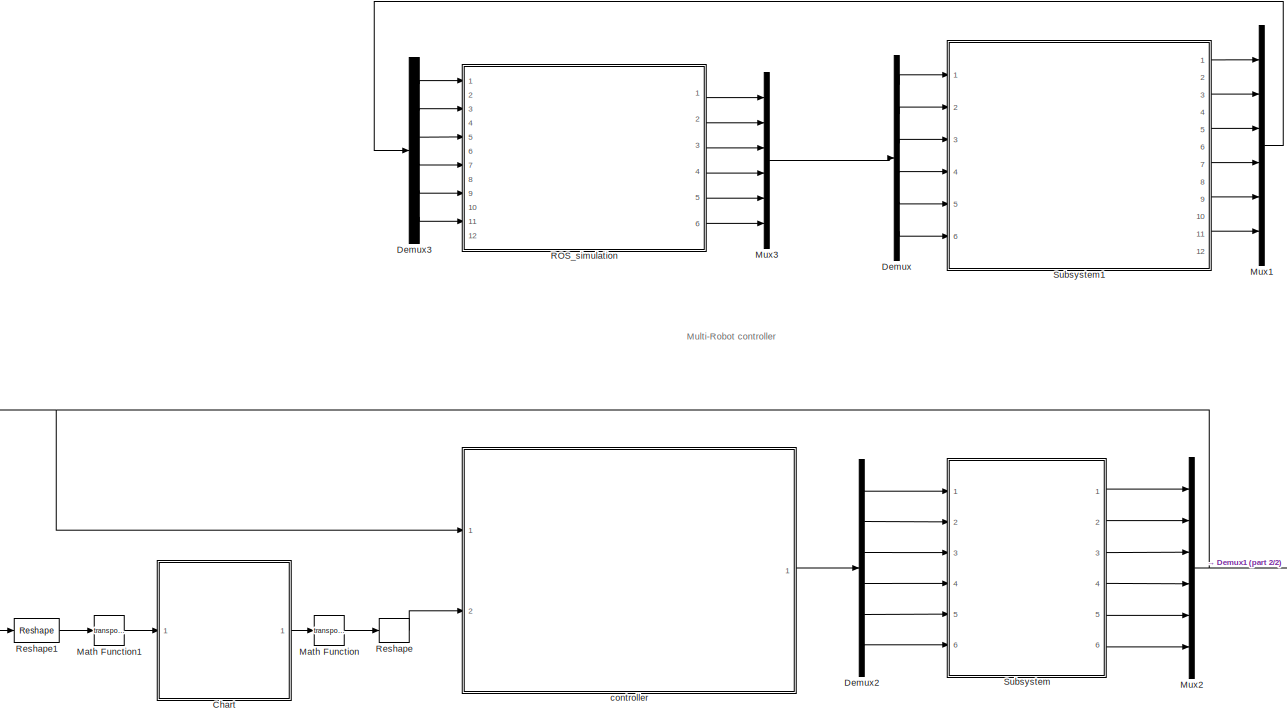
[diagram: root canvas - part 1/2, most of the canvas]
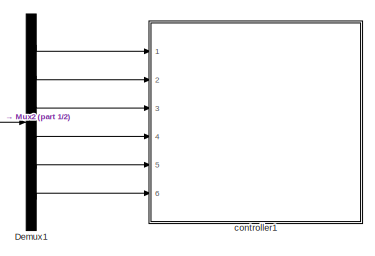
[diagram: root canvas - part 2/2, bottom right region]
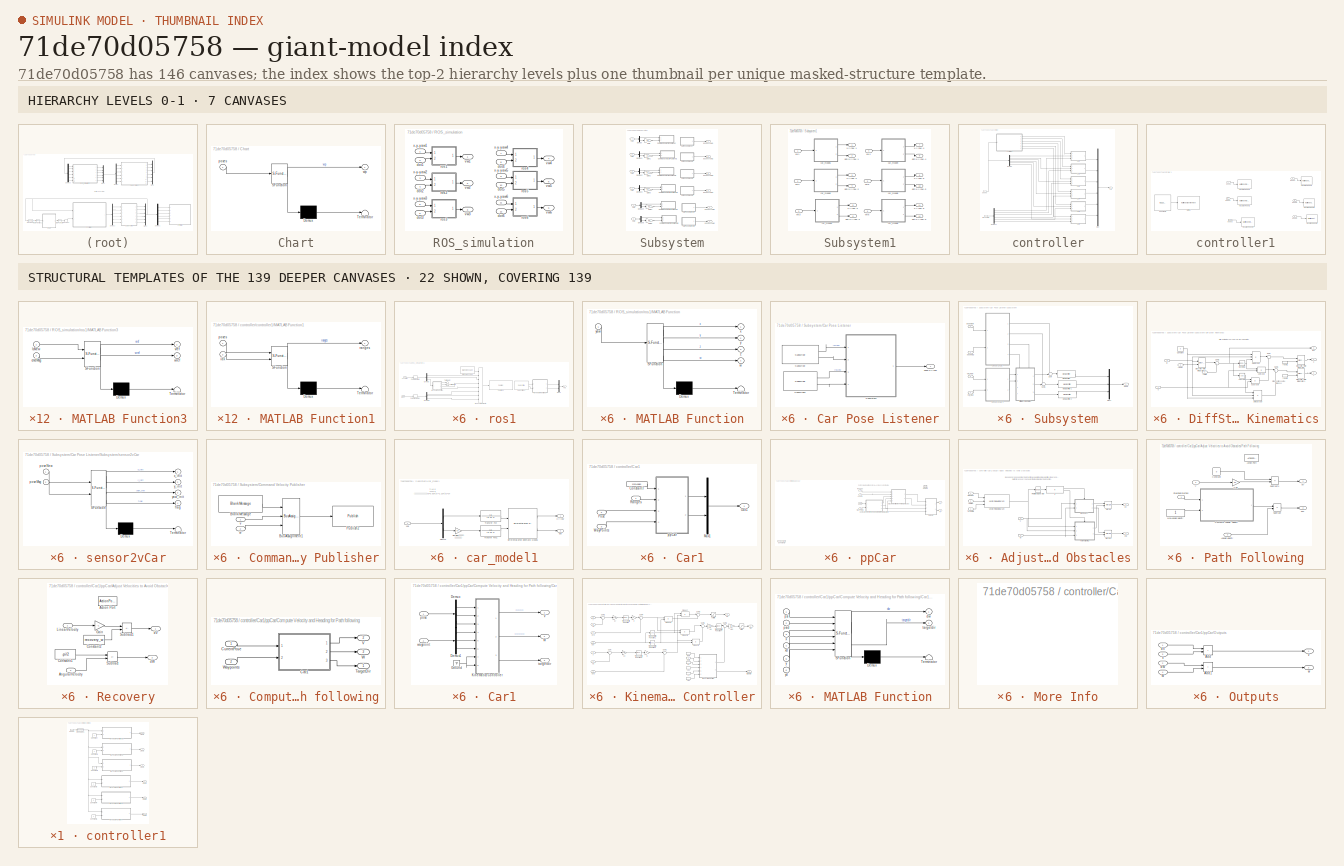
[diagram: thumbnail index - top-2 hierarchy levels (7 canvases) + 22 structural-template representatives of the remaining 139 canvases]
MODEL slx_71de70d05758
KIND model
CONFIG AbsTol = auto
CONFIG EnableMultiTasking = off
CONFIG FixedStep = sampleTime
CONFIG InitFcn = sampleTime = 0.05;\nnMedianSize=3;\n% Robot parameters\nwheelRadius = 0.0335;\nrobotRadius = 0.116/2;\n\n%角速度坐标\nks=1;\n\n% Lidar parameters\nsensorOffset = [0,0];\nscanAngles = -pi:pi/36:pi;\nmaxRange = 0.2;\n\n%车初始位置\ninit_pose_1=[1  1.3  pi/2]';\ninit_pose_2=[0.85 1  pi/2]';\ninit_pose_3=[1.15 1  pi/2]';\ninit_pose_4=[0.7  0.7 pi/2]';\ninit_pose_5=[1  0.7 pi/2]';\ninit_pose_6=[1.3 0.7  pi/2]';\n\n%pp算法性能参数\nVd_pp=0.2...<+176ch>
CONFIG MaxStep = auto
CONFIG MinStep = auto
CONFIG PreLoadFcn = % Simulation parameters\n%load exampleMap\n\n% Lidar parameters\nsensorOffset = [0,0];\nscanAngles = -pi/2:pi/6:pi/2;\nmaxRange = 0.3;
CONFIG RelTol = 1e-3
CONFIG SampleTimeConstraint = Unconstrained
CONFIG SolverName = FixedStepAuto
CONFIG StartTime = 0.0
CONFIG StopTime = inf
BLOCK [SubSystem] Chart
  ErrorFcn = Stateflow.Translate.translate
  PermitHierarchicalResolution = ExplicitOnly
  Ports = [1, 1]
  RequestExecContextInheritance = off
  SFBlockType = Chart
  TreatAsAtomicUnit = on
BLOCK [Demux] Chart/ Demux 
  Outputs = 1
  Ports = [1, 1]
BLOCK [S-Function] Chart/ SFunction 
  EnableBusSupport = on
  FunctionName = sf_sfun
  PortCounts = [1 2]
  Ports = [1, 2]
  SFcnIsStateOwnerBlock = off
  SFunctionDeploymentMode = off
  Tag = Stateflow S-Function 39
BLOCK [Terminator] Chart/ Terminator 
BLOCK [Inport] Chart/poses
BLOCK [Outport] Chart/wp
BLOCK [Demux] Demux
  Outputs = 6
  Ports = [1, 6]
BLOCK [Demux] Demux1
  Outputs = 6
  Ports = [1, 6]
BLOCK [Demux] Demux2
  Outputs = 6
  Ports = [1, 6]
BLOCK [Demux] Demux3
  Outputs = 6
  Ports = [1, 6]
BLOCK [Math] Math Function
  Operator = transpose
  Ports = [1, 1]
BLOCK [Math] Math Function1
  Operator = transpose
  Ports = [1, 1]
BLOCK [Mux] Mux1
  DisplayOption = bar
  Inputs = 6
  Ports = [6, 1]
BLOCK [Mux] Mux2
  DisplayOption = bar
  Inputs = 6
  Ports = [6, 1]
BLOCK [Mux] Mux3
  DisplayOption = bar
  Inputs = 6
  Ports = [6, 1]
BLOCK [SubSystem] ROS_simulation
  Ports = [12, 6]
  RequestExecContextInheritance = off
BLOCK [Inport] ROS_simulation/dot1
  Port = 2
BLOCK [Inport] ROS_simulation/dot2
  Port = 4
BLOCK [Inport] ROS_simulation/dot3
  Port = 6
BLOCK [Inport] ROS_simulation/dot4
  Port = 8
BLOCK [Inport] ROS_simulation/dot5
  Port = 10
BLOCK [Inport] ROS_simulation/dot6
  Port = 12
BLOCK [SubSystem] ROS_simulation/ros1
  Ports = [2, 1]
  RequestExecContextInheritance = off
BLOCK [Demux] ROS_simulation/ros1/ [x y theta]
  Outputs = 3
  Ports = [1, 3]
BLOCK [Demux] ROS_simulation/ros1/ [x y theta]1
  Outputs = 3
  Ports = [1, 3]
BLOCK [Reference] ROS_simulation/ros1/Blank Message  REF=robotlib/Blank Message
  Ports = [0, 1]
  SourceBlock = robotlib/Blank Message
  SourceProductBaseCode = RR
  SourceType = ROS Blank Message
BLOCK [BusAssignment] ROS_simulation/ros1/Bus Assignment1
  AssignedSignals = Pose.Pose.Position.X,Pose.Pose.Position.Y,Pose.Pose.Orientation.Z,Pose.Pose.Orientation.W,Twist.Twist.Linear.X,Twist.Twist.Linear.Y,Twist.Twist.Angular.Z
  DialogController = Simulink.DDGSource_BusAssignment
  Ports = [8, 1]
BLOCK [SubSystem] ROS_simulation/ros1/MATLAB Function
  ErrorFcn = Stateflow.Translate.translate
  PermitHierarchicalResolution = ExplicitOnly
  Ports = [1, 4]
  RequestExecContextInheritance = off
  SFBlockType = MATLAB Function
  TreatAsAtomicUnit = on
BLOCK [Demux] ROS_simulation/ros1/MATLAB Function/ Demux 
  Outputs = 1
  Ports = [1, 1]
BLOCK [S-Function] ROS_simulation/ros1/MATLAB Function/ SFunction 
  EnableBusSupport = on
  FunctionName = sf_sfun
  PortCounts = [1 5]
  Ports = [1, 5]
  SFcnIsStateOwnerBlock = off
  SFunctionDeploymentMode = off
  Tag = Stateflow S-Function 20
BLOCK [Terminator] ROS_simulation/ros1/MATLAB Function/ Terminator 
BLOCK [Outport] ROS_simulation/ros1/MATLAB Function/w
  Port = 4
BLOCK [Outport] ROS_simulation/ros1/MATLAB Function/x
BLOCK [Outport] ROS_simulation/ros1/MATLAB Function/y
  Port = 2
BLOCK [Inport] ROS_simulation/ros1/MATLAB Function/yaw
BLOCK [Outport] ROS_simulation/ros1/MATLAB Function/z
  Port = 3
BLOCK [SubSystem] ROS_simulation/ros1/MATLAB Function3
  ErrorFcn = Stateflow.Translate.translate
  PermitHierarchicalResolution = ExplicitOnly
  Ports = [2, 2]
  RequestExecContextInheritance = off
  SFBlockType = MATLAB Function
  TreatAsAtomicUnit = on
BLOCK [Demux] ROS_simulation/ros1/MATLAB Function3/ Demux 
  Outputs = 1
  Ports = [1, 1]
BLOCK [S-Function] ROS_simulation/ros1/MATLAB Function3/ SFunction 
  EnableBusSupport = on
  FunctionName = sf_sfun
  PortCounts = [2 3]
  Ports = [2, 3]
  SFcnIsStateOwnerBlock = off
  SFunctionDeploymentMode = off
  Tag = Stateflow S-Function 9
BLOCK [Terminator] ROS_simulation/ros1/MATLAB Function3/ Terminator 
BLOCK [Inport] ROS_simulation/ros1/MATLAB Function3/IsNew
BLOCK [Inport] ROS_simulation/ros1/MATLAB Function3/cmdMsg
  Port = 2
BLOCK [Outport] ROS_simulation/ros1/MATLAB Function3/vref
BLOCK [Outport] ROS_simulation/ros1/MATLAB Function3/wref
  Port = 2
BLOCK [Mux] ROS_simulation/ros1/Mux6
  DisplayOption = bar
  Inputs = 2
  Ports = [2, 1]
BLOCK [Reference] ROS_simulation/ros1/Publish2  REF=robotlib/Publish
  AttributesFormatString = %<messageType>
  Ports = [1]
  SourceBlock = robotlib/Publish
  SourceProductBaseCode = RR
  SourceType = ROS Publish
BLOCK [Reference] ROS_simulation/ros1/Subscribe1  REF=robotlib/Subscribe
  Ports = [0, 2]
  SourceBlock = robotlib/Subscribe
  SourceProductBaseCode = RR
  SourceType = ROS Subscribe
BLOCK [Terminator] ROS_simulation/ros1/Terminator
BLOCK [Terminator] ROS_simulation/ros1/Terminator1
BLOCK [ZeroOrderHold] ROS_simulation/ros1/Zero-Order Hold
  SampleTime = 0.1
BLOCK [ZeroOrderHold] ROS_simulation/ros1/Zero-Order Hold1
  SampleTime = 0.1
BLOCK [Inport] ROS_simulation/ros1/do1t
  Port = 2
BLOCK [Outport] ROS_simulation/ros1/vw1
BLOCK [Inport] ROS_simulation/ros1/x-y-yaw1
BLOCK [SubSystem] ROS_simulation/ros2
  Ports = [2, 1]
  RequestExecContextInheritance = off
BLOCK [Demux] ROS_simulation/ros2/ [x y theta]
  Outputs = 3
  Ports = [1, 3]
BLOCK [Demux] ROS_simulation/ros2/ [x y theta]1
  Outputs = 3
  Ports = [1, 3]
BLOCK [Reference] ROS_simulation/ros2/Blank Message  REF=robotlib/Blank Message
  Ports = [0, 1]
  SourceBlock = robotlib/Blank Message
  SourceProductBaseCode = RR
  SourceType = ROS Blank Message
BLOCK [BusAssignment] ROS_simulation/ros2/Bus Assignment1
  AssignedSignals = Pose.Pose.Position.X,Pose.Pose.Position.Y,Pose.Pose.Orientation.Z,Pose.Pose.Orientation.W,Twist.Twist.Linear.X,Twist.Twist.Linear.Y,Twist.Twist.Angular.Z
  DialogController = Simulink.DDGSource_BusAssignment
  Ports = [8, 1]
BLOCK [SubSystem] ROS_simulation/ros2/MATLAB Function
  ErrorFcn = Stateflow.Translate.translate
  PermitHierarchicalResolution = ExplicitOnly
  Ports = [1, 4]
  RequestExecContextInheritance = off
  SFBlockType = MATLAB Function
  TreatAsAtomicUnit = on
BLOCK [Demux] ROS_simulation/ros2/MATLAB Function/ Demux 
  Outputs = 1
  Ports = [1, 1]
BLOCK [S-Function] ROS_simulation/ros2/MATLAB Function/ SFunction 
  EnableBusSupport = on
  FunctionName = sf_sfun
  PortCounts = [1 5]
  Ports = [1, 5]
  SFcnIsStateOwnerBlock = off
  SFunctionDeploymentMode = off
  Tag = Stateflow S-Function 21
BLOCK [Terminator] ROS_simulation/ros2/MATLAB Function/ Terminator 
BLOCK [Outport] ROS_simulation/ros2/MATLAB Function/w
  Port = 4
BLOCK [Outport] ROS_simulation/ros2/MATLAB Function/x
BLOCK [Outport] ROS_simulation/ros2/MATLAB Function/y
  Port = 2
BLOCK [Inport] ROS_simulation/ros2/MATLAB Function/yaw
BLOCK [Outport] ROS_simulation/ros2/MATLAB Function/z
  Port = 3
BLOCK [SubSystem] ROS_simulation/ros2/MATLAB Function3
  ErrorFcn = Stateflow.Translate.translate
  PermitHierarchicalResolution = ExplicitOnly
  Ports = [2, 2]
  RequestExecContextInheritance = off
  SFBlockType = MATLAB Function
  TreatAsAtomicUnit = on
BLOCK [Demux] ROS_simulation/ros2/MATLAB Function3/ Demux 
  Outputs = 1
  Ports = [1, 1]
BLOCK [S-Function] ROS_simulation/ros2/MATLAB Function3/ SFunction 
  EnableBusSupport = on
  FunctionName = sf_sfun
  PortCounts = [2 3]
  Ports = [2, 3]
  SFcnIsStateOwnerBlock = off
  SFunctionDeploymentMode = off
  Tag = Stateflow S-Function 14
BLOCK [Terminator] ROS_simulation/ros2/MATLAB Function3/ Terminator 
BLOCK [Inport] ROS_simulation/ros2/MATLAB Function3/IsNew
BLOCK [Inport] ROS_simulation/ros2/MATLAB Function3/cmdMsg
  Port = 2
BLOCK [Outport] ROS_simulation/ros2/MATLAB Function3/vref
BLOCK [Outport] ROS_simulation/ros2/MATLAB Function3/wref
  Port = 2
BLOCK [Mux] ROS_simulation/ros2/Mux6
  DisplayOption = bar
  Inputs = 2
  Ports = [2, 1]
BLOCK [Reference] ROS_simulation/ros2/Publish2  REF=robotlib/Publish
  AttributesFormatString = %<messageType>
  Ports = [1]
  SourceBlock = robotlib/Publish
  SourceProductBaseCode = RR
  SourceType = ROS Publish
BLOCK [Reference] ROS_simulation/ros2/Subscribe1  REF=robotlib/Subscribe
  Ports = [0, 2]
  SourceBlock = robotlib/Subscribe
  SourceProductBaseCode = RR
  SourceType = ROS Subscribe
BLOCK [Terminator] ROS_simulation/ros2/Terminator
BLOCK [Terminator] ROS_simulation/ros2/Terminator1
BLOCK [ZeroOrderHold] ROS_simulation/ros2/Zero-Order Hold
  SampleTime = 0.1
BLOCK [ZeroOrderHold] ROS_simulation/ros2/Zero-Order Hold1
  SampleTime = 0.1
BLOCK [Inport] ROS_simulation/ros2/dot
  Port = 2
BLOCK [Outport] ROS_simulation/ros2/vw1
BLOCK [Inport] ROS_simulation/ros2/x-y-yaw1
BLOCK [SubSystem] ROS_simulation/ros3
  Ports = [2, 1]
  RequestExecContextInheritance = off
BLOCK [Demux] ROS_simulation/ros3/ [x y theta]
  Outputs = 3
  Ports = [1, 3]
BLOCK [Demux] ROS_simulation/ros3/ [x y theta]1
  Outputs = 3
  Ports = [1, 3]
BLOCK [Reference] ROS_simulation/ros3/Blank Message  REF=robotlib/Blank Message
  Ports = [0, 1]
  SourceBlock = robotlib/Blank Message
  SourceProductBaseCode = RR
  SourceType = ROS Blank Message
BLOCK [BusAssignment] ROS_simulation/ros3/Bus Assignment1
  AssignedSignals = Pose.Pose.Position.X,Pose.Pose.Position.Y,Pose.Pose.Orientation.Z,Pose.Pose.Orientation.W,Twist.Twist.Linear.X,Twist.Twist.Linear.Y,Twist.Twist.Angular.Z
  DialogController = Simulink.DDGSource_BusAssignment
  Ports = [8, 1]
BLOCK [SubSystem] ROS_simulation/ros3/MATLAB Function
  ErrorFcn = Stateflow.Translate.translate
  PermitHierarchicalResolution = ExplicitOnly
  Ports = [1, 4]
  RequestExecContextInheritance = off
  SFBlockType = MATLAB Function
  TreatAsAtomicUnit = on
BLOCK [Demux] ROS_simulation/ros3/MATLAB Function/ Demux 
  Outputs = 1
  Ports = [1, 1]
BLOCK [S-Function] ROS_simulation/ros3/MATLAB Function/ SFunction 
  EnableBusSupport = on
  FunctionName = sf_sfun
  PortCounts = [1 5]
  Ports = [1, 5]
  SFcnIsStateOwnerBlock = off
  SFunctionDeploymentMode = off
  Tag = Stateflow S-Function 22
BLOCK [Terminator] ROS_simulation/ros3/MATLAB Function/ Terminator 
BLOCK [Outport] ROS_simulation/ros3/MATLAB Function/w
  Port = 4
BLOCK [Outport] ROS_simulation/ros3/MATLAB Function/x
BLOCK [Outport] ROS_simulation/ros3/MATLAB Function/y
  Port = 2
BLOCK [Inport] ROS_simulation/ros3/MATLAB Function/yaw
BLOCK [Outport] ROS_simulation/ros3/MATLAB Function/z
  Port = 3
BLOCK [SubSystem] ROS_simulation/ros3/MATLAB Function3
  ErrorFcn = Stateflow.Translate.translate
  PermitHierarchicalResolution = ExplicitOnly
  Ports = [2, 2]
  RequestExecContextInheritance = off
  SFBlockType = MATLAB Function
  TreatAsAtomicUnit = on
BLOCK [Demux] ROS_simulation/ros3/MATLAB Function3/ Demux 
  Outputs = 1
  Ports = [1, 1]
BLOCK [S-Function] ROS_simulation/ros3/MATLAB Function3/ SFunction 
  EnableBusSupport = on
  FunctionName = sf_sfun
  PortCounts = [2 3]
  Ports = [2, 3]
  SFcnIsStateOwnerBlock = off
  SFunctionDeploymentMode = off
  Tag = Stateflow S-Function 15
BLOCK [Terminator] ROS_simulation/ros3/MATLAB Function3/ Terminator 
BLOCK [Inport] ROS_simulation/ros3/MATLAB Function3/IsNew
BLOCK [Inport] ROS_simulation/ros3/MATLAB Function3/cmdMsg
  Port = 2
BLOCK [Outport] ROS_simulation/ros3/MATLAB Function3/vref
BLOCK [Outport] ROS_simulation/ros3/MATLAB Function3/wref
  Port = 2
BLOCK [Mux] ROS_simulation/ros3/Mux6
  DisplayOption = bar
  Inputs = 2
  Ports = [2, 1]
BLOCK [Reference] ROS_simulation/ros3/Publish2  REF=robotlib/Publish
  AttributesFormatString = %<messageType>
  Ports = [1]
  SourceBlock = robotlib/Publish
  SourceProductBaseCode = RR
  SourceType = ROS Publish
BLOCK [Reference] ROS_simulation/ros3/Subscribe1  REF=robotlib/Subscribe
  Ports = [0, 2]
  SourceBlock = robotlib/Subscribe
  SourceProductBaseCode = RR
  SourceType = ROS Subscribe
BLOCK [Terminator] ROS_simulation/ros3/Terminator
BLOCK [Terminator] ROS_simulation/ros3/Terminator1
BLOCK [ZeroOrderHold] ROS_simulation/ros3/Zero-Order Hold
  SampleTime = 0.1
BLOCK [ZeroOrderHold] ROS_simulation/ros3/Zero-Order Hold1
  SampleTime = 0.1
BLOCK [Inport] ROS_simulation/ros3/do1t
  Port = 2
BLOCK [Outport] ROS_simulation/ros3/vw1
BLOCK [Inport] ROS_simulation/ros3/x-y-yaw1
BLOCK [SubSystem] ROS_simulation/ros4
  Ports = [2, 1]
  RequestExecContextInheritance = off
BLOCK [Demux] ROS_simulation/ros4/ [x y theta]
  Outputs = 3
  Ports = [1, 3]
BLOCK [Demux] ROS_simulation/ros4/ [x y theta]1
  Outputs = 3
  Ports = [1, 3]
BLOCK [Reference] ROS_simulation/ros4/Blank Message  REF=robotlib/Blank Message
  Ports = [0, 1]
  SourceBlock = robotlib/Blank Message
  SourceProductBaseCode = RR
  SourceType = ROS Blank Message
BLOCK [BusAssignment] ROS_simulation/ros4/Bus Assignment1
  AssignedSignals = Pose.Pose.Position.X,Pose.Pose.Position.Y,Pose.Pose.Orientation.Z,Pose.Pose.Orientation.W,Twist.Twist.Linear.X,Twist.Twist.Linear.Y,Twist.Twist.Angular.Z
  DialogController = Simulink.DDGSource_BusAssignment
  Ports = [8, 1]
BLOCK [SubSystem] ROS_simulation/ros4/MATLAB Function
  ErrorFcn = Stateflow.Translate.translate
  PermitHierarchicalResolution = ExplicitOnly
  Ports = [1, 4]
  RequestExecContextInheritance = off
  SFBlockType = MATLAB Function
  TreatAsAtomicUnit = on
BLOCK [Demux] ROS_simulation/ros4/MATLAB Function/ Demux 
  Outputs = 1
  Ports = [1, 1]
BLOCK [S-Function] ROS_simulation/ros4/MATLAB Function/ SFunction 
  EnableBusSupport = on
  FunctionName = sf_sfun
  PortCounts = [1 5]
  Ports = [1, 5]
  SFcnIsStateOwnerBlock = off
  SFunctionDeploymentMode = off
  Tag = Stateflow S-Function 23
BLOCK [Terminator] ROS_simulation/ros4/MATLAB Function/ Terminator 
BLOCK [Outport] ROS_simulation/ros4/MATLAB Function/w
  Port = 4
BLOCK [Outport] ROS_simulation/ros4/MATLAB Function/x
BLOCK [Outport] ROS_simulation/ros4/MATLAB Function/y
  Port = 2
BLOCK [Inport] ROS_simulation/ros4/MATLAB Function/yaw
BLOCK [Outport] ROS_simulation/ros4/MATLAB Function/z
  Port = 3
BLOCK [SubSystem] ROS_simulation/ros4/MATLAB Function3
  ErrorFcn = Stateflow.Translate.translate
  PermitHierarchicalResolution = ExplicitOnly
  Ports = [2, 2]
  RequestExecContextInheritance = off
  SFBlockType = MATLAB Function
  TreatAsAtomicUnit = on
BLOCK [Demux] ROS_simulation/ros4/MATLAB Function3/ Demux 
  Outputs = 1
  Ports = [1, 1]
BLOCK [S-Function] ROS_simulation/ros4/MATLAB Function3/ SFunction 
  EnableBusSupport = on
  FunctionName = sf_sfun
  PortCounts = [2 3]
  Ports = [2, 3]
  SFcnIsStateOwnerBlock = off
  SFunctionDeploymentMode = off
  Tag = Stateflow S-Function 16
BLOCK [Terminator] ROS_simulation/ros4/MATLAB Function3/ Terminator 
BLOCK [Inport] ROS_simulation/ros4/MATLAB Function3/IsNew
BLOCK [Inport] ROS_simulation/ros4/MATLAB Function3/cmdMsg
  Port = 2
BLOCK [Outport] ROS_simulation/ros4/MATLAB Function3/vref
BLOCK [Outport] ROS_simulation/ros4/MATLAB Function3/wref
  Port = 2
BLOCK [Mux] ROS_simulation/ros4/Mux6
  DisplayOption = bar
  Inputs = 2
  Ports = [2, 1]
BLOCK [Reference] ROS_simulation/ros4/Publish2  REF=robotlib/Publish
  AttributesFormatString = %<messageType>
  Ports = [1]
  SourceBlock = robotlib/Publish
  SourceProductBaseCode = RR
  SourceType = ROS Publish
BLOCK [Reference] ROS_simulation/ros4/Subscribe1  REF=robotlib/Subscribe
  Ports = [0, 2]
  SourceBlock = robotlib/Subscribe
  SourceProductBaseCode = RR
  SourceType = ROS Subscribe
BLOCK [Terminator] ROS_simulation/ros4/Terminator
BLOCK [Terminator] ROS_simulation/ros4/Terminator1
BLOCK [ZeroOrderHold] ROS_simulation/ros4/Zero-Order Hold
  SampleTime = 0.1
BLOCK [ZeroOrderHold] ROS_simulation/ros4/Zero-Order Hold1
  SampleTime = 0.1
BLOCK [Inport] ROS_simulation/ros4/do1t
  Port = 2
BLOCK [Outport] ROS_simulation/ros4/vw1
BLOCK [Inport] ROS_simulation/ros4/x-y-yaw1
BLOCK [SubSystem] ROS_simulation/ros5
  Ports = [2, 1]
  RequestExecContextInheritance = off
BLOCK [Demux] ROS_simulation/ros5/ [x y theta]
  Outputs = 3
  Ports = [1, 3]
BLOCK [Demux] ROS_simulation/ros5/ [x y theta]1
  Outputs = 3
  Ports = [1, 3]
BLOCK [Reference] ROS_simulation/ros5/Blank Message  REF=robotlib/Blank Message
  Ports = [0, 1]
  SourceBlock = robotlib/Blank Message
  SourceProductBaseCode = RR
  SourceType = ROS Blank Message
BLOCK [BusAssignment] ROS_simulation/ros5/Bus Assignment1
  AssignedSignals = Pose.Pose.Position.X,Pose.Pose.Position.Y,Pose.Pose.Orientation.Z,Pose.Pose.Orientation.W,Twist.Twist.Linear.X,Twist.Twist.Linear.Y,Twist.Twist.Angular.Z
  DialogController = Simulink.DDGSource_BusAssignment
  Ports = [8, 1]
BLOCK [SubSystem] ROS_simulation/ros5/MATLAB Function
  ErrorFcn = Stateflow.Translate.translate
  PermitHierarchicalResolution = ExplicitOnly
  Ports = [1, 4]
  RequestExecContextInheritance = off
  SFBlockType = MATLAB Function
  TreatAsAtomicUnit = on
BLOCK [Demux] ROS_simulation/ros5/MATLAB Function/ Demux 
  Outputs = 1
  Ports = [1, 1]
BLOCK [S-Function] ROS_simulation/ros5/MATLAB Function/ SFunction 
  EnableBusSupport = on
  FunctionName = sf_sfun
  PortCounts = [1 5]
  Ports = [1, 5]
  SFcnIsStateOwnerBlock = off
  SFunctionDeploymentMode = off
  Tag = Stateflow S-Function 24
BLOCK [Terminator] ROS_simulation/ros5/MATLAB Function/ Terminator 
BLOCK [Outport] ROS_simulation/ros5/MATLAB Function/w
  Port = 4
BLOCK [Outport] ROS_simulation/ros5/MATLAB Function/x
BLOCK [Outport] ROS_simulation/ros5/MATLAB Function/y
  Port = 2
BLOCK [Inport] ROS_simulation/ros5/MATLAB Function/yaw
BLOCK [Outport] ROS_simulation/ros5/MATLAB Function/z
  Port = 3
BLOCK [SubSystem] ROS_simulation/ros5/MATLAB Function3
  ErrorFcn = Stateflow.Translate.translate
  PermitHierarchicalResolution = ExplicitOnly
  Ports = [2, 2]
  RequestExecContextInheritance = off
  SFBlockType = MATLAB Function
  TreatAsAtomicUnit = on
BLOCK [Demux] ROS_simulation/ros5/MATLAB Function3/ Demux 
  Outputs = 1
  Ports = [1, 1]
BLOCK [S-Function] ROS_simulation/ros5/MATLAB Function3/ SFunction 
  EnableBusSupport = on
  FunctionName = sf_sfun
  PortCounts = [2 3]
  Ports = [2, 3]
  SFcnIsStateOwnerBlock = off
  SFunctionDeploymentMode = off
  Tag = Stateflow S-Function 26
BLOCK [Terminator] ROS_simulation/ros5/MATLAB Function3/ Terminator 
BLOCK [Inport] ROS_simulation/ros5/MATLAB Function3/IsNew
BLOCK [Inport] ROS_simulation/ros5/MATLAB Function3/cmdMsg
  Port = 2
BLOCK [Outport] ROS_simulation/ros5/MATLAB Function3/vref
BLOCK [Outport] ROS_simulation/ros5/MATLAB Function3/wref
  Port = 2
BLOCK [Mux] ROS_simulation/ros5/Mux6
  DisplayOption = bar
  Inputs = 2
  Ports = [2, 1]
BLOCK [Reference] ROS_simulation/ros5/Publish2  REF=robotlib/Publish
  AttributesFormatString = %<messageType>
  Ports = [1]
  SourceBlock = robotlib/Publish
  SourceProductBaseCode = RR
  SourceType = ROS Publish
BLOCK [Reference] ROS_simulation/ros5/Subscribe1  REF=robotlib/Subscribe
  Ports = [0, 2]
  SourceBlock = robotlib/Subscribe
  SourceProductBaseCode = RR
  SourceType = ROS Subscribe
BLOCK [Terminator] ROS_simulation/ros5/Terminator
BLOCK [Terminator] ROS_simulation/ros5/Terminator1
BLOCK [ZeroOrderHold] ROS_simulation/ros5/Zero-Order Hold
  SampleTime = 0.1
BLOCK [ZeroOrderHold] ROS_simulation/ros5/Zero-Order Hold1
  SampleTime = 0.1
BLOCK [Inport] ROS_simulation/ros5/do1t
  Port = 2
BLOCK [Outport] ROS_simulation/ros5/vw1
BLOCK [Inport] ROS_simulation/ros5/x-y-yaw1
BLOCK [SubSystem] ROS_simulation/ros6
  Ports = [2, 1]
  RequestExecContextInheritance = off
BLOCK [Demux] ROS_simulation/ros6/ [x y theta]
  Outputs = 3
  Ports = [1, 3]
BLOCK [Demux] ROS_simulation/ros6/ [x y theta]1
  Outputs = 3
  Ports = [1, 3]
BLOCK [Reference] ROS_simulation/ros6/Blank Message  REF=robotlib/Blank Message
  Ports = [0, 1]
  SourceBlock = robotlib/Blank Message
  SourceProductBaseCode = RR
  SourceType = ROS Blank Message
BLOCK [BusAssignment] ROS_simulation/ros6/Bus Assignment1
  AssignedSignals = Pose.Pose.Position.X,Pose.Pose.Position.Y,Pose.Pose.Orientation.Z,Pose.Pose.Orientation.W,Twist.Twist.Linear.X,Twist.Twist.Linear.Y,Twist.Twist.Angular.Z
  DialogController = Simulink.DDGSource_BusAssignment
  Ports = [8, 1]
BLOCK [SubSystem] ROS_simulation/ros6/MATLAB Function
  ErrorFcn = Stateflow.Translate.translate
  PermitHierarchicalResolution = ExplicitOnly
  Ports = [1, 4]
  RequestExecContextInheritance = off
  SFBlockType = MATLAB Function
  TreatAsAtomicUnit = on
BLOCK [Demux] ROS_simulation/ros6/MATLAB Function/ Demux 
  Outputs = 1
  Ports = [1, 1]
BLOCK [S-Function] ROS_simulation/ros6/MATLAB Function/ SFunction 
  EnableBusSupport = on
  FunctionName = sf_sfun
  PortCounts = [1 5]
  Ports = [1, 5]
  SFcnIsStateOwnerBlock = off
  SFunctionDeploymentMode = off
  Tag = Stateflow S-Function 25
BLOCK [Terminator] ROS_simulation/ros6/MATLAB Function/ Terminator 
BLOCK [Outport] ROS_simulation/ros6/MATLAB Function/w
  Port = 4
BLOCK [Outport] ROS_simulation/ros6/MATLAB Function/x
BLOCK [Outport] ROS_simulation/ros6/MATLAB Function/y
  Port = 2
BLOCK [Inport] ROS_simulation/ros6/MATLAB Function/yaw
BLOCK [Outport] ROS_simulation/ros6/MATLAB Function/z
  Port = 3
BLOCK [SubSystem] ROS_simulation/ros6/MATLAB Function3
  ErrorFcn = Stateflow.Translate.translate
  PermitHierarchicalResolution = ExplicitOnly
  Ports = [2, 2]
  RequestExecContextInheritance = off
  SFBlockType = MATLAB Function
  TreatAsAtomicUnit = on
BLOCK [Demux] ROS_simulation/ros6/MATLAB Function3/ Demux 
  Outputs = 1
  Ports = [1, 1]
BLOCK [S-Function] ROS_simulation/ros6/MATLAB Function3/ SFunction 
  EnableBusSupport = on
  FunctionName = sf_sfun
  PortCounts = [2 3]
  Ports = [2, 3]
  SFcnIsStateOwnerBlock = off
  SFunctionDeploymentMode = off
  Tag = Stateflow S-Function 27
BLOCK [Terminator] ROS_simulation/ros6/MATLAB Function3/ Terminator 
BLOCK [Inport] ROS_simulation/ros6/MATLAB Function3/IsNew
BLOCK [Inport] ROS_simulation/ros6/MATLAB Function3/cmdMsg
  Port = 2
BLOCK [Outport] ROS_simulation/ros6/MATLAB Function3/vref
BLOCK [Outport] ROS_simulation/ros6/MATLAB Function3/wref
  Port = 2
BLOCK [Mux] ROS_simulation/ros6/Mux6
  DisplayOption = bar
  Inputs = 2
  Ports = [2, 1]
BLOCK [Reference] ROS_simulation/ros6/Publish2  REF=robotlib/Publish
  AttributesFormatString = %<messageType>
  Ports = [1]
  SourceBlock = robotlib/Publish
  SourceProductBaseCode = RR
  SourceType = ROS Publish
BLOCK [Reference] ROS_simulation/ros6/Subscribe1  REF=robotlib/Subscribe
  Ports = [0, 2]
  SourceBlock = robotlib/Subscribe
  SourceProductBaseCode = RR
  SourceType = ROS Subscribe
BLOCK [Terminator] ROS_simulation/ros6/Terminator
BLOCK [Terminator] ROS_simulation/ros6/Terminator1
BLOCK [ZeroOrderHold] ROS_simulation/ros6/Zero-Order Hold
  SampleTime = 0.1
BLOCK [ZeroOrderHold] ROS_simulation/ros6/Zero-Order Hold1
  SampleTime = 0.1
BLOCK [Inport] ROS_simulation/ros6/do1t
  Port = 2
BLOCK [Outport] ROS_simulation/ros6/vw1
BLOCK [Inport] ROS_simulation/ros6/x-y-yaw1
BLOCK [Outport] ROS_simulation/vw1
BLOCK [Outport] ROS_simulation/vw2
  Port = 2
BLOCK [Outport] ROS_simulation/vw3
  Port = 3
BLOCK [Outport] ROS_simulation/vw4
  Port = 4
BLOCK [Outport] ROS_simulation/vw5
  Port = 5
BLOCK [Outport] ROS_simulation/vw6
  Port = 6
BLOCK [Inport] ROS_simulation/x-y-yaw1
BLOCK [Inport] ROS_simulation/x-y-yaw2
  Port = 3
BLOCK [Inport] ROS_simulation/x-y-yaw3
  Port = 5
BLOCK [Inport] ROS_simulation/x-y-yaw4
  Port = 7
BLOCK [Inport] ROS_simulation/x-y-yaw5
  Port = 9
BLOCK [Inport] ROS_simulation/x-y-yaw6
  Port = 11
BLOCK [Reshape] Reshape
  Ports = [1, 1]
BLOCK [Reshape] Reshape1
  OutputDimensionality = Customize
  OutputDimensions = [3,6]
  Ports = [1, 1]
BLOCK [SubSystem] Subsystem
  Ports = [6, 6]
  RequestExecContextInheritance = off
BLOCK [SubSystem] Subsystem/Car Pose Listener
  Ports = [0, 1]
  RequestExecContextInheritance = off
BLOCK [Reference] Subsystem/Car Pose Listener/Subscribe  REF=robotlib/Subscribe
  Ports = [0, 2]
  SourceBlock = robotlib/Subscribe
  SourceProductBaseCode = RR
  SourceType = ROS Subscribe
BLOCK [Reference] Subsystem/Car Pose Listener/Subscribe1  REF=robotlib/Subscribe
  Ports = [0, 2]
  SourceBlock = robotlib/Subscribe
  SourceProductBaseCode = RR
  SourceType = ROS Subscribe
BLOCK [SubSystem] Subsystem/Car Pose Listener/Subsystem
  Ports = [4, 1]
  RequestExecContextInheritance = off
BLOCK [SubSystem] Subsystem/Car Pose Listener/Subsystem/DiffSteer Kinematics
  PortSchema = {"entries":[{"content":{"sides":[{"content":{"connectorIds":["In1","In2"]},"type":"ConnectorPlacement.EquallySpacedRectSide","uuid":"0032ed68-1de4-4b1c-b237-9372fedc8a7a"},{"content":{"connectorIds":["Out1","Out2","Out3"],"side":"RIGHT"},"type":"ConnectorPlacement.EquallySpacedRectSide","uuid":"d0c861bd-7497-47fe-b183-36da470ee2c6"},{"content":{"connectorIds":["In3","In4"],"side":"TOP"},"type":"Co...<+271ch>  <repeated x6 — deduplicated; at blocks: DiffSteer Kinematics>
  Ports = [4, 3]
  RequestExecContextInheritance = off
BLOCK [Constant] Subsystem/Car Pose Listener/Subsystem/DiffSteer Kinematics/Constant
  Value = 0
BLOCK [DiscreteIntegrator] Subsystem/Car Pose Listener/Subsystem/DiffSteer Kinematics/Discrete-Time Integrator
  ExternalReset = falling
  ICPrevOutput = DiscIntNeverNeededParam
  ICPrevScaledInput = DiscIntNeverNeededParam
  InitialConditionSetting = Auto
  Ports = [2, 1]
  SampleTime = -1
BLOCK [DiscreteIntegrator] Subsystem/Car Pose Listener/Subsystem/DiffSteer Kinematics/Discrete-Time Integrator1
  ExternalReset = falling
  ICPrevOutput = DiscIntNeverNeededParam
  ICPrevScaledInput = DiscIntNeverNeededParam
  InitialConditionSetting = Auto
  Ports = [2, 1]
  SampleTime = -1
BLOCK [DiscreteIntegrator] Subsystem/Car Pose Listener/Subsystem/DiffSteer Kinematics/Discrete-Time Integrator2
  ExternalReset = falling
  ICPrevOutput = DiscIntNeverNeededParam
  ICPrevScaledInput = DiscIntNeverNeededParam
  InitialConditionSetting = Auto
  IntegratorMethod = Integration: Backward Euler
  Ports = [2, 1]
  SampleTime = -1
BLOCK [Sum] Subsystem/Car Pose Listener/Subsystem/DiffSteer Kinematics/Sum
  Inputs = |-+
  Ports = [2, 1]
  SaturateOnIntegerOverflow = on
BLOCK [Sum] Subsystem/Car Pose Listener/Subsystem/DiffSteer Kinematics/Sum1
  Inputs = |++
  Ports = [2, 1]
  SaturateOnIntegerOverflow = on
BLOCK [Sum] Subsystem/Car Pose Listener/Subsystem/DiffSteer Kinematics/Sum2
  Inputs = |++
  Ports = [2, 1]
BLOCK [Product] Subsystem/Car Pose Listener/Subsystem/DiffSteer Kinematics/a w cos(psi)
  Inputs = 3
  OutDataTypeStr = Inherit: Same as first input
  Ports = [3, 1]
  SaturateOnIntegerOverflow = on
BLOCK [Product] Subsystem/Car Pose Listener/Subsystem/DiffSteer Kinematics/a w sin(psi)
  Inputs = 3
  OutDataTypeStr = Inherit: Same as first input
  Ports = [3, 1]
  SaturateOnIntegerOverflow = on
BLOCK [Trigonometry] Subsystem/Car Pose Listener/Subsystem/DiffSteer Kinematics/cos(psi)
  Operator = cos
  Ports = [1, 1]
BLOCK [Outport] Subsystem/Car Pose Listener/Subsystem/DiffSteer Kinematics/psi
  Port = 3
BLOCK [Inport] Subsystem/Car Pose Listener/Subsystem/DiffSteer Kinematics/reset
  Port = 3
BLOCK [InportShadow] Subsystem/Car Pose Listener/Subsystem/DiffSteer Kinematics/reset1
  Port = 3
BLOCK [InportShadow] Subsystem/Car Pose Listener/Subsystem/DiffSteer Kinematics/reset2
  Port = 3
BLOCK [Trigonometry] Subsystem/Car Pose Listener/Subsystem/DiffSteer Kinematics/sin(theta)
  Ports = [1, 1]
BLOCK [Inport] Subsystem/Car Pose Listener/Subsystem/DiffSteer Kinematics/u
BLOCK [Product] Subsystem/Car Pose Listener/Subsystem/DiffSteer Kinematics/u cos(psi)
  OutDataTypeStr = Inherit: Same as first input
  Ports = [2, 1]
  SaturateOnIntegerOverflow = on
BLOCK [Product] Subsystem/Car Pose Listener/Subsystem/DiffSteer Kinematics/u sin(psi)
  OutDataTypeStr = Inherit: Same as first input
  Ports = [2, 1]
  SaturateOnIntegerOverflow = on
BLOCK [Inport] Subsystem/Car Pose Listener/Subsystem/DiffSteer Kinematics/w
  Port = 2
BLOCK [Outport] Subsystem/Car Pose Listener/Subsystem/DiffSteer Kinematics/x
BLOCK [Outport] Subsystem/Car Pose Listener/Subsystem/DiffSteer Kinematics/y
  Port = 2
BLOCK [Inport] Subsystem/Car Pose Listener/Subsystem/DiffSteer Kinematics/yaw0
  Port = 4
BLOCK [Reference] Subsystem/Car Pose Listener/Subsystem/Median Filter  REF=dspstat3/Median
Filter
  Ports = [1, 1]
  SourceBlock = dspstat3/Median\nFilter
  SourceProductBaseCode = DS
  SourceType = dsp.MedianFilter
BLOCK [Reference] Subsystem/Car Pose Listener/Subsystem/Median Filter1  REF=dspstat3/Median
Filter
  Ports = [1, 1]
  SourceBlock = dspstat3/Median\nFilter
  SourceProductBaseCode = DS
  SourceType = dsp.MedianFilter
BLOCK [Reference] Subsystem/Car Pose Listener/Subsystem/Median Filter2  REF=dspstat3/Median
Filter
  Ports = [1, 1]
  SourceBlock = dspstat3/Median\nFilter
  SourceProductBaseCode = DS
  SourceType = dsp.MedianFilter
BLOCK [Mux] Subsystem/Car Pose Listener/Subsystem/Mux7
  DisplayOption = bar
  Inputs = 3
  Ports = [3, 1]
BLOCK [Sum] Subsystem/Car Pose Listener/Subsystem/Sum
  Inputs = ++|
  Ports = [2, 1]
BLOCK [Sum] Subsystem/Car Pose Listener/Subsystem/Sum1
  Inputs = ++|
  Ports = [2, 1]
BLOCK [Inport] Subsystem/Car Pose Listener/Subsystem/VW_Msg
  Port = 4
BLOCK [Inport] Subsystem/Car Pose Listener/Subsystem/VW_New
  Port = 3
BLOCK [Outport] Subsystem/Car Pose Listener/Subsystem/pose
BLOCK [Inport] Subsystem/Car Pose Listener/Subsystem/poseMsg
  Port = 2
BLOCK [Inport] Subsystem/Car Pose Listener/Subsystem/poseNew
BLOCK [SubSystem] Subsystem/Car Pose Listener/Subsystem/sensor2vCar
  ErrorFcn = Stateflow.Translate.translate
  PermitHierarchicalResolution = ExplicitOnly
  Ports = [2, 4]
  RequestExecContextInheritance = off
  SFBlockType = MATLAB Function
  TreatAsAtomicUnit = on
BLOCK [Demux] Subsystem/Car Pose Listener/Subsystem/sensor2vCar/ Demux 
  Outputs = 1
  Ports = [1, 1]
BLOCK [S-Function] Subsystem/Car Pose Listener/Subsystem/sensor2vCar/ SFunction 
  EnableBusSupport = on
  FunctionName = sf_sfun
  PortCounts = [2 5]
  Ports = [2, 5]
  SFcnIsStateOwnerBlock = off
  SFunctionDeploymentMode = off
  Tag = Stateflow S-Function 1
BLOCK [Terminator] Subsystem/Car Pose Listener/Subsystem/sensor2vCar/ Terminator 
BLOCK [Outport] Subsystem/Car Pose Listener/Subsystem/sensor2vCar/flag
  Port = 4
BLOCK [Inport] Subsystem/Car Pose Listener/Subsystem/sensor2vCar/poseMsg
  Port = 2
BLOCK [Inport] Subsystem/Car Pose Listener/Subsystem/sensor2vCar/poseNew
BLOCK [Outport] Subsystem/Car Pose Listener/Subsystem/sensor2vCar/x_init
BLOCK [Outport] Subsystem/Car Pose Listener/Subsystem/sensor2vCar/y_init
  Port = 2
BLOCK [Outport] Subsystem/Car Pose Listener/Subsystem/sensor2vCar/yaw_init
  Port = 3
BLOCK [SubSystem] Subsystem/Car Pose Listener/Subsystem/sensor2vCar4
  ErrorFcn = Stateflow.Translate.translate
  PermitHierarchicalResolution = ExplicitOnly
  Ports = [2, 2]
  RequestExecContextInheritance = off
  SFBlockType = MATLAB Function
  TreatAsAtomicUnit = on
BLOCK [Demux] Subsystem/Car Pose Listener/Subsystem/sensor2vCar4/ Demux 
  Outputs = 1
  Ports = [1, 1]
BLOCK [S-Function] Subsystem/Car Pose Listener/Subsystem/sensor2vCar4/ SFunction 
  EnableBusSupport = on
  FunctionName = sf_sfun
  PortCounts = [2 3]
  Ports = [2, 3]
  SFcnIsStateOwnerBlock = off
  SFunctionDeploymentMode = off
  Tag = Stateflow S-Function 13
BLOCK [Terminator] Subsystem/Car Pose Listener/Subsystem/sensor2vCar4/ Terminator 
BLOCK [Outport] Subsystem/Car Pose Listener/Subsystem/sensor2vCar4/V
BLOCK [Inport] Subsystem/Car Pose Listener/Subsystem/sensor2vCar4/VW_Msg
  Port = 2
BLOCK [Inport] Subsystem/Car Pose Listener/Subsystem/sensor2vCar4/VW_New
BLOCK [Outport] Subsystem/Car Pose Listener/Subsystem/sensor2vCar4/W
  Port = 2
BLOCK [Outport] Subsystem/Car Pose Listener/pose x-y-yaw
BLOCK [SubSystem] Subsystem/Car Pose Listener1
  Ports = [0, 1]
  RequestExecContextInheritance = off
BLOCK [Reference] Subsystem/Car Pose Listener1/Subscribe  REF=robotlib/Subscribe
  Ports = [0, 2]
  SourceBlock = robotlib/Subscribe
  SourceProductBaseCode = RR
  SourceType = ROS Subscribe
BLOCK [Reference] Subsystem/Car Pose Listener1/Subscribe1  REF=robotlib/Subscribe
  Ports = [0, 2]
  SourceBlock = robotlib/Subscribe
  SourceProductBaseCode = RR
  SourceType = ROS Subscribe
BLOCK [SubSystem] Subsystem/Car Pose Listener1/Subsystem
  Ports = [4, 1]
  RequestExecContextInheritance = off
BLOCK [SubSystem] Subsystem/Car Pose Listener1/Subsystem/DiffSteer Kinematics
  Ports = [4, 3]
  RequestExecContextInheritance = off
BLOCK [Constant] Subsystem/Car Pose Listener1/Subsystem/DiffSteer Kinematics/Constant
  Value = 0
BLOCK [DiscreteIntegrator] Subsystem/Car Pose Listener1/Subsystem/DiffSteer Kinematics/Discrete-Time Integrator
  ExternalReset = falling
  ICPrevOutput = DiscIntNeverNeededParam
  ICPrevScaledInput = DiscIntNeverNeededParam
  InitialConditionSetting = Auto
  Ports = [2, 1]
  SampleTime = -1
BLOCK [DiscreteIntegrator] Subsystem/Car Pose Listener1/Subsystem/DiffSteer Kinematics/Discrete-Time Integrator1
  ExternalReset = falling
  ICPrevOutput = DiscIntNeverNeededParam
  ICPrevScaledInput = DiscIntNeverNeededParam
  InitialConditionSetting = Auto
  Ports = [2, 1]
  SampleTime = -1
BLOCK [DiscreteIntegrator] Subsystem/Car Pose Listener1/Subsystem/DiffSteer Kinematics/Discrete-Time Integrator2
  ExternalReset = falling
  ICPrevOutput = DiscIntNeverNeededParam
  ICPrevScaledInput = DiscIntNeverNeededParam
  InitialConditionSetting = Auto
  IntegratorMethod = Integration: Backward Euler
  Ports = [2, 1]
  SampleTime = -1
BLOCK [Sum] Subsystem/Car Pose Listener1/Subsystem/DiffSteer Kinematics/Sum
  Inputs = |-+
  Ports = [2, 1]
  SaturateOnIntegerOverflow = on
BLOCK [Sum] Subsystem/Car Pose Listener1/Subsystem/DiffSteer Kinematics/Sum1
  Inputs = |++
  Ports = [2, 1]
  SaturateOnIntegerOverflow = on
BLOCK [Sum] Subsystem/Car Pose Listener1/Subsystem/DiffSteer Kinematics/Sum2
  Inputs = |++
  Ports = [2, 1]
BLOCK [Product] Subsystem/Car Pose Listener1/Subsystem/DiffSteer Kinematics/a w cos(psi)
  Inputs = 3
  OutDataTypeStr = Inherit: Same as first input
  Ports = [3, 1]
  SaturateOnIntegerOverflow = on
BLOCK [Product] Subsystem/Car Pose Listener1/Subsystem/DiffSteer Kinematics/a w sin(psi)
  Inputs = 3
  OutDataTypeStr = Inherit: Same as first input
  Ports = [3, 1]
  SaturateOnIntegerOverflow = on
BLOCK [Trigonometry] Subsystem/Car Pose Listener1/Subsystem/DiffSteer Kinematics/cos(psi)
  Operator = cos
  Ports = [1, 1]
BLOCK [Outport] Subsystem/Car Pose Listener1/Subsystem/DiffSteer Kinematics/psi
  Port = 3
BLOCK [Inport] Subsystem/Car Pose Listener1/Subsystem/DiffSteer Kinematics/reset
  Port = 3
BLOCK [InportShadow] Subsystem/Car Pose Listener1/Subsystem/DiffSteer Kinematics/reset1
  Port = 3
BLOCK [InportShadow] Subsystem/Car Pose Listener1/Subsystem/DiffSteer Kinematics/reset2
  Port = 3
BLOCK [Trigonometry] Subsystem/Car Pose Listener1/Subsystem/DiffSteer Kinematics/sin(theta)
  Ports = [1, 1]
BLOCK [Inport] Subsystem/Car Pose Listener1/Subsystem/DiffSteer Kinematics/u
BLOCK [Product] Subsystem/Car Pose Listener1/Subsystem/DiffSteer Kinematics/u cos(psi)
  OutDataTypeStr = Inherit: Same as first input
  Ports = [2, 1]
  SaturateOnIntegerOverflow = on
BLOCK [Product] Subsystem/Car Pose Listener1/Subsystem/DiffSteer Kinematics/u sin(psi)
  OutDataTypeStr = Inherit: Same as first input
  Ports = [2, 1]
  SaturateOnIntegerOverflow = on
BLOCK [Inport] Subsystem/Car Pose Listener1/Subsystem/DiffSteer Kinematics/w
  Port = 2
BLOCK [Outport] Subsystem/Car Pose Listener1/Subsystem/DiffSteer Kinematics/x
BLOCK [Outport] Subsystem/Car Pose Listener1/Subsystem/DiffSteer Kinematics/y
  Port = 2
BLOCK [Inport] Subsystem/Car Pose Listener1/Subsystem/DiffSteer Kinematics/yaw0
  Port = 4
BLOCK [Reference] Subsystem/Car Pose Listener1/Subsystem/Median Filter  REF=dspstat3/Median
Filter
  Ports = [1, 1]
  SourceBlock = dspstat3/Median\nFilter
  SourceProductBaseCode = DS
  SourceType = dsp.MedianFilter
BLOCK [Reference] Subsystem/Car Pose Listener1/Subsystem/Median Filter1  REF=dspstat3/Median
Filter
  Ports = [1, 1]
  SourceBlock = dspstat3/Median\nFilter
  SourceProductBaseCode = DS
  SourceType = dsp.MedianFilter
BLOCK [Reference] Subsystem/Car Pose Listener1/Subsystem/Median Filter2  REF=dspstat3/Median
Filter
  Ports = [1, 1]
  SourceBlock = dspstat3/Median\nFilter
  SourceProductBaseCode = DS
  SourceType = dsp.MedianFilter
BLOCK [Mux] Subsystem/Car Pose Listener1/Subsystem/Mux7
  DisplayOption = bar
  Inputs = 3
  Ports = [3, 1]
BLOCK [Sum] Subsystem/Car Pose Listener1/Subsystem/Sum
  Inputs = ++|
  Ports = [2, 1]
BLOCK [Sum] Subsystem/Car Pose Listener1/Subsystem/Sum1
  Inputs = ++|
  Ports = [2, 1]
BLOCK [Inport] Subsystem/Car Pose Listener1/Subsystem/VW_Msg
  Port = 4
BLOCK [Inport] Subsystem/Car Pose Listener1/Subsystem/VW_New
  Port = 3
BLOCK [Outport] Subsystem/Car Pose Listener1/Subsystem/pose
BLOCK [Inport] Subsystem/Car Pose Listener1/Subsystem/poseMsg
  Port = 2
BLOCK [Inport] Subsystem/Car Pose Listener1/Subsystem/poseNew
BLOCK [SubSystem] Subsystem/Car Pose Listener1/Subsystem/sensor2vCar
  ErrorFcn = Stateflow.Translate.translate
  PermitHierarchicalResolution = ExplicitOnly
  Ports = [2, 4]
  RequestExecContextInheritance = off
  SFBlockType = MATLAB Function
  TreatAsAtomicUnit = on
BLOCK [Demux] Subsystem/Car Pose Listener1/Subsystem/sensor2vCar/ Demux 
  Outputs = 1
  Ports = [1, 1]
BLOCK [S-Function] Subsystem/Car Pose Listener1/Subsystem/sensor2vCar/ SFunction 
  EnableBusSupport = on
  FunctionName = sf_sfun
  PortCounts = [2 5]
  Ports = [2, 5]
  SFcnIsStateOwnerBlock = off
  SFunctionDeploymentMode = off
  Tag = Stateflow S-Function 10
BLOCK [Terminator] Subsystem/Car Pose Listener1/Subsystem/sensor2vCar/ Terminator 
BLOCK [Outport] Subsystem/Car Pose Listener1/Subsystem/sensor2vCar/flag
  Port = 4
BLOCK [Inport] Subsystem/Car Pose Listener1/Subsystem/sensor2vCar/poseMsg
  Port = 2
BLOCK [Inport] Subsystem/Car Pose Listener1/Subsystem/sensor2vCar/poseNew
BLOCK [Outport] Subsystem/Car Pose Listener1/Subsystem/sensor2vCar/x_init
BLOCK [Outport] Subsystem/Car Pose Listener1/Subsystem/sensor2vCar/y_init
  Port = 2
BLOCK [Outport] Subsystem/Car Pose Listener1/Subsystem/sensor2vCar/yaw_init
  Port = 3
BLOCK [SubSystem] Subsystem/Car Pose Listener1/Subsystem/sensor2vCar4
  ErrorFcn = Stateflow.Translate.translate
  PermitHierarchicalResolution = ExplicitOnly
  Ports = [2, 2]
  RequestExecContextInheritance = off
  SFBlockType = MATLAB Function
  TreatAsAtomicUnit = on
BLOCK [Demux] Subsystem/Car Pose Listener1/Subsystem/sensor2vCar4/ Demux 
  Outputs = 1
  Ports = [1, 1]
BLOCK [S-Function] Subsystem/Car Pose Listener1/Subsystem/sensor2vCar4/ SFunction 
  EnableBusSupport = on
  FunctionName = sf_sfun
  PortCounts = [2 3]
  Ports = [2, 3]
  SFcnIsStateOwnerBlock = off
  SFunctionDeploymentMode = off
  Tag = Stateflow S-Function 2
BLOCK [Terminator] Subsystem/Car Pose Listener1/Subsystem/sensor2vCar4/ Terminator 
BLOCK [Outport] Subsystem/Car Pose Listener1/Subsystem/sensor2vCar4/V
BLOCK [Inport] Subsystem/Car Pose Listener1/Subsystem/sensor2vCar4/VW_Msg
  Port = 2
BLOCK [Inport] Subsystem/Car Pose Listener1/Subsystem/sensor2vCar4/VW_New
BLOCK [Outport] Subsystem/Car Pose Listener1/Subsystem/sensor2vCar4/W
  Port = 2
BLOCK [Outport] Subsystem/Car Pose Listener1/pose x-y-yaw
BLOCK [SubSystem] Subsystem/Car Pose Listener2
  Ports = [0, 1]
  RequestExecContextInheritance = off
BLOCK [Reference] Subsystem/Car Pose Listener2/Subscribe  REF=robotlib/Subscribe
  Ports = [0, 2]
  SourceBlock = robotlib/Subscribe
  SourceProductBaseCode = RR
  SourceType = ROS Subscribe
BLOCK [Reference] Subsystem/Car Pose Listener2/Subscribe1  REF=robotlib/Subscribe
  Ports = [0, 2]
  SourceBlock = robotlib/Subscribe
  SourceProductBaseCode = RR
  SourceType = ROS Subscribe
BLOCK [SubSystem] Subsystem/Car Pose Listener2/Subsystem
  Ports = [4, 1]
  RequestExecContextInheritance = off
BLOCK [SubSystem] Subsystem/Car Pose Listener2/Subsystem/DiffSteer Kinematics
  Ports = [4, 3]
  RequestExecContextInheritance = off
BLOCK [Constant] Subsystem/Car Pose Listener2/Subsystem/DiffSteer Kinematics/Constant
  Value = 0
BLOCK [DiscreteIntegrator] Subsystem/Car Pose Listener2/Subsystem/DiffSteer Kinematics/Discrete-Time Integrator
  ExternalReset = falling
  ICPrevOutput = DiscIntNeverNeededParam
  ICPrevScaledInput = DiscIntNeverNeededParam
  InitialConditionSetting = Auto
  Ports = [2, 1]
  SampleTime = -1
BLOCK [DiscreteIntegrator] Subsystem/Car Pose Listener2/Subsystem/DiffSteer Kinematics/Discrete-Time Integrator1
  ExternalReset = falling
  ICPrevOutput = DiscIntNeverNeededParam
  ICPrevScaledInput = DiscIntNeverNeededParam
  InitialConditionSetting = Auto
  Ports = [2, 1]
  SampleTime = -1
BLOCK [DiscreteIntegrator] Subsystem/Car Pose Listener2/Subsystem/DiffSteer Kinematics/Discrete-Time Integrator2
  ExternalReset = falling
  ICPrevOutput = DiscIntNeverNeededParam
  ICPrevScaledInput = DiscIntNeverNeededParam
  InitialConditionSetting = Auto
  IntegratorMethod = Integration: Backward Euler
  Ports = [2, 1]
  SampleTime = -1
BLOCK [Sum] Subsystem/Car Pose Listener2/Subsystem/DiffSteer Kinematics/Sum
  Inputs = |-+
  Ports = [2, 1]
  SaturateOnIntegerOverflow = on
BLOCK [Sum] Subsystem/Car Pose Listener2/Subsystem/DiffSteer Kinematics/Sum1
  Inputs = |++
  Ports = [2, 1]
  SaturateOnIntegerOverflow = on
BLOCK [Sum] Subsystem/Car Pose Listener2/Subsystem/DiffSteer Kinematics/Sum2
  Inputs = |++
  Ports = [2, 1]
BLOCK [Product] Subsystem/Car Pose Listener2/Subsystem/DiffSteer Kinematics/a w cos(psi)
  Inputs = 3
  OutDataTypeStr = Inherit: Same as first input
  Ports = [3, 1]
  SaturateOnIntegerOverflow = on
BLOCK [Product] Subsystem/Car Pose Listener2/Subsystem/DiffSteer Kinematics/a w sin(psi)
  Inputs = 3
  OutDataTypeStr = Inherit: Same as first input
  Ports = [3, 1]
  SaturateOnIntegerOverflow = on
BLOCK [Trigonometry] Subsystem/Car Pose Listener2/Subsystem/DiffSteer Kinematics/cos(psi)
  Operator = cos
  Ports = [1, 1]
BLOCK [Outport] Subsystem/Car Pose Listener2/Subsystem/DiffSteer Kinematics/psi
  Port = 3
BLOCK [Inport] Subsystem/Car Pose Listener2/Subsystem/DiffSteer Kinematics/reset
  Port = 3
BLOCK [InportShadow] Subsystem/Car Pose Listener2/Subsystem/DiffSteer Kinematics/reset1
  Port = 3
BLOCK [InportShadow] Subsystem/Car Pose Listener2/Subsystem/DiffSteer Kinematics/reset2
  Port = 3
BLOCK [Trigonometry] Subsystem/Car Pose Listener2/Subsystem/DiffSteer Kinematics/sin(theta)
  Ports = [1, 1]
BLOCK [Inport] Subsystem/Car Pose Listener2/Subsystem/DiffSteer Kinematics/u
BLOCK [Product] Subsystem/Car Pose Listener2/Subsystem/DiffSteer Kinematics/u cos(psi)
  OutDataTypeStr = Inherit: Same as first input
  Ports = [2, 1]
  SaturateOnIntegerOverflow = on
BLOCK [Product] Subsystem/Car Pose Listener2/Subsystem/DiffSteer Kinematics/u sin(psi)
  OutDataTypeStr = Inherit: Same as first input
  Ports = [2, 1]
  SaturateOnIntegerOverflow = on
BLOCK [Inport] Subsystem/Car Pose Listener2/Subsystem/DiffSteer Kinematics/w
  Port = 2
BLOCK [Outport] Subsystem/Car Pose Listener2/Subsystem/DiffSteer Kinematics/x
BLOCK [Outport] Subsystem/Car Pose Listener2/Subsystem/DiffSteer Kinematics/y
  Port = 2
BLOCK [Inport] Subsystem/Car Pose Listener2/Subsystem/DiffSteer Kinematics/yaw0
  Port = 4
BLOCK [Reference] Subsystem/Car Pose Listener2/Subsystem/Median Filter  REF=dspstat3/Median
Filter
  Ports = [1, 1]
  SourceBlock = dspstat3/Median\nFilter
  SourceProductBaseCode = DS
  SourceType = dsp.MedianFilter
BLOCK [Reference] Subsystem/Car Pose Listener2/Subsystem/Median Filter1  REF=dspstat3/Median
Filter
  Ports = [1, 1]
  SourceBlock = dspstat3/Median\nFilter
  SourceProductBaseCode = DS
  SourceType = dsp.MedianFilter
BLOCK [Reference] Subsystem/Car Pose Listener2/Subsystem/Median Filter2  REF=dspstat3/Median
Filter
  Ports = [1, 1]
  SourceBlock = dspstat3/Median\nFilter
  SourceProductBaseCode = DS
  SourceType = dsp.MedianFilter
BLOCK [Mux] Subsystem/Car Pose Listener2/Subsystem/Mux7
  DisplayOption = bar
  Inputs = 3
  Ports = [3, 1]
BLOCK [Sum] Subsystem/Car Pose Listener2/Subsystem/Sum
  Inputs = ++|
  Ports = [2, 1]
BLOCK [Sum] Subsystem/Car Pose Listener2/Subsystem/Sum1
  Inputs = ++|
  Ports = [2, 1]
BLOCK [Inport] Subsystem/Car Pose Listener2/Subsystem/VW_Msg
  Port = 4
BLOCK [Inport] Subsystem/Car Pose Listener2/Subsystem/VW_New
  Port = 3
BLOCK [Outport] Subsystem/Car Pose Listener2/Subsystem/pose
BLOCK [Inport] Subsystem/Car Pose Listener2/Subsystem/poseMsg
  Port = 2
BLOCK [Inport] Subsystem/Car Pose Listener2/Subsystem/poseNew
BLOCK [SubSystem] Subsystem/Car Pose Listener2/Subsystem/sensor2vCar
  ErrorFcn = Stateflow.Translate.translate
  PermitHierarchicalResolution = ExplicitOnly
  Ports = [2, 4]
  RequestExecContextInheritance = off
  SFBlockType = MATLAB Function
  TreatAsAtomicUnit = on
BLOCK [Demux] Subsystem/Car Pose Listener2/Subsystem/sensor2vCar/ Demux 
  Outputs = 1
  Ports = [1, 1]
BLOCK [S-Function] Subsystem/Car Pose Listener2/Subsystem/sensor2vCar/ SFunction 
  EnableBusSupport = on
  FunctionName = sf_sfun
  PortCounts = [2 5]
  Ports = [2, 5]
  SFcnIsStateOwnerBlock = off
  SFunctionDeploymentMode = off
  Tag = Stateflow S-Function 3
BLOCK [Terminator] Subsystem/Car Pose Listener2/Subsystem/sensor2vCar/ Terminator 
BLOCK [Outport] Subsystem/Car Pose Listener2/Subsystem/sensor2vCar/flag
  Port = 4
BLOCK [Inport] Subsystem/Car Pose Listener2/Subsystem/sensor2vCar/poseMsg
  Port = 2
BLOCK [Inport] Subsystem/Car Pose Listener2/Subsystem/sensor2vCar/poseNew
BLOCK [Outport] Subsystem/Car Pose Listener2/Subsystem/sensor2vCar/x_init
BLOCK [Outport] Subsystem/Car Pose Listener2/Subsystem/sensor2vCar/y_init
  Port = 2
BLOCK [Outport] Subsystem/Car Pose Listener2/Subsystem/sensor2vCar/yaw_init
  Port = 3
BLOCK [SubSystem] Subsystem/Car Pose Listener2/Subsystem/sensor2vCar4
  ErrorFcn = Stateflow.Translate.translate
  PermitHierarchicalResolution = ExplicitOnly
  Ports = [2, 2]
  RequestExecContextInheritance = off
  SFBlockType = MATLAB Function
  TreatAsAtomicUnit = on
BLOCK [Demux] Subsystem/Car Pose Listener2/Subsystem/sensor2vCar4/ Demux 
  Outputs = 1
  Ports = [1, 1]
BLOCK [S-Function] Subsystem/Car Pose Listener2/Subsystem/sensor2vCar4/ SFunction 
  EnableBusSupport = on
  FunctionName = sf_sfun
  PortCounts = [2 3]
  Ports = [2, 3]
  SFcnIsStateOwnerBlock = off
  SFunctionDeploymentMode = off
  Tag = Stateflow S-Function 4
BLOCK [Terminator] Subsystem/Car Pose Listener2/Subsystem/sensor2vCar4/ Terminator 
BLOCK [Outport] Subsystem/Car Pose Listener2/Subsystem/sensor2vCar4/V
BLOCK [Inport] Subsystem/Car Pose Listener2/Subsystem/sensor2vCar4/VW_Msg
  Port = 2
BLOCK [Inport] Subsystem/Car Pose Listener2/Subsystem/sensor2vCar4/VW_New
BLOCK [Outport] Subsystem/Car Pose Listener2/Subsystem/sensor2vCar4/W
  Port = 2
BLOCK [Outport] Subsystem/Car Pose Listener2/pose x-y-yaw
BLOCK [SubSystem] Subsystem/Car Pose Listener3
  Ports = [0, 1]
  RequestExecContextInheritance = off
BLOCK [Reference] Subsystem/Car Pose Listener3/Subscribe  REF=robotlib/Subscribe
  Ports = [0, 2]
  SourceBlock = robotlib/Subscribe
  SourceProductBaseCode = RR
  SourceType = ROS Subscribe
BLOCK [Reference] Subsystem/Car Pose Listener3/Subscribe1  REF=robotlib/Subscribe
  Ports = [0, 2]
  SourceBlock = robotlib/Subscribe
  SourceProductBaseCode = RR
  SourceType = ROS Subscribe
BLOCK [SubSystem] Subsystem/Car Pose Listener3/Subsystem
  Ports = [4, 1]
  RequestExecContextInheritance = off
BLOCK [SubSystem] Subsystem/Car Pose Listener3/Subsystem/DiffSteer Kinematics
  Ports = [4, 3]
  RequestExecContextInheritance = off
BLOCK [Constant] Subsystem/Car Pose Listener3/Subsystem/DiffSteer Kinematics/Constant
  Value = 0
BLOCK [DiscreteIntegrator] Subsystem/Car Pose Listener3/Subsystem/DiffSteer Kinematics/Discrete-Time Integrator
  ExternalReset = falling
  ICPrevOutput = DiscIntNeverNeededParam
  ICPrevScaledInput = DiscIntNeverNeededParam
  InitialConditionSetting = Auto
  Ports = [2, 1]
  SampleTime = -1
BLOCK [DiscreteIntegrator] Subsystem/Car Pose Listener3/Subsystem/DiffSteer Kinematics/Discrete-Time Integrator1
  ExternalReset = falling
  ICPrevOutput = DiscIntNeverNeededParam
  ICPrevScaledInput = DiscIntNeverNeededParam
  InitialConditionSetting = Auto
  Ports = [2, 1]
  SampleTime = -1
BLOCK [DiscreteIntegrator] Subsystem/Car Pose Listener3/Subsystem/DiffSteer Kinematics/Discrete-Time Integrator2
  ExternalReset = falling
  ICPrevOutput = DiscIntNeverNeededParam
  ICPrevScaledInput = DiscIntNeverNeededParam
  InitialConditionSetting = Auto
  IntegratorMethod = Integration: Backward Euler
  Ports = [2, 1]
  SampleTime = -1
BLOCK [Sum] Subsystem/Car Pose Listener3/Subsystem/DiffSteer Kinematics/Sum
  Inputs = |-+
  Ports = [2, 1]
  SaturateOnIntegerOverflow = on
BLOCK [Sum] Subsystem/Car Pose Listener3/Subsystem/DiffSteer Kinematics/Sum1
  Inputs = |++
  Ports = [2, 1]
  SaturateOnIntegerOverflow = on
BLOCK [Sum] Subsystem/Car Pose Listener3/Subsystem/DiffSteer Kinematics/Sum2
  Inputs = |++
  Ports = [2, 1]
BLOCK [Product] Subsystem/Car Pose Listener3/Subsystem/DiffSteer Kinematics/a w cos(psi)
  Inputs = 3
  OutDataTypeStr = Inherit: Same as first input
  Ports = [3, 1]
  SaturateOnIntegerOverflow = on
BLOCK [Product] Subsystem/Car Pose Listener3/Subsystem/DiffSteer Kinematics/a w sin(psi)
  Inputs = 3
  OutDataTypeStr = Inherit: Same as first input
  Ports = [3, 1]
  SaturateOnIntegerOverflow = on
BLOCK [Trigonometry] Subsystem/Car Pose Listener3/Subsystem/DiffSteer Kinematics/cos(psi)
  Operator = cos
  Ports = [1, 1]
BLOCK [Outport] Subsystem/Car Pose Listener3/Subsystem/DiffSteer Kinematics/psi
  Port = 3
BLOCK [Inport] Subsystem/Car Pose Listener3/Subsystem/DiffSteer Kinematics/reset
  Port = 3
BLOCK [InportShadow] Subsystem/Car Pose Listener3/Subsystem/DiffSteer Kinematics/reset1
  Port = 3
BLOCK [InportShadow] Subsystem/Car Pose Listener3/Subsystem/DiffSteer Kinematics/reset2
  Port = 3
BLOCK [Trigonometry] Subsystem/Car Pose Listener3/Subsystem/DiffSteer Kinematics/sin(theta)
  Ports = [1, 1]
BLOCK [Inport] Subsystem/Car Pose Listener3/Subsystem/DiffSteer Kinematics/u
BLOCK [Product] Subsystem/Car Pose Listener3/Subsystem/DiffSteer Kinematics/u cos(psi)
  OutDataTypeStr = Inherit: Same as first input
  Ports = [2, 1]
  SaturateOnIntegerOverflow = on
BLOCK [Product] Subsystem/Car Pose Listener3/Subsystem/DiffSteer Kinematics/u sin(psi)
  OutDataTypeStr = Inherit: Same as first input
  Ports = [2, 1]
  SaturateOnIntegerOverflow = on
BLOCK [Inport] Subsystem/Car Pose Listener3/Subsystem/DiffSteer Kinematics/w
  Port = 2
BLOCK [Outport] Subsystem/Car Pose Listener3/Subsystem/DiffSteer Kinematics/x
BLOCK [Outport] Subsystem/Car Pose Listener3/Subsystem/DiffSteer Kinematics/y
  Port = 2
BLOCK [Inport] Subsystem/Car Pose Listener3/Subsystem/DiffSteer Kinematics/yaw0
  Port = 4
BLOCK [Reference] Subsystem/Car Pose Listener3/Subsystem/Median Filter  REF=dspstat3/Median
Filter
  Ports = [1, 1]
  SourceBlock = dspstat3/Median\nFilter
  SourceProductBaseCode = DS
  SourceType = dsp.MedianFilter
BLOCK [Reference] Subsystem/Car Pose Listener3/Subsystem/Median Filter1  REF=dspstat3/Median
Filter
  Ports = [1, 1]
  SourceBlock = dspstat3/Median\nFilter
  SourceProductBaseCode = DS
  SourceType = dsp.MedianFilter
BLOCK [Reference] Subsystem/Car Pose Listener3/Subsystem/Median Filter2  REF=dspstat3/Median
Filter
  Ports = [1, 1]
  SourceBlock = dspstat3/Median\nFilter
  SourceProductBaseCode = DS
  SourceType = dsp.MedianFilter
BLOCK [Mux] Subsystem/Car Pose Listener3/Subsystem/Mux7
  DisplayOption = bar
  Inputs = 3
  Ports = [3, 1]
BLOCK [Sum] Subsystem/Car Pose Listener3/Subsystem/Sum
  Inputs = ++|
  Ports = [2, 1]
BLOCK [Sum] Subsystem/Car Pose Listener3/Subsystem/Sum1
  Inputs = ++|
  Ports = [2, 1]
BLOCK [Inport] Subsystem/Car Pose Listener3/Subsystem/VW_Msg
  Port = 4
BLOCK [Inport] Subsystem/Car Pose Listener3/Subsystem/VW_New
  Port = 3
BLOCK [Outport] Subsystem/Car Pose Listener3/Subsystem/pose
BLOCK [Inport] Subsystem/Car Pose Listener3/Subsystem/poseMsg
  Port = 2
BLOCK [Inport] Subsystem/Car Pose Listener3/Subsystem/poseNew
BLOCK [SubSystem] Subsystem/Car Pose Listener3/Subsystem/sensor2vCar
  ErrorFcn = Stateflow.Translate.translate
  PermitHierarchicalResolution = ExplicitOnly
  Ports = [2, 4]
  RequestExecContextInheritance = off
  SFBlockType = MATLAB Function
  TreatAsAtomicUnit = on
BLOCK [Demux] Subsystem/Car Pose Listener3/Subsystem/sensor2vCar/ Demux 
  Outputs = 1
  Ports = [1, 1]
BLOCK [S-Function] Subsystem/Car Pose Listener3/Subsystem/sensor2vCar/ SFunction 
  EnableBusSupport = on
  FunctionName = sf_sfun
  PortCounts = [2 5]
  Ports = [2, 5]
  SFcnIsStateOwnerBlock = off
  SFunctionDeploymentMode = off
  Tag = Stateflow S-Function 30
BLOCK [Terminator] Subsystem/Car Pose Listener3/Subsystem/sensor2vCar/ Terminator 
BLOCK [Outport] Subsystem/Car Pose Listener3/Subsystem/sensor2vCar/flag
  Port = 4
BLOCK [Inport] Subsystem/Car Pose Listener3/Subsystem/sensor2vCar/poseMsg
  Port = 2
BLOCK [Inport] Subsystem/Car Pose Listener3/Subsystem/sensor2vCar/poseNew
BLOCK [Outport] Subsystem/Car Pose Listener3/Subsystem/sensor2vCar/x_init
BLOCK [Outport] Subsystem/Car Pose Listener3/Subsystem/sensor2vCar/y_init
  Port = 2
BLOCK [Outport] Subsystem/Car Pose Listener3/Subsystem/sensor2vCar/yaw_init
  Port = 3
BLOCK [SubSystem] Subsystem/Car Pose Listener3/Subsystem/sensor2vCar4
  ErrorFcn = Stateflow.Translate.translate
  PermitHierarchicalResolution = ExplicitOnly
  Ports = [2, 2]
  RequestExecContextInheritance = off
  SFBlockType = MATLAB Function
  TreatAsAtomicUnit = on
BLOCK [Demux] Subsystem/Car Pose Listener3/Subsystem/sensor2vCar4/ Demux 
  Outputs = 1
  Ports = [1, 1]
BLOCK [S-Function] Subsystem/Car Pose Listener3/Subsystem/sensor2vCar4/ SFunction 
  EnableBusSupport = on
  FunctionName = sf_sfun
  PortCounts = [2 3]
  Ports = [2, 3]
  SFcnIsStateOwnerBlock = off
  SFunctionDeploymentMode = off
  Tag = Stateflow S-Function 38
BLOCK [Terminator] Subsystem/Car Pose Listener3/Subsystem/sensor2vCar4/ Terminator 
BLOCK [Outport] Subsystem/Car Pose Listener3/Subsystem/sensor2vCar4/V
BLOCK [Inport] Subsystem/Car Pose Listener3/Subsystem/sensor2vCar4/VW_Msg
  Port = 2
BLOCK [Inport] Subsystem/Car Pose Listener3/Subsystem/sensor2vCar4/VW_New
BLOCK [Outport] Subsystem/Car Pose Listener3/Subsystem/sensor2vCar4/W
  Port = 2
BLOCK [Outport] Subsystem/Car Pose Listener3/pose x-y-yaw
BLOCK [SubSystem] Subsystem/Car Pose Listener4
  Ports = [0, 1]
  RequestExecContextInheritance = off
BLOCK [Reference] Subsystem/Car Pose Listener4/Subscribe  REF=robotlib/Subscribe
  Ports = [0, 2]
  SourceBlock = robotlib/Subscribe
  SourceProductBaseCode = RR
  SourceType = ROS Subscribe
BLOCK [Reference] Subsystem/Car Pose Listener4/Subscribe1  REF=robotlib/Subscribe
  Ports = [0, 2]
  SourceBlock = robotlib/Subscribe
  SourceProductBaseCode = RR
  SourceType = ROS Subscribe
BLOCK [SubSystem] Subsystem/Car Pose Listener4/Subsystem
  Ports = [4, 1]
  RequestExecContextInheritance = off
BLOCK [SubSystem] Subsystem/Car Pose Listener4/Subsystem/DiffSteer Kinematics
  Ports = [4, 3]
  RequestExecContextInheritance = off
BLOCK [Constant] Subsystem/Car Pose Listener4/Subsystem/DiffSteer Kinematics/Constant
  Value = 0
BLOCK [DiscreteIntegrator] Subsystem/Car Pose Listener4/Subsystem/DiffSteer Kinematics/Discrete-Time Integrator
  ExternalReset = falling
  ICPrevOutput = DiscIntNeverNeededParam
  ICPrevScaledInput = DiscIntNeverNeededParam
  InitialConditionSetting = Auto
  Ports = [2, 1]
  SampleTime = -1
BLOCK [DiscreteIntegrator] Subsystem/Car Pose Listener4/Subsystem/DiffSteer Kinematics/Discrete-Time Integrator1
  ExternalReset = falling
  ICPrevOutput = DiscIntNeverNeededParam
  ICPrevScaledInput = DiscIntNeverNeededParam
  InitialConditionSetting = Auto
  Ports = [2, 1]
  SampleTime = -1
BLOCK [DiscreteIntegrator] Subsystem/Car Pose Listener4/Subsystem/DiffSteer Kinematics/Discrete-Time Integrator2
  ExternalReset = falling
  ICPrevOutput = DiscIntNeverNeededParam
  ICPrevScaledInput = DiscIntNeverNeededParam
  InitialConditionSetting = Auto
  IntegratorMethod = Integration: Backward Euler
  Ports = [2, 1]
  SampleTime = -1
BLOCK [Sum] Subsystem/Car Pose Listener4/Subsystem/DiffSteer Kinematics/Sum
  Inputs = |-+
  Ports = [2, 1]
  SaturateOnIntegerOverflow = on
BLOCK [Sum] Subsystem/Car Pose Listener4/Subsystem/DiffSteer Kinematics/Sum1
  Inputs = |++
  Ports = [2, 1]
  SaturateOnIntegerOverflow = on
BLOCK [Sum] Subsystem/Car Pose Listener4/Subsystem/DiffSteer Kinematics/Sum2
  Inputs = |++
  Ports = [2, 1]
BLOCK [Product] Subsystem/Car Pose Listener4/Subsystem/DiffSteer Kinematics/a w cos(psi)
  Inputs = 3
  OutDataTypeStr = Inherit: Same as first input
  Ports = [3, 1]
  SaturateOnIntegerOverflow = on
BLOCK [Product] Subsystem/Car Pose Listener4/Subsystem/DiffSteer Kinematics/a w sin(psi)
  Inputs = 3
  OutDataTypeStr = Inherit: Same as first input
  Ports = [3, 1]
  SaturateOnIntegerOverflow = on
BLOCK [Trigonometry] Subsystem/Car Pose Listener4/Subsystem/DiffSteer Kinematics/cos(psi)
  Operator = cos
  Ports = [1, 1]
BLOCK [Outport] Subsystem/Car Pose Listener4/Subsystem/DiffSteer Kinematics/psi
  Port = 3
BLOCK [Inport] Subsystem/Car Pose Listener4/Subsystem/DiffSteer Kinematics/reset
  Port = 3
BLOCK [InportShadow] Subsystem/Car Pose Listener4/Subsystem/DiffSteer Kinematics/reset1
  Port = 3
BLOCK [InportShadow] Subsystem/Car Pose Listener4/Subsystem/DiffSteer Kinematics/reset2
  Port = 3
BLOCK [Trigonometry] Subsystem/Car Pose Listener4/Subsystem/DiffSteer Kinematics/sin(theta)
  Ports = [1, 1]
BLOCK [Inport] Subsystem/Car Pose Listener4/Subsystem/DiffSteer Kinematics/u
BLOCK [Product] Subsystem/Car Pose Listener4/Subsystem/DiffSteer Kinematics/u cos(psi)
  OutDataTypeStr = Inherit: Same as first input
  Ports = [2, 1]
  SaturateOnIntegerOverflow = on
BLOCK [Product] Subsystem/Car Pose Listener4/Subsystem/DiffSteer Kinematics/u sin(psi)
  OutDataTypeStr = Inherit: Same as first input
  Ports = [2, 1]
  SaturateOnIntegerOverflow = on
BLOCK [Inport] Subsystem/Car Pose Listener4/Subsystem/DiffSteer Kinematics/w
  Port = 2
BLOCK [Outport] Subsystem/Car Pose Listener4/Subsystem/DiffSteer Kinematics/x
BLOCK [Outport] Subsystem/Car Pose Listener4/Subsystem/DiffSteer Kinematics/y
  Port = 2
BLOCK [Inport] Subsystem/Car Pose Listener4/Subsystem/DiffSteer Kinematics/yaw0
  Port = 4
BLOCK [Reference] Subsystem/Car Pose Listener4/Subsystem/Median Filter  REF=dspstat3/Median
Filter
  Ports = [1, 1]
  SourceBlock = dspstat3/Median\nFilter
  SourceProductBaseCode = DS
  SourceType = dsp.MedianFilter
BLOCK [Reference] Subsystem/Car Pose Listener4/Subsystem/Median Filter1  REF=dspstat3/Median
Filter
  Ports = [1, 1]
  SourceBlock = dspstat3/Median\nFilter
  SourceProductBaseCode = DS
  SourceType = dsp.MedianFilter
BLOCK [Reference] Subsystem/Car Pose Listener4/Subsystem/Median Filter2  REF=dspstat3/Median
Filter
  Ports = [1, 1]
  SourceBlock = dspstat3/Median\nFilter
  SourceProductBaseCode = DS
  SourceType = dsp.MedianFilter
BLOCK [Mux] Subsystem/Car Pose Listener4/Subsystem/Mux7
  DisplayOption = bar
  Inputs = 3
  Ports = [3, 1]
BLOCK [Sum] Subsystem/Car Pose Listener4/Subsystem/Sum
  Inputs = ++|
  Ports = [2, 1]
BLOCK [Sum] Subsystem/Car Pose Listener4/Subsystem/Sum1
  Inputs = ++|
  Ports = [2, 1]
BLOCK [Inport] Subsystem/Car Pose Listener4/Subsystem/VW_Msg
  Port = 4
BLOCK [Inport] Subsystem/Car Pose Listener4/Subsystem/VW_New
  Port = 3
BLOCK [Outport] Subsystem/Car Pose Listener4/Subsystem/pose
BLOCK [Inport] Subsystem/Car Pose Listener4/Subsystem/poseMsg
  Port = 2
BLOCK [Inport] Subsystem/Car Pose Listener4/Subsystem/poseNew
BLOCK [SubSystem] Subsystem/Car Pose Listener4/Subsystem/sensor2vCar
  ErrorFcn = Stateflow.Translate.translate
  PermitHierarchicalResolution = ExplicitOnly
  Ports = [2, 4]
  RequestExecContextInheritance = off
  SFBlockType = MATLAB Function
  TreatAsAtomicUnit = on
BLOCK [Demux] Subsystem/Car Pose Listener4/Subsystem/sensor2vCar/ Demux 
  Outputs = 1
  Ports = [1, 1]
BLOCK [S-Function] Subsystem/Car Pose Listener4/Subsystem/sensor2vCar/ SFunction 
  EnableBusSupport = on
  FunctionName = sf_sfun
  PortCounts = [2 5]
  Ports = [2, 5]
  SFcnIsStateOwnerBlock = off
  SFunctionDeploymentMode = off
  Tag = Stateflow S-Function 40
BLOCK [Terminator] Subsystem/Car Pose Listener4/Subsystem/sensor2vCar/ Terminator 
BLOCK [Outport] Subsystem/Car Pose Listener4/Subsystem/sensor2vCar/flag
  Port = 4
BLOCK [Inport] Subsystem/Car Pose Listener4/Subsystem/sensor2vCar/poseMsg
  Port = 2
BLOCK [Inport] Subsystem/Car Pose Listener4/Subsystem/sensor2vCar/poseNew
BLOCK [Outport] Subsystem/Car Pose Listener4/Subsystem/sensor2vCar/x_init
BLOCK [Outport] Subsystem/Car Pose Listener4/Subsystem/sensor2vCar/y_init
  Port = 2
BLOCK [Outport] Subsystem/Car Pose Listener4/Subsystem/sensor2vCar/yaw_init
  Port = 3
BLOCK [SubSystem] Subsystem/Car Pose Listener4/Subsystem/sensor2vCar4
  ErrorFcn = Stateflow.Translate.translate
  PermitHierarchicalResolution = ExplicitOnly
  Ports = [2, 2]
  RequestExecContextInheritance = off
  SFBlockType = MATLAB Function
  TreatAsAtomicUnit = on
BLOCK [Demux] Subsystem/Car Pose Listener4/Subsystem/sensor2vCar4/ Demux 
  Outputs = 1
  Ports = [1, 1]
BLOCK [S-Function] Subsystem/Car Pose Listener4/Subsystem/sensor2vCar4/ SFunction 
  EnableBusSupport = on
  FunctionName = sf_sfun
  PortCounts = [2 3]
  Ports = [2, 3]
  SFcnIsStateOwnerBlock = off
  SFunctionDeploymentMode = off
  Tag = Stateflow S-Function 41
BLOCK [Terminator] Subsystem/Car Pose Listener4/Subsystem/sensor2vCar4/ Terminator 
BLOCK [Outport] Subsystem/Car Pose Listener4/Subsystem/sensor2vCar4/V
BLOCK [Inport] Subsystem/Car Pose Listener4/Subsystem/sensor2vCar4/VW_Msg
  Port = 2
BLOCK [Inport] Subsystem/Car Pose Listener4/Subsystem/sensor2vCar4/VW_New
BLOCK [Outport] Subsystem/Car Pose Listener4/Subsystem/sensor2vCar4/W
  Port = 2
BLOCK [Outport] Subsystem/Car Pose Listener4/pose x-y-yaw
BLOCK [SubSystem] Subsystem/Car Pose Listener5
  Ports = [0, 1]
  RequestExecContextInheritance = off
BLOCK [Reference] Subsystem/Car Pose Listener5/Subscribe  REF=robotlib/Subscribe
  Ports = [0, 2]
  SourceBlock = robotlib/Subscribe
  SourceProductBaseCode = RR
  SourceType = ROS Subscribe
BLOCK [Reference] Subsystem/Car Pose Listener5/Subscribe1  REF=robotlib/Subscribe
  Ports = [0, 2]
  SourceBlock = robotlib/Subscribe
  SourceProductBaseCode = RR
  SourceType = ROS Subscribe
BLOCK [SubSystem] Subsystem/Car Pose Listener5/Subsystem
  Ports = [4, 1]
  RequestExecContextInheritance = off
BLOCK [SubSystem] Subsystem/Car Pose Listener5/Subsystem/DiffSteer Kinematics
  Ports = [4, 3]
  RequestExecContextInheritance = off
BLOCK [Constant] Subsystem/Car Pose Listener5/Subsystem/DiffSteer Kinematics/Constant
  Value = 0
BLOCK [DiscreteIntegrator] Subsystem/Car Pose Listener5/Subsystem/DiffSteer Kinematics/Discrete-Time Integrator
  ExternalReset = falling
  ICPrevOutput = DiscIntNeverNeededParam
  ICPrevScaledInput = DiscIntNeverNeededParam
  InitialConditionSetting = Auto
  Ports = [2, 1]
  SampleTime = -1
BLOCK [DiscreteIntegrator] Subsystem/Car Pose Listener5/Subsystem/DiffSteer Kinematics/Discrete-Time Integrator1
  ExternalReset = falling
  ICPrevOutput = DiscIntNeverNeededParam
  ICPrevScaledInput = DiscIntNeverNeededParam
  InitialConditionSetting = Auto
  Ports = [2, 1]
  SampleTime = -1
BLOCK [DiscreteIntegrator] Subsystem/Car Pose Listener5/Subsystem/DiffSteer Kinematics/Discrete-Time Integrator2
  ExternalReset = falling
  ICPrevOutput = DiscIntNeverNeededParam
  ICPrevScaledInput = DiscIntNeverNeededParam
  InitialConditionSetting = Auto
  IntegratorMethod = Integration: Backward Euler
  Ports = [2, 1]
  SampleTime = -1
BLOCK [Sum] Subsystem/Car Pose Listener5/Subsystem/DiffSteer Kinematics/Sum
  Inputs = |-+
  Ports = [2, 1]
  SaturateOnIntegerOverflow = on
BLOCK [Sum] Subsystem/Car Pose Listener5/Subsystem/DiffSteer Kinematics/Sum1
  Inputs = |++
  Ports = [2, 1]
  SaturateOnIntegerOverflow = on
BLOCK [Sum] Subsystem/Car Pose Listener5/Subsystem/DiffSteer Kinematics/Sum2
  Inputs = |++
  Ports = [2, 1]
BLOCK [Product] Subsystem/Car Pose Listener5/Subsystem/DiffSteer Kinematics/a w cos(psi)
  Inputs = 3
  OutDataTypeStr = Inherit: Same as first input
  Ports = [3, 1]
  SaturateOnIntegerOverflow = on
BLOCK [Product] Subsystem/Car Pose Listener5/Subsystem/DiffSteer Kinematics/a w sin(psi)
  Inputs = 3
  OutDataTypeStr = Inherit: Same as first input
  Ports = [3, 1]
  SaturateOnIntegerOverflow = on
BLOCK [Trigonometry] Subsystem/Car Pose Listener5/Subsystem/DiffSteer Kinematics/cos(psi)
  Operator = cos
  Ports = [1, 1]
BLOCK [Outport] Subsystem/Car Pose Listener5/Subsystem/DiffSteer Kinematics/psi
  Port = 3
BLOCK [Inport] Subsystem/Car Pose Listener5/Subsystem/DiffSteer Kinematics/reset
  Port = 3
BLOCK [InportShadow] Subsystem/Car Pose Listener5/Subsystem/DiffSteer Kinematics/reset1
  Port = 3
BLOCK [InportShadow] Subsystem/Car Pose Listener5/Subsystem/DiffSteer Kinematics/reset2
  Port = 3
BLOCK [Trigonometry] Subsystem/Car Pose Listener5/Subsystem/DiffSteer Kinematics/sin(theta)
  Ports = [1, 1]
BLOCK [Inport] Subsystem/Car Pose Listener5/Subsystem/DiffSteer Kinematics/u
BLOCK [Product] Subsystem/Car Pose Listener5/Subsystem/DiffSteer Kinematics/u cos(psi)
  OutDataTypeStr = Inherit: Same as first input
  Ports = [2, 1]
  SaturateOnIntegerOverflow = on
BLOCK [Product] Subsystem/Car Pose Listener5/Subsystem/DiffSteer Kinematics/u sin(psi)
  OutDataTypeStr = Inherit: Same as first input
  Ports = [2, 1]
  SaturateOnIntegerOverflow = on
BLOCK [Inport] Subsystem/Car Pose Listener5/Subsystem/DiffSteer Kinematics/w
  Port = 2
BLOCK [Outport] Subsystem/Car Pose Listener5/Subsystem/DiffSteer Kinematics/x
BLOCK [Outport] Subsystem/Car Pose Listener5/Subsystem/DiffSteer Kinematics/y
  Port = 2
BLOCK [Inport] Subsystem/Car Pose Listener5/Subsystem/DiffSteer Kinematics/yaw0
  Port = 4
BLOCK [Reference] Subsystem/Car Pose Listener5/Subsystem/Median Filter  REF=dspstat3/Median
Filter
  Ports = [1, 1]
  SourceBlock = dspstat3/Median\nFilter
  SourceProductBaseCode = DS
  SourceType = dsp.MedianFilter
BLOCK [Reference] Subsystem/Car Pose Listener5/Subsystem/Median Filter1  REF=dspstat3/Median
Filter
  Ports = [1, 1]
  SourceBlock = dspstat3/Median\nFilter
  SourceProductBaseCode = DS
  SourceType = dsp.MedianFilter
BLOCK [Reference] Subsystem/Car Pose Listener5/Subsystem/Median Filter2  REF=dspstat3/Median
Filter
  Ports = [1, 1]
  SourceBlock = dspstat3/Median\nFilter
  SourceProductBaseCode = DS
  SourceType = dsp.MedianFilter
BLOCK [Mux] Subsystem/Car Pose Listener5/Subsystem/Mux7
  DisplayOption = bar
  Inputs = 3
  Ports = [3, 1]
BLOCK [Sum] Subsystem/Car Pose Listener5/Subsystem/Sum
  Inputs = ++|
  Ports = [2, 1]
BLOCK [Sum] Subsystem/Car Pose Listener5/Subsystem/Sum1
  Inputs = ++|
  Ports = [2, 1]
BLOCK [Inport] Subsystem/Car Pose Listener5/Subsystem/VW_Msg
  Port = 4
BLOCK [Inport] Subsystem/Car Pose Listener5/Subsystem/VW_New
  Port = 3
BLOCK [Outport] Subsystem/Car Pose Listener5/Subsystem/pose
BLOCK [Inport] Subsystem/Car Pose Listener5/Subsystem/poseMsg
  Port = 2
BLOCK [Inport] Subsystem/Car Pose Listener5/Subsystem/poseNew
BLOCK [SubSystem] Subsystem/Car Pose Listener5/Subsystem/sensor2vCar
  ErrorFcn = Stateflow.Translate.translate
  PermitHierarchicalResolution = ExplicitOnly
  Ports = [2, 4]
  RequestExecContextInheritance = off
  SFBlockType = MATLAB Function
  TreatAsAtomicUnit = on
BLOCK [Demux] Subsystem/Car Pose Listener5/Subsystem/sensor2vCar/ Demux 
  Outputs = 1
  Ports = [1, 1]
BLOCK [S-Function] Subsystem/Car Pose Listener5/Subsystem/sensor2vCar/ SFunction 
  EnableBusSupport = on
  FunctionName = sf_sfun
  PortCounts = [2 5]
  Ports = [2, 5]
  SFcnIsStateOwnerBlock = off
  SFunctionDeploymentMode = off
  Tag = Stateflow S-Function 42
BLOCK [Terminator] Subsystem/Car Pose Listener5/Subsystem/sensor2vCar/ Terminator 
BLOCK [Outport] Subsystem/Car Pose Listener5/Subsystem/sensor2vCar/flag
  Port = 4
BLOCK [Inport] Subsystem/Car Pose Listener5/Subsystem/sensor2vCar/poseMsg
  Port = 2
BLOCK [Inport] Subsystem/Car Pose Listener5/Subsystem/sensor2vCar/poseNew
BLOCK [Outport] Subsystem/Car Pose Listener5/Subsystem/sensor2vCar/x_init
BLOCK [Outport] Subsystem/Car Pose Listener5/Subsystem/sensor2vCar/y_init
  Port = 2
BLOCK [Outport] Subsystem/Car Pose Listener5/Subsystem/sensor2vCar/yaw_init
  Port = 3
BLOCK [SubSystem] Subsystem/Car Pose Listener5/Subsystem/sensor2vCar4
  ErrorFcn = Stateflow.Translate.translate
  PermitHierarchicalResolution = ExplicitOnly
  Ports = [2, 2]
  RequestExecContextInheritance = off
  SFBlockType = MATLAB Function
  TreatAsAtomicUnit = on
BLOCK [Demux] Subsystem/Car Pose Listener5/Subsystem/sensor2vCar4/ Demux 
  Outputs = 1
  Ports = [1, 1]
BLOCK [S-Function] Subsystem/Car Pose Listener5/Subsystem/sensor2vCar4/ SFunction 
  EnableBusSupport = on
  FunctionName = sf_sfun
  PortCounts = [2 3]
  Ports = [2, 3]
  SFcnIsStateOwnerBlock = off
  SFunctionDeploymentMode = off
  Tag = Stateflow S-Function 43
BLOCK [Terminator] Subsystem/Car Pose Listener5/Subsystem/sensor2vCar4/ Terminator 
BLOCK [Outport] Subsystem/Car Pose Listener5/Subsystem/sensor2vCar4/V
BLOCK [Inport] Subsystem/Car Pose Listener5/Subsystem/sensor2vCar4/VW_Msg
  Port = 2
BLOCK [Inport] Subsystem/Car Pose Listener5/Subsystem/sensor2vCar4/VW_New
BLOCK [Outport] Subsystem/Car Pose Listener5/Subsystem/sensor2vCar4/W
  Port = 2
BLOCK [Outport] Subsystem/Car Pose Listener5/pose x-y-yaw
BLOCK [SubSystem] Subsystem/Command Velocity Publisher
  Ports = [2]
  RequestExecContextInheritance = off
BLOCK [Reference] Subsystem/Command Velocity Publisher/Blank Message  REF=robotlib/Blank Message
  Ports = [0, 1]
  SourceBlock = robotlib/Blank Message
  SourceProductBaseCode = RR
  SourceType = ROS Blank Message
BLOCK [BusAssignment] Subsystem/Command Velocity Publisher/Bus Assignment1
  AssignedSignals = Linear.X,Angular.Z
  DialogController = Simulink.DDGSource_BusAssignment
  Ports = [3, 1]
BLOCK [Reference] Subsystem/Command Velocity Publisher/Publish2  REF=robotlib/Publish
  AttributesFormatString = %<messageType>
  Ports = [1]
  SourceBlock = robotlib/Publish
  SourceProductBaseCode = RR
  SourceType = ROS Publish
BLOCK [Inport] Subsystem/Command Velocity Publisher/v
BLOCK [Inport] Subsystem/Command Velocity Publisher/w
  Port = 2
BLOCK [SubSystem] Subsystem/Command Velocity Publisher1
  Ports = [2]
  RequestExecContextInheritance = off
BLOCK [Reference] Subsystem/Command Velocity Publisher1/Blank Message  REF=robotlib/Blank Message
  Ports = [0, 1]
  SourceBlock = robotlib/Blank Message
  SourceProductBaseCode = RR
  SourceType = ROS Blank Message
BLOCK [BusAssignment] Subsystem/Command Velocity Publisher1/Bus Assignment1
  AssignedSignals = Linear.X,Angular.Z
  DialogController = Simulink.DDGSource_BusAssignment
  Ports = [3, 1]
BLOCK [Reference] Subsystem/Command Velocity Publisher1/Publish2  REF=robotlib/Publish
  AttributesFormatString = %<messageType>
  Ports = [1]
  SourceBlock = robotlib/Publish
  SourceProductBaseCode = RR
  SourceType = ROS Publish
BLOCK [Inport] Subsystem/Command Velocity Publisher1/v
BLOCK [Inport] Subsystem/Command Velocity Publisher1/w
  Port = 2
BLOCK [SubSystem] Subsystem/Command Velocity Publisher2
  Ports = [2]
  RequestExecContextInheritance = off
BLOCK [Reference] Subsystem/Command Velocity Publisher2/Blank Message  REF=robotlib/Blank Message
  Ports = [0, 1]
  SourceBlock = robotlib/Blank Message
  SourceProductBaseCode = RR
  SourceType = ROS Blank Message
BLOCK [BusAssignment] Subsystem/Command Velocity Publisher2/Bus Assignment1
  AssignedSignals = Linear.X,Angular.Z
  DialogController = Simulink.DDGSource_BusAssignment
  Ports = [3, 1]
BLOCK [Reference] Subsystem/Command Velocity Publisher2/Publish2  REF=robotlib/Publish
  AttributesFormatString = %<messageType>
  Ports = [1]
  SourceBlock = robotlib/Publish
  SourceProductBaseCode = RR
  SourceType = ROS Publish
BLOCK [Inport] Subsystem/Command Velocity Publisher2/v
BLOCK [Inport] Subsystem/Command Velocity Publisher2/w
  Port = 2
BLOCK [SubSystem] Subsystem/Command Velocity Publisher3
  Ports = [2]
  RequestExecContextInheritance = off
BLOCK [Reference] Subsystem/Command Velocity Publisher3/Blank Message  REF=robotlib/Blank Message
  Ports = [0, 1]
  SourceBlock = robotlib/Blank Message
  SourceProductBaseCode = RR
  SourceType = ROS Blank Message
BLOCK [BusAssignment] Subsystem/Command Velocity Publisher3/Bus Assignment1
  AssignedSignals = Linear.X,Angular.Z
  DialogController = Simulink.DDGSource_BusAssignment
  Ports = [3, 1]
BLOCK [Reference] Subsystem/Command Velocity Publisher3/Publish2  REF=robotlib/Publish
  AttributesFormatString = %<messageType>
  Ports = [1]
  SourceBlock = robotlib/Publish
  SourceProductBaseCode = RR
  SourceType = ROS Publish
BLOCK [Inport] Subsystem/Command Velocity Publisher3/v
BLOCK [Inport] Subsystem/Command Velocity Publisher3/w
  Port = 2
BLOCK [SubSystem] Subsystem/Command Velocity Publisher4
  Ports = [2]
  RequestExecContextInheritance = off
BLOCK [Reference] Subsystem/Command Velocity Publisher4/Blank Message  REF=robotlib/Blank Message
  Ports = [0, 1]
  SourceBlock = robotlib/Blank Message
  SourceProductBaseCode = RR
  SourceType = ROS Blank Message
BLOCK [BusAssignment] Subsystem/Command Velocity Publisher4/Bus Assignment1
  AssignedSignals = Linear.X,Angular.Z
  DialogController = Simulink.DDGSource_BusAssignment
  Ports = [3, 1]
BLOCK [Reference] Subsystem/Command Velocity Publisher4/Publish2  REF=robotlib/Publish
  AttributesFormatString = %<messageType>
  Ports = [1]
  SourceBlock = robotlib/Publish
  SourceProductBaseCode = RR
  SourceType = ROS Publish
BLOCK [Inport] Subsystem/Command Velocity Publisher4/v
BLOCK [Inport] Subsystem/Command Velocity Publisher4/w
  Port = 2
BLOCK [SubSystem] Subsystem/Command Velocity Publisher5
  Ports = [2]
  RequestExecContextInheritance = off
BLOCK [Reference] Subsystem/Command Velocity Publisher5/Blank Message  REF=robotlib/Blank Message
  Ports = [0, 1]
  SourceBlock = robotlib/Blank Message
  SourceProductBaseCode = RR
  SourceType = ROS Blank Message
BLOCK [BusAssignment] Subsystem/Command Velocity Publisher5/Bus Assignment1
  AssignedSignals = Linear.X,Angular.Z
  DialogController = Simulink.DDGSource_BusAssignment
  Ports = [3, 1]
BLOCK [Reference] Subsystem/Command Velocity Publisher5/Publish2  REF=robotlib/Publish
  AttributesFormatString = %<messageType>
  Ports = [1]
  SourceBlock = robotlib/Publish
  SourceProductBaseCode = RR
  SourceType = ROS Publish
BLOCK [Inport] Subsystem/Command Velocity Publisher5/v
BLOCK [Inport] Subsystem/Command Velocity Publisher5/w
  Port = 2
BLOCK [Demux] Subsystem/Demux
  Outputs = 2
  Ports = [1, 2]
BLOCK [Demux] Subsystem/Demux1
  Outputs = 2
  Ports = [1, 2]
BLOCK [Demux] Subsystem/Demux2
  Outputs = 2
  Ports = [1, 2]
BLOCK [Demux] Subsystem/Demux3
  Outputs = 2
  Ports = [1, 2]
BLOCK [Demux] Subsystem/Demux4
  Outputs = 2
  Ports = [1, 2]
BLOCK [Demux] Subsystem/Demux5
  Outputs = 2
  Ports = [1, 2]
BLOCK [Gain] Subsystem/Gain
  Gain = ks
BLOCK [Gain] Subsystem/Gain1
  Gain = ks
BLOCK [Gain] Subsystem/Gain2
  Gain = ks
BLOCK [Gain] Subsystem/Gain3
  Gain = ks
BLOCK [Gain] Subsystem/Gain4
  Gain = ks
BLOCK [Gain] Subsystem/Gain5
  Gain = ks
BLOCK [Outport] Subsystem/pose x-y-yaw1
BLOCK [Outport] Subsystem/pose x-y-yaw2
  Port = 2
BLOCK [Outport] Subsystem/pose x-y-yaw3
  Port = 3
BLOCK [Outport] Subsystem/pose x-y-yaw4
  Port = 4
BLOCK [Outport] Subsystem/pose x-y-yaw5
  Port = 5
BLOCK [Outport] Subsystem/pose x-y-yaw6
  Port = 6
BLOCK [Inport] Subsystem/vw1
BLOCK [Inport] Subsystem/vw2
  Port = 2
BLOCK [Inport] Subsystem/vw3
  Port = 3
BLOCK [Inport] Subsystem/vw4
  Port = 4
BLOCK [Inport] Subsystem/vw5
  Port = 5
BLOCK [Inport] Subsystem/vw6
  Port = 6
BLOCK [SubSystem] Subsystem1
  Ports = [6, 12]
  RequestExecContextInheritance = off
BLOCK [SubSystem] Subsystem1/car_model1
  Ports = [1, 2]
  RequestExecContextInheritance = off
BLOCK [Demux] Subsystem1/car_model1/Demux
  Outputs = 2
  Ports = [1, 2]
BLOCK [Reference] Subsystem1/car_model1/Differential Drive Kinematic Model1  REF=robotmobilelib/Differential Drive Kinematic Model
  Ports = [2, 2]
  SourceBlock = robotmobilelib/Differential Drive Kinematic Model
  SourceProductBaseCode = RO
  SourceType = Differential Drive Kinematic Model
BLOCK [Gain] Subsystem1/car_model1/Simulink顺时针为正 小车逆时针为正
  Gain = ks
BLOCK [TransferFcn] Subsystem1/car_model1/Transfer Fcn
  Denominator = [0.15 1]
BLOCK [TransferFcn] Subsystem1/car_model1/Transfer Fcn1
  Denominator = [0.16 1]
BLOCK [Outport] Subsystem1/car_model1/dot
  Port = 2
BLOCK [Inport] Subsystem1/car_model1/vw1
BLOCK [Outport] Subsystem1/car_model1/x-y-yaw
BLOCK [SubSystem] Subsystem1/car_model2
  Ports = [1, 2]
  RequestExecContextInheritance = off
BLOCK [Demux] Subsystem1/car_model2/Demux
  Outputs = 2
  Ports = [1, 2]
BLOCK [Reference] Subsystem1/car_model2/Differential Drive Kinematic Model1  REF=robotmobilelib/Differential Drive Kinematic Model
  Ports = [2, 2]
  SourceBlock = robotmobilelib/Differential Drive Kinematic Model
  SourceProductBaseCode = RO
  SourceType = Differential Drive Kinematic Model
BLOCK [Gain] Subsystem1/car_model2/Simulink顺时针为正 小车逆时针为正
  Gain = ks
BLOCK [TransferFcn] Subsystem1/car_model2/Transfer Fcn
  Denominator = [0.15 1]
BLOCK [TransferFcn] Subsystem1/car_model2/Transfer Fcn1
  Denominator = [0.16 1]
BLOCK [Outport] Subsystem1/car_model2/dot
  Port = 2
BLOCK [Inport] Subsystem1/car_model2/vw1
BLOCK [Outport] Subsystem1/car_model2/x-y-yaw
BLOCK [SubSystem] Subsystem1/car_model3
  Ports = [1, 2]
  RequestExecContextInheritance = off
BLOCK [Demux] Subsystem1/car_model3/Demux
  Outputs = 2
  Ports = [1, 2]
BLOCK [Reference] Subsystem1/car_model3/Differential Drive Kinematic Model1  REF=robotmobilelib/Differential Drive Kinematic Model
  Ports = [2, 2]
  SourceBlock = robotmobilelib/Differential Drive Kinematic Model
  SourceProductBaseCode = RO
  SourceType = Differential Drive Kinematic Model
BLOCK [Gain] Subsystem1/car_model3/Simulink顺时针为正 小车逆时针为正
  Gain = ks
BLOCK [TransferFcn] Subsystem1/car_model3/Transfer Fcn
  Denominator = [0.15 1]
BLOCK [TransferFcn] Subsystem1/car_model3/Transfer Fcn1
  Denominator = [0.16 1]
BLOCK [Outport] Subsystem1/car_model3/dot
  Port = 2
BLOCK [Inport] Subsystem1/car_model3/vw1
BLOCK [Outport] Subsystem1/car_model3/x-y-yaw
BLOCK [SubSystem] Subsystem1/car_model4
  Ports = [1, 2]
  RequestExecContextInheritance = off
BLOCK [Demux] Subsystem1/car_model4/Demux
  Outputs = 2
  Ports = [1, 2]
BLOCK [Reference] Subsystem1/car_model4/Differential Drive Kinematic Model1  REF=robotmobilelib/Differential Drive Kinematic Model
  Ports = [2, 2]
  SourceBlock = robotmobilelib/Differential Drive Kinematic Model
  SourceProductBaseCode = RO
  SourceType = Differential Drive Kinematic Model
BLOCK [Gain] Subsystem1/car_model4/Simulink顺时针为正 小车逆时针为正
  Gain = ks
BLOCK [TransferFcn] Subsystem1/car_model4/Transfer Fcn
  Denominator = [0.15 1]
BLOCK [TransferFcn] Subsystem1/car_model4/Transfer Fcn1
  Denominator = [0.16 1]
BLOCK [Outport] Subsystem1/car_model4/dot
  Port = 2
BLOCK [Inport] Subsystem1/car_model4/vw1
BLOCK [Outport] Subsystem1/car_model4/x-y-yaw
BLOCK [SubSystem] Subsystem1/car_model5
  Ports = [1, 2]
  RequestExecContextInheritance = off
BLOCK [Demux] Subsystem1/car_model5/Demux
  Outputs = 2
  Ports = [1, 2]
BLOCK [Reference] Subsystem1/car_model5/Differential Drive Kinematic Model1  REF=robotmobilelib/Differential Drive Kinematic Model
  Ports = [2, 2]
  SourceBlock = robotmobilelib/Differential Drive Kinematic Model
  SourceProductBaseCode = RO
  SourceType = Differential Drive Kinematic Model
BLOCK [Gain] Subsystem1/car_model5/Simulink顺时针为正 小车逆时针为正
  Gain = ks
BLOCK [TransferFcn] Subsystem1/car_model5/Transfer Fcn
  Denominator = [0.15 1]
BLOCK [TransferFcn] Subsystem1/car_model5/Transfer Fcn1
  Denominator = [0.16 1]
BLOCK [Outport] Subsystem1/car_model5/dot
  Port = 2
BLOCK [Inport] Subsystem1/car_model5/vw1
BLOCK [Outport] Subsystem1/car_model5/x-y-yaw
BLOCK [SubSystem] Subsystem1/car_model6
  Ports = [1, 2]
  RequestExecContextInheritance = off
BLOCK [Demux] Subsystem1/car_model6/Demux
  Outputs = 2
  Ports = [1, 2]
BLOCK [Reference] Subsystem1/car_model6/Differential Drive Kinematic Model1  REF=robotmobilelib/Differential Drive Kinematic Model
  Ports = [2, 2]
  SourceBlock = robotmobilelib/Differential Drive Kinematic Model
  SourceProductBaseCode = RO
  SourceType = Differential Drive Kinematic Model
BLOCK [Gain] Subsystem1/car_model6/Simulink顺时针为正 小车逆时针为正
  Gain = ks
BLOCK [TransferFcn] Subsystem1/car_model6/Transfer Fcn
  Denominator = [0.15 1]
BLOCK [TransferFcn] Subsystem1/car_model6/Transfer Fcn1
  Denominator = [0.16 1]
BLOCK [Outport] Subsystem1/car_model6/dot
  Port = 2
BLOCK [Inport] Subsystem1/car_model6/vw1
BLOCK [Outport] Subsystem1/car_model6/x-y-yaw
BLOCK [Outport] Subsystem1/dot//x-y-yaw-1
  Port = 2
BLOCK [Outport] Subsystem1/dot//x-y-yaw-2
  Port = 4
BLOCK [Outport] Subsystem1/dot//x-y-yaw-3
  Port = 6
BLOCK [Outport] Subsystem1/dot//x-y-yaw-4
  Port = 8
BLOCK [Outport] Subsystem1/dot//x-y-yaw-5
  Port = 10
BLOCK [Outport] Subsystem1/dot//x-y-yaw-6
  Port = 12
BLOCK [Inport] Subsystem1/vw1
BLOCK [Inport] Subsystem1/vw2
  Port = 2
BLOCK [Inport] Subsystem1/vw3
  Port = 3
BLOCK [Inport] Subsystem1/vw4
  Port = 4
BLOCK [Inport] Subsystem1/vw5
  Port = 5
BLOCK [Inport] Subsystem1/vw6
  Port = 6
BLOCK [Outport] Subsystem1/x-y-yaw-1
BLOCK [Outport] Subsystem1/x-y-yaw-2
  Port = 3
BLOCK [Outport] Subsystem1/x-y-yaw-3
  Port = 5
BLOCK [Outport] Subsystem1/x-y-yaw-4
  Port = 7
BLOCK [Outport] Subsystem1/x-y-yaw-5
  Port = 9
BLOCK [Outport] Subsystem1/x-y-yaw-6
  Port = 11
BLOCK [SubSystem] controller
  Ports = [2, 1]
  RequestExecContextInheritance = off
BLOCK [SubSystem] controller/Car1
  Ports = [3, 1]
  RequestExecContextInheritance = off
BLOCK [Constant] controller/Car1/Constant7
  Value = scanAngles
BLOCK [Mux] controller/Car1/Mux1
  DisplayOption = bar
  Inputs = 2
  Ports = [2, 1]
BLOCK [Outport] controller/Car1/Out1
BLOCK [Inport] controller/Car1/Pose
  Port = 2
BLOCK [Inport] controller/Car1/Ranges
BLOCK [Inport] controller/Car1/WayPoints
  Port = 3
BLOCK [SubSystem] controller/Car1/ppCar
  Ports = [4, 2]
  RequestExecContextInheritance = off
BLOCK [SubSystem] controller/Car1/ppCar/Adjust Velocities to Avoid Obstacles
  Ports = [5, 2]
  RequestExecContextInheritance = off
BLOCK [Inport] controller/Car1/ppCar/Adjust Velocities to Avoid Obstacles/Angles
  Port = 2
BLOCK [If] controller/Car1/ppCar/Adjust Velocities to Avoid Obstacles/If
  IfExpression = u1 == 1
  Ports = [1, 2]
BLOCK [Merge] controller/Car1/ppCar/Adjust Velocities to Avoid Obstacles/Merge
  Ports = [2, 1]
BLOCK [Merge] controller/Car1/ppCar/Adjust Velocities to Avoid Obstacles/Merge1
  Ports = [2, 1]
BLOCK [SubSystem] controller/Car1/ppCar/Adjust Velocities to Avoid Obstacles/Path Following
  Ports = [3, 2, 0, 0, 0, 0, 0, 1]
  RequestExecContextInheritance = off
  TreatAsAtomicUnit = on
BLOCK [ActionPort] controller/Car1/ppCar/Adjust Velocities to Avoid Obstacles/Path Following/Action Port
  ActionPortLabel = else
BLOCK [Inport] controller/Car1/ppCar/Adjust Velocities to Avoid Obstacles/Path Following/AngularVelocity
  Port = 3
BLOCK [SubSystem] controller/Car1/ppCar/Adjust Velocities to Avoid Obstacles/Path Following/Compute Angular Velocity
  ErrorFcn = Stateflow.Translate.translate
  PermitHierarchicalResolution = ExplicitOnly
  Ports = [2, 1]
  RequestExecContextInheritance = off
  SFBlockType = MATLAB Function
  TreatAsAtomicUnit = on
BLOCK [Demux] controller/Car1/ppCar/Adjust Velocities to Avoid Obstacles/Path Following/Compute Angular Velocity/ Demux 
  Outputs = 1
  Ports = [1, 1]
BLOCK [S-Function] controller/Car1/ppCar/Adjust Velocities to Avoid Obstacles/Path Following/Compute Angular Velocity/ SFunction 
  EnableBusSupport = on
  FunctionName = sf_sfun
  PortCounts = [2 2]
  Ports = [2, 2]
  SFcnIsStateOwnerBlock = off
  SFunctionDeploymentMode = off
  Tag = Stateflow S-Function 29
BLOCK [Terminator] controller/Car1/ppCar/Adjust Velocities to Avoid Obstacles/Path Following/Compute Angular Velocity/ Terminator 
BLOCK [Inport] controller/Car1/ppCar/Adjust Velocities to Avoid Obstacles/Path Following/Compute Angular Velocity/steeringDir
BLOCK [Outport] controller/Car1/ppCar/Adjust Velocities to Avoid Obstacles/Path Following/Compute Angular Velocity/w
  VectorParamsAs1DForOutWhenUnconnected = off
BLOCK [Inport] controller/Car1/ppCar/Adjust Velocities to Avoid Obstacles/Path Following/Compute Angular Velocity/wMax
  Port = 2
BLOCK [Constant] controller/Car1/ppCar/Adjust Velocities to Avoid Obstacles/Path Following/Constant
  Value = 0
BLOCK [Gain] controller/Car1/ppCar/Adjust Velocities to Avoid Obstacles/Path Following/Gain
  Gain = 0.2
BLOCK [Constant] controller/Car1/ppCar/Adjust Velocities to Avoid Obstacles/Path Following/MaxAngularVelocity
BLOCK [Inport] controller/Car1/ppCar/Adjust Velocities to Avoid Obstacles/Path Following/SteeringDirection
BLOCK [Sum] controller/Car1/ppCar/Adjust Velocities to Avoid Obstacles/Path Following/Subtract
  IconShape = rectangular
  Inputs = +-
  Ports = [2, 1]
BLOCK [Sum] controller/Car1/ppCar/Adjust Velocities to Avoid Obstacles/Path Following/Subtract1
  IconShape = rectangular
  Inputs = +-
  Ports = [2, 1]
BLOCK [Inport] controller/Car1/ppCar/Adjust Velocities to Avoid Obstacles/Path Following/V
  Port = 2
BLOCK [Outport] controller/Car1/ppCar/Adjust Velocities to Avoid Obstacles/Path Following/dV
  VectorParamsAs1DForOutWhenUnconnected = off
BLOCK [Outport] controller/Car1/ppCar/Adjust Velocities to Avoid Obstacles/Path Following/dW
  Port = 2
  VectorParamsAs1DForOutWhenUnconnected = off
BLOCK [Inport] controller/Car1/ppCar/Adjust Velocities to Avoid Obstacles/Ranges
BLOCK [SubSystem] controller/Car1/ppCar/Adjust Velocities to Avoid Obstacles/Recovery
  Ports = [2, 2, 0, 0, 0, 0, 0, 1]
  RequestExecContextInheritance = off
  TreatAsAtomicUnit = on
BLOCK [ActionPort] controller/Car1/ppCar/Adjust Velocities to Avoid Obstacles/Recovery/Action Port
  ActionPortLabel = if(u1 == 1)
BLOCK [Inport] controller/Car1/ppCar/Adjust Velocities to Avoid Obstacles/Recovery/AngularVelocity
  Port = 2
BLOCK [Constant] controller/Car1/ppCar/Adjust Velocities to Avoid Obstacles/Recovery/Constant1
  Value = -pi/2
BLOCK [Constant] controller/Car1/ppCar/Adjust Velocities to Avoid Obstacles/Recovery/Constant2
  Value = recovery_w
BLOCK [Gain] controller/Car1/ppCar/Adjust Velocities to Avoid Obstacles/Recovery/Gain
  Gain = -1
BLOCK [Inport] controller/Car1/ppCar/Adjust Velocities to Avoid Obstacles/Recovery/LinearVelocity
BLOCK [Sum] controller/Car1/ppCar/Adjust Velocities to Avoid Obstacles/Recovery/Subtract
  IconShape = rectangular
  Inputs = +-
  Ports = [2, 1]
BLOCK [Sum] controller/Car1/ppCar/Adjust Velocities to Avoid Obstacles/Recovery/Subtract1
  IconShape = rectangular
  Inputs = +-
  Ports = [2, 1]
BLOCK [Outport] controller/Car1/ppCar/Adjust Velocities to Avoid Obstacles/Recovery/dV
  VectorParamsAs1DForOutWhenUnconnected = off
BLOCK [Outport] controller/Car1/ppCar/Adjust Velocities to Avoid Obstacles/Recovery/dW
  Port = 2
  VectorParamsAs1DForOutWhenUnconnected = off
BLOCK [RelationalOperator] controller/Car1/ppCar/Adjust Velocities to Avoid Obstacles/Relational Operator
  InputSameDT = off
  Operator = isNaN
  OutDataTypeStr = boolean
  Ports = [1, 1]
  RndMeth = Simplest
BLOCK [Inport] controller/Car1/ppCar/Adjust Velocities to Avoid Obstacles/TargetDir
  Port = 3
BLOCK [Inport] controller/Car1/ppCar/Adjust Velocities to Avoid Obstacles/V
  Port = 4
BLOCK [Reference] controller/Car1/ppCar/Adjust Velocities to Avoid Obstacles/Vector Field Histogram  REF=robotalgslib/Vector Field Histogram
  Ports = [3, 1]
  SourceBlock = robotalgslib/Vector Field Histogram
  SourceProductBaseCode = NV,RO
  SourceType = nav.slalgs.internal.VectorFieldHistogram
BLOCK [Inport] controller/Car1/ppCar/Adjust Velocities to Avoid Obstacles/W
  Port = 5
BLOCK [Outport] controller/Car1/ppCar/Adjust Velocities to Avoid Obstacles/dV
  VectorParamsAs1DForOutWhenUnconnected = off
BLOCK [Outport] controller/Car1/ppCar/Adjust Velocities to Avoid Obstacles/dW
  Port = 2
  VectorParamsAs1DForOutWhenUnconnected = off
BLOCK [Inport] controller/Car1/ppCar/Angels
BLOCK [SubSystem] controller/Car1/ppCar/Compute Velocity and Heading for Path following
  Ports = [2, 3]
  RequestExecContextInheritance = off
BLOCK [SubSystem] controller/Car1/ppCar/Compute Velocity and Heading for Path following/Car1
  Ports = [2, 3]
  RequestExecContextInheritance = off
BLOCK [Demux] controller/Car1/ppCar/Compute Velocity and Heading for Path following/Car1/Demux
  Outputs = 3
  Ports = [1, 3]
BLOCK [Demux] controller/Car1/ppCar/Compute Velocity and Heading for Path following/Car1/Demux1
  Outputs = 3
  Ports = [1, 3]
BLOCK [Ground] controller/Car1/ppCar/Compute Velocity and Heading for Path following/Car1/Ground
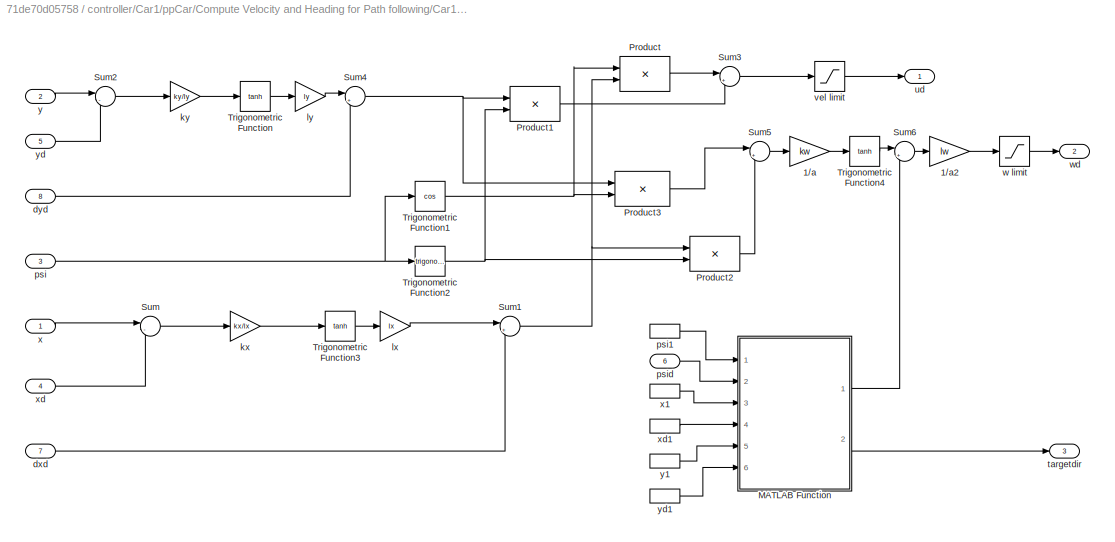
BLOCK [SubSystem] controller/Car1/ppCar/Compute Velocity and Heading for Path following/Car1/Kinematicc Controller
  Ports = [8, 3]
  RequestExecContextInheritance = off
BLOCK [Gain] controller/Car1/ppCar/Compute Velocity and Heading for Path following/Car1/Kinematicc Controller/1//a
  Gain = kw
  NameLocation = top
  OutDataTypeStr = Inherit: Same as input
  ParamDataTypeStr = Inherit: Same as input
  SaturateOnIntegerOverflow = on
BLOCK [Gain] controller/Car1/ppCar/Compute Velocity and Heading for Path following/Car1/Kinematicc Controller/1//a2
  Gain = lw
  NameLocation = top
  OutDataTypeStr = Inherit: Same as input
  ParamDataTypeStr = Inherit: Same as input
  SaturateOnIntegerOverflow = on
BLOCK [SubSystem] controller/Car1/ppCar/Compute Velocity and Heading for Path following/Car1/Kinematicc Controller/MATLAB Function
  ErrorFcn = Stateflow.Translate.translate
  PermitHierarchicalResolution = ExplicitOnly
  Ports = [6, 2]
  RequestExecContextInheritance = off
  SFBlockType = MATLAB Function
  TreatAsAtomicUnit = on
BLOCK [Demux] controller/Car1/ppCar/Compute Velocity and Heading for Path following/Car1/Kinematicc Controller/MATLAB Function/ Demux 
  Outputs = 1
  Ports = [1, 1]
BLOCK [S-Function] controller/Car1/ppCar/Compute Velocity and Heading for Path following/Car1/Kinematicc Controller/MATLAB Function/ SFunction 
  EnableBusSupport = on
  FunctionName = sf_sfun
  PortCounts = [6 3]
  Ports = [6, 3]
  SFcnIsStateOwnerBlock = off
  SFunctionDeploymentMode = off
  Tag = Stateflow S-Function 32
BLOCK [Terminator] controller/Car1/ppCar/Compute Velocity and Heading for Path following/Car1/Kinematicc Controller/MATLAB Function/ Terminator 
BLOCK [Outport] controller/Car1/ppCar/Compute Velocity and Heading for Path following/Car1/Kinematicc Controller/MATLAB Function/dw
BLOCK [Inport] controller/Car1/ppCar/Compute Velocity and Heading for Path following/Car1/Kinematicc Controller/MATLAB Function/psi
BLOCK [Inport] controller/Car1/ppCar/Compute Velocity and Heading for Path following/Car1/Kinematicc Controller/MATLAB Function/psid
  Port = 2
BLOCK [Outport] controller/Car1/ppCar/Compute Velocity and Heading for Path following/Car1/Kinematicc Controller/MATLAB Function/targetdir
  Port = 2
BLOCK [Inport] controller/Car1/ppCar/Compute Velocity and Heading for Path following/Car1/Kinematicc Controller/MATLAB Function/x
  Port = 3
BLOCK [Inport] controller/Car1/ppCar/Compute Velocity and Heading for Path following/Car1/Kinematicc Controller/MATLAB Function/xd
  Port = 4
BLOCK [Inport] controller/Car1/ppCar/Compute Velocity and Heading for Path following/Car1/Kinematicc Controller/MATLAB Function/y
  Port = 5
BLOCK [Inport] controller/Car1/ppCar/Compute Velocity and Heading for Path following/Car1/Kinematicc Controller/MATLAB Function/yd
  Port = 6
BLOCK [Product] controller/Car1/ppCar/Compute Velocity and Heading for Path following/Car1/Kinematicc Controller/Product
  NameLocation = top
  OutDataTypeStr = Inherit: Same as first input
  Ports = [2, 1]
  SaturateOnIntegerOverflow = on
BLOCK [Product] controller/Car1/ppCar/Compute Velocity and Heading for Path following/Car1/Kinematicc Controller/Product1
  NameLocation = top
  OutDataTypeStr = Inherit: Same as first input
  Ports = [2, 1]
  SaturateOnIntegerOverflow = on
BLOCK [Product] controller/Car1/ppCar/Compute Velocity and Heading for Path following/Car1/Kinematicc Controller/Product2
  NameLocation = top
  OutDataTypeStr = Inherit: Same as first input
  Ports = [2, 1]
  SaturateOnIntegerOverflow = on
BLOCK [Product] controller/Car1/ppCar/Compute Velocity and Heading for Path following/Car1/Kinematicc Controller/Product3
  NameLocation = top
  OutDataTypeStr = Inherit: Same as first input
  Ports = [2, 1]
  SaturateOnIntegerOverflow = on
BLOCK [Sum] controller/Car1/ppCar/Compute Velocity and Heading for Path following/Car1/Kinematicc Controller/Sum
  Inputs = |-+
  NameLocation = top
  Ports = [2, 1]
  SaturateOnIntegerOverflow = on
BLOCK [Sum] controller/Car1/ppCar/Compute Velocity and Heading for Path following/Car1/Kinematicc Controller/Sum1
  Inputs = |++
  NameLocation = top
  Ports = [2, 1]
  SaturateOnIntegerOverflow = on
BLOCK [Sum] controller/Car1/ppCar/Compute Velocity and Heading for Path following/Car1/Kinematicc Controller/Sum2
  Inputs = |-+
  NameLocation = top
  Ports = [2, 1]
  SaturateOnIntegerOverflow = on
BLOCK [Sum] controller/Car1/ppCar/Compute Velocity and Heading for Path following/Car1/Kinematicc Controller/Sum3
  Inputs = |++
  NameLocation = top
  Ports = [2, 1]
  SaturateOnIntegerOverflow = on
BLOCK [Sum] controller/Car1/ppCar/Compute Velocity and Heading for Path following/Car1/Kinematicc Controller/Sum4
  Inputs = |++
  NameLocation = top
  Ports = [2, 1]
  SaturateOnIntegerOverflow = on
BLOCK [Sum] controller/Car1/ppCar/Compute Velocity and Heading for Path following/Car1/Kinematicc Controller/Sum5
  Inputs = |+-
  NameLocation = top
  Ports = [2, 1]
  SaturateOnIntegerOverflow = on
BLOCK [Sum] controller/Car1/ppCar/Compute Velocity and Heading for Path following/Car1/Kinematicc Controller/Sum6
  Inputs = |++
  NameLocation = top
  Ports = [2, 1]
  SaturateOnIntegerOverflow = on
BLOCK [Trigonometry] controller/Car1/ppCar/Compute Velocity and Heading for Path following/Car1/Kinematicc Controller/Trigonometric Function
  NameLocation = top
  Operator = tanh
  Ports = [1, 1]
BLOCK [Trigonometry] controller/Car1/ppCar/Compute Velocity and Heading for Path following/Car1/Kinematicc Controller/Trigonometric Function1
  NameLocation = top
  Operator = cos
  Ports = [1, 1]
BLOCK [Trigonometry] controller/Car1/ppCar/Compute Velocity and Heading for Path following/Car1/Kinematicc Controller/Trigonometric Function2
  Ports = [1, 1]
BLOCK [Trigonometry] controller/Car1/ppCar/Compute Velocity and Heading for Path following/Car1/Kinematicc Controller/Trigonometric Function3
  NameLocation = top
  Operator = tanh
  Ports = [1, 1]
BLOCK [Trigonometry] controller/Car1/ppCar/Compute Velocity and Heading for Path following/Car1/Kinematicc Controller/Trigonometric Function4
  NameLocation = top
  Operator = tanh
  Ports = [1, 1]
BLOCK [Inport] controller/Car1/ppCar/Compute Velocity and Heading for Path following/Car1/Kinematicc Controller/dxd
  Port = 7
BLOCK [Inport] controller/Car1/ppCar/Compute Velocity and Heading for Path following/Car1/Kinematicc Controller/dyd
  Port = 8
BLOCK [Gain] controller/Car1/ppCar/Compute Velocity and Heading for Path following/Car1/Kinematicc Controller/kx
  Gain = kx/lx
  NameLocation = top
  OutDataTypeStr = Inherit: Same as input
  ParamDataTypeStr = Inherit: Same as input
  SaturateOnIntegerOverflow = on
BLOCK [Gain] controller/Car1/ppCar/Compute Velocity and Heading for Path following/Car1/Kinematicc Controller/ky
  Gain = ky/ly
  NameLocation = top
  OutDataTypeStr = Inherit: Same as input
  ParamDataTypeStr = Inherit: Same as input
  SaturateOnIntegerOverflow = on
BLOCK [Gain] controller/Car1/ppCar/Compute Velocity and Heading for Path following/Car1/Kinematicc Controller/lx
  Gain = lx
  NameLocation = top
  OutDataTypeStr = Inherit: Same as input
  ParamDataTypeStr = Inherit: Same as input
  SaturateOnIntegerOverflow = on
BLOCK [Gain] controller/Car1/ppCar/Compute Velocity and Heading for Path following/Car1/Kinematicc Controller/ly
  Gain = ly
  NameLocation = top
  OutDataTypeStr = Inherit: Same as input
  ParamDataTypeStr = Inherit: Same as input
  SaturateOnIntegerOverflow = on
BLOCK [Inport] controller/Car1/ppCar/Compute Velocity and Heading for Path following/Car1/Kinematicc Controller/psi
  Port = 3
BLOCK [InportShadow] controller/Car1/ppCar/Compute Velocity and Heading for Path following/Car1/Kinematicc Controller/psi1
  Port = 3
BLOCK [Inport] controller/Car1/ppCar/Compute Velocity and Heading for Path following/Car1/Kinematicc Controller/psid
  Port = 6
BLOCK [Outport] controller/Car1/ppCar/Compute Velocity and Heading for Path following/Car1/Kinematicc Controller/targetdir
  Port = 3
BLOCK [Outport] controller/Car1/ppCar/Compute Velocity and Heading for Path following/Car1/Kinematicc Controller/ud
BLOCK [Saturate] controller/Car1/ppCar/Compute Velocity and Heading for Path following/Car1/Kinematicc Controller/vel limit
  LowerLimit = -0.4*Vmax
  UpperLimit = Vmax
BLOCK [Saturate] controller/Car1/ppCar/Compute Velocity and Heading for Path following/Car1/Kinematicc Controller/w limit
  LowerLimit = -Wmax
  UpperLimit = Wmax
BLOCK [Outport] controller/Car1/ppCar/Compute Velocity and Heading for Path following/Car1/Kinematicc Controller/wd
  Port = 2
BLOCK [Inport] controller/Car1/ppCar/Compute Velocity and Heading for Path following/Car1/Kinematicc Controller/x
BLOCK [InportShadow] controller/Car1/ppCar/Compute Velocity and Heading for Path following/Car1/Kinematicc Controller/x1
BLOCK [Inport] controller/Car1/ppCar/Compute Velocity and Heading for Path following/Car1/Kinematicc Controller/xd
  Port = 4
BLOCK [InportShadow] controller/Car1/ppCar/Compute Velocity and Heading for Path following/Car1/Kinematicc Controller/xd1
  Port = 4
BLOCK [Inport] controller/Car1/ppCar/Compute Velocity and Heading for Path following/Car1/Kinematicc Controller/y
  Port = 2
BLOCK [InportShadow] controller/Car1/ppCar/Compute Velocity and Heading for Path following/Car1/Kinematicc Controller/y1
  Port = 2
BLOCK [Inport] controller/Car1/ppCar/Compute Velocity and Heading for Path following/Car1/Kinematicc Controller/yd
  Port = 5
BLOCK [InportShadow] controller/Car1/ppCar/Compute Velocity and Heading for Path following/Car1/Kinematicc Controller/yd1
  Port = 5
BLOCK [Outport] controller/Car1/ppCar/Compute Velocity and Heading for Path following/Car1/V
BLOCK [Outport] controller/Car1/ppCar/Compute Velocity and Heading for Path following/Car1/W
  Port = 2
BLOCK [Inport] controller/Car1/ppCar/Compute Velocity and Heading for Path following/Car1/pose
BLOCK [Outport] controller/Car1/ppCar/Compute Velocity and Heading for Path following/Car1/targetdir
  Port = 3
BLOCK [Inport] controller/Car1/ppCar/Compute Velocity and Heading for Path following/Car1/waypoint
  Port = 2
BLOCK [Inport] controller/Car1/ppCar/Compute Velocity and Heading for Path following/CurrentPose
BLOCK [Outport] controller/Car1/ppCar/Compute Velocity and Heading for Path following/TargetDir
  VectorParamsAs1DForOutWhenUnconnected = off
BLOCK [Outport] controller/Car1/ppCar/Compute Velocity and Heading for Path following/V
  Port = 2
  VectorParamsAs1DForOutWhenUnconnected = off
BLOCK [Outport] controller/Car1/ppCar/Compute Velocity and Heading for Path following/W
  Port = 3
  VectorParamsAs1DForOutWhenUnconnected = off
BLOCK [Inport] controller/Car1/ppCar/Compute Velocity and Heading for Path following/Waypoints
  Port = 2
BLOCK [Constant] controller/Car1/ppCar/Constant1
  Value = scanAngles
BLOCK [SubSystem] controller/Car1/ppCar/More Info
  OpenFcn = showdemo(bdroot(gcb))
  Ports = []
  RequestExecContextInheritance = off
BLOCK [SubSystem] controller/Car1/ppCar/Outputs
  Ports = [4, 2]
  RequestExecContextInheritance = off
BLOCK [Sum] controller/Car1/ppCar/Outputs/Add
  IconShape = rectangular
  Ports = [2, 1]
BLOCK [Sum] controller/Car1/ppCar/Outputs/Add1
  IconShape = rectangular
  Ports = [2, 1]
BLOCK [Inport] controller/Car1/ppCar/Outputs/V
  Port = 3
BLOCK [Inport] controller/Car1/ppCar/Outputs/W
  Port = 4
BLOCK [Inport] controller/Car1/ppCar/Outputs/dV
BLOCK [Inport] controller/Car1/ppCar/Outputs/dW
  Port = 2
BLOCK [Outport] controller/Car1/ppCar/Outputs/v
BLOCK [Outport] controller/Car1/ppCar/Outputs/w
  Port = 2
BLOCK [Inport] controller/Car1/ppCar/Pose
  Port = 3
BLOCK [Inport] controller/Car1/ppCar/Ranges
  Port = 2
BLOCK [Inport] controller/Car1/ppCar/WayPoints
  Port = 4
BLOCK [Outport] controller/Car1/ppCar/v
BLOCK [Outport] controller/Car1/ppCar/w
  Port = 2
BLOCK [SubSystem] controller/Car2
  Ports = [3, 1]
  RequestExecContextInheritance = off
BLOCK [Constant] controller/Car2/Constant7
  Value = scanAngles
BLOCK [Mux] controller/Car2/Mux1
  DisplayOption = bar
  Inputs = 2
  Ports = [2, 1]
BLOCK [Outport] controller/Car2/Out1
BLOCK [Inport] controller/Car2/Pose
  Port = 2
BLOCK [Inport] controller/Car2/Ranges
BLOCK [Inport] controller/Car2/WayPoints
  Port = 3
BLOCK [SubSystem] controller/Car2/ppCar
  Ports = [4, 2]
  RequestExecContextInheritance = off
BLOCK [SubSystem] controller/Car2/ppCar/Adjust Velocities to Avoid Obstacles
  Ports = [5, 2]
  RequestExecContextInheritance = off
BLOCK [Inport] controller/Car2/ppCar/Adjust Velocities to Avoid Obstacles/Angles
  Port = 2
BLOCK [If] controller/Car2/ppCar/Adjust Velocities to Avoid Obstacles/If
  IfExpression = u1 == 1
  Ports = [1, 2]
BLOCK [Merge] controller/Car2/ppCar/Adjust Velocities to Avoid Obstacles/Merge
  Ports = [2, 1]
BLOCK [Merge] controller/Car2/ppCar/Adjust Velocities to Avoid Obstacles/Merge1
  Ports = [2, 1]
BLOCK [SubSystem] controller/Car2/ppCar/Adjust Velocities to Avoid Obstacles/Path Following
  Ports = [3, 2, 0, 0, 0, 0, 0, 1]
  RequestExecContextInheritance = off
  TreatAsAtomicUnit = on
BLOCK [ActionPort] controller/Car2/ppCar/Adjust Velocities to Avoid Obstacles/Path Following/Action Port
  ActionPortLabel = else
BLOCK [Inport] controller/Car2/ppCar/Adjust Velocities to Avoid Obstacles/Path Following/AngularVelocity
  Port = 3
BLOCK [SubSystem] controller/Car2/ppCar/Adjust Velocities to Avoid Obstacles/Path Following/Compute Angular Velocity
  ErrorFcn = Stateflow.Translate.translate
  PermitHierarchicalResolution = ExplicitOnly
  Ports = [2, 1]
  RequestExecContextInheritance = off
  SFBlockType = MATLAB Function
  TreatAsAtomicUnit = on
BLOCK [Demux] controller/Car2/ppCar/Adjust Velocities to Avoid Obstacles/Path Following/Compute Angular Velocity/ Demux 
  Outputs = 1
  Ports = [1, 1]
BLOCK [S-Function] controller/Car2/ppCar/Adjust Velocities to Avoid Obstacles/Path Following/Compute Angular Velocity/ SFunction 
  EnableBusSupport = on
  FunctionName = sf_sfun
  PortCounts = [2 2]
  Ports = [2, 2]
  SFcnIsStateOwnerBlock = off
  SFunctionDeploymentMode = off
  Tag = Stateflow S-Function 5
BLOCK [Terminator] controller/Car2/ppCar/Adjust Velocities to Avoid Obstacles/Path Following/Compute Angular Velocity/ Terminator 
BLOCK [Inport] controller/Car2/ppCar/Adjust Velocities to Avoid Obstacles/Path Following/Compute Angular Velocity/steeringDir
BLOCK [Outport] controller/Car2/ppCar/Adjust Velocities to Avoid Obstacles/Path Following/Compute Angular Velocity/w
  VectorParamsAs1DForOutWhenUnconnected = off
BLOCK [Inport] controller/Car2/ppCar/Adjust Velocities to Avoid Obstacles/Path Following/Compute Angular Velocity/wMax
  Port = 2
BLOCK [Constant] controller/Car2/ppCar/Adjust Velocities to Avoid Obstacles/Path Following/Constant
  Value = 0
BLOCK [Gain] controller/Car2/ppCar/Adjust Velocities to Avoid Obstacles/Path Following/Gain
  Gain = 0.2
BLOCK [Constant] controller/Car2/ppCar/Adjust Velocities to Avoid Obstacles/Path Following/MaxAngularVelocity
BLOCK [Inport] controller/Car2/ppCar/Adjust Velocities to Avoid Obstacles/Path Following/SteeringDirection
BLOCK [Sum] controller/Car2/ppCar/Adjust Velocities to Avoid Obstacles/Path Following/Subtract
  IconShape = rectangular
  Inputs = +-
  Ports = [2, 1]
BLOCK [Sum] controller/Car2/ppCar/Adjust Velocities to Avoid Obstacles/Path Following/Subtract1
  IconShape = rectangular
  Inputs = +-
  Ports = [2, 1]
BLOCK [Inport] controller/Car2/ppCar/Adjust Velocities to Avoid Obstacles/Path Following/V
  Port = 2
BLOCK [Outport] controller/Car2/ppCar/Adjust Velocities to Avoid Obstacles/Path Following/dV
  VectorParamsAs1DForOutWhenUnconnected = off
BLOCK [Outport] controller/Car2/ppCar/Adjust Velocities to Avoid Obstacles/Path Following/dW
  Port = 2
  VectorParamsAs1DForOutWhenUnconnected = off
BLOCK [Inport] controller/Car2/ppCar/Adjust Velocities to Avoid Obstacles/Ranges
BLOCK [SubSystem] controller/Car2/ppCar/Adjust Velocities to Avoid Obstacles/Recovery
  Ports = [2, 2, 0, 0, 0, 0, 0, 1]
  RequestExecContextInheritance = off
  TreatAsAtomicUnit = on
BLOCK [ActionPort] controller/Car2/ppCar/Adjust Velocities to Avoid Obstacles/Recovery/Action Port
  ActionPortLabel = if(u1 == 1)
BLOCK [Inport] controller/Car2/ppCar/Adjust Velocities to Avoid Obstacles/Recovery/AngularVelocity
  Port = 2
BLOCK [Constant] controller/Car2/ppCar/Adjust Velocities to Avoid Obstacles/Recovery/Constant1
  Value = -pi/2
BLOCK [Constant] controller/Car2/ppCar/Adjust Velocities to Avoid Obstacles/Recovery/Constant2
  Value = recovery_w
BLOCK [Gain] controller/Car2/ppCar/Adjust Velocities to Avoid Obstacles/Recovery/Gain
  Gain = -1
BLOCK [Inport] controller/Car2/ppCar/Adjust Velocities to Avoid Obstacles/Recovery/LinearVelocity
BLOCK [Sum] controller/Car2/ppCar/Adjust Velocities to Avoid Obstacles/Recovery/Subtract
  IconShape = rectangular
  Inputs = +-
  Ports = [2, 1]
BLOCK [Sum] controller/Car2/ppCar/Adjust Velocities to Avoid Obstacles/Recovery/Subtract1
  IconShape = rectangular
  Inputs = +-
  Ports = [2, 1]
BLOCK [Outport] controller/Car2/ppCar/Adjust Velocities to Avoid Obstacles/Recovery/dV
  VectorParamsAs1DForOutWhenUnconnected = off
BLOCK [Outport] controller/Car2/ppCar/Adjust Velocities to Avoid Obstacles/Recovery/dW
  Port = 2
  VectorParamsAs1DForOutWhenUnconnected = off
BLOCK [RelationalOperator] controller/Car2/ppCar/Adjust Velocities to Avoid Obstacles/Relational Operator
  InputSameDT = off
  Operator = isNaN
  OutDataTypeStr = boolean
  Ports = [1, 1]
  RndMeth = Simplest
BLOCK [Inport] controller/Car2/ppCar/Adjust Velocities to Avoid Obstacles/TargetDir
  Port = 3
BLOCK [Inport] controller/Car2/ppCar/Adjust Velocities to Avoid Obstacles/V
  Port = 4
BLOCK [Reference] controller/Car2/ppCar/Adjust Velocities to Avoid Obstacles/Vector Field Histogram  REF=robotalgslib/Vector Field Histogram
  Ports = [3, 1]
  SourceBlock = robotalgslib/Vector Field Histogram
  SourceProductBaseCode = NV,RO
  SourceType = nav.slalgs.internal.VectorFieldHistogram
BLOCK [Inport] controller/Car2/ppCar/Adjust Velocities to Avoid Obstacles/W
  Port = 5
BLOCK [Outport] controller/Car2/ppCar/Adjust Velocities to Avoid Obstacles/dV
  VectorParamsAs1DForOutWhenUnconnected = off
BLOCK [Outport] controller/Car2/ppCar/Adjust Velocities to Avoid Obstacles/dW
  Port = 2
  VectorParamsAs1DForOutWhenUnconnected = off
BLOCK [Inport] controller/Car2/ppCar/Angels
BLOCK [SubSystem] controller/Car2/ppCar/Compute Velocity and Heading for Path following
  Ports = [2, 3]
  RequestExecContextInheritance = off
BLOCK [SubSystem] controller/Car2/ppCar/Compute Velocity and Heading for Path following/Car1
  Ports = [2, 3]
  RequestExecContextInheritance = off
BLOCK [Demux] controller/Car2/ppCar/Compute Velocity and Heading for Path following/Car1/Demux
  Outputs = 3
  Ports = [1, 3]
BLOCK [Demux] controller/Car2/ppCar/Compute Velocity and Heading for Path following/Car1/Demux1
  Outputs = 3
  Ports = [1, 3]
BLOCK [Ground] controller/Car2/ppCar/Compute Velocity and Heading for Path following/Car1/Ground
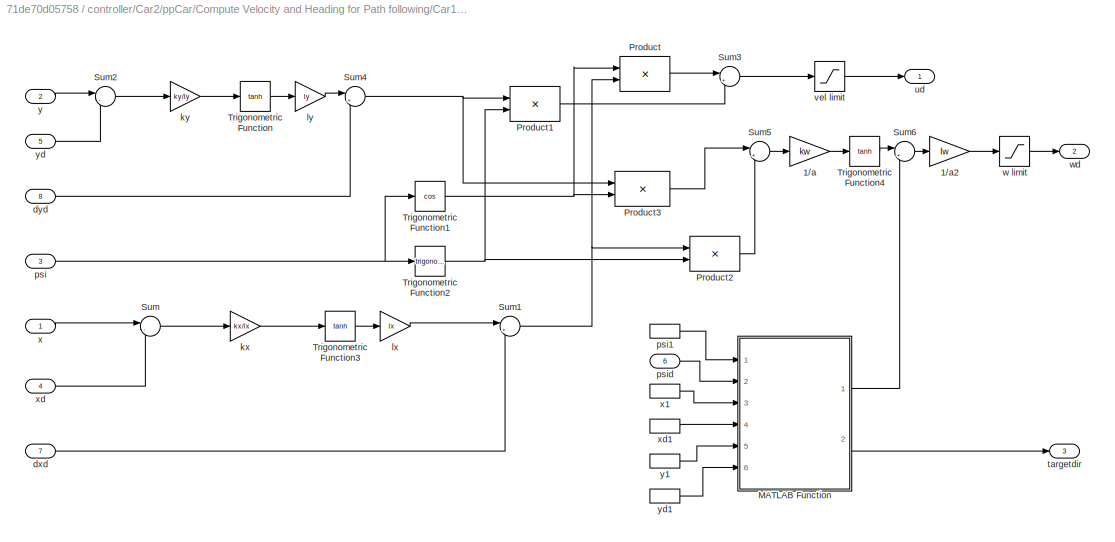
BLOCK [SubSystem] controller/Car2/ppCar/Compute Velocity and Heading for Path following/Car1/Kinematicc Controller
  Ports = [8, 3]
  RequestExecContextInheritance = off
BLOCK [Gain] controller/Car2/ppCar/Compute Velocity and Heading for Path following/Car1/Kinematicc Controller/1//a
  Gain = kw
  NameLocation = top
  OutDataTypeStr = Inherit: Same as input
  ParamDataTypeStr = Inherit: Same as input
  SaturateOnIntegerOverflow = on
BLOCK [Gain] controller/Car2/ppCar/Compute Velocity and Heading for Path following/Car1/Kinematicc Controller/1//a2
  Gain = lw
  NameLocation = top
  OutDataTypeStr = Inherit: Same as input
  ParamDataTypeStr = Inherit: Same as input
  SaturateOnIntegerOverflow = on
BLOCK [SubSystem] controller/Car2/ppCar/Compute Velocity and Heading for Path following/Car1/Kinematicc Controller/MATLAB Function
  ErrorFcn = Stateflow.Translate.translate
  PermitHierarchicalResolution = ExplicitOnly
  Ports = [6, 2]
  RequestExecContextInheritance = off
  SFBlockType = MATLAB Function
  TreatAsAtomicUnit = on
BLOCK [Demux] controller/Car2/ppCar/Compute Velocity and Heading for Path following/Car1/Kinematicc Controller/MATLAB Function/ Demux 
  Outputs = 1
  Ports = [1, 1]
BLOCK [S-Function] controller/Car2/ppCar/Compute Velocity and Heading for Path following/Car1/Kinematicc Controller/MATLAB Function/ SFunction 
  EnableBusSupport = on
  FunctionName = sf_sfun
  PortCounts = [6 3]
  Ports = [6, 3]
  SFcnIsStateOwnerBlock = off
  SFunctionDeploymentMode = off
  Tag = Stateflow S-Function 6
BLOCK [Terminator] controller/Car2/ppCar/Compute Velocity and Heading for Path following/Car1/Kinematicc Controller/MATLAB Function/ Terminator 
BLOCK [Outport] controller/Car2/ppCar/Compute Velocity and Heading for Path following/Car1/Kinematicc Controller/MATLAB Function/dw
BLOCK [Inport] controller/Car2/ppCar/Compute Velocity and Heading for Path following/Car1/Kinematicc Controller/MATLAB Function/psi
BLOCK [Inport] controller/Car2/ppCar/Compute Velocity and Heading for Path following/Car1/Kinematicc Controller/MATLAB Function/psid
  Port = 2
BLOCK [Outport] controller/Car2/ppCar/Compute Velocity and Heading for Path following/Car1/Kinematicc Controller/MATLAB Function/targetdir
  Port = 2
BLOCK [Inport] controller/Car2/ppCar/Compute Velocity and Heading for Path following/Car1/Kinematicc Controller/MATLAB Function/x
  Port = 3
BLOCK [Inport] controller/Car2/ppCar/Compute Velocity and Heading for Path following/Car1/Kinematicc Controller/MATLAB Function/xd
  Port = 4
BLOCK [Inport] controller/Car2/ppCar/Compute Velocity and Heading for Path following/Car1/Kinematicc Controller/MATLAB Function/y
  Port = 5
BLOCK [Inport] controller/Car2/ppCar/Compute Velocity and Heading for Path following/Car1/Kinematicc Controller/MATLAB Function/yd
  Port = 6
BLOCK [Product] controller/Car2/ppCar/Compute Velocity and Heading for Path following/Car1/Kinematicc Controller/Product
  NameLocation = top
  OutDataTypeStr = Inherit: Same as first input
  Ports = [2, 1]
  SaturateOnIntegerOverflow = on
BLOCK [Product] controller/Car2/ppCar/Compute Velocity and Heading for Path following/Car1/Kinematicc Controller/Product1
  NameLocation = top
  OutDataTypeStr = Inherit: Same as first input
  Ports = [2, 1]
  SaturateOnIntegerOverflow = on
BLOCK [Product] controller/Car2/ppCar/Compute Velocity and Heading for Path following/Car1/Kinematicc Controller/Product2
  NameLocation = top
  OutDataTypeStr = Inherit: Same as first input
  Ports = [2, 1]
  SaturateOnIntegerOverflow = on
BLOCK [Product] controller/Car2/ppCar/Compute Velocity and Heading for Path following/Car1/Kinematicc Controller/Product3
  NameLocation = top
  OutDataTypeStr = Inherit: Same as first input
  Ports = [2, 1]
  SaturateOnIntegerOverflow = on
BLOCK [Sum] controller/Car2/ppCar/Compute Velocity and Heading for Path following/Car1/Kinematicc Controller/Sum
  Inputs = |-+
  NameLocation = top
  Ports = [2, 1]
  SaturateOnIntegerOverflow = on
BLOCK [Sum] controller/Car2/ppCar/Compute Velocity and Heading for Path following/Car1/Kinematicc Controller/Sum1
  Inputs = |++
  NameLocation = top
  Ports = [2, 1]
  SaturateOnIntegerOverflow = on
BLOCK [Sum] controller/Car2/ppCar/Compute Velocity and Heading for Path following/Car1/Kinematicc Controller/Sum2
  Inputs = |-+
  NameLocation = top
  Ports = [2, 1]
  SaturateOnIntegerOverflow = on
BLOCK [Sum] controller/Car2/ppCar/Compute Velocity and Heading for Path following/Car1/Kinematicc Controller/Sum3
  Inputs = |++
  NameLocation = top
  Ports = [2, 1]
  SaturateOnIntegerOverflow = on
BLOCK [Sum] controller/Car2/ppCar/Compute Velocity and Heading for Path following/Car1/Kinematicc Controller/Sum4
  Inputs = |++
  NameLocation = top
  Ports = [2, 1]
  SaturateOnIntegerOverflow = on
BLOCK [Sum] controller/Car2/ppCar/Compute Velocity and Heading for Path following/Car1/Kinematicc Controller/Sum5
  Inputs = |+-
  NameLocation = top
  Ports = [2, 1]
  SaturateOnIntegerOverflow = on
BLOCK [Sum] controller/Car2/ppCar/Compute Velocity and Heading for Path following/Car1/Kinematicc Controller/Sum6
  Inputs = |++
  NameLocation = top
  Ports = [2, 1]
  SaturateOnIntegerOverflow = on
BLOCK [Trigonometry] controller/Car2/ppCar/Compute Velocity and Heading for Path following/Car1/Kinematicc Controller/Trigonometric Function
  NameLocation = top
  Operator = tanh
  Ports = [1, 1]
BLOCK [Trigonometry] controller/Car2/ppCar/Compute Velocity and Heading for Path following/Car1/Kinematicc Controller/Trigonometric Function1
  NameLocation = top
  Operator = cos
  Ports = [1, 1]
BLOCK [Trigonometry] controller/Car2/ppCar/Compute Velocity and Heading for Path following/Car1/Kinematicc Controller/Trigonometric Function2
  Ports = [1, 1]
BLOCK [Trigonometry] controller/Car2/ppCar/Compute Velocity and Heading for Path following/Car1/Kinematicc Controller/Trigonometric Function3
  NameLocation = top
  Operator = tanh
  Ports = [1, 1]
BLOCK [Trigonometry] controller/Car2/ppCar/Compute Velocity and Heading for Path following/Car1/Kinematicc Controller/Trigonometric Function4
  NameLocation = top
  Operator = tanh
  Ports = [1, 1]
BLOCK [Inport] controller/Car2/ppCar/Compute Velocity and Heading for Path following/Car1/Kinematicc Controller/dxd
  Port = 7
BLOCK [Inport] controller/Car2/ppCar/Compute Velocity and Heading for Path following/Car1/Kinematicc Controller/dyd
  Port = 8
BLOCK [Gain] controller/Car2/ppCar/Compute Velocity and Heading for Path following/Car1/Kinematicc Controller/kx
  Gain = kx/lx
  NameLocation = top
  OutDataTypeStr = Inherit: Same as input
  ParamDataTypeStr = Inherit: Same as input
  SaturateOnIntegerOverflow = on
BLOCK [Gain] controller/Car2/ppCar/Compute Velocity and Heading for Path following/Car1/Kinematicc Controller/ky
  Gain = ky/ly
  NameLocation = top
  OutDataTypeStr = Inherit: Same as input
  ParamDataTypeStr = Inherit: Same as input
  SaturateOnIntegerOverflow = on
BLOCK [Gain] controller/Car2/ppCar/Compute Velocity and Heading for Path following/Car1/Kinematicc Controller/lx
  Gain = lx
  NameLocation = top
  OutDataTypeStr = Inherit: Same as input
  ParamDataTypeStr = Inherit: Same as input
  SaturateOnIntegerOverflow = on
BLOCK [Gain] controller/Car2/ppCar/Compute Velocity and Heading for Path following/Car1/Kinematicc Controller/ly
  Gain = ly
  NameLocation = top
  OutDataTypeStr = Inherit: Same as input
  ParamDataTypeStr = Inherit: Same as input
  SaturateOnIntegerOverflow = on
BLOCK [Inport] controller/Car2/ppCar/Compute Velocity and Heading for Path following/Car1/Kinematicc Controller/psi
  Port = 3
BLOCK [InportShadow] controller/Car2/ppCar/Compute Velocity and Heading for Path following/Car1/Kinematicc Controller/psi1
  Port = 3
BLOCK [Inport] controller/Car2/ppCar/Compute Velocity and Heading for Path following/Car1/Kinematicc Controller/psid
  Port = 6
BLOCK [Outport] controller/Car2/ppCar/Compute Velocity and Heading for Path following/Car1/Kinematicc Controller/targetdir
  Port = 3
BLOCK [Outport] controller/Car2/ppCar/Compute Velocity and Heading for Path following/Car1/Kinematicc Controller/ud
BLOCK [Saturate] controller/Car2/ppCar/Compute Velocity and Heading for Path following/Car1/Kinematicc Controller/vel limit
  LowerLimit = -0.4*Vmax
  UpperLimit = Vmax
BLOCK [Saturate] controller/Car2/ppCar/Compute Velocity and Heading for Path following/Car1/Kinematicc Controller/w limit
  LowerLimit = -Wmax
  UpperLimit = Wmax
BLOCK [Outport] controller/Car2/ppCar/Compute Velocity and Heading for Path following/Car1/Kinematicc Controller/wd
  Port = 2
BLOCK [Inport] controller/Car2/ppCar/Compute Velocity and Heading for Path following/Car1/Kinematicc Controller/x
BLOCK [InportShadow] controller/Car2/ppCar/Compute Velocity and Heading for Path following/Car1/Kinematicc Controller/x1
BLOCK [Inport] controller/Car2/ppCar/Compute Velocity and Heading for Path following/Car1/Kinematicc Controller/xd
  Port = 4
BLOCK [InportShadow] controller/Car2/ppCar/Compute Velocity and Heading for Path following/Car1/Kinematicc Controller/xd1
  Port = 4
BLOCK [Inport] controller/Car2/ppCar/Compute Velocity and Heading for Path following/Car1/Kinematicc Controller/y
  Port = 2
BLOCK [InportShadow] controller/Car2/ppCar/Compute Velocity and Heading for Path following/Car1/Kinematicc Controller/y1
  Port = 2
BLOCK [Inport] controller/Car2/ppCar/Compute Velocity and Heading for Path following/Car1/Kinematicc Controller/yd
  Port = 5
BLOCK [InportShadow] controller/Car2/ppCar/Compute Velocity and Heading for Path following/Car1/Kinematicc Controller/yd1
  Port = 5
BLOCK [Outport] controller/Car2/ppCar/Compute Velocity and Heading for Path following/Car1/V
BLOCK [Outport] controller/Car2/ppCar/Compute Velocity and Heading for Path following/Car1/W
  Port = 2
BLOCK [Inport] controller/Car2/ppCar/Compute Velocity and Heading for Path following/Car1/pose
BLOCK [Outport] controller/Car2/ppCar/Compute Velocity and Heading for Path following/Car1/targetdir
  Port = 3
BLOCK [Inport] controller/Car2/ppCar/Compute Velocity and Heading for Path following/Car1/waypoint
  Port = 2
BLOCK [Inport] controller/Car2/ppCar/Compute Velocity and Heading for Path following/CurrentPose
BLOCK [Outport] controller/Car2/ppCar/Compute Velocity and Heading for Path following/TargetDir
  VectorParamsAs1DForOutWhenUnconnected = off
BLOCK [Outport] controller/Car2/ppCar/Compute Velocity and Heading for Path following/V
  Port = 2
  VectorParamsAs1DForOutWhenUnconnected = off
BLOCK [Outport] controller/Car2/ppCar/Compute Velocity and Heading for Path following/W
  Port = 3
  VectorParamsAs1DForOutWhenUnconnected = off
BLOCK [Inport] controller/Car2/ppCar/Compute Velocity and Heading for Path following/Waypoints
  Port = 2
BLOCK [Constant] controller/Car2/ppCar/Constant1
  Value = scanAngles
BLOCK [SubSystem] controller/Car2/ppCar/More Info
  OpenFcn = showdemo(bdroot(gcb))
  Ports = []
  RequestExecContextInheritance = off
BLOCK [SubSystem] controller/Car2/ppCar/Outputs
  Ports = [4, 2]
  RequestExecContextInheritance = off
BLOCK [Sum] controller/Car2/ppCar/Outputs/Add
  IconShape = rectangular
  Ports = [2, 1]
BLOCK [Sum] controller/Car2/ppCar/Outputs/Add1
  IconShape = rectangular
  Ports = [2, 1]
BLOCK [Inport] controller/Car2/ppCar/Outputs/V
  Port = 3
BLOCK [Inport] controller/Car2/ppCar/Outputs/W
  Port = 4
BLOCK [Inport] controller/Car2/ppCar/Outputs/dV
BLOCK [Inport] controller/Car2/ppCar/Outputs/dW
  Port = 2
BLOCK [Outport] controller/Car2/ppCar/Outputs/v
BLOCK [Outport] controller/Car2/ppCar/Outputs/w
  Port = 2
BLOCK [Inport] controller/Car2/ppCar/Pose
  Port = 3
BLOCK [Inport] controller/Car2/ppCar/Ranges
  Port = 2
BLOCK [Inport] controller/Car2/ppCar/WayPoints
  Port = 4
BLOCK [Outport] controller/Car2/ppCar/v
BLOCK [Outport] controller/Car2/ppCar/w
  Port = 2
BLOCK [SubSystem] controller/Car3
  Ports = [3, 1]
  RequestExecContextInheritance = off
BLOCK [Constant] controller/Car3/Constant7
  Value = scanAngles
BLOCK [Mux] controller/Car3/Mux1
  DisplayOption = bar
  Inputs = 2
  Ports = [2, 1]
BLOCK [Outport] controller/Car3/Out1
BLOCK [Inport] controller/Car3/Pose
  Port = 2
BLOCK [Inport] controller/Car3/Ranges
BLOCK [Inport] controller/Car3/WayPoints
  Port = 3
BLOCK [SubSystem] controller/Car3/ppCar
  Ports = [4, 2]
  RequestExecContextInheritance = off
BLOCK [SubSystem] controller/Car3/ppCar/Adjust Velocities to Avoid Obstacles
  Ports = [5, 2]
  RequestExecContextInheritance = off
BLOCK [Inport] controller/Car3/ppCar/Adjust Velocities to Avoid Obstacles/Angles
  Port = 2
BLOCK [If] controller/Car3/ppCar/Adjust Velocities to Avoid Obstacles/If
  IfExpression = u1 == 1
  Ports = [1, 2]
BLOCK [Merge] controller/Car3/ppCar/Adjust Velocities to Avoid Obstacles/Merge
  Ports = [2, 1]
BLOCK [Merge] controller/Car3/ppCar/Adjust Velocities to Avoid Obstacles/Merge1
  Ports = [2, 1]
BLOCK [SubSystem] controller/Car3/ppCar/Adjust Velocities to Avoid Obstacles/Path Following
  Ports = [3, 2, 0, 0, 0, 0, 0, 1]
  RequestExecContextInheritance = off
  TreatAsAtomicUnit = on
BLOCK [ActionPort] controller/Car3/ppCar/Adjust Velocities to Avoid Obstacles/Path Following/Action Port
  ActionPortLabel = else
BLOCK [Inport] controller/Car3/ppCar/Adjust Velocities to Avoid Obstacles/Path Following/AngularVelocity
  Port = 3
BLOCK [SubSystem] controller/Car3/ppCar/Adjust Velocities to Avoid Obstacles/Path Following/Compute Angular Velocity
  ErrorFcn = Stateflow.Translate.translate
  PermitHierarchicalResolution = ExplicitOnly
  Ports = [2, 1]
  RequestExecContextInheritance = off
  SFBlockType = MATLAB Function
  TreatAsAtomicUnit = on
BLOCK [Demux] controller/Car3/ppCar/Adjust Velocities to Avoid Obstacles/Path Following/Compute Angular Velocity/ Demux 
  Outputs = 1
  Ports = [1, 1]
BLOCK [S-Function] controller/Car3/ppCar/Adjust Velocities to Avoid Obstacles/Path Following/Compute Angular Velocity/ SFunction 
  EnableBusSupport = on
  FunctionName = sf_sfun
  PortCounts = [2 2]
  Ports = [2, 2]
  SFcnIsStateOwnerBlock = off
  SFunctionDeploymentMode = off
  Tag = Stateflow S-Function 7
BLOCK [Terminator] controller/Car3/ppCar/Adjust Velocities to Avoid Obstacles/Path Following/Compute Angular Velocity/ Terminator 
BLOCK [Inport] controller/Car3/ppCar/Adjust Velocities to Avoid Obstacles/Path Following/Compute Angular Velocity/steeringDir
BLOCK [Outport] controller/Car3/ppCar/Adjust Velocities to Avoid Obstacles/Path Following/Compute Angular Velocity/w
  VectorParamsAs1DForOutWhenUnconnected = off
BLOCK [Inport] controller/Car3/ppCar/Adjust Velocities to Avoid Obstacles/Path Following/Compute Angular Velocity/wMax
  Port = 2
BLOCK [Constant] controller/Car3/ppCar/Adjust Velocities to Avoid Obstacles/Path Following/Constant
  Value = 0
BLOCK [Gain] controller/Car3/ppCar/Adjust Velocities to Avoid Obstacles/Path Following/Gain
  Gain = 0.2
BLOCK [Constant] controller/Car3/ppCar/Adjust Velocities to Avoid Obstacles/Path Following/MaxAngularVelocity
BLOCK [Inport] controller/Car3/ppCar/Adjust Velocities to Avoid Obstacles/Path Following/SteeringDirection
BLOCK [Sum] controller/Car3/ppCar/Adjust Velocities to Avoid Obstacles/Path Following/Subtract
  IconShape = rectangular
  Inputs = +-
  Ports = [2, 1]
BLOCK [Sum] controller/Car3/ppCar/Adjust Velocities to Avoid Obstacles/Path Following/Subtract1
  IconShape = rectangular
  Inputs = +-
  Ports = [2, 1]
BLOCK [Inport] controller/Car3/ppCar/Adjust Velocities to Avoid Obstacles/Path Following/V
  Port = 2
BLOCK [Outport] controller/Car3/ppCar/Adjust Velocities to Avoid Obstacles/Path Following/dV
  VectorParamsAs1DForOutWhenUnconnected = off
BLOCK [Outport] controller/Car3/ppCar/Adjust Velocities to Avoid Obstacles/Path Following/dW
  Port = 2
  VectorParamsAs1DForOutWhenUnconnected = off
BLOCK [Inport] controller/Car3/ppCar/Adjust Velocities to Avoid Obstacles/Ranges
BLOCK [SubSystem] controller/Car3/ppCar/Adjust Velocities to Avoid Obstacles/Recovery
  Ports = [2, 2, 0, 0, 0, 0, 0, 1]
  RequestExecContextInheritance = off
  TreatAsAtomicUnit = on
BLOCK [ActionPort] controller/Car3/ppCar/Adjust Velocities to Avoid Obstacles/Recovery/Action Port
  ActionPortLabel = if(u1 == 1)
BLOCK [Inport] controller/Car3/ppCar/Adjust Velocities to Avoid Obstacles/Recovery/AngularVelocity
  Port = 2
BLOCK [Constant] controller/Car3/ppCar/Adjust Velocities to Avoid Obstacles/Recovery/Constant1
  Value = -pi/2
BLOCK [Constant] controller/Car3/ppCar/Adjust Velocities to Avoid Obstacles/Recovery/Constant2
  Value = recovery_w
BLOCK [Gain] controller/Car3/ppCar/Adjust Velocities to Avoid Obstacles/Recovery/Gain
  Gain = -1
BLOCK [Inport] controller/Car3/ppCar/Adjust Velocities to Avoid Obstacles/Recovery/LinearVelocity
BLOCK [Sum] controller/Car3/ppCar/Adjust Velocities to Avoid Obstacles/Recovery/Subtract
  IconShape = rectangular
  Inputs = +-
  Ports = [2, 1]
BLOCK [Sum] controller/Car3/ppCar/Adjust Velocities to Avoid Obstacles/Recovery/Subtract1
  IconShape = rectangular
  Inputs = +-
  Ports = [2, 1]
BLOCK [Outport] controller/Car3/ppCar/Adjust Velocities to Avoid Obstacles/Recovery/dV
  VectorParamsAs1DForOutWhenUnconnected = off
BLOCK [Outport] controller/Car3/ppCar/Adjust Velocities to Avoid Obstacles/Recovery/dW
  Port = 2
  VectorParamsAs1DForOutWhenUnconnected = off
BLOCK [RelationalOperator] controller/Car3/ppCar/Adjust Velocities to Avoid Obstacles/Relational Operator
  InputSameDT = off
  Operator = isNaN
  OutDataTypeStr = boolean
  Ports = [1, 1]
  RndMeth = Simplest
BLOCK [Inport] controller/Car3/ppCar/Adjust Velocities to Avoid Obstacles/TargetDir
  Port = 3
BLOCK [Inport] controller/Car3/ppCar/Adjust Velocities to Avoid Obstacles/V
  Port = 4
BLOCK [Reference] controller/Car3/ppCar/Adjust Velocities to Avoid Obstacles/Vector Field Histogram  REF=robotalgslib/Vector Field Histogram
  Ports = [3, 1]
  SourceBlock = robotalgslib/Vector Field Histogram
  SourceProductBaseCode = NV,RO
  SourceType = nav.slalgs.internal.VectorFieldHistogram
BLOCK [Inport] controller/Car3/ppCar/Adjust Velocities to Avoid Obstacles/W
  Port = 5
BLOCK [Outport] controller/Car3/ppCar/Adjust Velocities to Avoid Obstacles/dV
  VectorParamsAs1DForOutWhenUnconnected = off
BLOCK [Outport] controller/Car3/ppCar/Adjust Velocities to Avoid Obstacles/dW
  Port = 2
  VectorParamsAs1DForOutWhenUnconnected = off
BLOCK [Inport] controller/Car3/ppCar/Angels
BLOCK [SubSystem] controller/Car3/ppCar/Compute Velocity and Heading for Path following
  Ports = [2, 3]
  RequestExecContextInheritance = off
BLOCK [SubSystem] controller/Car3/ppCar/Compute Velocity and Heading for Path following/Car1
  Ports = [2, 3]
  RequestExecContextInheritance = off
BLOCK [Demux] controller/Car3/ppCar/Compute Velocity and Heading for Path following/Car1/Demux
  Outputs = 3
  Ports = [1, 3]
BLOCK [Demux] controller/Car3/ppCar/Compute Velocity and Heading for Path following/Car1/Demux1
  Outputs = 3
  Ports = [1, 3]
BLOCK [Ground] controller/Car3/ppCar/Compute Velocity and Heading for Path following/Car1/Ground
BLOCK [SubSystem] controller/Car3/ppCar/Compute Velocity and Heading for Path following/Car1/Kinematicc Controller
  Ports = [8, 3]
  RequestExecContextInheritance = off
BLOCK [Gain] controller/Car3/ppCar/Compute Velocity and Heading for Path following/Car1/Kinematicc Controller/1//a
  Gain = kw
  NameLocation = top
  OutDataTypeStr = Inherit: Same as input
  ParamDataTypeStr = Inherit: Same as input
  SaturateOnIntegerOverflow = on
BLOCK [Gain] controller/Car3/ppCar/Compute Velocity and Heading for Path following/Car1/Kinematicc Controller/1//a2
  Gain = lw
  NameLocation = top
  OutDataTypeStr = Inherit: Same as input
  ParamDataTypeStr = Inherit: Same as input
  SaturateOnIntegerOverflow = on
BLOCK [SubSystem] controller/Car3/ppCar/Compute Velocity and Heading for Path following/Car1/Kinematicc Controller/MATLAB Function
  ErrorFcn = Stateflow.Translate.translate
  PermitHierarchicalResolution = ExplicitOnly
  Ports = [6, 2]
  RequestExecContextInheritance = off
  SFBlockType = MATLAB Function
  TreatAsAtomicUnit = on
BLOCK [Demux] controller/Car3/ppCar/Compute Velocity and Heading for Path following/Car1/Kinematicc Controller/MATLAB Function/ Demux 
  Outputs = 1
  Ports = [1, 1]
BLOCK [S-Function] controller/Car3/ppCar/Compute Velocity and Heading for Path following/Car1/Kinematicc Controller/MATLAB Function/ SFunction 
  EnableBusSupport = on
  FunctionName = sf_sfun
  PortCounts = [6 3]
  Ports = [6, 3]
  SFcnIsStateOwnerBlock = off
  SFunctionDeploymentMode = off
  Tag = Stateflow S-Function 8
BLOCK [Terminator] controller/Car3/ppCar/Compute Velocity and Heading for Path following/Car1/Kinematicc Controller/MATLAB Function/ Terminator 
BLOCK [Outport] controller/Car3/ppCar/Compute Velocity and Heading for Path following/Car1/Kinematicc Controller/MATLAB Function/dw
BLOCK [Inport] controller/Car3/ppCar/Compute Velocity and Heading for Path following/Car1/Kinematicc Controller/MATLAB Function/psi
BLOCK [Inport] controller/Car3/ppCar/Compute Velocity and Heading for Path following/Car1/Kinematicc Controller/MATLAB Function/psid
  Port = 2
BLOCK [Outport] controller/Car3/ppCar/Compute Velocity and Heading for Path following/Car1/Kinematicc Controller/MATLAB Function/targetdir
  Port = 2
BLOCK [Inport] controller/Car3/ppCar/Compute Velocity and Heading for Path following/Car1/Kinematicc Controller/MATLAB Function/x
  Port = 3
BLOCK [Inport] controller/Car3/ppCar/Compute Velocity and Heading for Path following/Car1/Kinematicc Controller/MATLAB Function/xd
  Port = 4
BLOCK [Inport] controller/Car3/ppCar/Compute Velocity and Heading for Path following/Car1/Kinematicc Controller/MATLAB Function/y
  Port = 5
BLOCK [Inport] controller/Car3/ppCar/Compute Velocity and Heading for Path following/Car1/Kinematicc Controller/MATLAB Function/yd
  Port = 6
BLOCK [Product] controller/Car3/ppCar/Compute Velocity and Heading for Path following/Car1/Kinematicc Controller/Product
  NameLocation = top
  OutDataTypeStr = Inherit: Same as first input
  Ports = [2, 1]
  SaturateOnIntegerOverflow = on
BLOCK [Product] controller/Car3/ppCar/Compute Velocity and Heading for Path following/Car1/Kinematicc Controller/Product1
  NameLocation = top
  OutDataTypeStr = Inherit: Same as first input
  Ports = [2, 1]
  SaturateOnIntegerOverflow = on
BLOCK [Product] controller/Car3/ppCar/Compute Velocity and Heading for Path following/Car1/Kinematicc Controller/Product2
  NameLocation = top
  OutDataTypeStr = Inherit: Same as first input
  Ports = [2, 1]
  SaturateOnIntegerOverflow = on
BLOCK [Product] controller/Car3/ppCar/Compute Velocity and Heading for Path following/Car1/Kinematicc Controller/Product3
  NameLocation = top
  OutDataTypeStr = Inherit: Same as first input
  Ports = [2, 1]
  SaturateOnIntegerOverflow = on
BLOCK [Sum] controller/Car3/ppCar/Compute Velocity and Heading for Path following/Car1/Kinematicc Controller/Sum
  Inputs = |-+
  NameLocation = top
  Ports = [2, 1]
  SaturateOnIntegerOverflow = on
BLOCK [Sum] controller/Car3/ppCar/Compute Velocity and Heading for Path following/Car1/Kinematicc Controller/Sum1
  Inputs = |++
  NameLocation = top
  Ports = [2, 1]
  SaturateOnIntegerOverflow = on
BLOCK [Sum] controller/Car3/ppCar/Compute Velocity and Heading for Path following/Car1/Kinematicc Controller/Sum2
  Inputs = |-+
  NameLocation = top
  Ports = [2, 1]
  SaturateOnIntegerOverflow = on
BLOCK [Sum] controller/Car3/ppCar/Compute Velocity and Heading for Path following/Car1/Kinematicc Controller/Sum3
  Inputs = |++
  NameLocation = top
  Ports = [2, 1]
  SaturateOnIntegerOverflow = on
BLOCK [Sum] controller/Car3/ppCar/Compute Velocity and Heading for Path following/Car1/Kinematicc Controller/Sum4
  Inputs = |++
  NameLocation = top
  Ports = [2, 1]
  SaturateOnIntegerOverflow = on
BLOCK [Sum] controller/Car3/ppCar/Compute Velocity and Heading for Path following/Car1/Kinematicc Controller/Sum5
  Inputs = |+-
  NameLocation = top
  Ports = [2, 1]
  SaturateOnIntegerOverflow = on
BLOCK [Sum] controller/Car3/ppCar/Compute Velocity and Heading for Path following/Car1/Kinematicc Controller/Sum6
  Inputs = |++
  NameLocation = top
  Ports = [2, 1]
  SaturateOnIntegerOverflow = on
BLOCK [Trigonometry] controller/Car3/ppCar/Compute Velocity and Heading for Path following/Car1/Kinematicc Controller/Trigonometric Function
  NameLocation = top
  Operator = tanh
  Ports = [1, 1]
BLOCK [Trigonometry] controller/Car3/ppCar/Compute Velocity and Heading for Path following/Car1/Kinematicc Controller/Trigonometric Function1
  NameLocation = top
  Operator = cos
  Ports = [1, 1]
BLOCK [Trigonometry] controller/Car3/ppCar/Compute Velocity and Heading for Path following/Car1/Kinematicc Controller/Trigonometric Function2
  Ports = [1, 1]
BLOCK [Trigonometry] controller/Car3/ppCar/Compute Velocity and Heading for Path following/Car1/Kinematicc Controller/Trigonometric Function3
  NameLocation = top
  Operator = tanh
  Ports = [1, 1]
BLOCK [Trigonometry] controller/Car3/ppCar/Compute Velocity and Heading for Path following/Car1/Kinematicc Controller/Trigonometric Function4
  NameLocation = top
  Operator = tanh
  Ports = [1, 1]
BLOCK [Inport] controller/Car3/ppCar/Compute Velocity and Heading for Path following/Car1/Kinematicc Controller/dxd
  Port = 7
BLOCK [Inport] controller/Car3/ppCar/Compute Velocity and Heading for Path following/Car1/Kinematicc Controller/dyd
  Port = 8
BLOCK [Gain] controller/Car3/ppCar/Compute Velocity and Heading for Path following/Car1/Kinematicc Controller/kx
  Gain = kx/lx
  NameLocation = top
  OutDataTypeStr = Inherit: Same as input
  ParamDataTypeStr = Inherit: Same as input
  SaturateOnIntegerOverflow = on
BLOCK [Gain] controller/Car3/ppCar/Compute Velocity and Heading for Path following/Car1/Kinematicc Controller/ky
  Gain = ky/ly
  NameLocation = top
  OutDataTypeStr = Inherit: Same as input
  ParamDataTypeStr = Inherit: Same as input
  SaturateOnIntegerOverflow = on
BLOCK [Gain] controller/Car3/ppCar/Compute Velocity and Heading for Path following/Car1/Kinematicc Controller/lx
  Gain = lx
  NameLocation = top
  OutDataTypeStr = Inherit: Same as input
  ParamDataTypeStr = Inherit: Same as input
  SaturateOnIntegerOverflow = on
BLOCK [Gain] controller/Car3/ppCar/Compute Velocity and Heading for Path following/Car1/Kinematicc Controller/ly
  Gain = ly
  NameLocation = top
  OutDataTypeStr = Inherit: Same as input
  ParamDataTypeStr = Inherit: Same as input
  SaturateOnIntegerOverflow = on
BLOCK [Inport] controller/Car3/ppCar/Compute Velocity and Heading for Path following/Car1/Kinematicc Controller/psi
  Port = 3
BLOCK [InportShadow] controller/Car3/ppCar/Compute Velocity and Heading for Path following/Car1/Kinematicc Controller/psi1
  Port = 3
BLOCK [Inport] controller/Car3/ppCar/Compute Velocity and Heading for Path following/Car1/Kinematicc Controller/psid
  Port = 6
BLOCK [Outport] controller/Car3/ppCar/Compute Velocity and Heading for Path following/Car1/Kinematicc Controller/targetdir
  Port = 3
BLOCK [Outport] controller/Car3/ppCar/Compute Velocity and Heading for Path following/Car1/Kinematicc Controller/ud
BLOCK [Saturate] controller/Car3/ppCar/Compute Velocity and Heading for Path following/Car1/Kinematicc Controller/vel limit
  LowerLimit = -0.4*Vmax
  UpperLimit = Vmax
BLOCK [Saturate] controller/Car3/ppCar/Compute Velocity and Heading for Path following/Car1/Kinematicc Controller/w limit
  LowerLimit = -Wmax
  UpperLimit = Wmax
BLOCK [Outport] controller/Car3/ppCar/Compute Velocity and Heading for Path following/Car1/Kinematicc Controller/wd
  Port = 2
BLOCK [Inport] controller/Car3/ppCar/Compute Velocity and Heading for Path following/Car1/Kinematicc Controller/x
BLOCK [InportShadow] controller/Car3/ppCar/Compute Velocity and Heading for Path following/Car1/Kinematicc Controller/x1
BLOCK [Inport] controller/Car3/ppCar/Compute Velocity and Heading for Path following/Car1/Kinematicc Controller/xd
  Port = 4
BLOCK [InportShadow] controller/Car3/ppCar/Compute Velocity and Heading for Path following/Car1/Kinematicc Controller/xd1
  Port = 4
BLOCK [Inport] controller/Car3/ppCar/Compute Velocity and Heading for Path following/Car1/Kinematicc Controller/y
  Port = 2
BLOCK [InportShadow] controller/Car3/ppCar/Compute Velocity and Heading for Path following/Car1/Kinematicc Controller/y1
  Port = 2
BLOCK [Inport] controller/Car3/ppCar/Compute Velocity and Heading for Path following/Car1/Kinematicc Controller/yd
  Port = 5
BLOCK [InportShadow] controller/Car3/ppCar/Compute Velocity and Heading for Path following/Car1/Kinematicc Controller/yd1
  Port = 5
BLOCK [Outport] controller/Car3/ppCar/Compute Velocity and Heading for Path following/Car1/V
BLOCK [Outport] controller/Car3/ppCar/Compute Velocity and Heading for Path following/Car1/W
  Port = 2
BLOCK [Inport] controller/Car3/ppCar/Compute Velocity and Heading for Path following/Car1/pose
BLOCK [Outport] controller/Car3/ppCar/Compute Velocity and Heading for Path following/Car1/targetdir
  Port = 3
BLOCK [Inport] controller/Car3/ppCar/Compute Velocity and Heading for Path following/Car1/waypoint
  Port = 2
BLOCK [Inport] controller/Car3/ppCar/Compute Velocity and Heading for Path following/CurrentPose
BLOCK [Outport] controller/Car3/ppCar/Compute Velocity and Heading for Path following/TargetDir
  VectorParamsAs1DForOutWhenUnconnected = off
BLOCK [Outport] controller/Car3/ppCar/Compute Velocity and Heading for Path following/V
  Port = 2
  VectorParamsAs1DForOutWhenUnconnected = off
BLOCK [Outport] controller/Car3/ppCar/Compute Velocity and Heading for Path following/W
  Port = 3
  VectorParamsAs1DForOutWhenUnconnected = off
BLOCK [Inport] controller/Car3/ppCar/Compute Velocity and Heading for Path following/Waypoints
  Port = 2
BLOCK [Constant] controller/Car3/ppCar/Constant1
  Value = scanAngles
BLOCK [SubSystem] controller/Car3/ppCar/More Info
  OpenFcn = showdemo(bdroot(gcb))
  Ports = []
  RequestExecContextInheritance = off
BLOCK [SubSystem] controller/Car3/ppCar/Outputs
  Ports = [4, 2]
  RequestExecContextInheritance = off
BLOCK [Sum] controller/Car3/ppCar/Outputs/Add
  IconShape = rectangular
  Ports = [2, 1]
BLOCK [Sum] controller/Car3/ppCar/Outputs/Add1
  IconShape = rectangular
  Ports = [2, 1]
BLOCK [Inport] controller/Car3/ppCar/Outputs/V
  Port = 3
BLOCK [Inport] controller/Car3/ppCar/Outputs/W
  Port = 4
BLOCK [Inport] controller/Car3/ppCar/Outputs/dV
BLOCK [Inport] controller/Car3/ppCar/Outputs/dW
  Port = 2
BLOCK [Outport] controller/Car3/ppCar/Outputs/v
BLOCK [Outport] controller/Car3/ppCar/Outputs/w
  Port = 2
BLOCK [Inport] controller/Car3/ppCar/Pose
  Port = 3
BLOCK [Inport] controller/Car3/ppCar/Ranges
  Port = 2
BLOCK [Inport] controller/Car3/ppCar/WayPoints
  Port = 4
BLOCK [Outport] controller/Car3/ppCar/v
BLOCK [Outport] controller/Car3/ppCar/w
  Port = 2
BLOCK [SubSystem] controller/Car4
  Ports = [3, 1]
  RequestExecContextInheritance = off
BLOCK [Constant] controller/Car4/Constant7
  Value = scanAngles
BLOCK [Mux] controller/Car4/Mux1
  DisplayOption = bar
  Inputs = 2
  Ports = [2, 1]
BLOCK [Outport] controller/Car4/Out1
BLOCK [Inport] controller/Car4/Pose
  Port = 2
BLOCK [Inport] controller/Car4/Ranges
BLOCK [Inport] controller/Car4/WayPoints
  Port = 3
BLOCK [SubSystem] controller/Car4/ppCar
  Ports = [4, 2]
  RequestExecContextInheritance = off
BLOCK [SubSystem] controller/Car4/ppCar/Adjust Velocities to Avoid Obstacles
  Ports = [5, 2]
  RequestExecContextInheritance = off
BLOCK [Inport] controller/Car4/ppCar/Adjust Velocities to Avoid Obstacles/Angles
  Port = 2
BLOCK [If] controller/Car4/ppCar/Adjust Velocities to Avoid Obstacles/If
  IfExpression = u1 == 1
  Ports = [1, 2]
BLOCK [Merge] controller/Car4/ppCar/Adjust Velocities to Avoid Obstacles/Merge
  Ports = [2, 1]
BLOCK [Merge] controller/Car4/ppCar/Adjust Velocities to Avoid Obstacles/Merge1
  Ports = [2, 1]
BLOCK [SubSystem] controller/Car4/ppCar/Adjust Velocities to Avoid Obstacles/Path Following
  Ports = [3, 2, 0, 0, 0, 0, 0, 1]
  RequestExecContextInheritance = off
  TreatAsAtomicUnit = on
BLOCK [ActionPort] controller/Car4/ppCar/Adjust Velocities to Avoid Obstacles/Path Following/Action Port
  ActionPortLabel = else
BLOCK [Inport] controller/Car4/ppCar/Adjust Velocities to Avoid Obstacles/Path Following/AngularVelocity
  Port = 3
BLOCK [SubSystem] controller/Car4/ppCar/Adjust Velocities to Avoid Obstacles/Path Following/Compute Angular Velocity
  ErrorFcn = Stateflow.Translate.translate
  PermitHierarchicalResolution = ExplicitOnly
  Ports = [2, 1]
  RequestExecContextInheritance = off
  SFBlockType = MATLAB Function
  TreatAsAtomicUnit = on
BLOCK [Demux] controller/Car4/ppCar/Adjust Velocities to Avoid Obstacles/Path Following/Compute Angular Velocity/ Demux 
  Outputs = 1
  Ports = [1, 1]
BLOCK [S-Function] controller/Car4/ppCar/Adjust Velocities to Avoid Obstacles/Path Following/Compute Angular Velocity/ SFunction 
  EnableBusSupport = on
  FunctionName = sf_sfun
  PortCounts = [2 2]
  Ports = [2, 2]
  SFcnIsStateOwnerBlock = off
  SFunctionDeploymentMode = off
  Tag = Stateflow S-Function 11
BLOCK [Terminator] controller/Car4/ppCar/Adjust Velocities to Avoid Obstacles/Path Following/Compute Angular Velocity/ Terminator 
BLOCK [Inport] controller/Car4/ppCar/Adjust Velocities to Avoid Obstacles/Path Following/Compute Angular Velocity/steeringDir
BLOCK [Outport] controller/Car4/ppCar/Adjust Velocities to Avoid Obstacles/Path Following/Compute Angular Velocity/w
  VectorParamsAs1DForOutWhenUnconnected = off
BLOCK [Inport] controller/Car4/ppCar/Adjust Velocities to Avoid Obstacles/Path Following/Compute Angular Velocity/wMax
  Port = 2
BLOCK [Constant] controller/Car4/ppCar/Adjust Velocities to Avoid Obstacles/Path Following/Constant
  Value = 0
BLOCK [Gain] controller/Car4/ppCar/Adjust Velocities to Avoid Obstacles/Path Following/Gain
  Gain = 0.2
BLOCK [Constant] controller/Car4/ppCar/Adjust Velocities to Avoid Obstacles/Path Following/MaxAngularVelocity
BLOCK [Inport] controller/Car4/ppCar/Adjust Velocities to Avoid Obstacles/Path Following/SteeringDirection
BLOCK [Sum] controller/Car4/ppCar/Adjust Velocities to Avoid Obstacles/Path Following/Subtract
  IconShape = rectangular
  Inputs = +-
  Ports = [2, 1]
BLOCK [Sum] controller/Car4/ppCar/Adjust Velocities to Avoid Obstacles/Path Following/Subtract1
  IconShape = rectangular
  Inputs = +-
  Ports = [2, 1]
BLOCK [Inport] controller/Car4/ppCar/Adjust Velocities to Avoid Obstacles/Path Following/V
  Port = 2
BLOCK [Outport] controller/Car4/ppCar/Adjust Velocities to Avoid Obstacles/Path Following/dV
  VectorParamsAs1DForOutWhenUnconnected = off
BLOCK [Outport] controller/Car4/ppCar/Adjust Velocities to Avoid Obstacles/Path Following/dW
  Port = 2
  VectorParamsAs1DForOutWhenUnconnected = off
BLOCK [Inport] controller/Car4/ppCar/Adjust Velocities to Avoid Obstacles/Ranges
BLOCK [SubSystem] controller/Car4/ppCar/Adjust Velocities to Avoid Obstacles/Recovery
  Ports = [2, 2, 0, 0, 0, 0, 0, 1]
  RequestExecContextInheritance = off
  TreatAsAtomicUnit = on
BLOCK [ActionPort] controller/Car4/ppCar/Adjust Velocities to Avoid Obstacles/Recovery/Action Port
  ActionPortLabel = if(u1 == 1)
BLOCK [Inport] controller/Car4/ppCar/Adjust Velocities to Avoid Obstacles/Recovery/AngularVelocity
  Port = 2
BLOCK [Constant] controller/Car4/ppCar/Adjust Velocities to Avoid Obstacles/Recovery/Constant1
  Value = -pi/2
BLOCK [Constant] controller/Car4/ppCar/Adjust Velocities to Avoid Obstacles/Recovery/Constant2
  Value = recovery_w
BLOCK [Gain] controller/Car4/ppCar/Adjust Velocities to Avoid Obstacles/Recovery/Gain
  Gain = -1
BLOCK [Inport] controller/Car4/ppCar/Adjust Velocities to Avoid Obstacles/Recovery/LinearVelocity
BLOCK [Sum] controller/Car4/ppCar/Adjust Velocities to Avoid Obstacles/Recovery/Subtract
  IconShape = rectangular
  Inputs = +-
  Ports = [2, 1]
BLOCK [Sum] controller/Car4/ppCar/Adjust Velocities to Avoid Obstacles/Recovery/Subtract1
  IconShape = rectangular
  Inputs = +-
  Ports = [2, 1]
BLOCK [Outport] controller/Car4/ppCar/Adjust Velocities to Avoid Obstacles/Recovery/dV
  VectorParamsAs1DForOutWhenUnconnected = off
BLOCK [Outport] controller/Car4/ppCar/Adjust Velocities to Avoid Obstacles/Recovery/dW
  Port = 2
  VectorParamsAs1DForOutWhenUnconnected = off
BLOCK [RelationalOperator] controller/Car4/ppCar/Adjust Velocities to Avoid Obstacles/Relational Operator
  InputSameDT = off
  Operator = isNaN
  OutDataTypeStr = boolean
  Ports = [1, 1]
  RndMeth = Simplest
BLOCK [Inport] controller/Car4/ppCar/Adjust Velocities to Avoid Obstacles/TargetDir
  Port = 3
BLOCK [Inport] controller/Car4/ppCar/Adjust Velocities to Avoid Obstacles/V
  Port = 4
BLOCK [Reference] controller/Car4/ppCar/Adjust Velocities to Avoid Obstacles/Vector Field Histogram  REF=robotalgslib/Vector Field Histogram
  Ports = [3, 1]
  SourceBlock = robotalgslib/Vector Field Histogram
  SourceProductBaseCode = NV,RO
  SourceType = nav.slalgs.internal.VectorFieldHistogram
BLOCK [Inport] controller/Car4/ppCar/Adjust Velocities to Avoid Obstacles/W
  Port = 5
BLOCK [Outport] controller/Car4/ppCar/Adjust Velocities to Avoid Obstacles/dV
  VectorParamsAs1DForOutWhenUnconnected = off
BLOCK [Outport] controller/Car4/ppCar/Adjust Velocities to Avoid Obstacles/dW
  Port = 2
  VectorParamsAs1DForOutWhenUnconnected = off
BLOCK [Inport] controller/Car4/ppCar/Angels
BLOCK [SubSystem] controller/Car4/ppCar/Compute Velocity and Heading for Path following
  Ports = [2, 3]
  RequestExecContextInheritance = off
BLOCK [SubSystem] controller/Car4/ppCar/Compute Velocity and Heading for Path following/Car1
  Ports = [2, 3]
  RequestExecContextInheritance = off
BLOCK [Demux] controller/Car4/ppCar/Compute Velocity and Heading for Path following/Car1/Demux
  Outputs = 3
  Ports = [1, 3]
BLOCK [Demux] controller/Car4/ppCar/Compute Velocity and Heading for Path following/Car1/Demux1
  Outputs = 3
  Ports = [1, 3]
BLOCK [Ground] controller/Car4/ppCar/Compute Velocity and Heading for Path following/Car1/Ground
BLOCK [SubSystem] controller/Car4/ppCar/Compute Velocity and Heading for Path following/Car1/Kinematicc Controller
  Ports = [8, 3]
  RequestExecContextInheritance = off
BLOCK [Gain] controller/Car4/ppCar/Compute Velocity and Heading for Path following/Car1/Kinematicc Controller/1//a
  Gain = kw
  NameLocation = top
  OutDataTypeStr = Inherit: Same as input
  ParamDataTypeStr = Inherit: Same as input
  SaturateOnIntegerOverflow = on
BLOCK [Gain] controller/Car4/ppCar/Compute Velocity and Heading for Path following/Car1/Kinematicc Controller/1//a2
  Gain = lw
  NameLocation = top
  OutDataTypeStr = Inherit: Same as input
  ParamDataTypeStr = Inherit: Same as input
  SaturateOnIntegerOverflow = on
BLOCK [SubSystem] controller/Car4/ppCar/Compute Velocity and Heading for Path following/Car1/Kinematicc Controller/MATLAB Function
  ErrorFcn = Stateflow.Translate.translate
  PermitHierarchicalResolution = ExplicitOnly
  Ports = [6, 2]
  RequestExecContextInheritance = off
  SFBlockType = MATLAB Function
  TreatAsAtomicUnit = on
BLOCK [Demux] controller/Car4/ppCar/Compute Velocity and Heading for Path following/Car1/Kinematicc Controller/MATLAB Function/ Demux 
  Outputs = 1
  Ports = [1, 1]
BLOCK [S-Function] controller/Car4/ppCar/Compute Velocity and Heading for Path following/Car1/Kinematicc Controller/MATLAB Function/ SFunction 
  EnableBusSupport = on
  FunctionName = sf_sfun
  PortCounts = [6 3]
  Ports = [6, 3]
  SFcnIsStateOwnerBlock = off
  SFunctionDeploymentMode = off
  Tag = Stateflow S-Function 12
BLOCK [Terminator] controller/Car4/ppCar/Compute Velocity and Heading for Path following/Car1/Kinematicc Controller/MATLAB Function/ Terminator 
BLOCK [Outport] controller/Car4/ppCar/Compute Velocity and Heading for Path following/Car1/Kinematicc Controller/MATLAB Function/dw
BLOCK [Inport] controller/Car4/ppCar/Compute Velocity and Heading for Path following/Car1/Kinematicc Controller/MATLAB Function/psi
BLOCK [Inport] controller/Car4/ppCar/Compute Velocity and Heading for Path following/Car1/Kinematicc Controller/MATLAB Function/psid
  Port = 2
BLOCK [Outport] controller/Car4/ppCar/Compute Velocity and Heading for Path following/Car1/Kinematicc Controller/MATLAB Function/targetdir
  Port = 2
BLOCK [Inport] controller/Car4/ppCar/Compute Velocity and Heading for Path following/Car1/Kinematicc Controller/MATLAB Function/x
  Port = 3
BLOCK [Inport] controller/Car4/ppCar/Compute Velocity and Heading for Path following/Car1/Kinematicc Controller/MATLAB Function/xd
  Port = 4
BLOCK [Inport] controller/Car4/ppCar/Compute Velocity and Heading for Path following/Car1/Kinematicc Controller/MATLAB Function/y
  Port = 5
BLOCK [Inport] controller/Car4/ppCar/Compute Velocity and Heading for Path following/Car1/Kinematicc Controller/MATLAB Function/yd
  Port = 6
BLOCK [Product] controller/Car4/ppCar/Compute Velocity and Heading for Path following/Car1/Kinematicc Controller/Product
  NameLocation = top
  OutDataTypeStr = Inherit: Same as first input
  Ports = [2, 1]
  SaturateOnIntegerOverflow = on
BLOCK [Product] controller/Car4/ppCar/Compute Velocity and Heading for Path following/Car1/Kinematicc Controller/Product1
  NameLocation = top
  OutDataTypeStr = Inherit: Same as first input
  Ports = [2, 1]
  SaturateOnIntegerOverflow = on
BLOCK [Product] controller/Car4/ppCar/Compute Velocity and Heading for Path following/Car1/Kinematicc Controller/Product2
  NameLocation = top
  OutDataTypeStr = Inherit: Same as first input
  Ports = [2, 1]
  SaturateOnIntegerOverflow = on
BLOCK [Product] controller/Car4/ppCar/Compute Velocity and Heading for Path following/Car1/Kinematicc Controller/Product3
  NameLocation = top
  OutDataTypeStr = Inherit: Same as first input
  Ports = [2, 1]
  SaturateOnIntegerOverflow = on
BLOCK [Sum] controller/Car4/ppCar/Compute Velocity and Heading for Path following/Car1/Kinematicc Controller/Sum
  Inputs = |-+
  NameLocation = top
  Ports = [2, 1]
  SaturateOnIntegerOverflow = on
BLOCK [Sum] controller/Car4/ppCar/Compute Velocity and Heading for Path following/Car1/Kinematicc Controller/Sum1
  Inputs = |++
  NameLocation = top
  Ports = [2, 1]
  SaturateOnIntegerOverflow = on
BLOCK [Sum] controller/Car4/ppCar/Compute Velocity and Heading for Path following/Car1/Kinematicc Controller/Sum2
  Inputs = |-+
  NameLocation = top
  Ports = [2, 1]
  SaturateOnIntegerOverflow = on
BLOCK [Sum] controller/Car4/ppCar/Compute Velocity and Heading for Path following/Car1/Kinematicc Controller/Sum3
  Inputs = |++
  NameLocation = top
  Ports = [2, 1]
  SaturateOnIntegerOverflow = on
BLOCK [Sum] controller/Car4/ppCar/Compute Velocity and Heading for Path following/Car1/Kinematicc Controller/Sum4
  Inputs = |++
  NameLocation = top
  Ports = [2, 1]
  SaturateOnIntegerOverflow = on
BLOCK [Sum] controller/Car4/ppCar/Compute Velocity and Heading for Path following/Car1/Kinematicc Controller/Sum5
  Inputs = |+-
  NameLocation = top
  Ports = [2, 1]
  SaturateOnIntegerOverflow = on
BLOCK [Sum] controller/Car4/ppCar/Compute Velocity and Heading for Path following/Car1/Kinematicc Controller/Sum6
  Inputs = |++
  NameLocation = top
  Ports = [2, 1]
  SaturateOnIntegerOverflow = on
BLOCK [Trigonometry] controller/Car4/ppCar/Compute Velocity and Heading for Path following/Car1/Kinematicc Controller/Trigonometric Function
  NameLocation = top
  Operator = tanh
  Ports = [1, 1]
BLOCK [Trigonometry] controller/Car4/ppCar/Compute Velocity and Heading for Path following/Car1/Kinematicc Controller/Trigonometric Function1
  NameLocation = top
  Operator = cos
  Ports = [1, 1]
BLOCK [Trigonometry] controller/Car4/ppCar/Compute Velocity and Heading for Path following/Car1/Kinematicc Controller/Trigonometric Function2
  Ports = [1, 1]
BLOCK [Trigonometry] controller/Car4/ppCar/Compute Velocity and Heading for Path following/Car1/Kinematicc Controller/Trigonometric Function3
  NameLocation = top
  Operator = tanh
  Ports = [1, 1]
BLOCK [Trigonometry] controller/Car4/ppCar/Compute Velocity and Heading for Path following/Car1/Kinematicc Controller/Trigonometric Function4
  NameLocation = top
  Operator = tanh
  Ports = [1, 1]
BLOCK [Inport] controller/Car4/ppCar/Compute Velocity and Heading for Path following/Car1/Kinematicc Controller/dxd
  Port = 7
BLOCK [Inport] controller/Car4/ppCar/Compute Velocity and Heading for Path following/Car1/Kinematicc Controller/dyd
  Port = 8
BLOCK [Gain] controller/Car4/ppCar/Compute Velocity and Heading for Path following/Car1/Kinematicc Controller/kx
  Gain = kx/lx
  NameLocation = top
  OutDataTypeStr = Inherit: Same as input
  ParamDataTypeStr = Inherit: Same as input
  SaturateOnIntegerOverflow = on
BLOCK [Gain] controller/Car4/ppCar/Compute Velocity and Heading for Path following/Car1/Kinematicc Controller/ky
  Gain = ky/ly
  NameLocation = top
  OutDataTypeStr = Inherit: Same as input
  ParamDataTypeStr = Inherit: Same as input
  SaturateOnIntegerOverflow = on
BLOCK [Gain] controller/Car4/ppCar/Compute Velocity and Heading for Path following/Car1/Kinematicc Controller/lx
  Gain = lx
  NameLocation = top
  OutDataTypeStr = Inherit: Same as input
  ParamDataTypeStr = Inherit: Same as input
  SaturateOnIntegerOverflow = on
BLOCK [Gain] controller/Car4/ppCar/Compute Velocity and Heading for Path following/Car1/Kinematicc Controller/ly
  Gain = ly
  NameLocation = top
  OutDataTypeStr = Inherit: Same as input
  ParamDataTypeStr = Inherit: Same as input
  SaturateOnIntegerOverflow = on
BLOCK [Inport] controller/Car4/ppCar/Compute Velocity and Heading for Path following/Car1/Kinematicc Controller/psi
  Port = 3
BLOCK [InportShadow] controller/Car4/ppCar/Compute Velocity and Heading for Path following/Car1/Kinematicc Controller/psi1
  Port = 3
BLOCK [Inport] controller/Car4/ppCar/Compute Velocity and Heading for Path following/Car1/Kinematicc Controller/psid
  Port = 6
BLOCK [Outport] controller/Car4/ppCar/Compute Velocity and Heading for Path following/Car1/Kinematicc Controller/targetdir
  Port = 3
BLOCK [Outport] controller/Car4/ppCar/Compute Velocity and Heading for Path following/Car1/Kinematicc Controller/ud
BLOCK [Saturate] controller/Car4/ppCar/Compute Velocity and Heading for Path following/Car1/Kinematicc Controller/vel limit
  LowerLimit = -0.4*Vmax
  UpperLimit = Vmax
BLOCK [Saturate] controller/Car4/ppCar/Compute Velocity and Heading for Path following/Car1/Kinematicc Controller/w limit
  LowerLimit = -Wmax
  UpperLimit = Wmax
BLOCK [Outport] controller/Car4/ppCar/Compute Velocity and Heading for Path following/Car1/Kinematicc Controller/wd
  Port = 2
BLOCK [Inport] controller/Car4/ppCar/Compute Velocity and Heading for Path following/Car1/Kinematicc Controller/x
BLOCK [InportShadow] controller/Car4/ppCar/Compute Velocity and Heading for Path following/Car1/Kinematicc Controller/x1
BLOCK [Inport] controller/Car4/ppCar/Compute Velocity and Heading for Path following/Car1/Kinematicc Controller/xd
  Port = 4
BLOCK [InportShadow] controller/Car4/ppCar/Compute Velocity and Heading for Path following/Car1/Kinematicc Controller/xd1
  Port = 4
BLOCK [Inport] controller/Car4/ppCar/Compute Velocity and Heading for Path following/Car1/Kinematicc Controller/y
  Port = 2
BLOCK [InportShadow] controller/Car4/ppCar/Compute Velocity and Heading for Path following/Car1/Kinematicc Controller/y1
  Port = 2
BLOCK [Inport] controller/Car4/ppCar/Compute Velocity and Heading for Path following/Car1/Kinematicc Controller/yd
  Port = 5
BLOCK [InportShadow] controller/Car4/ppCar/Compute Velocity and Heading for Path following/Car1/Kinematicc Controller/yd1
  Port = 5
BLOCK [Outport] controller/Car4/ppCar/Compute Velocity and Heading for Path following/Car1/V
BLOCK [Outport] controller/Car4/ppCar/Compute Velocity and Heading for Path following/Car1/W
  Port = 2
BLOCK [Inport] controller/Car4/ppCar/Compute Velocity and Heading for Path following/Car1/pose
BLOCK [Outport] controller/Car4/ppCar/Compute Velocity and Heading for Path following/Car1/targetdir
  Port = 3
BLOCK [Inport] controller/Car4/ppCar/Compute Velocity and Heading for Path following/Car1/waypoint
  Port = 2
BLOCK [Inport] controller/Car4/ppCar/Compute Velocity and Heading for Path following/CurrentPose
BLOCK [Outport] controller/Car4/ppCar/Compute Velocity and Heading for Path following/TargetDir
  VectorParamsAs1DForOutWhenUnconnected = off
BLOCK [Outport] controller/Car4/ppCar/Compute Velocity and Heading for Path following/V
  Port = 2
  VectorParamsAs1DForOutWhenUnconnected = off
BLOCK [Outport] controller/Car4/ppCar/Compute Velocity and Heading for Path following/W
  Port = 3
  VectorParamsAs1DForOutWhenUnconnected = off
BLOCK [Inport] controller/Car4/ppCar/Compute Velocity and Heading for Path following/Waypoints
  Port = 2
BLOCK [Constant] controller/Car4/ppCar/Constant1
  Value = scanAngles
BLOCK [SubSystem] controller/Car4/ppCar/More Info
  OpenFcn = showdemo(bdroot(gcb))
  Ports = []
  RequestExecContextInheritance = off
BLOCK [SubSystem] controller/Car4/ppCar/Outputs
  Ports = [4, 2]
  RequestExecContextInheritance = off
BLOCK [Sum] controller/Car4/ppCar/Outputs/Add
  IconShape = rectangular
  Ports = [2, 1]
BLOCK [Sum] controller/Car4/ppCar/Outputs/Add1
  IconShape = rectangular
  Ports = [2, 1]
BLOCK [Inport] controller/Car4/ppCar/Outputs/V
  Port = 3
BLOCK [Inport] controller/Car4/ppCar/Outputs/W
  Port = 4
BLOCK [Inport] controller/Car4/ppCar/Outputs/dV
BLOCK [Inport] controller/Car4/ppCar/Outputs/dW
  Port = 2
BLOCK [Outport] controller/Car4/ppCar/Outputs/v
BLOCK [Outport] controller/Car4/ppCar/Outputs/w
  Port = 2
BLOCK [Inport] controller/Car4/ppCar/Pose
  Port = 3
BLOCK [Inport] controller/Car4/ppCar/Ranges
  Port = 2
BLOCK [Inport] controller/Car4/ppCar/WayPoints
  Port = 4
BLOCK [Outport] controller/Car4/ppCar/v
BLOCK [Outport] controller/Car4/ppCar/w
  Port = 2
BLOCK [SubSystem] controller/Car5
  Ports = [3, 1]
  RequestExecContextInheritance = off
BLOCK [Constant] controller/Car5/Constant7
  Value = scanAngles
BLOCK [Mux] controller/Car5/Mux1
  DisplayOption = bar
  Inputs = 2
  Ports = [2, 1]
BLOCK [Outport] controller/Car5/Out1
BLOCK [Inport] controller/Car5/Pose
  Port = 2
BLOCK [Inport] controller/Car5/Ranges
BLOCK [Inport] controller/Car5/WayPoints
  Port = 3
BLOCK [SubSystem] controller/Car5/ppCar
  Ports = [4, 2]
  RequestExecContextInheritance = off
BLOCK [SubSystem] controller/Car5/ppCar/Adjust Velocities to Avoid Obstacles
  Ports = [5, 2]
  RequestExecContextInheritance = off
BLOCK [Inport] controller/Car5/ppCar/Adjust Velocities to Avoid Obstacles/Angles
  Port = 2
BLOCK [If] controller/Car5/ppCar/Adjust Velocities to Avoid Obstacles/If
  IfExpression = u1 == 1
  Ports = [1, 2]
BLOCK [Merge] controller/Car5/ppCar/Adjust Velocities to Avoid Obstacles/Merge
  Ports = [2, 1]
BLOCK [Merge] controller/Car5/ppCar/Adjust Velocities to Avoid Obstacles/Merge1
  Ports = [2, 1]
BLOCK [SubSystem] controller/Car5/ppCar/Adjust Velocities to Avoid Obstacles/Path Following
  Ports = [3, 2, 0, 0, 0, 0, 0, 1]
  RequestExecContextInheritance = off
  TreatAsAtomicUnit = on
BLOCK [ActionPort] controller/Car5/ppCar/Adjust Velocities to Avoid Obstacles/Path Following/Action Port
  ActionPortLabel = else
BLOCK [Inport] controller/Car5/ppCar/Adjust Velocities to Avoid Obstacles/Path Following/AngularVelocity
  Port = 3
BLOCK [SubSystem] controller/Car5/ppCar/Adjust Velocities to Avoid Obstacles/Path Following/Compute Angular Velocity
  ErrorFcn = Stateflow.Translate.translate
  PermitHierarchicalResolution = ExplicitOnly
  Ports = [2, 1]
  RequestExecContextInheritance = off
  SFBlockType = MATLAB Function
  TreatAsAtomicUnit = on
BLOCK [Demux] controller/Car5/ppCar/Adjust Velocities to Avoid Obstacles/Path Following/Compute Angular Velocity/ Demux 
  Outputs = 1
  Ports = [1, 1]
BLOCK [S-Function] controller/Car5/ppCar/Adjust Velocities to Avoid Obstacles/Path Following/Compute Angular Velocity/ SFunction 
  EnableBusSupport = on
  FunctionName = sf_sfun
  PortCounts = [2 2]
  Ports = [2, 2]
  SFcnIsStateOwnerBlock = off
  SFunctionDeploymentMode = off
  Tag = Stateflow S-Function 17
BLOCK [Terminator] controller/Car5/ppCar/Adjust Velocities to Avoid Obstacles/Path Following/Compute Angular Velocity/ Terminator 
BLOCK [Inport] controller/Car5/ppCar/Adjust Velocities to Avoid Obstacles/Path Following/Compute Angular Velocity/steeringDir
BLOCK [Outport] controller/Car5/ppCar/Adjust Velocities to Avoid Obstacles/Path Following/Compute Angular Velocity/w
  VectorParamsAs1DForOutWhenUnconnected = off
BLOCK [Inport] controller/Car5/ppCar/Adjust Velocities to Avoid Obstacles/Path Following/Compute Angular Velocity/wMax
  Port = 2
BLOCK [Constant] controller/Car5/ppCar/Adjust Velocities to Avoid Obstacles/Path Following/Constant
  Value = 0
BLOCK [Gain] controller/Car5/ppCar/Adjust Velocities to Avoid Obstacles/Path Following/Gain
  Gain = 0.2
BLOCK [Constant] controller/Car5/ppCar/Adjust Velocities to Avoid Obstacles/Path Following/MaxAngularVelocity
BLOCK [Inport] controller/Car5/ppCar/Adjust Velocities to Avoid Obstacles/Path Following/SteeringDirection
BLOCK [Sum] controller/Car5/ppCar/Adjust Velocities to Avoid Obstacles/Path Following/Subtract
  IconShape = rectangular
  Inputs = +-
  Ports = [2, 1]
BLOCK [Sum] controller/Car5/ppCar/Adjust Velocities to Avoid Obstacles/Path Following/Subtract1
  IconShape = rectangular
  Inputs = +-
  Ports = [2, 1]
BLOCK [Inport] controller/Car5/ppCar/Adjust Velocities to Avoid Obstacles/Path Following/V
  Port = 2
BLOCK [Outport] controller/Car5/ppCar/Adjust Velocities to Avoid Obstacles/Path Following/dV
  VectorParamsAs1DForOutWhenUnconnected = off
BLOCK [Outport] controller/Car5/ppCar/Adjust Velocities to Avoid Obstacles/Path Following/dW
  Port = 2
  VectorParamsAs1DForOutWhenUnconnected = off
BLOCK [Inport] controller/Car5/ppCar/Adjust Velocities to Avoid Obstacles/Ranges
BLOCK [SubSystem] controller/Car5/ppCar/Adjust Velocities to Avoid Obstacles/Recovery
  Ports = [2, 2, 0, 0, 0, 0, 0, 1]
  RequestExecContextInheritance = off
  TreatAsAtomicUnit = on
BLOCK [ActionPort] controller/Car5/ppCar/Adjust Velocities to Avoid Obstacles/Recovery/Action Port
  ActionPortLabel = if(u1 == 1)
BLOCK [Inport] controller/Car5/ppCar/Adjust Velocities to Avoid Obstacles/Recovery/AngularVelocity
  Port = 2
BLOCK [Constant] controller/Car5/ppCar/Adjust Velocities to Avoid Obstacles/Recovery/Constant1
  Value = -pi/2
BLOCK [Constant] controller/Car5/ppCar/Adjust Velocities to Avoid Obstacles/Recovery/Constant2
  Value = recovery_w
BLOCK [Gain] controller/Car5/ppCar/Adjust Velocities to Avoid Obstacles/Recovery/Gain
  Gain = -1
BLOCK [Inport] controller/Car5/ppCar/Adjust Velocities to Avoid Obstacles/Recovery/LinearVelocity
BLOCK [Sum] controller/Car5/ppCar/Adjust Velocities to Avoid Obstacles/Recovery/Subtract
  IconShape = rectangular
  Inputs = +-
  Ports = [2, 1]
BLOCK [Sum] controller/Car5/ppCar/Adjust Velocities to Avoid Obstacles/Recovery/Subtract1
  IconShape = rectangular
  Inputs = +-
  Ports = [2, 1]
BLOCK [Outport] controller/Car5/ppCar/Adjust Velocities to Avoid Obstacles/Recovery/dV
  VectorParamsAs1DForOutWhenUnconnected = off
BLOCK [Outport] controller/Car5/ppCar/Adjust Velocities to Avoid Obstacles/Recovery/dW
  Port = 2
  VectorParamsAs1DForOutWhenUnconnected = off
BLOCK [RelationalOperator] controller/Car5/ppCar/Adjust Velocities to Avoid Obstacles/Relational Operator
  InputSameDT = off
  Operator = isNaN
  OutDataTypeStr = boolean
  Ports = [1, 1]
  RndMeth = Simplest
BLOCK [Inport] controller/Car5/ppCar/Adjust Velocities to Avoid Obstacles/TargetDir
  Port = 3
BLOCK [Inport] controller/Car5/ppCar/Adjust Velocities to Avoid Obstacles/V
  Port = 4
BLOCK [Reference] controller/Car5/ppCar/Adjust Velocities to Avoid Obstacles/Vector Field Histogram  REF=robotalgslib/Vector Field Histogram
  Ports = [3, 1]
  SourceBlock = robotalgslib/Vector Field Histogram
  SourceProductBaseCode = NV,RO
  SourceType = nav.slalgs.internal.VectorFieldHistogram
BLOCK [Inport] controller/Car5/ppCar/Adjust Velocities to Avoid Obstacles/W
  Port = 5
BLOCK [Outport] controller/Car5/ppCar/Adjust Velocities to Avoid Obstacles/dV
  VectorParamsAs1DForOutWhenUnconnected = off
BLOCK [Outport] controller/Car5/ppCar/Adjust Velocities to Avoid Obstacles/dW
  Port = 2
  VectorParamsAs1DForOutWhenUnconnected = off
BLOCK [Inport] controller/Car5/ppCar/Angels
BLOCK [SubSystem] controller/Car5/ppCar/Compute Velocity and Heading for Path following
  Ports = [2, 3]
  RequestExecContextInheritance = off
BLOCK [SubSystem] controller/Car5/ppCar/Compute Velocity and Heading for Path following/Car1
  Ports = [2, 3]
  RequestExecContextInheritance = off
BLOCK [Demux] controller/Car5/ppCar/Compute Velocity and Heading for Path following/Car1/Demux
  Outputs = 3
  Ports = [1, 3]
BLOCK [Demux] controller/Car5/ppCar/Compute Velocity and Heading for Path following/Car1/Demux1
  Outputs = 3
  Ports = [1, 3]
BLOCK [Ground] controller/Car5/ppCar/Compute Velocity and Heading for Path following/Car1/Ground
BLOCK [SubSystem] controller/Car5/ppCar/Compute Velocity and Heading for Path following/Car1/Kinematicc Controller
  Ports = [8, 3]
  RequestExecContextInheritance = off
BLOCK [Gain] controller/Car5/ppCar/Compute Velocity and Heading for Path following/Car1/Kinematicc Controller/1//a
  Gain = kw
  NameLocation = top
  OutDataTypeStr = Inherit: Same as input
  ParamDataTypeStr = Inherit: Same as input
  SaturateOnIntegerOverflow = on
BLOCK [Gain] controller/Car5/ppCar/Compute Velocity and Heading for Path following/Car1/Kinematicc Controller/1//a2
  Gain = lw
  NameLocation = top
  OutDataTypeStr = Inherit: Same as input
  ParamDataTypeStr = Inherit: Same as input
  SaturateOnIntegerOverflow = on
BLOCK [SubSystem] controller/Car5/ppCar/Compute Velocity and Heading for Path following/Car1/Kinematicc Controller/MATLAB Function
  ErrorFcn = Stateflow.Translate.translate
  PermitHierarchicalResolution = ExplicitOnly
  Ports = [6, 2]
  RequestExecContextInheritance = off
  SFBlockType = MATLAB Function
  TreatAsAtomicUnit = on
BLOCK [Demux] controller/Car5/ppCar/Compute Velocity and Heading for Path following/Car1/Kinematicc Controller/MATLAB Function/ Demux 
  Outputs = 1
  Ports = [1, 1]
BLOCK [S-Function] controller/Car5/ppCar/Compute Velocity and Heading for Path following/Car1/Kinematicc Controller/MATLAB Function/ SFunction 
  EnableBusSupport = on
  FunctionName = sf_sfun
  PortCounts = [6 3]
  Ports = [6, 3]
  SFcnIsStateOwnerBlock = off
  SFunctionDeploymentMode = off
  Tag = Stateflow S-Function 18
BLOCK [Terminator] controller/Car5/ppCar/Compute Velocity and Heading for Path following/Car1/Kinematicc Controller/MATLAB Function/ Terminator 
BLOCK [Outport] controller/Car5/ppCar/Compute Velocity and Heading for Path following/Car1/Kinematicc Controller/MATLAB Function/dw
BLOCK [Inport] controller/Car5/ppCar/Compute Velocity and Heading for Path following/Car1/Kinematicc Controller/MATLAB Function/psi
BLOCK [Inport] controller/Car5/ppCar/Compute Velocity and Heading for Path following/Car1/Kinematicc Controller/MATLAB Function/psid
  Port = 2
BLOCK [Outport] controller/Car5/ppCar/Compute Velocity and Heading for Path following/Car1/Kinematicc Controller/MATLAB Function/targetdir
  Port = 2
BLOCK [Inport] controller/Car5/ppCar/Compute Velocity and Heading for Path following/Car1/Kinematicc Controller/MATLAB Function/x
  Port = 3
BLOCK [Inport] controller/Car5/ppCar/Compute Velocity and Heading for Path following/Car1/Kinematicc Controller/MATLAB Function/xd
  Port = 4
BLOCK [Inport] controller/Car5/ppCar/Compute Velocity and Heading for Path following/Car1/Kinematicc Controller/MATLAB Function/y
  Port = 5
BLOCK [Inport] controller/Car5/ppCar/Compute Velocity and Heading for Path following/Car1/Kinematicc Controller/MATLAB Function/yd
  Port = 6
BLOCK [Product] controller/Car5/ppCar/Compute Velocity and Heading for Path following/Car1/Kinematicc Controller/Product
  NameLocation = top
  OutDataTypeStr = Inherit: Same as first input
  Ports = [2, 1]
  SaturateOnIntegerOverflow = on
BLOCK [Product] controller/Car5/ppCar/Compute Velocity and Heading for Path following/Car1/Kinematicc Controller/Product1
  NameLocation = top
  OutDataTypeStr = Inherit: Same as first input
  Ports = [2, 1]
  SaturateOnIntegerOverflow = on
BLOCK [Product] controller/Car5/ppCar/Compute Velocity and Heading for Path following/Car1/Kinematicc Controller/Product2
  NameLocation = top
  OutDataTypeStr = Inherit: Same as first input
  Ports = [2, 1]
  SaturateOnIntegerOverflow = on
BLOCK [Product] controller/Car5/ppCar/Compute Velocity and Heading for Path following/Car1/Kinematicc Controller/Product3
  NameLocation = top
  OutDataTypeStr = Inherit: Same as first input
  Ports = [2, 1]
  SaturateOnIntegerOverflow = on
BLOCK [Sum] controller/Car5/ppCar/Compute Velocity and Heading for Path following/Car1/Kinematicc Controller/Sum
  Inputs = |-+
  NameLocation = top
  Ports = [2, 1]
  SaturateOnIntegerOverflow = on
BLOCK [Sum] controller/Car5/ppCar/Compute Velocity and Heading for Path following/Car1/Kinematicc Controller/Sum1
  Inputs = |++
  NameLocation = top
  Ports = [2, 1]
  SaturateOnIntegerOverflow = on
BLOCK [Sum] controller/Car5/ppCar/Compute Velocity and Heading for Path following/Car1/Kinematicc Controller/Sum2
  Inputs = |-+
  NameLocation = top
  Ports = [2, 1]
  SaturateOnIntegerOverflow = on
BLOCK [Sum] controller/Car5/ppCar/Compute Velocity and Heading for Path following/Car1/Kinematicc Controller/Sum3
  Inputs = |++
  NameLocation = top
  Ports = [2, 1]
  SaturateOnIntegerOverflow = on
BLOCK [Sum] controller/Car5/ppCar/Compute Velocity and Heading for Path following/Car1/Kinematicc Controller/Sum4
  Inputs = |++
  NameLocation = top
  Ports = [2, 1]
  SaturateOnIntegerOverflow = on
BLOCK [Sum] controller/Car5/ppCar/Compute Velocity and Heading for Path following/Car1/Kinematicc Controller/Sum5
  Inputs = |+-
  NameLocation = top
  Ports = [2, 1]
  SaturateOnIntegerOverflow = on
BLOCK [Sum] controller/Car5/ppCar/Compute Velocity and Heading for Path following/Car1/Kinematicc Controller/Sum6
  Inputs = |++
  NameLocation = top
  Ports = [2, 1]
  SaturateOnIntegerOverflow = on
BLOCK [Trigonometry] controller/Car5/ppCar/Compute Velocity and Heading for Path following/Car1/Kinematicc Controller/Trigonometric Function
  NameLocation = top
  Operator = tanh
  Ports = [1, 1]
BLOCK [Trigonometry] controller/Car5/ppCar/Compute Velocity and Heading for Path following/Car1/Kinematicc Controller/Trigonometric Function1
  NameLocation = top
  Operator = cos
  Ports = [1, 1]
BLOCK [Trigonometry] controller/Car5/ppCar/Compute Velocity and Heading for Path following/Car1/Kinematicc Controller/Trigonometric Function2
  Ports = [1, 1]
BLOCK [Trigonometry] controller/Car5/ppCar/Compute Velocity and Heading for Path following/Car1/Kinematicc Controller/Trigonometric Function3
  NameLocation = top
  Operator = tanh
  Ports = [1, 1]
BLOCK [Trigonometry] controller/Car5/ppCar/Compute Velocity and Heading for Path following/Car1/Kinematicc Controller/Trigonometric Function4
  NameLocation = top
  Operator = tanh
  Ports = [1, 1]
BLOCK [Inport] controller/Car5/ppCar/Compute Velocity and Heading for Path following/Car1/Kinematicc Controller/dxd
  Port = 7
BLOCK [Inport] controller/Car5/ppCar/Compute Velocity and Heading for Path following/Car1/Kinematicc Controller/dyd
  Port = 8
BLOCK [Gain] controller/Car5/ppCar/Compute Velocity and Heading for Path following/Car1/Kinematicc Controller/kx
  Gain = kx/lx
  NameLocation = top
  OutDataTypeStr = Inherit: Same as input
  ParamDataTypeStr = Inherit: Same as input
  SaturateOnIntegerOverflow = on
BLOCK [Gain] controller/Car5/ppCar/Compute Velocity and Heading for Path following/Car1/Kinematicc Controller/ky
  Gain = ky/ly
  NameLocation = top
  OutDataTypeStr = Inherit: Same as input
  ParamDataTypeStr = Inherit: Same as input
  SaturateOnIntegerOverflow = on
BLOCK [Gain] controller/Car5/ppCar/Compute Velocity and Heading for Path following/Car1/Kinematicc Controller/lx
  Gain = lx
  NameLocation = top
  OutDataTypeStr = Inherit: Same as input
  ParamDataTypeStr = Inherit: Same as input
  SaturateOnIntegerOverflow = on
BLOCK [Gain] controller/Car5/ppCar/Compute Velocity and Heading for Path following/Car1/Kinematicc Controller/ly
  Gain = ly
  NameLocation = top
  OutDataTypeStr = Inherit: Same as input
  ParamDataTypeStr = Inherit: Same as input
  SaturateOnIntegerOverflow = on
BLOCK [Inport] controller/Car5/ppCar/Compute Velocity and Heading for Path following/Car1/Kinematicc Controller/psi
  Port = 3
BLOCK [InportShadow] controller/Car5/ppCar/Compute Velocity and Heading for Path following/Car1/Kinematicc Controller/psi1
  Port = 3
BLOCK [Inport] controller/Car5/ppCar/Compute Velocity and Heading for Path following/Car1/Kinematicc Controller/psid
  Port = 6
BLOCK [Outport] controller/Car5/ppCar/Compute Velocity and Heading for Path following/Car1/Kinematicc Controller/targetdir
  Port = 3
BLOCK [Outport] controller/Car5/ppCar/Compute Velocity and Heading for Path following/Car1/Kinematicc Controller/ud
BLOCK [Saturate] controller/Car5/ppCar/Compute Velocity and Heading for Path following/Car1/Kinematicc Controller/vel limit
  LowerLimit = -0.4*Vmax
  UpperLimit = Vmax
BLOCK [Saturate] controller/Car5/ppCar/Compute Velocity and Heading for Path following/Car1/Kinematicc Controller/w limit
  LowerLimit = -Wmax
  UpperLimit = Wmax
BLOCK [Outport] controller/Car5/ppCar/Compute Velocity and Heading for Path following/Car1/Kinematicc Controller/wd
  Port = 2
BLOCK [Inport] controller/Car5/ppCar/Compute Velocity and Heading for Path following/Car1/Kinematicc Controller/x
BLOCK [InportShadow] controller/Car5/ppCar/Compute Velocity and Heading for Path following/Car1/Kinematicc Controller/x1
BLOCK [Inport] controller/Car5/ppCar/Compute Velocity and Heading for Path following/Car1/Kinematicc Controller/xd
  Port = 4
BLOCK [InportShadow] controller/Car5/ppCar/Compute Velocity and Heading for Path following/Car1/Kinematicc Controller/xd1
  Port = 4
BLOCK [Inport] controller/Car5/ppCar/Compute Velocity and Heading for Path following/Car1/Kinematicc Controller/y
  Port = 2
BLOCK [InportShadow] controller/Car5/ppCar/Compute Velocity and Heading for Path following/Car1/Kinematicc Controller/y1
  Port = 2
BLOCK [Inport] controller/Car5/ppCar/Compute Velocity and Heading for Path following/Car1/Kinematicc Controller/yd
  Port = 5
BLOCK [InportShadow] controller/Car5/ppCar/Compute Velocity and Heading for Path following/Car1/Kinematicc Controller/yd1
  Port = 5
BLOCK [Outport] controller/Car5/ppCar/Compute Velocity and Heading for Path following/Car1/V
BLOCK [Outport] controller/Car5/ppCar/Compute Velocity and Heading for Path following/Car1/W
  Port = 2
BLOCK [Inport] controller/Car5/ppCar/Compute Velocity and Heading for Path following/Car1/pose
BLOCK [Outport] controller/Car5/ppCar/Compute Velocity and Heading for Path following/Car1/targetdir
  Port = 3
BLOCK [Inport] controller/Car5/ppCar/Compute Velocity and Heading for Path following/Car1/waypoint
  Port = 2
BLOCK [Inport] controller/Car5/ppCar/Compute Velocity and Heading for Path following/CurrentPose
BLOCK [Outport] controller/Car5/ppCar/Compute Velocity and Heading for Path following/TargetDir
  VectorParamsAs1DForOutWhenUnconnected = off
BLOCK [Outport] controller/Car5/ppCar/Compute Velocity and Heading for Path following/V
  Port = 2
  VectorParamsAs1DForOutWhenUnconnected = off
BLOCK [Outport] controller/Car5/ppCar/Compute Velocity and Heading for Path following/W
  Port = 3
  VectorParamsAs1DForOutWhenUnconnected = off
BLOCK [Inport] controller/Car5/ppCar/Compute Velocity and Heading for Path following/Waypoints
  Port = 2
BLOCK [Constant] controller/Car5/ppCar/Constant1
  Value = scanAngles
BLOCK [SubSystem] controller/Car5/ppCar/More Info
  OpenFcn = showdemo(bdroot(gcb))
  Ports = []
  RequestExecContextInheritance = off
BLOCK [SubSystem] controller/Car5/ppCar/Outputs
  Ports = [4, 2]
  RequestExecContextInheritance = off
BLOCK [Sum] controller/Car5/ppCar/Outputs/Add
  IconShape = rectangular
  Ports = [2, 1]
BLOCK [Sum] controller/Car5/ppCar/Outputs/Add1
  IconShape = rectangular
  Ports = [2, 1]
BLOCK [Inport] controller/Car5/ppCar/Outputs/V
  Port = 3
BLOCK [Inport] controller/Car5/ppCar/Outputs/W
  Port = 4
BLOCK [Inport] controller/Car5/ppCar/Outputs/dV
BLOCK [Inport] controller/Car5/ppCar/Outputs/dW
  Port = 2
BLOCK [Outport] controller/Car5/ppCar/Outputs/v
BLOCK [Outport] controller/Car5/ppCar/Outputs/w
  Port = 2
BLOCK [Inport] controller/Car5/ppCar/Pose
  Port = 3
BLOCK [Inport] controller/Car5/ppCar/Ranges
  Port = 2
BLOCK [Inport] controller/Car5/ppCar/WayPoints
  Port = 4
BLOCK [Outport] controller/Car5/ppCar/v
BLOCK [Outport] controller/Car5/ppCar/w
  Port = 2
BLOCK [SubSystem] controller/Car6
  Ports = [3, 1]
  RequestExecContextInheritance = off
BLOCK [Constant] controller/Car6/Constant7
  Value = scanAngles
BLOCK [Mux] controller/Car6/Mux1
  DisplayOption = bar
  Inputs = 2
  Ports = [2, 1]
BLOCK [Outport] controller/Car6/Out1
BLOCK [Inport] controller/Car6/Pose
  Port = 2
BLOCK [Inport] controller/Car6/Ranges
BLOCK [Inport] controller/Car6/WayPoints
  Port = 3
BLOCK [SubSystem] controller/Car6/ppCar
  Ports = [4, 2]
  RequestExecContextInheritance = off
BLOCK [SubSystem] controller/Car6/ppCar/Adjust Velocities to Avoid Obstacles
  Ports = [5, 2]
  RequestExecContextInheritance = off
BLOCK [Inport] controller/Car6/ppCar/Adjust Velocities to Avoid Obstacles/Angles
  Port = 2
BLOCK [If] controller/Car6/ppCar/Adjust Velocities to Avoid Obstacles/If
  IfExpression = u1 == 1
  Ports = [1, 2]
BLOCK [Merge] controller/Car6/ppCar/Adjust Velocities to Avoid Obstacles/Merge
  Ports = [2, 1]
BLOCK [Merge] controller/Car6/ppCar/Adjust Velocities to Avoid Obstacles/Merge1
  Ports = [2, 1]
BLOCK [SubSystem] controller/Car6/ppCar/Adjust Velocities to Avoid Obstacles/Path Following
  Ports = [3, 2, 0, 0, 0, 0, 0, 1]
  RequestExecContextInheritance = off
  TreatAsAtomicUnit = on
BLOCK [ActionPort] controller/Car6/ppCar/Adjust Velocities to Avoid Obstacles/Path Following/Action Port
  ActionPortLabel = else
BLOCK [Inport] controller/Car6/ppCar/Adjust Velocities to Avoid Obstacles/Path Following/AngularVelocity
  Port = 3
BLOCK [SubSystem] controller/Car6/ppCar/Adjust Velocities to Avoid Obstacles/Path Following/Compute Angular Velocity
  ErrorFcn = Stateflow.Translate.translate
  PermitHierarchicalResolution = ExplicitOnly
  Ports = [2, 1]
  RequestExecContextInheritance = off
  SFBlockType = MATLAB Function
  TreatAsAtomicUnit = on
BLOCK [Demux] controller/Car6/ppCar/Adjust Velocities to Avoid Obstacles/Path Following/Compute Angular Velocity/ Demux 
  Outputs = 1
  Ports = [1, 1]
BLOCK [S-Function] controller/Car6/ppCar/Adjust Velocities to Avoid Obstacles/Path Following/Compute Angular Velocity/ SFunction 
  EnableBusSupport = on
  FunctionName = sf_sfun
  PortCounts = [2 2]
  Ports = [2, 2]
  SFcnIsStateOwnerBlock = off
  SFunctionDeploymentMode = off
  Tag = Stateflow S-Function 19
BLOCK [Terminator] controller/Car6/ppCar/Adjust Velocities to Avoid Obstacles/Path Following/Compute Angular Velocity/ Terminator 
BLOCK [Inport] controller/Car6/ppCar/Adjust Velocities to Avoid Obstacles/Path Following/Compute Angular Velocity/steeringDir
BLOCK [Outport] controller/Car6/ppCar/Adjust Velocities to Avoid Obstacles/Path Following/Compute Angular Velocity/w
  VectorParamsAs1DForOutWhenUnconnected = off
BLOCK [Inport] controller/Car6/ppCar/Adjust Velocities to Avoid Obstacles/Path Following/Compute Angular Velocity/wMax
  Port = 2
BLOCK [Constant] controller/Car6/ppCar/Adjust Velocities to Avoid Obstacles/Path Following/Constant
  Value = 0
BLOCK [Gain] controller/Car6/ppCar/Adjust Velocities to Avoid Obstacles/Path Following/Gain
  Gain = 0.2
BLOCK [Constant] controller/Car6/ppCar/Adjust Velocities to Avoid Obstacles/Path Following/MaxAngularVelocity
BLOCK [Inport] controller/Car6/ppCar/Adjust Velocities to Avoid Obstacles/Path Following/SteeringDirection
BLOCK [Sum] controller/Car6/ppCar/Adjust Velocities to Avoid Obstacles/Path Following/Subtract
  IconShape = rectangular
  Inputs = +-
  Ports = [2, 1]
BLOCK [Sum] controller/Car6/ppCar/Adjust Velocities to Avoid Obstacles/Path Following/Subtract1
  IconShape = rectangular
  Inputs = +-
  Ports = [2, 1]
BLOCK [Inport] controller/Car6/ppCar/Adjust Velocities to Avoid Obstacles/Path Following/V
  Port = 2
BLOCK [Outport] controller/Car6/ppCar/Adjust Velocities to Avoid Obstacles/Path Following/dV
  VectorParamsAs1DForOutWhenUnconnected = off
BLOCK [Outport] controller/Car6/ppCar/Adjust Velocities to Avoid Obstacles/Path Following/dW
  Port = 2
  VectorParamsAs1DForOutWhenUnconnected = off
BLOCK [Inport] controller/Car6/ppCar/Adjust Velocities to Avoid Obstacles/Ranges
BLOCK [SubSystem] controller/Car6/ppCar/Adjust Velocities to Avoid Obstacles/Recovery
  Ports = [2, 2, 0, 0, 0, 0, 0, 1]
  RequestExecContextInheritance = off
  TreatAsAtomicUnit = on
BLOCK [ActionPort] controller/Car6/ppCar/Adjust Velocities to Avoid Obstacles/Recovery/Action Port
  ActionPortLabel = if(u1 == 1)
BLOCK [Inport] controller/Car6/ppCar/Adjust Velocities to Avoid Obstacles/Recovery/AngularVelocity
  Port = 2
BLOCK [Constant] controller/Car6/ppCar/Adjust Velocities to Avoid Obstacles/Recovery/Constant1
  Value = -pi/2
BLOCK [Constant] controller/Car6/ppCar/Adjust Velocities to Avoid Obstacles/Recovery/Constant2
  Value = recovery_w
BLOCK [Gain] controller/Car6/ppCar/Adjust Velocities to Avoid Obstacles/Recovery/Gain
  Gain = -1
BLOCK [Inport] controller/Car6/ppCar/Adjust Velocities to Avoid Obstacles/Recovery/LinearVelocity
BLOCK [Sum] controller/Car6/ppCar/Adjust Velocities to Avoid Obstacles/Recovery/Subtract
  IconShape = rectangular
  Inputs = +-
  Ports = [2, 1]
BLOCK [Sum] controller/Car6/ppCar/Adjust Velocities to Avoid Obstacles/Recovery/Subtract1
  IconShape = rectangular
  Inputs = +-
  Ports = [2, 1]
BLOCK [Outport] controller/Car6/ppCar/Adjust Velocities to Avoid Obstacles/Recovery/dV
  VectorParamsAs1DForOutWhenUnconnected = off
BLOCK [Outport] controller/Car6/ppCar/Adjust Velocities to Avoid Obstacles/Recovery/dW
  Port = 2
  VectorParamsAs1DForOutWhenUnconnected = off
BLOCK [RelationalOperator] controller/Car6/ppCar/Adjust Velocities to Avoid Obstacles/Relational Operator
  InputSameDT = off
  Operator = isNaN
  OutDataTypeStr = boolean
  Ports = [1, 1]
  RndMeth = Simplest
BLOCK [Inport] controller/Car6/ppCar/Adjust Velocities to Avoid Obstacles/TargetDir
  Port = 3
BLOCK [Inport] controller/Car6/ppCar/Adjust Velocities to Avoid Obstacles/V
  Port = 4
BLOCK [Reference] controller/Car6/ppCar/Adjust Velocities to Avoid Obstacles/Vector Field Histogram  REF=robotalgslib/Vector Field Histogram
  Ports = [3, 1]
  SourceBlock = robotalgslib/Vector Field Histogram
  SourceProductBaseCode = NV,RO
  SourceType = nav.slalgs.internal.VectorFieldHistogram
BLOCK [Inport] controller/Car6/ppCar/Adjust Velocities to Avoid Obstacles/W
  Port = 5
BLOCK [Outport] controller/Car6/ppCar/Adjust Velocities to Avoid Obstacles/dV
  VectorParamsAs1DForOutWhenUnconnected = off
BLOCK [Outport] controller/Car6/ppCar/Adjust Velocities to Avoid Obstacles/dW
  Port = 2
  VectorParamsAs1DForOutWhenUnconnected = off
BLOCK [Inport] controller/Car6/ppCar/Angels
BLOCK [SubSystem] controller/Car6/ppCar/Compute Velocity and Heading for Path following
  Ports = [2, 3]
  RequestExecContextInheritance = off
BLOCK [SubSystem] controller/Car6/ppCar/Compute Velocity and Heading for Path following/Car1
  Ports = [2, 3]
  RequestExecContextInheritance = off
BLOCK [Demux] controller/Car6/ppCar/Compute Velocity and Heading for Path following/Car1/Demux
  Outputs = 3
  Ports = [1, 3]
BLOCK [Demux] controller/Car6/ppCar/Compute Velocity and Heading for Path following/Car1/Demux1
  Outputs = 3
  Ports = [1, 3]
BLOCK [Ground] controller/Car6/ppCar/Compute Velocity and Heading for Path following/Car1/Ground
BLOCK [SubSystem] controller/Car6/ppCar/Compute Velocity and Heading for Path following/Car1/Kinematicc Controller
  Ports = [8, 3]
  RequestExecContextInheritance = off
BLOCK [Gain] controller/Car6/ppCar/Compute Velocity and Heading for Path following/Car1/Kinematicc Controller/1//a
  Gain = kw
  NameLocation = top
  OutDataTypeStr = Inherit: Same as input
  ParamDataTypeStr = Inherit: Same as input
  SaturateOnIntegerOverflow = on
BLOCK [Gain] controller/Car6/ppCar/Compute Velocity and Heading for Path following/Car1/Kinematicc Controller/1//a2
  Gain = lw
  NameLocation = top
  OutDataTypeStr = Inherit: Same as input
  ParamDataTypeStr = Inherit: Same as input
  SaturateOnIntegerOverflow = on
BLOCK [SubSystem] controller/Car6/ppCar/Compute Velocity and Heading for Path following/Car1/Kinematicc Controller/MATLAB Function
  ErrorFcn = Stateflow.Translate.translate
  PermitHierarchicalResolution = ExplicitOnly
  Ports = [6, 2]
  RequestExecContextInheritance = off
  SFBlockType = MATLAB Function
  TreatAsAtomicUnit = on
BLOCK [Demux] controller/Car6/ppCar/Compute Velocity and Heading for Path following/Car1/Kinematicc Controller/MATLAB Function/ Demux 
  Outputs = 1
  Ports = [1, 1]
BLOCK [S-Function] controller/Car6/ppCar/Compute Velocity and Heading for Path following/Car1/Kinematicc Controller/MATLAB Function/ SFunction 
  EnableBusSupport = on
  FunctionName = sf_sfun
  PortCounts = [6 3]
  Ports = [6, 3]
  SFcnIsStateOwnerBlock = off
  SFunctionDeploymentMode = off
  Tag = Stateflow S-Function 28
BLOCK [Terminator] controller/Car6/ppCar/Compute Velocity and Heading for Path following/Car1/Kinematicc Controller/MATLAB Function/ Terminator 
BLOCK [Outport] controller/Car6/ppCar/Compute Velocity and Heading for Path following/Car1/Kinematicc Controller/MATLAB Function/dw
BLOCK [Inport] controller/Car6/ppCar/Compute Velocity and Heading for Path following/Car1/Kinematicc Controller/MATLAB Function/psi
BLOCK [Inport] controller/Car6/ppCar/Compute Velocity and Heading for Path following/Car1/Kinematicc Controller/MATLAB Function/psid
  Port = 2
BLOCK [Outport] controller/Car6/ppCar/Compute Velocity and Heading for Path following/Car1/Kinematicc Controller/MATLAB Function/targetdir
  Port = 2
BLOCK [Inport] controller/Car6/ppCar/Compute Velocity and Heading for Path following/Car1/Kinematicc Controller/MATLAB Function/x
  Port = 3
BLOCK [Inport] controller/Car6/ppCar/Compute Velocity and Heading for Path following/Car1/Kinematicc Controller/MATLAB Function/xd
  Port = 4
BLOCK [Inport] controller/Car6/ppCar/Compute Velocity and Heading for Path following/Car1/Kinematicc Controller/MATLAB Function/y
  Port = 5
BLOCK [Inport] controller/Car6/ppCar/Compute Velocity and Heading for Path following/Car1/Kinematicc Controller/MATLAB Function/yd
  Port = 6
BLOCK [Product] controller/Car6/ppCar/Compute Velocity and Heading for Path following/Car1/Kinematicc Controller/Product
  NameLocation = top
  OutDataTypeStr = Inherit: Same as first input
  Ports = [2, 1]
  SaturateOnIntegerOverflow = on
BLOCK [Product] controller/Car6/ppCar/Compute Velocity and Heading for Path following/Car1/Kinematicc Controller/Product1
  NameLocation = top
  OutDataTypeStr = Inherit: Same as first input
  Ports = [2, 1]
  SaturateOnIntegerOverflow = on
BLOCK [Product] controller/Car6/ppCar/Compute Velocity and Heading for Path following/Car1/Kinematicc Controller/Product2
  NameLocation = top
  OutDataTypeStr = Inherit: Same as first input
  Ports = [2, 1]
  SaturateOnIntegerOverflow = on
BLOCK [Product] controller/Car6/ppCar/Compute Velocity and Heading for Path following/Car1/Kinematicc Controller/Product3
  NameLocation = top
  OutDataTypeStr = Inherit: Same as first input
  Ports = [2, 1]
  SaturateOnIntegerOverflow = on
BLOCK [Sum] controller/Car6/ppCar/Compute Velocity and Heading for Path following/Car1/Kinematicc Controller/Sum
  Inputs = |-+
  NameLocation = top
  Ports = [2, 1]
  SaturateOnIntegerOverflow = on
BLOCK [Sum] controller/Car6/ppCar/Compute Velocity and Heading for Path following/Car1/Kinematicc Controller/Sum1
  Inputs = |++
  NameLocation = top
  Ports = [2, 1]
  SaturateOnIntegerOverflow = on
BLOCK [Sum] controller/Car6/ppCar/Compute Velocity and Heading for Path following/Car1/Kinematicc Controller/Sum2
  Inputs = |-+
  NameLocation = top
  Ports = [2, 1]
  SaturateOnIntegerOverflow = on
BLOCK [Sum] controller/Car6/ppCar/Compute Velocity and Heading for Path following/Car1/Kinematicc Controller/Sum3
  Inputs = |++
  NameLocation = top
  Ports = [2, 1]
  SaturateOnIntegerOverflow = on
BLOCK [Sum] controller/Car6/ppCar/Compute Velocity and Heading for Path following/Car1/Kinematicc Controller/Sum4
  Inputs = |++
  NameLocation = top
  Ports = [2, 1]
  SaturateOnIntegerOverflow = on
BLOCK [Sum] controller/Car6/ppCar/Compute Velocity and Heading for Path following/Car1/Kinematicc Controller/Sum5
  Inputs = |+-
  NameLocation = top
  Ports = [2, 1]
  SaturateOnIntegerOverflow = on
BLOCK [Sum] controller/Car6/ppCar/Compute Velocity and Heading for Path following/Car1/Kinematicc Controller/Sum6
  Inputs = |++
  NameLocation = top
  Ports = [2, 1]
  SaturateOnIntegerOverflow = on
BLOCK [Trigonometry] controller/Car6/ppCar/Compute Velocity and Heading for Path following/Car1/Kinematicc Controller/Trigonometric Function
  NameLocation = top
  Operator = tanh
  Ports = [1, 1]
BLOCK [Trigonometry] controller/Car6/ppCar/Compute Velocity and Heading for Path following/Car1/Kinematicc Controller/Trigonometric Function1
  NameLocation = top
  Operator = cos
  Ports = [1, 1]
BLOCK [Trigonometry] controller/Car6/ppCar/Compute Velocity and Heading for Path following/Car1/Kinematicc Controller/Trigonometric Function2
  Ports = [1, 1]
BLOCK [Trigonometry] controller/Car6/ppCar/Compute Velocity and Heading for Path following/Car1/Kinematicc Controller/Trigonometric Function3
  NameLocation = top
  Operator = tanh
  Ports = [1, 1]
BLOCK [Trigonometry] controller/Car6/ppCar/Compute Velocity and Heading for Path following/Car1/Kinematicc Controller/Trigonometric Function4
  NameLocation = top
  Operator = tanh
  Ports = [1, 1]
BLOCK [Inport] controller/Car6/ppCar/Compute Velocity and Heading for Path following/Car1/Kinematicc Controller/dxd
  Port = 7
BLOCK [Inport] controller/Car6/ppCar/Compute Velocity and Heading for Path following/Car1/Kinematicc Controller/dyd
  Port = 8
BLOCK [Gain] controller/Car6/ppCar/Compute Velocity and Heading for Path following/Car1/Kinematicc Controller/kx
  Gain = kx/lx
  NameLocation = top
  OutDataTypeStr = Inherit: Same as input
  ParamDataTypeStr = Inherit: Same as input
  SaturateOnIntegerOverflow = on
BLOCK [Gain] controller/Car6/ppCar/Compute Velocity and Heading for Path following/Car1/Kinematicc Controller/ky
  Gain = ky/ly
  NameLocation = top
  OutDataTypeStr = Inherit: Same as input
  ParamDataTypeStr = Inherit: Same as input
  SaturateOnIntegerOverflow = on
BLOCK [Gain] controller/Car6/ppCar/Compute Velocity and Heading for Path following/Car1/Kinematicc Controller/lx
  Gain = lx
  NameLocation = top
  OutDataTypeStr = Inherit: Same as input
  ParamDataTypeStr = Inherit: Same as input
  SaturateOnIntegerOverflow = on
BLOCK [Gain] controller/Car6/ppCar/Compute Velocity and Heading for Path following/Car1/Kinematicc Controller/ly
  Gain = ly
  NameLocation = top
  OutDataTypeStr = Inherit: Same as input
  ParamDataTypeStr = Inherit: Same as input
  SaturateOnIntegerOverflow = on
BLOCK [Inport] controller/Car6/ppCar/Compute Velocity and Heading for Path following/Car1/Kinematicc Controller/psi
  Port = 3
BLOCK [InportShadow] controller/Car6/ppCar/Compute Velocity and Heading for Path following/Car1/Kinematicc Controller/psi1
  Port = 3
BLOCK [Inport] controller/Car6/ppCar/Compute Velocity and Heading for Path following/Car1/Kinematicc Controller/psid
  Port = 6
BLOCK [Outport] controller/Car6/ppCar/Compute Velocity and Heading for Path following/Car1/Kinematicc Controller/targetdir
  Port = 3
BLOCK [Outport] controller/Car6/ppCar/Compute Velocity and Heading for Path following/Car1/Kinematicc Controller/ud
BLOCK [Saturate] controller/Car6/ppCar/Compute Velocity and Heading for Path following/Car1/Kinematicc Controller/vel limit
  LowerLimit = -0.4*Vmax
  UpperLimit = Vmax
BLOCK [Saturate] controller/Car6/ppCar/Compute Velocity and Heading for Path following/Car1/Kinematicc Controller/w limit
  LowerLimit = -Wmax
  UpperLimit = Wmax
BLOCK [Outport] controller/Car6/ppCar/Compute Velocity and Heading for Path following/Car1/Kinematicc Controller/wd
  Port = 2
BLOCK [Inport] controller/Car6/ppCar/Compute Velocity and Heading for Path following/Car1/Kinematicc Controller/x
BLOCK [InportShadow] controller/Car6/ppCar/Compute Velocity and Heading for Path following/Car1/Kinematicc Controller/x1
BLOCK [Inport] controller/Car6/ppCar/Compute Velocity and Heading for Path following/Car1/Kinematicc Controller/xd
  Port = 4
BLOCK [InportShadow] controller/Car6/ppCar/Compute Velocity and Heading for Path following/Car1/Kinematicc Controller/xd1
  Port = 4
BLOCK [Inport] controller/Car6/ppCar/Compute Velocity and Heading for Path following/Car1/Kinematicc Controller/y
  Port = 2
BLOCK [InportShadow] controller/Car6/ppCar/Compute Velocity and Heading for Path following/Car1/Kinematicc Controller/y1
  Port = 2
BLOCK [Inport] controller/Car6/ppCar/Compute Velocity and Heading for Path following/Car1/Kinematicc Controller/yd
  Port = 5
BLOCK [InportShadow] controller/Car6/ppCar/Compute Velocity and Heading for Path following/Car1/Kinematicc Controller/yd1
  Port = 5
BLOCK [Outport] controller/Car6/ppCar/Compute Velocity and Heading for Path following/Car1/V
BLOCK [Outport] controller/Car6/ppCar/Compute Velocity and Heading for Path following/Car1/W
  Port = 2
BLOCK [Inport] controller/Car6/ppCar/Compute Velocity and Heading for Path following/Car1/pose
BLOCK [Outport] controller/Car6/ppCar/Compute Velocity and Heading for Path following/Car1/targetdir
  Port = 3
BLOCK [Inport] controller/Car6/ppCar/Compute Velocity and Heading for Path following/Car1/waypoint
  Port = 2
BLOCK [Inport] controller/Car6/ppCar/Compute Velocity and Heading for Path following/CurrentPose
BLOCK [Outport] controller/Car6/ppCar/Compute Velocity and Heading for Path following/TargetDir
  VectorParamsAs1DForOutWhenUnconnected = off
BLOCK [Outport] controller/Car6/ppCar/Compute Velocity and Heading for Path following/V
  Port = 2
  VectorParamsAs1DForOutWhenUnconnected = off
BLOCK [Outport] controller/Car6/ppCar/Compute Velocity and Heading for Path following/W
  Port = 3
  VectorParamsAs1DForOutWhenUnconnected = off
BLOCK [Inport] controller/Car6/ppCar/Compute Velocity and Heading for Path following/Waypoints
  Port = 2
BLOCK [Constant] controller/Car6/ppCar/Constant1
  Value = scanAngles
BLOCK [SubSystem] controller/Car6/ppCar/More Info
  OpenFcn = showdemo(bdroot(gcb))
  Ports = []
  RequestExecContextInheritance = off
BLOCK [SubSystem] controller/Car6/ppCar/Outputs
  Ports = [4, 2]
  RequestExecContextInheritance = off
BLOCK [Sum] controller/Car6/ppCar/Outputs/Add
  IconShape = rectangular
  Ports = [2, 1]
BLOCK [Sum] controller/Car6/ppCar/Outputs/Add1
  IconShape = rectangular
  Ports = [2, 1]
BLOCK [Inport] controller/Car6/ppCar/Outputs/V
  Port = 3
BLOCK [Inport] controller/Car6/ppCar/Outputs/W
  Port = 4
BLOCK [Inport] controller/Car6/ppCar/Outputs/dV
BLOCK [Inport] controller/Car6/ppCar/Outputs/dW
  Port = 2
BLOCK [Outport] controller/Car6/ppCar/Outputs/v
BLOCK [Outport] controller/Car6/ppCar/Outputs/w
  Port = 2
BLOCK [Inport] controller/Car6/ppCar/Pose
  Port = 3
BLOCK [Inport] controller/Car6/ppCar/Ranges
  Port = 2
BLOCK [Inport] controller/Car6/ppCar/WayPoints
  Port = 4
BLOCK [Outport] controller/Car6/ppCar/v
BLOCK [Outport] controller/Car6/ppCar/w
  Port = 2
BLOCK [Demux] controller/Demux
  Outputs = 6
  Ports = [1, 6]
BLOCK [Demux] controller/Demux1
  Outputs = 6
  Ports = [1, 6]
BLOCK [Mux] controller/Mux
  DisplayOption = bar
  Inputs = 6
  Ports = [6, 1]
BLOCK [SubSystem] controller/controller1
  Ports = [1, 6]
  RequestExecContextInheritance = off
BLOCK [Constant] controller/controller1/Constant
BLOCK [Constant] controller/controller1/Constant1
  Value = 2
BLOCK [Constant] controller/controller1/Constant2
  Value = 3
BLOCK [Constant] controller/controller1/Constant3
  Value = 4
BLOCK [Constant] controller/controller1/Constant4
  Value = 5
BLOCK [Constant] controller/controller1/Constant5
  Value = 6
BLOCK [Outport] controller/controller1/Lidar1
BLOCK [Outport] controller/controller1/Lidar2
  Port = 2
BLOCK [Outport] controller/controller1/Lidar3
  Port = 3
BLOCK [Outport] controller/controller1/Lidar4
  Port = 4
BLOCK [Outport] controller/controller1/Lidar5
  Port = 5
BLOCK [Outport] controller/controller1/Lidar6
  Port = 6
BLOCK [SubSystem] controller/controller1/MATLAB Function1
  ErrorFcn = Stateflow.Translate.translate
  PermitHierarchicalResolution = ExplicitOnly
  Ports = [2, 1]
  RequestExecContextInheritance = off
  SFBlockType = MATLAB Function
  TreatAsAtomicUnit = on
BLOCK [Demux] controller/controller1/MATLAB Function1/ Demux 
  Outputs = 1
  Ports = [1, 1]
BLOCK [S-Function] controller/controller1/MATLAB Function1/ SFunction 
  EnableBusSupport = on
  FunctionName = sf_sfun
  Parameters = maxRange,robotRadius,scanAngles
  PortCounts = [2 2]
  Ports = [2, 2]
  SFcnIsStateOwnerBlock = off
  SFunctionDeploymentMode = off
  Tag = Stateflow S-Function 31
BLOCK [Terminator] controller/controller1/MATLAB Function1/ Terminator 
BLOCK [Inport] controller/controller1/MATLAB Function1/idx
  Port = 2
BLOCK [Inport] controller/controller1/MATLAB Function1/poses
BLOCK [Outport] controller/controller1/MATLAB Function1/ranges
BLOCK [SubSystem] controller/controller1/MATLAB Function10
  ErrorFcn = Stateflow.Translate.translate
  PermitHierarchicalResolution = ExplicitOnly
  Ports = [2, 1]
  RequestExecContextInheritance = off
  SFBlockType = MATLAB Function
  TreatAsAtomicUnit = on
BLOCK [Demux] controller/controller1/MATLAB Function10/ Demux 
  Outputs = 1
  Ports = [1, 1]
BLOCK [S-Function] controller/controller1/MATLAB Function10/ SFunction 
  EnableBusSupport = on
  FunctionName = sf_sfun
  Parameters = maxRange,robotRadius,scanAngles
  PortCounts = [2 2]
  Ports = [2, 2]
  SFcnIsStateOwnerBlock = off
  SFunctionDeploymentMode = off
  Tag = Stateflow S-Function 49
BLOCK [Terminator] controller/controller1/MATLAB Function10/ Terminator 
BLOCK [Inport] controller/controller1/MATLAB Function10/idx
  Port = 2
BLOCK [Inport] controller/controller1/MATLAB Function10/poses
BLOCK [Outport] controller/controller1/MATLAB Function10/ranges
BLOCK [SubSystem] controller/controller1/MATLAB Function2
  ErrorFcn = Stateflow.Translate.translate
  PermitHierarchicalResolution = ExplicitOnly
  Ports = [2, 1]
  RequestExecContextInheritance = off
  SFBlockType = MATLAB Function
  TreatAsAtomicUnit = on
BLOCK [Demux] controller/controller1/MATLAB Function2/ Demux 
  Outputs = 1
  Ports = [1, 1]
BLOCK [S-Function] controller/controller1/MATLAB Function2/ SFunction 
  EnableBusSupport = on
  FunctionName = sf_sfun
  Parameters = maxRange,robotRadius,scanAngles
  PortCounts = [2 2]
  Ports = [2, 2]
  SFcnIsStateOwnerBlock = off
  SFunctionDeploymentMode = off
  Tag = Stateflow S-Function 47
BLOCK [Terminator] controller/controller1/MATLAB Function2/ Terminator 
BLOCK [Inport] controller/controller1/MATLAB Function2/idx
  Port = 2
BLOCK [Inport] controller/controller1/MATLAB Function2/poses
BLOCK [Outport] controller/controller1/MATLAB Function2/ranges
BLOCK [SubSystem] controller/controller1/MATLAB Function3
  ErrorFcn = Stateflow.Translate.translate
  PermitHierarchicalResolution = ExplicitOnly
  Ports = [2, 1]
  RequestExecContextInheritance = off
  SFBlockType = MATLAB Function
  TreatAsAtomicUnit = on
BLOCK [Demux] controller/controller1/MATLAB Function3/ Demux 
  Outputs = 1
  Ports = [1, 1]
BLOCK [S-Function] controller/controller1/MATLAB Function3/ SFunction 
  EnableBusSupport = on
  FunctionName = sf_sfun
  Parameters = maxRange,robotRadius,scanAngles
  PortCounts = [2 2]
  Ports = [2, 2]
  SFcnIsStateOwnerBlock = off
  SFunctionDeploymentMode = off
  Tag = Stateflow S-Function 48
BLOCK [Terminator] controller/controller1/MATLAB Function3/ Terminator 
BLOCK [Inport] controller/controller1/MATLAB Function3/idx
  Port = 2
BLOCK [Inport] controller/controller1/MATLAB Function3/poses
BLOCK [Outport] controller/controller1/MATLAB Function3/ranges
BLOCK [SubSystem] controller/controller1/MATLAB Function4
  ErrorFcn = Stateflow.Translate.translate
  PermitHierarchicalResolution = ExplicitOnly
  Ports = [2, 1]
  RequestExecContextInheritance = off
  SFBlockType = MATLAB Function
  TreatAsAtomicUnit = on
BLOCK [Demux] controller/controller1/MATLAB Function4/ Demux 
  Outputs = 1
  Ports = [1, 1]
BLOCK [S-Function] controller/controller1/MATLAB Function4/ SFunction 
  EnableBusSupport = on
  FunctionName = sf_sfun
  Parameters = maxRange,robotRadius,scanAngles
  PortCounts = [2 2]
  Ports = [2, 2]
  SFcnIsStateOwnerBlock = off
  SFunctionDeploymentMode = off
  Tag = Stateflow S-Function 50
BLOCK [Terminator] controller/controller1/MATLAB Function4/ Terminator 
BLOCK [Inport] controller/controller1/MATLAB Function4/idx
  Port = 2
BLOCK [Inport] controller/controller1/MATLAB Function4/poses
BLOCK [Outport] controller/controller1/MATLAB Function4/ranges
BLOCK [SubSystem] controller/controller1/MATLAB Function5
  ErrorFcn = Stateflow.Translate.translate
  PermitHierarchicalResolution = ExplicitOnly
  Ports = [2, 1]
  RequestExecContextInheritance = off
  SFBlockType = MATLAB Function
  TreatAsAtomicUnit = on
BLOCK [Demux] controller/controller1/MATLAB Function5/ Demux 
  Outputs = 1
  Ports = [1, 1]
BLOCK [S-Function] controller/controller1/MATLAB Function5/ SFunction 
  EnableBusSupport = on
  FunctionName = sf_sfun
  Parameters = maxRange,robotRadius,scanAngles
  PortCounts = [2 2]
  Ports = [2, 2]
  SFcnIsStateOwnerBlock = off
  SFunctionDeploymentMode = off
  Tag = Stateflow S-Function 33
BLOCK [Terminator] controller/controller1/MATLAB Function5/ Terminator 
BLOCK [Inport] controller/controller1/MATLAB Function5/idx
  Port = 2
BLOCK [Inport] controller/controller1/MATLAB Function5/poses
BLOCK [Outport] controller/controller1/MATLAB Function5/ranges
BLOCK [Reshape] controller/controller1/Reshape1
  OutputDimensionality = Customize
  OutputDimensions = [3,6]
  Ports = [1, 1]
BLOCK [Inport] controller/controller1/poses
BLOCK [Inport] controller/poses
BLOCK [Outport] controller/vw
BLOCK [Inport] controller/waypoint6
  Port = 2
BLOCK [SubSystem] controller1
  Ports = [6]
  RequestExecContextInheritance = off
BLOCK [Constant] controller1/Constant3
  Value = [0,0; 2,0;  2,2;  0,2]
BLOCK [Reference] controller1/Visualize Robot 1  REF=mobileRoboticsLib/Environments/Multi-Robot Visualizer
  Ports = [1]
  SourceBlock = mobileRoboticsLib/Environments/Multi-Robot Visualizer
  SourceProductName = Mobile Robotics Simulation Toolbox
  SourceType = Multi-Robot Visualizer
BLOCK [Reference] controller1/Visualize Robot 2  REF=mobileRoboticsLib/Environments/Multi-Robot Visualizer
  Ports = [1]
  SourceBlock = mobileRoboticsLib/Environments/Multi-Robot Visualizer
  SourceProductName = Mobile Robotics Simulation Toolbox
  SourceType = Multi-Robot Visualizer
BLOCK [Reference] controller1/Visualize Robot 3  REF=mobileRoboticsLib/Environments/Multi-Robot Visualizer
  Ports = [1]
  SourceBlock = mobileRoboticsLib/Environments/Multi-Robot Visualizer
  SourceProductName = Mobile Robotics Simulation Toolbox
  SourceType = Multi-Robot Visualizer
BLOCK [Reference] controller1/Visualize Robot 4  REF=mobileRoboticsLib/Environments/Multi-Robot Visualizer
  Ports = [1]
  SourceBlock = mobileRoboticsLib/Environments/Multi-Robot Visualizer
  SourceProductName = Mobile Robotics Simulation Toolbox
  SourceType = Multi-Robot Visualizer
BLOCK [Reference] controller1/Visualize Robot 5  REF=mobileRoboticsLib/Environments/Multi-Robot Visualizer
  Ports = [1]
  SourceBlock = mobileRoboticsLib/Environments/Multi-Robot Visualizer
  SourceProductName = Mobile Robotics Simulation Toolbox
  SourceType = Multi-Robot Visualizer
BLOCK [Reference] controller1/Visualize Robot 6  REF=mobileRoboticsLib/Environments/Multi-Robot Visualizer
  Ports = [1]
  SourceBlock = mobileRoboticsLib/Environments/Multi-Robot Visualizer
  SourceProductName = Mobile Robotics Simulation Toolbox
  SourceType = Multi-Robot Visualizer
BLOCK [Reference] controller1/World1  REF=mobileRoboticsLib/Environments/Multi-Robot Environment
  Ports = [1]
  SourceBlock = mobileRoboticsLib/Environments/Multi-Robot Environment
  SourceProductName = Mobile Robotics Simulation Toolbox
  SourceType = Multi-Robot Environment
BLOCK [Inport] controller1/pose1
BLOCK [Inport] controller1/pose2
  Port = 2
BLOCK [Inport] controller1/pose3
  Port = 3
BLOCK [Inport] controller1/pose4
  Port = 4
BLOCK [Inport] controller1/pose5
  Port = 5
BLOCK [Inport] controller1/pose6
  Port = 6
ANNOTATION (root): Multi-Robot controller
ANNOTATION Subsystem/Car Pose Listener/Subsystem/DiffSteer Kinematics: Differential Steered (Unicycle-like) Kinematics
ANNOTATION Subsystem/Car Pose Listener/Subsystem/DiffSteer Kinematics: Initial conditions define initial pose
ANNOTATION Subsystem/Car Pose Listener1/Subsystem/DiffSteer Kinematics: Differential Steered (Unicycle-like) Kinematics
ANNOTATION Subsystem/Car Pose Listener1/Subsystem/DiffSteer Kinematics: Initial conditions define initial pose
ANNOTATION Subsystem/Car Pose Listener2/Subsystem/DiffSteer Kinematics: Differential Steered (Unicycle-like) Kinematics
ANNOTATION Subsystem/Car Pose Listener2/Subsystem/DiffSteer Kinematics: Initial conditions define initial pose
ANNOTATION Subsystem/Car Pose Listener3/Subsystem/DiffSteer Kinematics: Differential Steered (Unicycle-like) Kinematics
ANNOTATION Subsystem/Car Pose Listener3/Subsystem/DiffSteer Kinematics: Initial conditions define initial pose
ANNOTATION Subsystem/Car Pose Listener4/Subsystem/DiffSteer Kinematics: Differential Steered (Unicycle-like) Kinematics
ANNOTATION Subsystem/Car Pose Listener4/Subsystem/DiffSteer Kinematics: Initial conditions define initial pose
ANNOTATION Subsystem/Car Pose Listener5/Subsystem/DiffSteer Kinematics: Differential Steered (Unicycle-like) Kinematics
ANNOTATION Subsystem/Car Pose Listener5/Subsystem/DiffSteer Kinematics: Initial conditions define initial pose
ANNOTATION Subsystem1/car_model1: tr=0.6 4T=0.6 一阶系统的动态性能指标为：td=0.69T，tr=2.20T，ts=3T
ANNOTATION Subsystem1/car_model2: tr=0.6 4T=0.6 一阶系统的动态性能指标为：td=0.69T，tr=2.20T，ts=3T
ANNOTATION Subsystem1/car_model3: tr=0.6 4T=0.6 一阶系统的动态性能指标为：td=0.69T，tr=2.20T，ts=3T
ANNOTATION Subsystem1/car_model4: tr=0.6 4T=0.6 一阶系统的动态性能指标为：td=0.69T，tr=2.20T，ts=3T
ANNOTATION Subsystem1/car_model5: tr=0.6 4T=0.6 一阶系统的动态性能指标为：td=0.69T，tr=2.20T，ts=3T
ANNOTATION Subsystem1/car_model6: tr=0.6 4T=0.6 一阶系统的动态性能指标为：td=0.69T，tr=2.20T，ts=3T
ANNOTATION controller/Car1/ppCar: Path Following with Obstacle Avoidance in Simulink
ANNOTATION controller/Car1/ppCar/Adjust Velocities to Avoid Obstacles: Based on proposed steering direction, evaluate feasible velocities (linear and angular). Switch to recovery behavior if no feasible steering direction.
ANNOTATION controller/Car2/ppCar: Path Following with Obstacle Avoidance in Simulink
ANNOTATION controller/Car2/ppCar/Adjust Velocities to Avoid Obstacles: Based on proposed steering direction, evaluate feasible velocities (linear and angular). Switch to recovery behavior if no feasible steering direction.
ANNOTATION controller/Car3/ppCar: Path Following with Obstacle Avoidance in Simulink
ANNOTATION controller/Car3/ppCar/Adjust Velocities to Avoid Obstacles: Based on proposed steering direction, evaluate feasible velocities (linear and angular). Switch to recovery behavior if no feasible steering direction.
ANNOTATION controller/Car4/ppCar: Path Following with Obstacle Avoidance in Simulink
ANNOTATION controller/Car4/ppCar/Adjust Velocities to Avoid Obstacles: Based on proposed steering direction, evaluate feasible velocities (linear and angular). Switch to recovery behavior if no feasible steering direction.
ANNOTATION controller/Car5/ppCar: Path Following with Obstacle Avoidance in Simulink
ANNOTATION controller/Car5/ppCar/Adjust Velocities to Avoid Obstacles: Based on proposed steering direction, evaluate feasible velocities (linear and angular). Switch to recovery behavior if no feasible steering direction.
ANNOTATION controller/Car6/ppCar: Path Following with Obstacle Avoidance in Simulink
ANNOTATION controller/Car6/ppCar/Adjust Velocities to Avoid Obstacles: Based on proposed steering direction, evaluate feasible velocities (linear and angular). Switch to recovery behavior if no feasible steering direction.
LINE Chart:1 -> Math Function:1
LINE Demux1:1 -> controller1:1
LINE Demux1:2 -> controller1:2
LINE Demux1:3 -> controller1:3
LINE Demux1:4 -> controller1:4
LINE Demux1:5 -> controller1:5
LINE Demux1:6 -> controller1:6
LINE Demux2:1 -> Subsystem:1
LINE Demux2:2 -> Subsystem:2
LINE Demux2:3 -> Subsystem:3
LINE Demux2:4 -> Subsystem:4
LINE Demux2:5 -> Subsystem:5
LINE Demux2:6 -> Subsystem:6
LINE Demux3:1 -> ROS_simulation:1
LINE Demux3:2 -> ROS_simulation:3
LINE Demux3:3 -> ROS_simulation:5
LINE Demux3:4 -> ROS_simulation:7
LINE Demux3:5 -> ROS_simulation:9
LINE Demux3:6 -> ROS_simulation:11
LINE Demux:1 -> Subsystem1:1
LINE Demux:2 -> Subsystem1:2
LINE Demux:3 -> Subsystem1:3
LINE Demux:4 -> Subsystem1:4
LINE Demux:5 -> Subsystem1:5
LINE Demux:6 -> Subsystem1:6
LINE Math Function1:1 -> Chart:1
LINE Math Function:1 -> Reshape:1
LINE Mux1:1 -> Demux3:1
NET Mux2:1 -> Demux1:1, Reshape1:1, controller:1
LINE Mux3:1 -> Demux:1
LINE ROS_simulation/dot1:1 -> ROS_simulation/ros1:2
LINE ROS_simulation/dot2:1 -> ROS_simulation/ros2:2
LINE ROS_simulation/dot3:1 -> ROS_simulation/ros3:2
LINE ROS_simulation/dot4:1 -> ROS_simulation/ros4:2
LINE ROS_simulation/dot5:1 -> ROS_simulation/ros5:2
LINE ROS_simulation/dot6:1 -> ROS_simulation/ros6:2
LINE ROS_simulation/ros1/ [x y theta]1:1 -> ROS_simulation/ros1/Bus Assignment1:6
LINE ROS_simulation/ros1/ [x y theta]1:2 -> ROS_simulation/ros1/Bus Assignment1:7
LINE ROS_simulation/ros1/ [x y theta]1:3 -> ROS_simulation/ros1/Bus Assignment1:8
LINE ROS_simulation/ros1/ [x y theta]:1 -> ROS_simulation/ros1/Bus Assignment1:2
LINE ROS_simulation/ros1/ [x y theta]:2 -> ROS_simulation/ros1/Bus Assignment1:3
LINE ROS_simulation/ros1/ [x y theta]:3 -> ROS_simulation/ros1/MATLAB Function:1
LINE ROS_simulation/ros1/Blank Message:1 -> ROS_simulation/ros1/Bus Assignment1:1
LINE ROS_simulation/ros1/Bus Assignment1:1 -> ROS_simulation/ros1/Publish2:1
LINE ROS_simulation/ros1/MATLAB Function3:1 -> ROS_simulation/ros1/Mux6:1
LINE ROS_simulation/ros1/MATLAB Function3:2 -> ROS_simulation/ros1/Mux6:2
LINE ROS_simulation/ros1/MATLAB Function:1 -> ROS_simulation/ros1/Terminator:1
LINE ROS_simulation/ros1/MATLAB Function:2 -> ROS_simulation/ros1/Terminator1:1
LINE ROS_simulation/ros1/MATLAB Function:3 -> ROS_simulation/ros1/Bus Assignment1:4
LINE ROS_simulation/ros1/MATLAB Function:4 -> ROS_simulation/ros1/Bus Assignment1:5
LINE ROS_simulation/ros1/Mux6:1 -> ROS_simulation/ros1/vw1:1
LINE ROS_simulation/ros1/Subscribe1:1 -> ROS_simulation/ros1/MATLAB Function3:1
LINE ROS_simulation/ros1/Subscribe1:2 -> ROS_simulation/ros1/MATLAB Function3:2
LINE ROS_simulation/ros1/Zero-Order Hold1:1 -> ROS_simulation/ros1/ [x y theta]1:1
LINE ROS_simulation/ros1/Zero-Order Hold:1 -> ROS_simulation/ros1/ [x y theta]:1
LINE ROS_simulation/ros1/do1t:1 -> ROS_simulation/ros1/Zero-Order Hold1:1
LINE ROS_simulation/ros1/x-y-yaw1:1 -> ROS_simulation/ros1/Zero-Order Hold:1
LINE ROS_simulation/ros1:1 -> ROS_simulation/vw1:1
LINE ROS_simulation/ros2/ [x y theta]1:1 -> ROS_simulation/ros2/Bus Assignment1:6
LINE ROS_simulation/ros2/ [x y theta]1:2 -> ROS_simulation/ros2/Bus Assignment1:7
LINE ROS_simulation/ros2/ [x y theta]1:3 -> ROS_simulation/ros2/Bus Assignment1:8
LINE ROS_simulation/ros2/ [x y theta]:1 -> ROS_simulation/ros2/Bus Assignment1:2
LINE ROS_simulation/ros2/ [x y theta]:2 -> ROS_simulation/ros2/Bus Assignment1:3
LINE ROS_simulation/ros2/ [x y theta]:3 -> ROS_simulation/ros2/MATLAB Function:1
LINE ROS_simulation/ros2/Blank Message:1 -> ROS_simulation/ros2/Bus Assignment1:1
LINE ROS_simulation/ros2/Bus Assignment1:1 -> ROS_simulation/ros2/Publish2:1
LINE ROS_simulation/ros2/MATLAB Function3:1 -> ROS_simulation/ros2/Mux6:1
LINE ROS_simulation/ros2/MATLAB Function3:2 -> ROS_simulation/ros2/Mux6:2
LINE ROS_simulation/ros2/MATLAB Function:1 -> ROS_simulation/ros2/Terminator:1
LINE ROS_simulation/ros2/MATLAB Function:2 -> ROS_simulation/ros2/Terminator1:1
LINE ROS_simulation/ros2/MATLAB Function:3 -> ROS_simulation/ros2/Bus Assignment1:4
LINE ROS_simulation/ros2/MATLAB Function:4 -> ROS_simulation/ros2/Bus Assignment1:5
LINE ROS_simulation/ros2/Mux6:1 -> ROS_simulation/ros2/vw1:1
LINE ROS_simulation/ros2/Subscribe1:1 -> ROS_simulation/ros2/MATLAB Function3:1
LINE ROS_simulation/ros2/Subscribe1:2 -> ROS_simulation/ros2/MATLAB Function3:2
LINE ROS_simulation/ros2/Zero-Order Hold1:1 -> ROS_simulation/ros2/ [x y theta]1:1
LINE ROS_simulation/ros2/Zero-Order Hold:1 -> ROS_simulation/ros2/ [x y theta]:1
LINE ROS_simulation/ros2/dot:1 -> ROS_simulation/ros2/Zero-Order Hold1:1
LINE ROS_simulation/ros2/x-y-yaw1:1 -> ROS_simulation/ros2/Zero-Order Hold:1
LINE ROS_simulation/ros2:1 -> ROS_simulation/vw2:1
LINE ROS_simulation/ros3/ [x y theta]1:1 -> ROS_simulation/ros3/Bus Assignment1:6
LINE ROS_simulation/ros3/ [x y theta]1:2 -> ROS_simulation/ros3/Bus Assignment1:7
LINE ROS_simulation/ros3/ [x y theta]1:3 -> ROS_simulation/ros3/Bus Assignment1:8
LINE ROS_simulation/ros3/ [x y theta]:1 -> ROS_simulation/ros3/Bus Assignment1:2
LINE ROS_simulation/ros3/ [x y theta]:2 -> ROS_simulation/ros3/Bus Assignment1:3
LINE ROS_simulation/ros3/ [x y theta]:3 -> ROS_simulation/ros3/MATLAB Function:1
LINE ROS_simulation/ros3/Blank Message:1 -> ROS_simulation/ros3/Bus Assignment1:1
LINE ROS_simulation/ros3/Bus Assignment1:1 -> ROS_simulation/ros3/Publish2:1
LINE ROS_simulation/ros3/MATLAB Function3:1 -> ROS_simulation/ros3/Mux6:1
LINE ROS_simulation/ros3/MATLAB Function3:2 -> ROS_simulation/ros3/Mux6:2
LINE ROS_simulation/ros3/MATLAB Function:1 -> ROS_simulation/ros3/Terminator:1
LINE ROS_simulation/ros3/MATLAB Function:2 -> ROS_simulation/ros3/Terminator1:1
LINE ROS_simulation/ros3/MATLAB Function:3 -> ROS_simulation/ros3/Bus Assignment1:4
LINE ROS_simulation/ros3/MATLAB Function:4 -> ROS_simulation/ros3/Bus Assignment1:5
LINE ROS_simulation/ros3/Mux6:1 -> ROS_simulation/ros3/vw1:1
LINE ROS_simulation/ros3/Subscribe1:1 -> ROS_simulation/ros3/MATLAB Function3:1
LINE ROS_simulation/ros3/Subscribe1:2 -> ROS_simulation/ros3/MATLAB Function3:2
LINE ROS_simulation/ros3/Zero-Order Hold1:1 -> ROS_simulation/ros3/ [x y theta]1:1
LINE ROS_simulation/ros3/Zero-Order Hold:1 -> ROS_simulation/ros3/ [x y theta]:1
LINE ROS_simulation/ros3/do1t:1 -> ROS_simulation/ros3/Zero-Order Hold1:1
LINE ROS_simulation/ros3/x-y-yaw1:1 -> ROS_simulation/ros3/Zero-Order Hold:1
LINE ROS_simulation/ros3:1 -> ROS_simulation/vw3:1
LINE ROS_simulation/ros4/ [x y theta]1:1 -> ROS_simulation/ros4/Bus Assignment1:6
LINE ROS_simulation/ros4/ [x y theta]1:2 -> ROS_simulation/ros4/Bus Assignment1:7
LINE ROS_simulation/ros4/ [x y theta]1:3 -> ROS_simulation/ros4/Bus Assignment1:8
LINE ROS_simulation/ros4/ [x y theta]:1 -> ROS_simulation/ros4/Bus Assignment1:2
LINE ROS_simulation/ros4/ [x y theta]:2 -> ROS_simulation/ros4/Bus Assignment1:3
LINE ROS_simulation/ros4/ [x y theta]:3 -> ROS_simulation/ros4/MATLAB Function:1
LINE ROS_simulation/ros4/Blank Message:1 -> ROS_simulation/ros4/Bus Assignment1:1
LINE ROS_simulation/ros4/Bus Assignment1:1 -> ROS_simulation/ros4/Publish2:1
LINE ROS_simulation/ros4/MATLAB Function3:1 -> ROS_simulation/ros4/Mux6:1
LINE ROS_simulation/ros4/MATLAB Function3:2 -> ROS_simulation/ros4/Mux6:2
LINE ROS_simulation/ros4/MATLAB Function:1 -> ROS_simulation/ros4/Terminator:1
LINE ROS_simulation/ros4/MATLAB Function:2 -> ROS_simulation/ros4/Terminator1:1
LINE ROS_simulation/ros4/MATLAB Function:3 -> ROS_simulation/ros4/Bus Assignment1:4
LINE ROS_simulation/ros4/MATLAB Function:4 -> ROS_simulation/ros4/Bus Assignment1:5
LINE ROS_simulation/ros4/Mux6:1 -> ROS_simulation/ros4/vw1:1
LINE ROS_simulation/ros4/Subscribe1:1 -> ROS_simulation/ros4/MATLAB Function3:1
LINE ROS_simulation/ros4/Subscribe1:2 -> ROS_simulation/ros4/MATLAB Function3:2
LINE ROS_simulation/ros4/Zero-Order Hold1:1 -> ROS_simulation/ros4/ [x y theta]1:1
LINE ROS_simulation/ros4/Zero-Order Hold:1 -> ROS_simulation/ros4/ [x y theta]:1
LINE ROS_simulation/ros4/do1t:1 -> ROS_simulation/ros4/Zero-Order Hold1:1
LINE ROS_simulation/ros4/x-y-yaw1:1 -> ROS_simulation/ros4/Zero-Order Hold:1
LINE ROS_simulation/ros4:1 -> ROS_simulation/vw4:1
LINE ROS_simulation/ros5/ [x y theta]1:1 -> ROS_simulation/ros5/Bus Assignment1:6
LINE ROS_simulation/ros5/ [x y theta]1:2 -> ROS_simulation/ros5/Bus Assignment1:7
LINE ROS_simulation/ros5/ [x y theta]1:3 -> ROS_simulation/ros5/Bus Assignment1:8
LINE ROS_simulation/ros5/ [x y theta]:1 -> ROS_simulation/ros5/Bus Assignment1:2
LINE ROS_simulation/ros5/ [x y theta]:2 -> ROS_simulation/ros5/Bus Assignment1:3
LINE ROS_simulation/ros5/ [x y theta]:3 -> ROS_simulation/ros5/MATLAB Function:1
LINE ROS_simulation/ros5/Blank Message:1 -> ROS_simulation/ros5/Bus Assignment1:1
LINE ROS_simulation/ros5/Bus Assignment1:1 -> ROS_simulation/ros5/Publish2:1
LINE ROS_simulation/ros5/MATLAB Function3:1 -> ROS_simulation/ros5/Mux6:1
LINE ROS_simulation/ros5/MATLAB Function3:2 -> ROS_simulation/ros5/Mux6:2
LINE ROS_simulation/ros5/MATLAB Function:1 -> ROS_simulation/ros5/Terminator:1
LINE ROS_simulation/ros5/MATLAB Function:2 -> ROS_simulation/ros5/Terminator1:1
LINE ROS_simulation/ros5/MATLAB Function:3 -> ROS_simulation/ros5/Bus Assignment1:4
LINE ROS_simulation/ros5/MATLAB Function:4 -> ROS_simulation/ros5/Bus Assignment1:5
LINE ROS_simulation/ros5/Mux6:1 -> ROS_simulation/ros5/vw1:1
LINE ROS_simulation/ros5/Subscribe1:1 -> ROS_simulation/ros5/MATLAB Function3:1
LINE ROS_simulation/ros5/Subscribe1:2 -> ROS_simulation/ros5/MATLAB Function3:2
LINE ROS_simulation/ros5/Zero-Order Hold1:1 -> ROS_simulation/ros5/ [x y theta]1:1
LINE ROS_simulation/ros5/Zero-Order Hold:1 -> ROS_simulation/ros5/ [x y theta]:1
LINE ROS_simulation/ros5/do1t:1 -> ROS_simulation/ros5/Zero-Order Hold1:1
LINE ROS_simulation/ros5/x-y-yaw1:1 -> ROS_simulation/ros5/Zero-Order Hold:1
LINE ROS_simulation/ros5:1 -> ROS_simulation/vw5:1
LINE ROS_simulation/ros6/ [x y theta]1:1 -> ROS_simulation/ros6/Bus Assignment1:6
LINE ROS_simulation/ros6/ [x y theta]1:2 -> ROS_simulation/ros6/Bus Assignment1:7
LINE ROS_simulation/ros6/ [x y theta]1:3 -> ROS_simulation/ros6/Bus Assignment1:8
LINE ROS_simulation/ros6/ [x y theta]:1 -> ROS_simulation/ros6/Bus Assignment1:2
LINE ROS_simulation/ros6/ [x y theta]:2 -> ROS_simulation/ros6/Bus Assignment1:3
LINE ROS_simulation/ros6/ [x y theta]:3 -> ROS_simulation/ros6/MATLAB Function:1
LINE ROS_simulation/ros6/Blank Message:1 -> ROS_simulation/ros6/Bus Assignment1:1
LINE ROS_simulation/ros6/Bus Assignment1:1 -> ROS_simulation/ros6/Publish2:1
LINE ROS_simulation/ros6/MATLAB Function3:1 -> ROS_simulation/ros6/Mux6:1
LINE ROS_simulation/ros6/MATLAB Function3:2 -> ROS_simulation/ros6/Mux6:2
LINE ROS_simulation/ros6/MATLAB Function:1 -> ROS_simulation/ros6/Terminator:1
LINE ROS_simulation/ros6/MATLAB Function:2 -> ROS_simulation/ros6/Terminator1:1
LINE ROS_simulation/ros6/MATLAB Function:3 -> ROS_simulation/ros6/Bus Assignment1:4
LINE ROS_simulation/ros6/MATLAB Function:4 -> ROS_simulation/ros6/Bus Assignment1:5
LINE ROS_simulation/ros6/Mux6:1 -> ROS_simulation/ros6/vw1:1
LINE ROS_simulation/ros6/Subscribe1:1 -> ROS_simulation/ros6/MATLAB Function3:1
LINE ROS_simulation/ros6/Subscribe1:2 -> ROS_simulation/ros6/MATLAB Function3:2
LINE ROS_simulation/ros6/Zero-Order Hold1:1 -> ROS_simulation/ros6/ [x y theta]1:1
LINE ROS_simulation/ros6/Zero-Order Hold:1 -> ROS_simulation/ros6/ [x y theta]:1
LINE ROS_simulation/ros6/do1t:1 -> ROS_simulation/ros6/Zero-Order Hold1:1
LINE ROS_simulation/ros6/x-y-yaw1:1 -> ROS_simulation/ros6/Zero-Order Hold:1
LINE ROS_simulation/ros6:1 -> ROS_simulation/vw6:1
LINE ROS_simulation/x-y-yaw1:1 -> ROS_simulation/ros1:1
LINE ROS_simulation/x-y-yaw2:1 -> ROS_simulation/ros2:1
LINE ROS_simulation/x-y-yaw3:1 -> ROS_simulation/ros3:1
LINE ROS_simulation/x-y-yaw4:1 -> ROS_simulation/ros4:1
LINE ROS_simulation/x-y-yaw5:1 -> ROS_simulation/ros5:1
LINE ROS_simulation/x-y-yaw6:1 -> ROS_simulation/ros6:1
LINE ROS_simulation:1 -> Mux3:1
LINE ROS_simulation:2 -> Mux3:2
LINE ROS_simulation:3 -> Mux3:3
LINE ROS_simulation:4 -> Mux3:4
LINE ROS_simulation:5 -> Mux3:5
LINE ROS_simulation:6 -> Mux3:6
LINE Reshape1:1 -> Math Function1:1
LINE Reshape:1 -> controller:2
LINE Subsystem/Car Pose Listener/Subscribe1:1 -> Subsystem/Car Pose Listener/Subsystem:3
LINE Subsystem/Car Pose Listener/Subscribe1:2 -> Subsystem/Car Pose Listener/Subsystem:4
LINE Subsystem/Car Pose Listener/Subscribe:1 -> Subsystem/Car Pose Listener/Subsystem:1
LINE Subsystem/Car Pose Listener/Subscribe:2 -> Subsystem/Car Pose Listener/Subsystem:2
NET Subsystem/Car Pose Listener/Subsystem/DiffSteer Kinematics/Constant:1 -> Subsystem/Car Pose Listener/Subsystem/DiffSteer Kinematics/a w cos(psi):3, Subsystem/Car Pose Listener/Subsystem/DiffSteer Kinematics/a w sin(psi):1
LINE Subsystem/Car Pose Listener/Subsystem/DiffSteer Kinematics/Discrete-Time Integrator1:1 -> Subsystem/Car Pose Listener/Subsystem/DiffSteer Kinematics/y:1
LINE Subsystem/Car Pose Listener/Subsystem/DiffSteer Kinematics/Discrete-Time Integrator2:1 -> Subsystem/Car Pose Listener/Subsystem/DiffSteer Kinematics/Sum2:1
LINE Subsystem/Car Pose Listener/Subsystem/DiffSteer Kinematics/Discrete-Time Integrator:1 -> Subsystem/Car Pose Listener/Subsystem/DiffSteer Kinematics/x:1
LINE Subsystem/Car Pose Listener/Subsystem/DiffSteer Kinematics/Sum1:1 -> Subsystem/Car Pose Listener/Subsystem/DiffSteer Kinematics/Discrete-Time Integrator1:1
NET Subsystem/Car Pose Listener/Subsystem/DiffSteer Kinematics/Sum2:1 -> Subsystem/Car Pose Listener/Subsystem/DiffSteer Kinematics/cos(psi):1, Subsystem/Car Pose Listener/Subsystem/DiffSteer Kinematics/psi:1, Subsystem/Car Pose Listener/Subsystem/DiffSteer Kinematics/sin(theta):1
LINE Subsystem/Car Pose Listener/Subsystem/DiffSteer Kinematics/Sum:1 -> Subsystem/Car Pose Listener/Subsystem/DiffSteer Kinematics/Discrete-Time Integrator:1
LINE Subsystem/Car Pose Listener/Subsystem/DiffSteer Kinematics/a w cos(psi):1 -> Subsystem/Car Pose Listener/Subsystem/DiffSteer Kinematics/Sum1:2
LINE Subsystem/Car Pose Listener/Subsystem/DiffSteer Kinematics/a w sin(psi):1 -> Subsystem/Car Pose Listener/Subsystem/DiffSteer Kinematics/Sum:1
NET Subsystem/Car Pose Listener/Subsystem/DiffSteer Kinematics/cos(psi):1 -> Subsystem/Car Pose Listener/Subsystem/DiffSteer Kinematics/a w cos(psi):1, Subsystem/Car Pose Listener/Subsystem/DiffSteer Kinematics/u cos(psi):1
LINE Subsystem/Car Pose Listener/Subsystem/DiffSteer Kinematics/reset1:1 -> Subsystem/Car Pose Listener/Subsystem/DiffSteer Kinematics/Discrete-Time Integrator:2
LINE Subsystem/Car Pose Listener/Subsystem/DiffSteer Kinematics/reset2:1 -> Subsystem/Car Pose Listener/Subsystem/DiffSteer Kinematics/Discrete-Time Integrator1:2
LINE Subsystem/Car Pose Listener/Subsystem/DiffSteer Kinematics/reset:1 -> Subsystem/Car Pose Listener/Subsystem/DiffSteer Kinematics/Discrete-Time Integrator2:2
NET Subsystem/Car Pose Listener/Subsystem/DiffSteer Kinematics/sin(theta):1 -> Subsystem/Car Pose Listener/Subsystem/DiffSteer Kinematics/a w sin(psi):3, Subsystem/Car Pose Listener/Subsystem/DiffSteer Kinematics/u sin(psi):1
LINE Subsystem/Car Pose Listener/Subsystem/DiffSteer Kinematics/u cos(psi):1 -> Subsystem/Car Pose Listener/Subsystem/DiffSteer Kinematics/Sum:2
LINE Subsystem/Car Pose Listener/Subsystem/DiffSteer Kinematics/u sin(psi):1 -> Subsystem/Car Pose Listener/Subsystem/DiffSteer Kinematics/Sum1:1
NET Subsystem/Car Pose Listener/Subsystem/DiffSteer Kinematics/u:1 -> Subsystem/Car Pose Listener/Subsystem/DiffSteer Kinematics/u cos(psi):2, Subsystem/Car Pose Listener/Subsystem/DiffSteer Kinematics/u sin(psi):2
NET Subsystem/Car Pose Listener/Subsystem/DiffSteer Kinematics/w:1 -> Subsystem/Car Pose Listener/Subsystem/DiffSteer Kinematics/Discrete-Time Integrator2:1, Subsystem/Car Pose Listener/Subsystem/DiffSteer Kinematics/a w cos(psi):2, Subsystem/Car Pose Listener/Subsystem/DiffSteer Kinematics/a w sin(psi):2
LINE Subsystem/Car Pose Listener/Subsystem/DiffSteer Kinematics/yaw0:1 -> Subsystem/Car Pose Listener/Subsystem/DiffSteer Kinematics/Sum2:2
LINE Subsystem/Car Pose Listener/Subsystem/DiffSteer Kinematics:1 -> Subsystem/Car Pose Listener/Subsystem/Sum:2
LINE Subsystem/Car Pose Listener/Subsystem/DiffSteer Kinematics:2 -> Subsystem/Car Pose Listener/Subsystem/Sum1:2
LINE Subsystem/Car Pose Listener/Subsystem/DiffSteer Kinematics:3 -> Subsystem/Car Pose Listener/Subsystem/Median Filter2:1
LINE Subsystem/Car Pose Listener/Subsystem/Median Filter1:1 -> Subsystem/Car Pose Listener/Subsystem/Mux7:2
LINE Subsystem/Car Pose Listener/Subsystem/Median Filter2:1 -> Subsystem/Car Pose Listener/Subsystem/Mux7:3
LINE Subsystem/Car Pose Listener/Subsystem/Median Filter:1 -> Subsystem/Car Pose Listener/Subsystem/Mux7:1
LINE Subsystem/Car Pose Listener/Subsystem/Mux7:1 -> Subsystem/Car Pose Listener/Subsystem/pose:1
LINE Subsystem/Car Pose Listener/Subsystem/Sum1:1 -> Subsystem/Car Pose Listener/Subsystem/Median Filter1:1
LINE Subsystem/Car Pose Listener/Subsystem/Sum:1 -> Subsystem/Car Pose Listener/Subsystem/Median Filter:1
LINE Subsystem/Car Pose Listener/Subsystem/VW_Msg:1 -> Subsystem/Car Pose Listener/Subsystem/sensor2vCar4:2
LINE Subsystem/Car Pose Listener/Subsystem/VW_New:1 -> Subsystem/Car Pose Listener/Subsystem/sensor2vCar4:1
LINE Subsystem/Car Pose Listener/Subsystem/poseMsg:1 -> Subsystem/Car Pose Listener/Subsystem/sensor2vCar:2
LINE Subsystem/Car Pose Listener/Subsystem/poseNew:1 -> Subsystem/Car Pose Listener/Subsystem/sensor2vCar:1
LINE Subsystem/Car Pose Listener/Subsystem/sensor2vCar4:1 -> Subsystem/Car Pose Listener/Subsystem/DiffSteer Kinematics:1
LINE Subsystem/Car Pose Listener/Subsystem/sensor2vCar4:2 -> Subsystem/Car Pose Listener/Subsystem/DiffSteer Kinematics:2
LINE Subsystem/Car Pose Listener/Subsystem/sensor2vCar:1 -> Subsystem/Car Pose Listener/Subsystem/Sum:1
LINE Subsystem/Car Pose Listener/Subsystem/sensor2vCar:2 -> Subsystem/Car Pose Listener/Subsystem/Sum1:1
LINE Subsystem/Car Pose Listener/Subsystem/sensor2vCar:3 -> Subsystem/Car Pose Listener/Subsystem/DiffSteer Kinematics:4
LINE Subsystem/Car Pose Listener/Subsystem/sensor2vCar:4 -> Subsystem/Car Pose Listener/Subsystem/DiffSteer Kinematics:3
LINE Subsystem/Car Pose Listener/Subsystem:1 -> Subsystem/Car Pose Listener/pose x-y-yaw:1
LINE Subsystem/Car Pose Listener1/Subscribe1:1 -> Subsystem/Car Pose Listener1/Subsystem:3
LINE Subsystem/Car Pose Listener1/Subscribe1:2 -> Subsystem/Car Pose Listener1/Subsystem:4
LINE Subsystem/Car Pose Listener1/Subscribe:1 -> Subsystem/Car Pose Listener1/Subsystem:1
LINE Subsystem/Car Pose Listener1/Subscribe:2 -> Subsystem/Car Pose Listener1/Subsystem:2
NET Subsystem/Car Pose Listener1/Subsystem/DiffSteer Kinematics/Constant:1 -> Subsystem/Car Pose Listener1/Subsystem/DiffSteer Kinematics/a w cos(psi):3, Subsystem/Car Pose Listener1/Subsystem/DiffSteer Kinematics/a w sin(psi):1
LINE Subsystem/Car Pose Listener1/Subsystem/DiffSteer Kinematics/Discrete-Time Integrator1:1 -> Subsystem/Car Pose Listener1/Subsystem/DiffSteer Kinematics/y:1
LINE Subsystem/Car Pose Listener1/Subsystem/DiffSteer Kinematics/Discrete-Time Integrator2:1 -> Subsystem/Car Pose Listener1/Subsystem/DiffSteer Kinematics/Sum2:1
LINE Subsystem/Car Pose Listener1/Subsystem/DiffSteer Kinematics/Discrete-Time Integrator:1 -> Subsystem/Car Pose Listener1/Subsystem/DiffSteer Kinematics/x:1
LINE Subsystem/Car Pose Listener1/Subsystem/DiffSteer Kinematics/Sum1:1 -> Subsystem/Car Pose Listener1/Subsystem/DiffSteer Kinematics/Discrete-Time Integrator1:1
NET Subsystem/Car Pose Listener1/Subsystem/DiffSteer Kinematics/Sum2:1 -> Subsystem/Car Pose Listener1/Subsystem/DiffSteer Kinematics/cos(psi):1, Subsystem/Car Pose Listener1/Subsystem/DiffSteer Kinematics/psi:1, Subsystem/Car Pose Listener1/Subsystem/DiffSteer Kinematics/sin(theta):1
LINE Subsystem/Car Pose Listener1/Subsystem/DiffSteer Kinematics/Sum:1 -> Subsystem/Car Pose Listener1/Subsystem/DiffSteer Kinematics/Discrete-Time Integrator:1
LINE Subsystem/Car Pose Listener1/Subsystem/DiffSteer Kinematics/a w cos(psi):1 -> Subsystem/Car Pose Listener1/Subsystem/DiffSteer Kinematics/Sum1:2
LINE Subsystem/Car Pose Listener1/Subsystem/DiffSteer Kinematics/a w sin(psi):1 -> Subsystem/Car Pose Listener1/Subsystem/DiffSteer Kinematics/Sum:1
NET Subsystem/Car Pose Listener1/Subsystem/DiffSteer Kinematics/cos(psi):1 -> Subsystem/Car Pose Listener1/Subsystem/DiffSteer Kinematics/a w cos(psi):1, Subsystem/Car Pose Listener1/Subsystem/DiffSteer Kinematics/u cos(psi):1
LINE Subsystem/Car Pose Listener1/Subsystem/DiffSteer Kinematics/reset1:1 -> Subsystem/Car Pose Listener1/Subsystem/DiffSteer Kinematics/Discrete-Time Integrator:2
LINE Subsystem/Car Pose Listener1/Subsystem/DiffSteer Kinematics/reset2:1 -> Subsystem/Car Pose Listener1/Subsystem/DiffSteer Kinematics/Discrete-Time Integrator1:2
LINE Subsystem/Car Pose Listener1/Subsystem/DiffSteer Kinematics/reset:1 -> Subsystem/Car Pose Listener1/Subsystem/DiffSteer Kinematics/Discrete-Time Integrator2:2
NET Subsystem/Car Pose Listener1/Subsystem/DiffSteer Kinematics/sin(theta):1 -> Subsystem/Car Pose Listener1/Subsystem/DiffSteer Kinematics/a w sin(psi):3, Subsystem/Car Pose Listener1/Subsystem/DiffSteer Kinematics/u sin(psi):1
LINE Subsystem/Car Pose Listener1/Subsystem/DiffSteer Kinematics/u cos(psi):1 -> Subsystem/Car Pose Listener1/Subsystem/DiffSteer Kinematics/Sum:2
LINE Subsystem/Car Pose Listener1/Subsystem/DiffSteer Kinematics/u sin(psi):1 -> Subsystem/Car Pose Listener1/Subsystem/DiffSteer Kinematics/Sum1:1
NET Subsystem/Car Pose Listener1/Subsystem/DiffSteer Kinematics/u:1 -> Subsystem/Car Pose Listener1/Subsystem/DiffSteer Kinematics/u cos(psi):2, Subsystem/Car Pose Listener1/Subsystem/DiffSteer Kinematics/u sin(psi):2
NET Subsystem/Car Pose Listener1/Subsystem/DiffSteer Kinematics/w:1 -> Subsystem/Car Pose Listener1/Subsystem/DiffSteer Kinematics/Discrete-Time Integrator2:1, Subsystem/Car Pose Listener1/Subsystem/DiffSteer Kinematics/a w cos(psi):2, Subsystem/Car Pose Listener1/Subsystem/DiffSteer Kinematics/a w sin(psi):2
LINE Subsystem/Car Pose Listener1/Subsystem/DiffSteer Kinematics/yaw0:1 -> Subsystem/Car Pose Listener1/Subsystem/DiffSteer Kinematics/Sum2:2
LINE Subsystem/Car Pose Listener1/Subsystem/DiffSteer Kinematics:1 -> Subsystem/Car Pose Listener1/Subsystem/Sum:2
LINE Subsystem/Car Pose Listener1/Subsystem/DiffSteer Kinematics:2 -> Subsystem/Car Pose Listener1/Subsystem/Sum1:2
LINE Subsystem/Car Pose Listener1/Subsystem/DiffSteer Kinematics:3 -> Subsystem/Car Pose Listener1/Subsystem/Median Filter2:1
LINE Subsystem/Car Pose Listener1/Subsystem/Median Filter1:1 -> Subsystem/Car Pose Listener1/Subsystem/Mux7:2
LINE Subsystem/Car Pose Listener1/Subsystem/Median Filter2:1 -> Subsystem/Car Pose Listener1/Subsystem/Mux7:3
LINE Subsystem/Car Pose Listener1/Subsystem/Median Filter:1 -> Subsystem/Car Pose Listener1/Subsystem/Mux7:1
LINE Subsystem/Car Pose Listener1/Subsystem/Mux7:1 -> Subsystem/Car Pose Listener1/Subsystem/pose:1
LINE Subsystem/Car Pose Listener1/Subsystem/Sum1:1 -> Subsystem/Car Pose Listener1/Subsystem/Median Filter1:1
LINE Subsystem/Car Pose Listener1/Subsystem/Sum:1 -> Subsystem/Car Pose Listener1/Subsystem/Median Filter:1
LINE Subsystem/Car Pose Listener1/Subsystem/VW_Msg:1 -> Subsystem/Car Pose Listener1/Subsystem/sensor2vCar4:2
LINE Subsystem/Car Pose Listener1/Subsystem/VW_New:1 -> Subsystem/Car Pose Listener1/Subsystem/sensor2vCar4:1
LINE Subsystem/Car Pose Listener1/Subsystem/poseMsg:1 -> Subsystem/Car Pose Listener1/Subsystem/sensor2vCar:2
LINE Subsystem/Car Pose Listener1/Subsystem/poseNew:1 -> Subsystem/Car Pose Listener1/Subsystem/sensor2vCar:1
LINE Subsystem/Car Pose Listener1/Subsystem/sensor2vCar4:1 -> Subsystem/Car Pose Listener1/Subsystem/DiffSteer Kinematics:1
LINE Subsystem/Car Pose Listener1/Subsystem/sensor2vCar4:2 -> Subsystem/Car Pose Listener1/Subsystem/DiffSteer Kinematics:2
LINE Subsystem/Car Pose Listener1/Subsystem/sensor2vCar:1 -> Subsystem/Car Pose Listener1/Subsystem/Sum:1
LINE Subsystem/Car Pose Listener1/Subsystem/sensor2vCar:2 -> Subsystem/Car Pose Listener1/Subsystem/Sum1:1
LINE Subsystem/Car Pose Listener1/Subsystem/sensor2vCar:3 -> Subsystem/Car Pose Listener1/Subsystem/DiffSteer Kinematics:4
LINE Subsystem/Car Pose Listener1/Subsystem/sensor2vCar:4 -> Subsystem/Car Pose Listener1/Subsystem/DiffSteer Kinematics:3
LINE Subsystem/Car Pose Listener1/Subsystem:1 -> Subsystem/Car Pose Listener1/pose x-y-yaw:1
LINE Subsystem/Car Pose Listener1:1 -> Subsystem/pose x-y-yaw2:1
LINE Subsystem/Car Pose Listener2/Subscribe1:1 -> Subsystem/Car Pose Listener2/Subsystem:3
LINE Subsystem/Car Pose Listener2/Subscribe1:2 -> Subsystem/Car Pose Listener2/Subsystem:4
LINE Subsystem/Car Pose Listener2/Subscribe:1 -> Subsystem/Car Pose Listener2/Subsystem:1
LINE Subsystem/Car Pose Listener2/Subscribe:2 -> Subsystem/Car Pose Listener2/Subsystem:2
NET Subsystem/Car Pose Listener2/Subsystem/DiffSteer Kinematics/Constant:1 -> Subsystem/Car Pose Listener2/Subsystem/DiffSteer Kinematics/a w cos(psi):3, Subsystem/Car Pose Listener2/Subsystem/DiffSteer Kinematics/a w sin(psi):1
LINE Subsystem/Car Pose Listener2/Subsystem/DiffSteer Kinematics/Discrete-Time Integrator1:1 -> Subsystem/Car Pose Listener2/Subsystem/DiffSteer Kinematics/y:1
LINE Subsystem/Car Pose Listener2/Subsystem/DiffSteer Kinematics/Discrete-Time Integrator2:1 -> Subsystem/Car Pose Listener2/Subsystem/DiffSteer Kinematics/Sum2:1
LINE Subsystem/Car Pose Listener2/Subsystem/DiffSteer Kinematics/Discrete-Time Integrator:1 -> Subsystem/Car Pose Listener2/Subsystem/DiffSteer Kinematics/x:1
LINE Subsystem/Car Pose Listener2/Subsystem/DiffSteer Kinematics/Sum1:1 -> Subsystem/Car Pose Listener2/Subsystem/DiffSteer Kinematics/Discrete-Time Integrator1:1
NET Subsystem/Car Pose Listener2/Subsystem/DiffSteer Kinematics/Sum2:1 -> Subsystem/Car Pose Listener2/Subsystem/DiffSteer Kinematics/cos(psi):1, Subsystem/Car Pose Listener2/Subsystem/DiffSteer Kinematics/psi:1, Subsystem/Car Pose Listener2/Subsystem/DiffSteer Kinematics/sin(theta):1
LINE Subsystem/Car Pose Listener2/Subsystem/DiffSteer Kinematics/Sum:1 -> Subsystem/Car Pose Listener2/Subsystem/DiffSteer Kinematics/Discrete-Time Integrator:1
LINE Subsystem/Car Pose Listener2/Subsystem/DiffSteer Kinematics/a w cos(psi):1 -> Subsystem/Car Pose Listener2/Subsystem/DiffSteer Kinematics/Sum1:2
LINE Subsystem/Car Pose Listener2/Subsystem/DiffSteer Kinematics/a w sin(psi):1 -> Subsystem/Car Pose Listener2/Subsystem/DiffSteer Kinematics/Sum:1
NET Subsystem/Car Pose Listener2/Subsystem/DiffSteer Kinematics/cos(psi):1 -> Subsystem/Car Pose Listener2/Subsystem/DiffSteer Kinematics/a w cos(psi):1, Subsystem/Car Pose Listener2/Subsystem/DiffSteer Kinematics/u cos(psi):1
LINE Subsystem/Car Pose Listener2/Subsystem/DiffSteer Kinematics/reset1:1 -> Subsystem/Car Pose Listener2/Subsystem/DiffSteer Kinematics/Discrete-Time Integrator:2
LINE Subsystem/Car Pose Listener2/Subsystem/DiffSteer Kinematics/reset2:1 -> Subsystem/Car Pose Listener2/Subsystem/DiffSteer Kinematics/Discrete-Time Integrator1:2
LINE Subsystem/Car Pose Listener2/Subsystem/DiffSteer Kinematics/reset:1 -> Subsystem/Car Pose Listener2/Subsystem/DiffSteer Kinematics/Discrete-Time Integrator2:2
NET Subsystem/Car Pose Listener2/Subsystem/DiffSteer Kinematics/sin(theta):1 -> Subsystem/Car Pose Listener2/Subsystem/DiffSteer Kinematics/a w sin(psi):3, Subsystem/Car Pose Listener2/Subsystem/DiffSteer Kinematics/u sin(psi):1
LINE Subsystem/Car Pose Listener2/Subsystem/DiffSteer Kinematics/u cos(psi):1 -> Subsystem/Car Pose Listener2/Subsystem/DiffSteer Kinematics/Sum:2
LINE Subsystem/Car Pose Listener2/Subsystem/DiffSteer Kinematics/u sin(psi):1 -> Subsystem/Car Pose Listener2/Subsystem/DiffSteer Kinematics/Sum1:1
NET Subsystem/Car Pose Listener2/Subsystem/DiffSteer Kinematics/u:1 -> Subsystem/Car Pose Listener2/Subsystem/DiffSteer Kinematics/u cos(psi):2, Subsystem/Car Pose Listener2/Subsystem/DiffSteer Kinematics/u sin(psi):2
NET Subsystem/Car Pose Listener2/Subsystem/DiffSteer Kinematics/w:1 -> Subsystem/Car Pose Listener2/Subsystem/DiffSteer Kinematics/Discrete-Time Integrator2:1, Subsystem/Car Pose Listener2/Subsystem/DiffSteer Kinematics/a w cos(psi):2, Subsystem/Car Pose Listener2/Subsystem/DiffSteer Kinematics/a w sin(psi):2
LINE Subsystem/Car Pose Listener2/Subsystem/DiffSteer Kinematics/yaw0:1 -> Subsystem/Car Pose Listener2/Subsystem/DiffSteer Kinematics/Sum2:2
LINE Subsystem/Car Pose Listener2/Subsystem/DiffSteer Kinematics:1 -> Subsystem/Car Pose Listener2/Subsystem/Sum:2
LINE Subsystem/Car Pose Listener2/Subsystem/DiffSteer Kinematics:2 -> Subsystem/Car Pose Listener2/Subsystem/Sum1:2
LINE Subsystem/Car Pose Listener2/Subsystem/DiffSteer Kinematics:3 -> Subsystem/Car Pose Listener2/Subsystem/Median Filter2:1
LINE Subsystem/Car Pose Listener2/Subsystem/Median Filter1:1 -> Subsystem/Car Pose Listener2/Subsystem/Mux7:2
LINE Subsystem/Car Pose Listener2/Subsystem/Median Filter2:1 -> Subsystem/Car Pose Listener2/Subsystem/Mux7:3
LINE Subsystem/Car Pose Listener2/Subsystem/Median Filter:1 -> Subsystem/Car Pose Listener2/Subsystem/Mux7:1
LINE Subsystem/Car Pose Listener2/Subsystem/Mux7:1 -> Subsystem/Car Pose Listener2/Subsystem/pose:1
LINE Subsystem/Car Pose Listener2/Subsystem/Sum1:1 -> Subsystem/Car Pose Listener2/Subsystem/Median Filter1:1
LINE Subsystem/Car Pose Listener2/Subsystem/Sum:1 -> Subsystem/Car Pose Listener2/Subsystem/Median Filter:1
LINE Subsystem/Car Pose Listener2/Subsystem/VW_Msg:1 -> Subsystem/Car Pose Listener2/Subsystem/sensor2vCar4:2
LINE Subsystem/Car Pose Listener2/Subsystem/VW_New:1 -> Subsystem/Car Pose Listener2/Subsystem/sensor2vCar4:1
LINE Subsystem/Car Pose Listener2/Subsystem/poseMsg:1 -> Subsystem/Car Pose Listener2/Subsystem/sensor2vCar:2
LINE Subsystem/Car Pose Listener2/Subsystem/poseNew:1 -> Subsystem/Car Pose Listener2/Subsystem/sensor2vCar:1
LINE Subsystem/Car Pose Listener2/Subsystem/sensor2vCar4:1 -> Subsystem/Car Pose Listener2/Subsystem/DiffSteer Kinematics:1
LINE Subsystem/Car Pose Listener2/Subsystem/sensor2vCar4:2 -> Subsystem/Car Pose Listener2/Subsystem/DiffSteer Kinematics:2
LINE Subsystem/Car Pose Listener2/Subsystem/sensor2vCar:1 -> Subsystem/Car Pose Listener2/Subsystem/Sum:1
LINE Subsystem/Car Pose Listener2/Subsystem/sensor2vCar:2 -> Subsystem/Car Pose Listener2/Subsystem/Sum1:1
LINE Subsystem/Car Pose Listener2/Subsystem/sensor2vCar:3 -> Subsystem/Car Pose Listener2/Subsystem/DiffSteer Kinematics:4
LINE Subsystem/Car Pose Listener2/Subsystem/sensor2vCar:4 -> Subsystem/Car Pose Listener2/Subsystem/DiffSteer Kinematics:3
LINE Subsystem/Car Pose Listener2/Subsystem:1 -> Subsystem/Car Pose Listener2/pose x-y-yaw:1
LINE Subsystem/Car Pose Listener2:1 -> Subsystem/pose x-y-yaw3:1
LINE Subsystem/Car Pose Listener3/Subscribe1:1 -> Subsystem/Car Pose Listener3/Subsystem:3
LINE Subsystem/Car Pose Listener3/Subscribe1:2 -> Subsystem/Car Pose Listener3/Subsystem:4
LINE Subsystem/Car Pose Listener3/Subscribe:1 -> Subsystem/Car Pose Listener3/Subsystem:1
LINE Subsystem/Car Pose Listener3/Subscribe:2 -> Subsystem/Car Pose Listener3/Subsystem:2
NET Subsystem/Car Pose Listener3/Subsystem/DiffSteer Kinematics/Constant:1 -> Subsystem/Car Pose Listener3/Subsystem/DiffSteer Kinematics/a w cos(psi):3, Subsystem/Car Pose Listener3/Subsystem/DiffSteer Kinematics/a w sin(psi):1
LINE Subsystem/Car Pose Listener3/Subsystem/DiffSteer Kinematics/Discrete-Time Integrator1:1 -> Subsystem/Car Pose Listener3/Subsystem/DiffSteer Kinematics/y:1
LINE Subsystem/Car Pose Listener3/Subsystem/DiffSteer Kinematics/Discrete-Time Integrator2:1 -> Subsystem/Car Pose Listener3/Subsystem/DiffSteer Kinematics/Sum2:1
LINE Subsystem/Car Pose Listener3/Subsystem/DiffSteer Kinematics/Discrete-Time Integrator:1 -> Subsystem/Car Pose Listener3/Subsystem/DiffSteer Kinematics/x:1
LINE Subsystem/Car Pose Listener3/Subsystem/DiffSteer Kinematics/Sum1:1 -> Subsystem/Car Pose Listener3/Subsystem/DiffSteer Kinematics/Discrete-Time Integrator1:1
NET Subsystem/Car Pose Listener3/Subsystem/DiffSteer Kinematics/Sum2:1 -> Subsystem/Car Pose Listener3/Subsystem/DiffSteer Kinematics/cos(psi):1, Subsystem/Car Pose Listener3/Subsystem/DiffSteer Kinematics/psi:1, Subsystem/Car Pose Listener3/Subsystem/DiffSteer Kinematics/sin(theta):1
LINE Subsystem/Car Pose Listener3/Subsystem/DiffSteer Kinematics/Sum:1 -> Subsystem/Car Pose Listener3/Subsystem/DiffSteer Kinematics/Discrete-Time Integrator:1
LINE Subsystem/Car Pose Listener3/Subsystem/DiffSteer Kinematics/a w cos(psi):1 -> Subsystem/Car Pose Listener3/Subsystem/DiffSteer Kinematics/Sum1:2
LINE Subsystem/Car Pose Listener3/Subsystem/DiffSteer Kinematics/a w sin(psi):1 -> Subsystem/Car Pose Listener3/Subsystem/DiffSteer Kinematics/Sum:1
NET Subsystem/Car Pose Listener3/Subsystem/DiffSteer Kinematics/cos(psi):1 -> Subsystem/Car Pose Listener3/Subsystem/DiffSteer Kinematics/a w cos(psi):1, Subsystem/Car Pose Listener3/Subsystem/DiffSteer Kinematics/u cos(psi):1
LINE Subsystem/Car Pose Listener3/Subsystem/DiffSteer Kinematics/reset1:1 -> Subsystem/Car Pose Listener3/Subsystem/DiffSteer Kinematics/Discrete-Time Integrator:2
LINE Subsystem/Car Pose Listener3/Subsystem/DiffSteer Kinematics/reset2:1 -> Subsystem/Car Pose Listener3/Subsystem/DiffSteer Kinematics/Discrete-Time Integrator1:2
LINE Subsystem/Car Pose Listener3/Subsystem/DiffSteer Kinematics/reset:1 -> Subsystem/Car Pose Listener3/Subsystem/DiffSteer Kinematics/Discrete-Time Integrator2:2
NET Subsystem/Car Pose Listener3/Subsystem/DiffSteer Kinematics/sin(theta):1 -> Subsystem/Car Pose Listener3/Subsystem/DiffSteer Kinematics/a w sin(psi):3, Subsystem/Car Pose Listener3/Subsystem/DiffSteer Kinematics/u sin(psi):1
LINE Subsystem/Car Pose Listener3/Subsystem/DiffSteer Kinematics/u cos(psi):1 -> Subsystem/Car Pose Listener3/Subsystem/DiffSteer Kinematics/Sum:2
LINE Subsystem/Car Pose Listener3/Subsystem/DiffSteer Kinematics/u sin(psi):1 -> Subsystem/Car Pose Listener3/Subsystem/DiffSteer Kinematics/Sum1:1
NET Subsystem/Car Pose Listener3/Subsystem/DiffSteer Kinematics/u:1 -> Subsystem/Car Pose Listener3/Subsystem/DiffSteer Kinematics/u cos(psi):2, Subsystem/Car Pose Listener3/Subsystem/DiffSteer Kinematics/u sin(psi):2
NET Subsystem/Car Pose Listener3/Subsystem/DiffSteer Kinematics/w:1 -> Subsystem/Car Pose Listener3/Subsystem/DiffSteer Kinematics/Discrete-Time Integrator2:1, Subsystem/Car Pose Listener3/Subsystem/DiffSteer Kinematics/a w cos(psi):2, Subsystem/Car Pose Listener3/Subsystem/DiffSteer Kinematics/a w sin(psi):2
LINE Subsystem/Car Pose Listener3/Subsystem/DiffSteer Kinematics/yaw0:1 -> Subsystem/Car Pose Listener3/Subsystem/DiffSteer Kinematics/Sum2:2
LINE Subsystem/Car Pose Listener3/Subsystem/DiffSteer Kinematics:1 -> Subsystem/Car Pose Listener3/Subsystem/Sum:2
LINE Subsystem/Car Pose Listener3/Subsystem/DiffSteer Kinematics:2 -> Subsystem/Car Pose Listener3/Subsystem/Sum1:2
LINE Subsystem/Car Pose Listener3/Subsystem/DiffSteer Kinematics:3 -> Subsystem/Car Pose Listener3/Subsystem/Median Filter2:1
LINE Subsystem/Car Pose Listener3/Subsystem/Median Filter1:1 -> Subsystem/Car Pose Listener3/Subsystem/Mux7:2
LINE Subsystem/Car Pose Listener3/Subsystem/Median Filter2:1 -> Subsystem/Car Pose Listener3/Subsystem/Mux7:3
LINE Subsystem/Car Pose Listener3/Subsystem/Median Filter:1 -> Subsystem/Car Pose Listener3/Subsystem/Mux7:1
LINE Subsystem/Car Pose Listener3/Subsystem/Mux7:1 -> Subsystem/Car Pose Listener3/Subsystem/pose:1
LINE Subsystem/Car Pose Listener3/Subsystem/Sum1:1 -> Subsystem/Car Pose Listener3/Subsystem/Median Filter1:1
LINE Subsystem/Car Pose Listener3/Subsystem/Sum:1 -> Subsystem/Car Pose Listener3/Subsystem/Median Filter:1
LINE Subsystem/Car Pose Listener3/Subsystem/VW_Msg:1 -> Subsystem/Car Pose Listener3/Subsystem/sensor2vCar4:2
LINE Subsystem/Car Pose Listener3/Subsystem/VW_New:1 -> Subsystem/Car Pose Listener3/Subsystem/sensor2vCar4:1
LINE Subsystem/Car Pose Listener3/Subsystem/poseMsg:1 -> Subsystem/Car Pose Listener3/Subsystem/sensor2vCar:2
LINE Subsystem/Car Pose Listener3/Subsystem/poseNew:1 -> Subsystem/Car Pose Listener3/Subsystem/sensor2vCar:1
LINE Subsystem/Car Pose Listener3/Subsystem/sensor2vCar4:1 -> Subsystem/Car Pose Listener3/Subsystem/DiffSteer Kinematics:1
LINE Subsystem/Car Pose Listener3/Subsystem/sensor2vCar4:2 -> Subsystem/Car Pose Listener3/Subsystem/DiffSteer Kinematics:2
LINE Subsystem/Car Pose Listener3/Subsystem/sensor2vCar:1 -> Subsystem/Car Pose Listener3/Subsystem/Sum:1
LINE Subsystem/Car Pose Listener3/Subsystem/sensor2vCar:2 -> Subsystem/Car Pose Listener3/Subsystem/Sum1:1
LINE Subsystem/Car Pose Listener3/Subsystem/sensor2vCar:3 -> Subsystem/Car Pose Listener3/Subsystem/DiffSteer Kinematics:4
LINE Subsystem/Car Pose Listener3/Subsystem/sensor2vCar:4 -> Subsystem/Car Pose Listener3/Subsystem/DiffSteer Kinematics:3
LINE Subsystem/Car Pose Listener3/Subsystem:1 -> Subsystem/Car Pose Listener3/pose x-y-yaw:1
LINE Subsystem/Car Pose Listener3:1 -> Subsystem/pose x-y-yaw4:1
LINE Subsystem/Car Pose Listener4/Subscribe1:1 -> Subsystem/Car Pose Listener4/Subsystem:3
LINE Subsystem/Car Pose Listener4/Subscribe1:2 -> Subsystem/Car Pose Listener4/Subsystem:4
LINE Subsystem/Car Pose Listener4/Subscribe:1 -> Subsystem/Car Pose Listener4/Subsystem:1
LINE Subsystem/Car Pose Listener4/Subscribe:2 -> Subsystem/Car Pose Listener4/Subsystem:2
NET Subsystem/Car Pose Listener4/Subsystem/DiffSteer Kinematics/Constant:1 -> Subsystem/Car Pose Listener4/Subsystem/DiffSteer Kinematics/a w cos(psi):3, Subsystem/Car Pose Listener4/Subsystem/DiffSteer Kinematics/a w sin(psi):1
LINE Subsystem/Car Pose Listener4/Subsystem/DiffSteer Kinematics/Discrete-Time Integrator1:1 -> Subsystem/Car Pose Listener4/Subsystem/DiffSteer Kinematics/y:1
LINE Subsystem/Car Pose Listener4/Subsystem/DiffSteer Kinematics/Discrete-Time Integrator2:1 -> Subsystem/Car Pose Listener4/Subsystem/DiffSteer Kinematics/Sum2:1
LINE Subsystem/Car Pose Listener4/Subsystem/DiffSteer Kinematics/Discrete-Time Integrator:1 -> Subsystem/Car Pose Listener4/Subsystem/DiffSteer Kinematics/x:1
LINE Subsystem/Car Pose Listener4/Subsystem/DiffSteer Kinematics/Sum1:1 -> Subsystem/Car Pose Listener4/Subsystem/DiffSteer Kinematics/Discrete-Time Integrator1:1
NET Subsystem/Car Pose Listener4/Subsystem/DiffSteer Kinematics/Sum2:1 -> Subsystem/Car Pose Listener4/Subsystem/DiffSteer Kinematics/cos(psi):1, Subsystem/Car Pose Listener4/Subsystem/DiffSteer Kinematics/psi:1, Subsystem/Car Pose Listener4/Subsystem/DiffSteer Kinematics/sin(theta):1
LINE Subsystem/Car Pose Listener4/Subsystem/DiffSteer Kinematics/Sum:1 -> Subsystem/Car Pose Listener4/Subsystem/DiffSteer Kinematics/Discrete-Time Integrator:1
LINE Subsystem/Car Pose Listener4/Subsystem/DiffSteer Kinematics/a w cos(psi):1 -> Subsystem/Car Pose Listener4/Subsystem/DiffSteer Kinematics/Sum1:2
LINE Subsystem/Car Pose Listener4/Subsystem/DiffSteer Kinematics/a w sin(psi):1 -> Subsystem/Car Pose Listener4/Subsystem/DiffSteer Kinematics/Sum:1
NET Subsystem/Car Pose Listener4/Subsystem/DiffSteer Kinematics/cos(psi):1 -> Subsystem/Car Pose Listener4/Subsystem/DiffSteer Kinematics/a w cos(psi):1, Subsystem/Car Pose Listener4/Subsystem/DiffSteer Kinematics/u cos(psi):1
LINE Subsystem/Car Pose Listener4/Subsystem/DiffSteer Kinematics/reset1:1 -> Subsystem/Car Pose Listener4/Subsystem/DiffSteer Kinematics/Discrete-Time Integrator:2
LINE Subsystem/Car Pose Listener4/Subsystem/DiffSteer Kinematics/reset2:1 -> Subsystem/Car Pose Listener4/Subsystem/DiffSteer Kinematics/Discrete-Time Integrator1:2
LINE Subsystem/Car Pose Listener4/Subsystem/DiffSteer Kinematics/reset:1 -> Subsystem/Car Pose Listener4/Subsystem/DiffSteer Kinematics/Discrete-Time Integrator2:2
NET Subsystem/Car Pose Listener4/Subsystem/DiffSteer Kinematics/sin(theta):1 -> Subsystem/Car Pose Listener4/Subsystem/DiffSteer Kinematics/a w sin(psi):3, Subsystem/Car Pose Listener4/Subsystem/DiffSteer Kinematics/u sin(psi):1
LINE Subsystem/Car Pose Listener4/Subsystem/DiffSteer Kinematics/u cos(psi):1 -> Subsystem/Car Pose Listener4/Subsystem/DiffSteer Kinematics/Sum:2
LINE Subsystem/Car Pose Listener4/Subsystem/DiffSteer Kinematics/u sin(psi):1 -> Subsystem/Car Pose Listener4/Subsystem/DiffSteer Kinematics/Sum1:1
NET Subsystem/Car Pose Listener4/Subsystem/DiffSteer Kinematics/u:1 -> Subsystem/Car Pose Listener4/Subsystem/DiffSteer Kinematics/u cos(psi):2, Subsystem/Car Pose Listener4/Subsystem/DiffSteer Kinematics/u sin(psi):2
NET Subsystem/Car Pose Listener4/Subsystem/DiffSteer Kinematics/w:1 -> Subsystem/Car Pose Listener4/Subsystem/DiffSteer Kinematics/Discrete-Time Integrator2:1, Subsystem/Car Pose Listener4/Subsystem/DiffSteer Kinematics/a w cos(psi):2, Subsystem/Car Pose Listener4/Subsystem/DiffSteer Kinematics/a w sin(psi):2
LINE Subsystem/Car Pose Listener4/Subsystem/DiffSteer Kinematics/yaw0:1 -> Subsystem/Car Pose Listener4/Subsystem/DiffSteer Kinematics/Sum2:2
LINE Subsystem/Car Pose Listener4/Subsystem/DiffSteer Kinematics:1 -> Subsystem/Car Pose Listener4/Subsystem/Sum:2
LINE Subsystem/Car Pose Listener4/Subsystem/DiffSteer Kinematics:2 -> Subsystem/Car Pose Listener4/Subsystem/Sum1:2
LINE Subsystem/Car Pose Listener4/Subsystem/DiffSteer Kinematics:3 -> Subsystem/Car Pose Listener4/Subsystem/Median Filter2:1
LINE Subsystem/Car Pose Listener4/Subsystem/Median Filter1:1 -> Subsystem/Car Pose Listener4/Subsystem/Mux7:2
LINE Subsystem/Car Pose Listener4/Subsystem/Median Filter2:1 -> Subsystem/Car Pose Listener4/Subsystem/Mux7:3
LINE Subsystem/Car Pose Listener4/Subsystem/Median Filter:1 -> Subsystem/Car Pose Listener4/Subsystem/Mux7:1
LINE Subsystem/Car Pose Listener4/Subsystem/Mux7:1 -> Subsystem/Car Pose Listener4/Subsystem/pose:1
LINE Subsystem/Car Pose Listener4/Subsystem/Sum1:1 -> Subsystem/Car Pose Listener4/Subsystem/Median Filter1:1
LINE Subsystem/Car Pose Listener4/Subsystem/Sum:1 -> Subsystem/Car Pose Listener4/Subsystem/Median Filter:1
LINE Subsystem/Car Pose Listener4/Subsystem/VW_Msg:1 -> Subsystem/Car Pose Listener4/Subsystem/sensor2vCar4:2
LINE Subsystem/Car Pose Listener4/Subsystem/VW_New:1 -> Subsystem/Car Pose Listener4/Subsystem/sensor2vCar4:1
LINE Subsystem/Car Pose Listener4/Subsystem/poseMsg:1 -> Subsystem/Car Pose Listener4/Subsystem/sensor2vCar:2
LINE Subsystem/Car Pose Listener4/Subsystem/poseNew:1 -> Subsystem/Car Pose Listener4/Subsystem/sensor2vCar:1
LINE Subsystem/Car Pose Listener4/Subsystem/sensor2vCar4:1 -> Subsystem/Car Pose Listener4/Subsystem/DiffSteer Kinematics:1
LINE Subsystem/Car Pose Listener4/Subsystem/sensor2vCar4:2 -> Subsystem/Car Pose Listener4/Subsystem/DiffSteer Kinematics:2
LINE Subsystem/Car Pose Listener4/Subsystem/sensor2vCar:1 -> Subsystem/Car Pose Listener4/Subsystem/Sum:1
LINE Subsystem/Car Pose Listener4/Subsystem/sensor2vCar:2 -> Subsystem/Car Pose Listener4/Subsystem/Sum1:1
LINE Subsystem/Car Pose Listener4/Subsystem/sensor2vCar:3 -> Subsystem/Car Pose Listener4/Subsystem/DiffSteer Kinematics:4
LINE Subsystem/Car Pose Listener4/Subsystem/sensor2vCar:4 -> Subsystem/Car Pose Listener4/Subsystem/DiffSteer Kinematics:3
LINE Subsystem/Car Pose Listener4/Subsystem:1 -> Subsystem/Car Pose Listener4/pose x-y-yaw:1
LINE Subsystem/Car Pose Listener4:1 -> Subsystem/pose x-y-yaw5:1
LINE Subsystem/Car Pose Listener5/Subscribe1:1 -> Subsystem/Car Pose Listener5/Subsystem:3
LINE Subsystem/Car Pose Listener5/Subscribe1:2 -> Subsystem/Car Pose Listener5/Subsystem:4
LINE Subsystem/Car Pose Listener5/Subscribe:1 -> Subsystem/Car Pose Listener5/Subsystem:1
LINE Subsystem/Car Pose Listener5/Subscribe:2 -> Subsystem/Car Pose Listener5/Subsystem:2
NET Subsystem/Car Pose Listener5/Subsystem/DiffSteer Kinematics/Constant:1 -> Subsystem/Car Pose Listener5/Subsystem/DiffSteer Kinematics/a w cos(psi):3, Subsystem/Car Pose Listener5/Subsystem/DiffSteer Kinematics/a w sin(psi):1
LINE Subsystem/Car Pose Listener5/Subsystem/DiffSteer Kinematics/Discrete-Time Integrator1:1 -> Subsystem/Car Pose Listener5/Subsystem/DiffSteer Kinematics/y:1
LINE Subsystem/Car Pose Listener5/Subsystem/DiffSteer Kinematics/Discrete-Time Integrator2:1 -> Subsystem/Car Pose Listener5/Subsystem/DiffSteer Kinematics/Sum2:1
LINE Subsystem/Car Pose Listener5/Subsystem/DiffSteer Kinematics/Discrete-Time Integrator:1 -> Subsystem/Car Pose Listener5/Subsystem/DiffSteer Kinematics/x:1
LINE Subsystem/Car Pose Listener5/Subsystem/DiffSteer Kinematics/Sum1:1 -> Subsystem/Car Pose Listener5/Subsystem/DiffSteer Kinematics/Discrete-Time Integrator1:1
NET Subsystem/Car Pose Listener5/Subsystem/DiffSteer Kinematics/Sum2:1 -> Subsystem/Car Pose Listener5/Subsystem/DiffSteer Kinematics/cos(psi):1, Subsystem/Car Pose Listener5/Subsystem/DiffSteer Kinematics/psi:1, Subsystem/Car Pose Listener5/Subsystem/DiffSteer Kinematics/sin(theta):1
LINE Subsystem/Car Pose Listener5/Subsystem/DiffSteer Kinematics/Sum:1 -> Subsystem/Car Pose Listener5/Subsystem/DiffSteer Kinematics/Discrete-Time Integrator:1
LINE Subsystem/Car Pose Listener5/Subsystem/DiffSteer Kinematics/a w cos(psi):1 -> Subsystem/Car Pose Listener5/Subsystem/DiffSteer Kinematics/Sum1:2
LINE Subsystem/Car Pose Listener5/Subsystem/DiffSteer Kinematics/a w sin(psi):1 -> Subsystem/Car Pose Listener5/Subsystem/DiffSteer Kinematics/Sum:1
NET Subsystem/Car Pose Listener5/Subsystem/DiffSteer Kinematics/cos(psi):1 -> Subsystem/Car Pose Listener5/Subsystem/DiffSteer Kinematics/a w cos(psi):1, Subsystem/Car Pose Listener5/Subsystem/DiffSteer Kinematics/u cos(psi):1
LINE Subsystem/Car Pose Listener5/Subsystem/DiffSteer Kinematics/reset1:1 -> Subsystem/Car Pose Listener5/Subsystem/DiffSteer Kinematics/Discrete-Time Integrator:2
LINE Subsystem/Car Pose Listener5/Subsystem/DiffSteer Kinematics/reset2:1 -> Subsystem/Car Pose Listener5/Subsystem/DiffSteer Kinematics/Discrete-Time Integrator1:2
LINE Subsystem/Car Pose Listener5/Subsystem/DiffSteer Kinematics/reset:1 -> Subsystem/Car Pose Listener5/Subsystem/DiffSteer Kinematics/Discrete-Time Integrator2:2
NET Subsystem/Car Pose Listener5/Subsystem/DiffSteer Kinematics/sin(theta):1 -> Subsystem/Car Pose Listener5/Subsystem/DiffSteer Kinematics/a w sin(psi):3, Subsystem/Car Pose Listener5/Subsystem/DiffSteer Kinematics/u sin(psi):1
LINE Subsystem/Car Pose Listener5/Subsystem/DiffSteer Kinematics/u cos(psi):1 -> Subsystem/Car Pose Listener5/Subsystem/DiffSteer Kinematics/Sum:2
LINE Subsystem/Car Pose Listener5/Subsystem/DiffSteer Kinematics/u sin(psi):1 -> Subsystem/Car Pose Listener5/Subsystem/DiffSteer Kinematics/Sum1:1
NET Subsystem/Car Pose Listener5/Subsystem/DiffSteer Kinematics/u:1 -> Subsystem/Car Pose Listener5/Subsystem/DiffSteer Kinematics/u cos(psi):2, Subsystem/Car Pose Listener5/Subsystem/DiffSteer Kinematics/u sin(psi):2
NET Subsystem/Car Pose Listener5/Subsystem/DiffSteer Kinematics/w:1 -> Subsystem/Car Pose Listener5/Subsystem/DiffSteer Kinematics/Discrete-Time Integrator2:1, Subsystem/Car Pose Listener5/Subsystem/DiffSteer Kinematics/a w cos(psi):2, Subsystem/Car Pose Listener5/Subsystem/DiffSteer Kinematics/a w sin(psi):2
LINE Subsystem/Car Pose Listener5/Subsystem/DiffSteer Kinematics/yaw0:1 -> Subsystem/Car Pose Listener5/Subsystem/DiffSteer Kinematics/Sum2:2
LINE Subsystem/Car Pose Listener5/Subsystem/DiffSteer Kinematics:1 -> Subsystem/Car Pose Listener5/Subsystem/Sum:2
LINE Subsystem/Car Pose Listener5/Subsystem/DiffSteer Kinematics:2 -> Subsystem/Car Pose Listener5/Subsystem/Sum1:2
LINE Subsystem/Car Pose Listener5/Subsystem/DiffSteer Kinematics:3 -> Subsystem/Car Pose Listener5/Subsystem/Median Filter2:1
LINE Subsystem/Car Pose Listener5/Subsystem/Median Filter1:1 -> Subsystem/Car Pose Listener5/Subsystem/Mux7:2
LINE Subsystem/Car Pose Listener5/Subsystem/Median Filter2:1 -> Subsystem/Car Pose Listener5/Subsystem/Mux7:3
LINE Subsystem/Car Pose Listener5/Subsystem/Median Filter:1 -> Subsystem/Car Pose Listener5/Subsystem/Mux7:1
LINE Subsystem/Car Pose Listener5/Subsystem/Mux7:1 -> Subsystem/Car Pose Listener5/Subsystem/pose:1
LINE Subsystem/Car Pose Listener5/Subsystem/Sum1:1 -> Subsystem/Car Pose Listener5/Subsystem/Median Filter1:1
LINE Subsystem/Car Pose Listener5/Subsystem/Sum:1 -> Subsystem/Car Pose Listener5/Subsystem/Median Filter:1
LINE Subsystem/Car Pose Listener5/Subsystem/VW_Msg:1 -> Subsystem/Car Pose Listener5/Subsystem/sensor2vCar4:2
LINE Subsystem/Car Pose Listener5/Subsystem/VW_New:1 -> Subsystem/Car Pose Listener5/Subsystem/sensor2vCar4:1
LINE Subsystem/Car Pose Listener5/Subsystem/poseMsg:1 -> Subsystem/Car Pose Listener5/Subsystem/sensor2vCar:2
LINE Subsystem/Car Pose Listener5/Subsystem/poseNew:1 -> Subsystem/Car Pose Listener5/Subsystem/sensor2vCar:1
LINE Subsystem/Car Pose Listener5/Subsystem/sensor2vCar4:1 -> Subsystem/Car Pose Listener5/Subsystem/DiffSteer Kinematics:1
LINE Subsystem/Car Pose Listener5/Subsystem/sensor2vCar4:2 -> Subsystem/Car Pose Listener5/Subsystem/DiffSteer Kinematics:2
LINE Subsystem/Car Pose Listener5/Subsystem/sensor2vCar:1 -> Subsystem/Car Pose Listener5/Subsystem/Sum:1
LINE Subsystem/Car Pose Listener5/Subsystem/sensor2vCar:2 -> Subsystem/Car Pose Listener5/Subsystem/Sum1:1
LINE Subsystem/Car Pose Listener5/Subsystem/sensor2vCar:3 -> Subsystem/Car Pose Listener5/Subsystem/DiffSteer Kinematics:4
LINE Subsystem/Car Pose Listener5/Subsystem/sensor2vCar:4 -> Subsystem/Car Pose Listener5/Subsystem/DiffSteer Kinematics:3
LINE Subsystem/Car Pose Listener5/Subsystem:1 -> Subsystem/Car Pose Listener5/pose x-y-yaw:1
LINE Subsystem/Car Pose Listener5:1 -> Subsystem/pose x-y-yaw6:1
LINE Subsystem/Car Pose Listener:1 -> Subsystem/pose x-y-yaw1:1
LINE Subsystem/Command Velocity Publisher/Blank Message:1 -> Subsystem/Command Velocity Publisher/Bus Assignment1:1
LINE Subsystem/Command Velocity Publisher/Bus Assignment1:1 -> Subsystem/Command Velocity Publisher/Publish2:1
LINE Subsystem/Command Velocity Publisher/v:1 -> Subsystem/Command Velocity Publisher/Bus Assignment1:2
LINE Subsystem/Command Velocity Publisher/w:1 -> Subsystem/Command Velocity Publisher/Bus Assignment1:3
LINE Subsystem/Command Velocity Publisher1/Blank Message:1 -> Subsystem/Command Velocity Publisher1/Bus Assignment1:1
LINE Subsystem/Command Velocity Publisher1/Bus Assignment1:1 -> Subsystem/Command Velocity Publisher1/Publish2:1
LINE Subsystem/Command Velocity Publisher1/v:1 -> Subsystem/Command Velocity Publisher1/Bus Assignment1:2
LINE Subsystem/Command Velocity Publisher1/w:1 -> Subsystem/Command Velocity Publisher1/Bus Assignment1:3
LINE Subsystem/Command Velocity Publisher2/Blank Message:1 -> Subsystem/Command Velocity Publisher2/Bus Assignment1:1
LINE Subsystem/Command Velocity Publisher2/Bus Assignment1:1 -> Subsystem/Command Velocity Publisher2/Publish2:1
LINE Subsystem/Command Velocity Publisher2/v:1 -> Subsystem/Command Velocity Publisher2/Bus Assignment1:2
LINE Subsystem/Command Velocity Publisher2/w:1 -> Subsystem/Command Velocity Publisher2/Bus Assignment1:3
LINE Subsystem/Command Velocity Publisher3/Blank Message:1 -> Subsystem/Command Velocity Publisher3/Bus Assignment1:1
LINE Subsystem/Command Velocity Publisher3/Bus Assignment1:1 -> Subsystem/Command Velocity Publisher3/Publish2:1
LINE Subsystem/Command Velocity Publisher3/v:1 -> Subsystem/Command Velocity Publisher3/Bus Assignment1:2
LINE Subsystem/Command Velocity Publisher3/w:1 -> Subsystem/Command Velocity Publisher3/Bus Assignment1:3
LINE Subsystem/Command Velocity Publisher4/Blank Message:1 -> Subsystem/Command Velocity Publisher4/Bus Assignment1:1
LINE Subsystem/Command Velocity Publisher4/Bus Assignment1:1 -> Subsystem/Command Velocity Publisher4/Publish2:1
LINE Subsystem/Command Velocity Publisher4/v:1 -> Subsystem/Command Velocity Publisher4/Bus Assignment1:2
LINE Subsystem/Command Velocity Publisher4/w:1 -> Subsystem/Command Velocity Publisher4/Bus Assignment1:3
LINE Subsystem/Command Velocity Publisher5/Blank Message:1 -> Subsystem/Command Velocity Publisher5/Bus Assignment1:1
LINE Subsystem/Command Velocity Publisher5/Bus Assignment1:1 -> Subsystem/Command Velocity Publisher5/Publish2:1
LINE Subsystem/Command Velocity Publisher5/v:1 -> Subsystem/Command Velocity Publisher5/Bus Assignment1:2
LINE Subsystem/Command Velocity Publisher5/w:1 -> Subsystem/Command Velocity Publisher5/Bus Assignment1:3
LINE Subsystem/Demux1:1 -> Subsystem/Command Velocity Publisher1:1
LINE Subsystem/Demux1:2 -> Subsystem/Gain1:1
LINE Subsystem/Demux2:1 -> Subsystem/Command Velocity Publisher2:1
LINE Subsystem/Demux2:2 -> Subsystem/Gain2:1
LINE Subsystem/Demux3:1 -> Subsystem/Command Velocity Publisher3:1
LINE Subsystem/Demux3:2 -> Subsystem/Gain3:1
LINE Subsystem/Demux4:1 -> Subsystem/Command Velocity Publisher4:1
LINE Subsystem/Demux4:2 -> Subsystem/Gain4:1
LINE Subsystem/Demux5:1 -> Subsystem/Command Velocity Publisher5:1
LINE Subsystem/Demux5:2 -> Subsystem/Gain5:1
LINE Subsystem/Demux:1 -> Subsystem/Command Velocity Publisher:1
LINE Subsystem/Demux:2 -> Subsystem/Gain:1
LINE Subsystem/Gain1:1 -> Subsystem/Command Velocity Publisher1:2
LINE Subsystem/Gain2:1 -> Subsystem/Command Velocity Publisher2:2
LINE Subsystem/Gain3:1 -> Subsystem/Command Velocity Publisher3:2
LINE Subsystem/Gain4:1 -> Subsystem/Command Velocity Publisher4:2
LINE Subsystem/Gain5:1 -> Subsystem/Command Velocity Publisher5:2
LINE Subsystem/Gain:1 -> Subsystem/Command Velocity Publisher:2
LINE Subsystem/vw1:1 -> Subsystem/Demux:1
LINE Subsystem/vw2:1 -> Subsystem/Demux1:1
LINE Subsystem/vw3:1 -> Subsystem/Demux2:1
LINE Subsystem/vw4:1 -> Subsystem/Demux3:1
LINE Subsystem/vw5:1 -> Subsystem/Demux4:1
LINE Subsystem/vw6:1 -> Subsystem/Demux5:1
LINE Subsystem1/car_model1/Demux:1 -> Subsystem1/car_model1/Transfer Fcn:1
LINE Subsystem1/car_model1/Demux:2 -> Subsystem1/car_model1/Simulink顺时针为正 小车逆时针为正:1
LINE Subsystem1/car_model1/Differential Drive Kinematic Model1:1 -> Subsystem1/car_model1/x-y-yaw:1
LINE Subsystem1/car_model1/Differential Drive Kinematic Model1:2 -> Subsystem1/car_model1/dot:1
LINE Subsystem1/car_model1/Simulink顺时针为正 小车逆时针为正:1 -> Subsystem1/car_model1/Transfer Fcn1:1
LINE Subsystem1/car_model1/Transfer Fcn1:1 -> Subsystem1/car_model1/Differential Drive Kinematic Model1:2
LINE Subsystem1/car_model1/Transfer Fcn:1 -> Subsystem1/car_model1/Differential Drive Kinematic Model1:1
LINE Subsystem1/car_model1/vw1:1 -> Subsystem1/car_model1/Demux:1
LINE Subsystem1/car_model1:1 -> Subsystem1/x-y-yaw-1:1
LINE Subsystem1/car_model1:2 -> Subsystem1/dot//x-y-yaw-1:1
LINE Subsystem1/car_model2/Demux:1 -> Subsystem1/car_model2/Transfer Fcn:1
LINE Subsystem1/car_model2/Demux:2 -> Subsystem1/car_model2/Simulink顺时针为正 小车逆时针为正:1
LINE Subsystem1/car_model2/Differential Drive Kinematic Model1:1 -> Subsystem1/car_model2/x-y-yaw:1
LINE Subsystem1/car_model2/Differential Drive Kinematic Model1:2 -> Subsystem1/car_model2/dot:1
LINE Subsystem1/car_model2/Simulink顺时针为正 小车逆时针为正:1 -> Subsystem1/car_model2/Transfer Fcn1:1
LINE Subsystem1/car_model2/Transfer Fcn1:1 -> Subsystem1/car_model2/Differential Drive Kinematic Model1:2
LINE Subsystem1/car_model2/Transfer Fcn:1 -> Subsystem1/car_model2/Differential Drive Kinematic Model1:1
LINE Subsystem1/car_model2/vw1:1 -> Subsystem1/car_model2/Demux:1
LINE Subsystem1/car_model2:1 -> Subsystem1/x-y-yaw-2:1
LINE Subsystem1/car_model2:2 -> Subsystem1/dot//x-y-yaw-2:1
LINE Subsystem1/car_model3/Demux:1 -> Subsystem1/car_model3/Transfer Fcn:1
LINE Subsystem1/car_model3/Demux:2 -> Subsystem1/car_model3/Simulink顺时针为正 小车逆时针为正:1
LINE Subsystem1/car_model3/Differential Drive Kinematic Model1:1 -> Subsystem1/car_model3/x-y-yaw:1
LINE Subsystem1/car_model3/Differential Drive Kinematic Model1:2 -> Subsystem1/car_model3/dot:1
LINE Subsystem1/car_model3/Simulink顺时针为正 小车逆时针为正:1 -> Subsystem1/car_model3/Transfer Fcn1:1
LINE Subsystem1/car_model3/Transfer Fcn1:1 -> Subsystem1/car_model3/Differential Drive Kinematic Model1:2
LINE Subsystem1/car_model3/Transfer Fcn:1 -> Subsystem1/car_model3/Differential Drive Kinematic Model1:1
LINE Subsystem1/car_model3/vw1:1 -> Subsystem1/car_model3/Demux:1
LINE Subsystem1/car_model3:1 -> Subsystem1/x-y-yaw-3:1
LINE Subsystem1/car_model3:2 -> Subsystem1/dot//x-y-yaw-3:1
LINE Subsystem1/car_model4/Demux:1 -> Subsystem1/car_model4/Transfer Fcn:1
LINE Subsystem1/car_model4/Demux:2 -> Subsystem1/car_model4/Simulink顺时针为正 小车逆时针为正:1
LINE Subsystem1/car_model4/Differential Drive Kinematic Model1:1 -> Subsystem1/car_model4/x-y-yaw:1
LINE Subsystem1/car_model4/Differential Drive Kinematic Model1:2 -> Subsystem1/car_model4/dot:1
LINE Subsystem1/car_model4/Simulink顺时针为正 小车逆时针为正:1 -> Subsystem1/car_model4/Transfer Fcn1:1
LINE Subsystem1/car_model4/Transfer Fcn1:1 -> Subsystem1/car_model4/Differential Drive Kinematic Model1:2
LINE Subsystem1/car_model4/Transfer Fcn:1 -> Subsystem1/car_model4/Differential Drive Kinematic Model1:1
LINE Subsystem1/car_model4/vw1:1 -> Subsystem1/car_model4/Demux:1
LINE Subsystem1/car_model4:1 -> Subsystem1/x-y-yaw-4:1
LINE Subsystem1/car_model4:2 -> Subsystem1/dot//x-y-yaw-4:1
LINE Subsystem1/car_model5/Demux:1 -> Subsystem1/car_model5/Transfer Fcn:1
LINE Subsystem1/car_model5/Demux:2 -> Subsystem1/car_model5/Simulink顺时针为正 小车逆时针为正:1
LINE Subsystem1/car_model5/Differential Drive Kinematic Model1:1 -> Subsystem1/car_model5/x-y-yaw:1
LINE Subsystem1/car_model5/Differential Drive Kinematic Model1:2 -> Subsystem1/car_model5/dot:1
LINE Subsystem1/car_model5/Simulink顺时针为正 小车逆时针为正:1 -> Subsystem1/car_model5/Transfer Fcn1:1
LINE Subsystem1/car_model5/Transfer Fcn1:1 -> Subsystem1/car_model5/Differential Drive Kinematic Model1:2
LINE Subsystem1/car_model5/Transfer Fcn:1 -> Subsystem1/car_model5/Differential Drive Kinematic Model1:1
LINE Subsystem1/car_model5/vw1:1 -> Subsystem1/car_model5/Demux:1
LINE Subsystem1/car_model5:1 -> Subsystem1/x-y-yaw-5:1
LINE Subsystem1/car_model5:2 -> Subsystem1/dot//x-y-yaw-5:1
LINE Subsystem1/car_model6/Demux:1 -> Subsystem1/car_model6/Transfer Fcn:1
LINE Subsystem1/car_model6/Demux:2 -> Subsystem1/car_model6/Simulink顺时针为正 小车逆时针为正:1
LINE Subsystem1/car_model6/Differential Drive Kinematic Model1:1 -> Subsystem1/car_model6/x-y-yaw:1
LINE Subsystem1/car_model6/Differential Drive Kinematic Model1:2 -> Subsystem1/car_model6/dot:1
LINE Subsystem1/car_model6/Simulink顺时针为正 小车逆时针为正:1 -> Subsystem1/car_model6/Transfer Fcn1:1
LINE Subsystem1/car_model6/Transfer Fcn1:1 -> Subsystem1/car_model6/Differential Drive Kinematic Model1:2
LINE Subsystem1/car_model6/Transfer Fcn:1 -> Subsystem1/car_model6/Differential Drive Kinematic Model1:1
LINE Subsystem1/car_model6/vw1:1 -> Subsystem1/car_model6/Demux:1
LINE Subsystem1/car_model6:1 -> Subsystem1/x-y-yaw-6:1
LINE Subsystem1/car_model6:2 -> Subsystem1/dot//x-y-yaw-6:1
LINE Subsystem1/vw1:1 -> Subsystem1/car_model1:1
LINE Subsystem1/vw2:1 -> Subsystem1/car_model2:1
LINE Subsystem1/vw3:1 -> Subsystem1/car_model3:1
LINE Subsystem1/vw4:1 -> Subsystem1/car_model4:1
LINE Subsystem1/vw5:1 -> Subsystem1/car_model5:1
LINE Subsystem1/vw6:1 -> Subsystem1/car_model6:1
LINE Subsystem1:1 -> Mux1:1
LINE Subsystem1:11 -> Mux1:6
LINE Subsystem1:3 -> Mux1:2
LINE Subsystem1:5 -> Mux1:3
LINE Subsystem1:7 -> Mux1:4
LINE Subsystem1:9 -> Mux1:5
LINE Subsystem:1 -> Mux2:1
LINE Subsystem:2 -> Mux2:2
LINE Subsystem:3 -> Mux2:3
LINE Subsystem:4 -> Mux2:4
LINE Subsystem:5 -> Mux2:5
LINE Subsystem:6 -> Mux2:6
LINE controller/Car1/Constant7:1 -> controller/Car1/ppCar:1
LINE controller/Car1/Mux1:1 -> controller/Car1/Out1:1
LINE controller/Car1/Pose:1 -> controller/Car1/ppCar:3
LINE controller/Car1/Ranges:1 -> controller/Car1/ppCar:2
LINE controller/Car1/WayPoints:1 -> controller/Car1/ppCar:4
LINE controller/Car1/ppCar/Adjust Velocities to Avoid Obstacles/Angles:1 -> controller/Car1/ppCar/Adjust Velocities to Avoid Obstacles/Vector Field Histogram:2
LINE controller/Car1/ppCar/Adjust Velocities to Avoid Obstacles/If:1 -> controller/Car1/ppCar/Adjust Velocities to Avoid Obstacles/Recovery:ifaction
LINE controller/Car1/ppCar/Adjust Velocities to Avoid Obstacles/If:2 -> controller/Car1/ppCar/Adjust Velocities to Avoid Obstacles/Path Following:ifaction
LINE controller/Car1/ppCar/Adjust Velocities to Avoid Obstacles/Merge1:1 -> controller/Car1/ppCar/Adjust Velocities to Avoid Obstacles/dW:1
LINE controller/Car1/ppCar/Adjust Velocities to Avoid Obstacles/Merge:1 -> controller/Car1/ppCar/Adjust Velocities to Avoid Obstacles/dV:1
LINE controller/Car1/ppCar/Adjust Velocities to Avoid Obstacles/Path Following/AngularVelocity:1 -> controller/Car1/ppCar/Adjust Velocities to Avoid Obstacles/Path Following/Subtract:2
LINE controller/Car1/ppCar/Adjust Velocities to Avoid Obstacles/Path Following/Compute Angular Velocity:1 -> controller/Car1/ppCar/Adjust Velocities to Avoid Obstacles/Path Following/Subtract:1
LINE controller/Car1/ppCar/Adjust Velocities to Avoid Obstacles/Path Following/Constant:1 -> controller/Car1/ppCar/Adjust Velocities to Avoid Obstacles/Path Following/Subtract1:1
LINE controller/Car1/ppCar/Adjust Velocities to Avoid Obstacles/Path Following/Gain:1 -> controller/Car1/ppCar/Adjust Velocities to Avoid Obstacles/Path Following/Subtract1:2
LINE controller/Car1/ppCar/Adjust Velocities to Avoid Obstacles/Path Following/MaxAngularVelocity:1 -> controller/Car1/ppCar/Adjust Velocities to Avoid Obstacles/Path Following/Compute Angular Velocity:2
LINE controller/Car1/ppCar/Adjust Velocities to Avoid Obstacles/Path Following/SteeringDirection:1 -> controller/Car1/ppCar/Adjust Velocities to Avoid Obstacles/Path Following/Compute Angular Velocity:1
LINE controller/Car1/ppCar/Adjust Velocities to Avoid Obstacles/Path Following/Subtract1:1 -> controller/Car1/ppCar/Adjust Velocities to Avoid Obstacles/Path Following/dV:1
LINE controller/Car1/ppCar/Adjust Velocities to Avoid Obstacles/Path Following/Subtract:1 -> controller/Car1/ppCar/Adjust Velocities to Avoid Obstacles/Path Following/dW:1
LINE controller/Car1/ppCar/Adjust Velocities to Avoid Obstacles/Path Following/V:1 -> controller/Car1/ppCar/Adjust Velocities to Avoid Obstacles/Path Following/Gain:1
LINE controller/Car1/ppCar/Adjust Velocities to Avoid Obstacles/Path Following:1 -> controller/Car1/ppCar/Adjust Velocities to Avoid Obstacles/Merge:2
LINE controller/Car1/ppCar/Adjust Velocities to Avoid Obstacles/Path Following:2 -> controller/Car1/ppCar/Adjust Velocities to Avoid Obstacles/Merge1:2
LINE controller/Car1/ppCar/Adjust Velocities to Avoid Obstacles/Ranges:1 -> controller/Car1/ppCar/Adjust Velocities to Avoid Obstacles/Vector Field Histogram:1
LINE controller/Car1/ppCar/Adjust Velocities to Avoid Obstacles/Recovery/AngularVelocity:1 -> controller/Car1/ppCar/Adjust Velocities to Avoid Obstacles/Recovery/Subtract:2
LINE controller/Car1/ppCar/Adjust Velocities to Avoid Obstacles/Recovery/Constant1:1 -> controller/Car1/ppCar/Adjust Velocities to Avoid Obstacles/Recovery/Subtract:1
LINE controller/Car1/ppCar/Adjust Velocities to Avoid Obstacles/Recovery/Constant2:1 -> controller/Car1/ppCar/Adjust Velocities to Avoid Obstacles/Recovery/Subtract1:2
LINE controller/Car1/ppCar/Adjust Velocities to Avoid Obstacles/Recovery/Gain:1 -> controller/Car1/ppCar/Adjust Velocities to Avoid Obstacles/Recovery/Subtract1:1
LINE controller/Car1/ppCar/Adjust Velocities to Avoid Obstacles/Recovery/LinearVelocity:1 -> controller/Car1/ppCar/Adjust Velocities to Avoid Obstacles/Recovery/Gain:1
LINE controller/Car1/ppCar/Adjust Velocities to Avoid Obstacles/Recovery/Subtract1:1 -> controller/Car1/ppCar/Adjust Velocities to Avoid Obstacles/Recovery/dV:1
LINE controller/Car1/ppCar/Adjust Velocities to Avoid Obstacles/Recovery/Subtract:1 -> controller/Car1/ppCar/Adjust Velocities to Avoid Obstacles/Recovery/dW:1
LINE controller/Car1/ppCar/Adjust Velocities to Avoid Obstacles/Recovery:1 -> controller/Car1/ppCar/Adjust Velocities to Avoid Obstacles/Merge:1
LINE controller/Car1/ppCar/Adjust Velocities to Avoid Obstacles/Recovery:2 -> controller/Car1/ppCar/Adjust Velocities to Avoid Obstacles/Merge1:1
LINE controller/Car1/ppCar/Adjust Velocities to Avoid Obstacles/Relational Operator:1 -> controller/Car1/ppCar/Adjust Velocities to Avoid Obstacles/If:1
LINE controller/Car1/ppCar/Adjust Velocities to Avoid Obstacles/TargetDir:1 -> controller/Car1/ppCar/Adjust Velocities to Avoid Obstacles/Vector Field Histogram:3
NET controller/Car1/ppCar/Adjust Velocities to Avoid Obstacles/V:1 -> controller/Car1/ppCar/Adjust Velocities to Avoid Obstacles/Path Following:2, controller/Car1/ppCar/Adjust Velocities to Avoid Obstacles/Recovery:1
NET controller/Car1/ppCar/Adjust Velocities to Avoid Obstacles/Vector Field Histogram:1 -> controller/Car1/ppCar/Adjust Velocities to Avoid Obstacles/Path Following:1, controller/Car1/ppCar/Adjust Velocities to Avoid Obstacles/Relational Operator:1
NET controller/Car1/ppCar/Adjust Velocities to Avoid Obstacles/W:1 -> controller/Car1/ppCar/Adjust Velocities to Avoid Obstacles/Path Following:3, controller/Car1/ppCar/Adjust Velocities to Avoid Obstacles/Recovery:2
LINE controller/Car1/ppCar/Adjust Velocities to Avoid Obstacles:1 -> controller/Car1/ppCar/Outputs:1
LINE controller/Car1/ppCar/Adjust Velocities to Avoid Obstacles:2 -> controller/Car1/ppCar/Outputs:2
LINE controller/Car1/ppCar/Angels:1 -> controller/Car1/ppCar/Adjust Velocities to Avoid Obstacles:2
LINE controller/Car1/ppCar/Compute Velocity and Heading for Path following/Car1/Demux1:1 -> controller/Car1/ppCar/Compute Velocity and Heading for Path following/Car1/Kinematicc Controller:4
LINE controller/Car1/ppCar/Compute Velocity and Heading for Path following/Car1/Demux1:2 -> controller/Car1/ppCar/Compute Velocity and Heading for Path following/Car1/Kinematicc Controller:5
LINE controller/Car1/ppCar/Compute Velocity and Heading for Path following/Car1/Demux1:3 -> controller/Car1/ppCar/Compute Velocity and Heading for Path following/Car1/Kinematicc Controller:6
LINE controller/Car1/ppCar/Compute Velocity and Heading for Path following/Car1/Demux:1 -> controller/Car1/ppCar/Compute Velocity and Heading for Path following/Car1/Kinematicc Controller:1
LINE controller/Car1/ppCar/Compute Velocity and Heading for Path following/Car1/Demux:2 -> controller/Car1/ppCar/Compute Velocity and Heading for Path following/Car1/Kinematicc Controller:2
LINE controller/Car1/ppCar/Compute Velocity and Heading for Path following/Car1/Demux:3 -> controller/Car1/ppCar/Compute Velocity and Heading for Path following/Car1/Kinematicc Controller:3
NET controller/Car1/ppCar/Compute Velocity and Heading for Path following/Car1/Ground:1 -> controller/Car1/ppCar/Compute Velocity and Heading for Path following/Car1/Kinematicc Controller:7, controller/Car1/ppCar/Compute Velocity and Heading for Path following/Car1/Kinematicc Controller:8
LINE controller/Car1/ppCar/Compute Velocity and Heading for Path following/Car1/Kinematicc Controller/1//a2:1 -> controller/Car1/ppCar/Compute Velocity and Heading for Path following/Car1/Kinematicc Controller/w limit:1
LINE controller/Car1/ppCar/Compute Velocity and Heading for Path following/Car1/Kinematicc Controller/1//a:1 -> controller/Car1/ppCar/Compute Velocity and Heading for Path following/Car1/Kinematicc Controller/Trigonometric Function4:1
LINE controller/Car1/ppCar/Compute Velocity and Heading for Path following/Car1/Kinematicc Controller/MATLAB Function:1 -> controller/Car1/ppCar/Compute Velocity and Heading for Path following/Car1/Kinematicc Controller/Sum6:2
LINE controller/Car1/ppCar/Compute Velocity and Heading for Path following/Car1/Kinematicc Controller/MATLAB Function:2 -> controller/Car1/ppCar/Compute Velocity and Heading for Path following/Car1/Kinematicc Controller/targetdir:1
LINE controller/Car1/ppCar/Compute Velocity and Heading for Path following/Car1/Kinematicc Controller/Product1:1 -> controller/Car1/ppCar/Compute Velocity and Heading for Path following/Car1/Kinematicc Controller/Sum3:2
LINE controller/Car1/ppCar/Compute Velocity and Heading for Path following/Car1/Kinematicc Controller/Product2:1 -> controller/Car1/ppCar/Compute Velocity and Heading for Path following/Car1/Kinematicc Controller/Sum5:2
LINE controller/Car1/ppCar/Compute Velocity and Heading for Path following/Car1/Kinematicc Controller/Product3:1 -> controller/Car1/ppCar/Compute Velocity and Heading for Path following/Car1/Kinematicc Controller/Sum5:1
LINE controller/Car1/ppCar/Compute Velocity and Heading for Path following/Car1/Kinematicc Controller/Product:1 -> controller/Car1/ppCar/Compute Velocity and Heading for Path following/Car1/Kinematicc Controller/Sum3:1
NET controller/Car1/ppCar/Compute Velocity and Heading for Path following/Car1/Kinematicc Controller/Sum1:1 -> controller/Car1/ppCar/Compute Velocity and Heading for Path following/Car1/Kinematicc Controller/Product2:1, controller/Car1/ppCar/Compute Velocity and Heading for Path following/Car1/Kinematicc Controller/Product:2
LINE controller/Car1/ppCar/Compute Velocity and Heading for Path following/Car1/Kinematicc Controller/Sum2:1 -> controller/Car1/ppCar/Compute Velocity and Heading for Path following/Car1/Kinematicc Controller/ky:1
LINE controller/Car1/ppCar/Compute Velocity and Heading for Path following/Car1/Kinematicc Controller/Sum3:1 -> controller/Car1/ppCar/Compute Velocity and Heading for Path following/Car1/Kinematicc Controller/vel limit:1
NET controller/Car1/ppCar/Compute Velocity and Heading for Path following/Car1/Kinematicc Controller/Sum4:1 -> controller/Car1/ppCar/Compute Velocity and Heading for Path following/Car1/Kinematicc Controller/Product1:1, controller/Car1/ppCar/Compute Velocity and Heading for Path following/Car1/Kinematicc Controller/Product3:1
LINE controller/Car1/ppCar/Compute Velocity and Heading for Path following/Car1/Kinematicc Controller/Sum5:1 -> controller/Car1/ppCar/Compute Velocity and Heading for Path following/Car1/Kinematicc Controller/1//a:1
LINE controller/Car1/ppCar/Compute Velocity and Heading for Path following/Car1/Kinematicc Controller/Sum6:1 -> controller/Car1/ppCar/Compute Velocity and Heading for Path following/Car1/Kinematicc Controller/1//a2:1
LINE controller/Car1/ppCar/Compute Velocity and Heading for Path following/Car1/Kinematicc Controller/Sum:1 -> controller/Car1/ppCar/Compute Velocity and Heading for Path following/Car1/Kinematicc Controller/kx:1
NET controller/Car1/ppCar/Compute Velocity and Heading for Path following/Car1/Kinematicc Controller/Trigonometric Function1:1 -> controller/Car1/ppCar/Compute Velocity and Heading for Path following/Car1/Kinematicc Controller/Product3:2, controller/Car1/ppCar/Compute Velocity and Heading for Path following/Car1/Kinematicc Controller/Product:1
NET controller/Car1/ppCar/Compute Velocity and Heading for Path following/Car1/Kinematicc Controller/Trigonometric Function2:1 -> controller/Car1/ppCar/Compute Velocity and Heading for Path following/Car1/Kinematicc Controller/Product1:2, controller/Car1/ppCar/Compute Velocity and Heading for Path following/Car1/Kinematicc Controller/Product2:2
LINE controller/Car1/ppCar/Compute Velocity and Heading for Path following/Car1/Kinematicc Controller/Trigonometric Function3:1 -> controller/Car1/ppCar/Compute Velocity and Heading for Path following/Car1/Kinematicc Controller/lx:1
LINE controller/Car1/ppCar/Compute Velocity and Heading for Path following/Car1/Kinematicc Controller/Trigonometric Function4:1 -> controller/Car1/ppCar/Compute Velocity and Heading for Path following/Car1/Kinematicc Controller/Sum6:1
LINE controller/Car1/ppCar/Compute Velocity and Heading for Path following/Car1/Kinematicc Controller/Trigonometric Function:1 -> controller/Car1/ppCar/Compute Velocity and Heading for Path following/Car1/Kinematicc Controller/ly:1
LINE controller/Car1/ppCar/Compute Velocity and Heading for Path following/Car1/Kinematicc Controller/dxd:1 -> controller/Car1/ppCar/Compute Velocity and Heading for Path following/Car1/Kinematicc Controller/Sum1:2
LINE controller/Car1/ppCar/Compute Velocity and Heading for Path following/Car1/Kinematicc Controller/dyd:1 -> controller/Car1/ppCar/Compute Velocity and Heading for Path following/Car1/Kinematicc Controller/Sum4:2
LINE controller/Car1/ppCar/Compute Velocity and Heading for Path following/Car1/Kinematicc Controller/kx:1 -> controller/Car1/ppCar/Compute Velocity and Heading for Path following/Car1/Kinematicc Controller/Trigonometric Function3:1
LINE controller/Car1/ppCar/Compute Velocity and Heading for Path following/Car1/Kinematicc Controller/ky:1 -> controller/Car1/ppCar/Compute Velocity and Heading for Path following/Car1/Kinematicc Controller/Trigonometric Function:1
LINE controller/Car1/ppCar/Compute Velocity and Heading for Path following/Car1/Kinematicc Controller/lx:1 -> controller/Car1/ppCar/Compute Velocity and Heading for Path following/Car1/Kinematicc Controller/Sum1:1
LINE controller/Car1/ppCar/Compute Velocity and Heading for Path following/Car1/Kinematicc Controller/ly:1 -> controller/Car1/ppCar/Compute Velocity and Heading for Path following/Car1/Kinematicc Controller/Sum4:1
LINE controller/Car1/ppCar/Compute Velocity and Heading for Path following/Car1/Kinematicc Controller/psi1:1 -> controller/Car1/ppCar/Compute Velocity and Heading for Path following/Car1/Kinematicc Controller/MATLAB Function:1
NET controller/Car1/ppCar/Compute Velocity and Heading for Path following/Car1/Kinematicc Controller/psi:1 -> controller/Car1/ppCar/Compute Velocity and Heading for Path following/Car1/Kinematicc Controller/Trigonometric Function1:1, controller/Car1/ppCar/Compute Velocity and Heading for Path following/Car1/Kinematicc Controller/Trigonometric Function2:1
LINE controller/Car1/ppCar/Compute Velocity and Heading for Path following/Car1/Kinematicc Controller/psid:1 -> controller/Car1/ppCar/Compute Velocity and Heading for Path following/Car1/Kinematicc Controller/MATLAB Function:2
LINE controller/Car1/ppCar/Compute Velocity and Heading for Path following/Car1/Kinematicc Controller/vel limit:1 -> controller/Car1/ppCar/Compute Velocity and Heading for Path following/Car1/Kinematicc Controller/ud:1
LINE controller/Car1/ppCar/Compute Velocity and Heading for Path following/Car1/Kinematicc Controller/w limit:1 -> controller/Car1/ppCar/Compute Velocity and Heading for Path following/Car1/Kinematicc Controller/wd:1
LINE controller/Car1/ppCar/Compute Velocity and Heading for Path following/Car1/Kinematicc Controller/x1:1 -> controller/Car1/ppCar/Compute Velocity and Heading for Path following/Car1/Kinematicc Controller/MATLAB Function:3
LINE controller/Car1/ppCar/Compute Velocity and Heading for Path following/Car1/Kinematicc Controller/x:1 -> controller/Car1/ppCar/Compute Velocity and Heading for Path following/Car1/Kinematicc Controller/Sum:1
LINE controller/Car1/ppCar/Compute Velocity and Heading for Path following/Car1/Kinematicc Controller/xd1:1 -> controller/Car1/ppCar/Compute Velocity and Heading for Path following/Car1/Kinematicc Controller/MATLAB Function:4
LINE controller/Car1/ppCar/Compute Velocity and Heading for Path following/Car1/Kinematicc Controller/xd:1 -> controller/Car1/ppCar/Compute Velocity and Heading for Path following/Car1/Kinematicc Controller/Sum:2
LINE controller/Car1/ppCar/Compute Velocity and Heading for Path following/Car1/Kinematicc Controller/y1:1 -> controller/Car1/ppCar/Compute Velocity and Heading for Path following/Car1/Kinematicc Controller/MATLAB Function:5
LINE controller/Car1/ppCar/Compute Velocity and Heading for Path following/Car1/Kinematicc Controller/y:1 -> controller/Car1/ppCar/Compute Velocity and Heading for Path following/Car1/Kinematicc Controller/Sum2:1
LINE controller/Car1/ppCar/Compute Velocity and Heading for Path following/Car1/Kinematicc Controller/yd1:1 -> controller/Car1/ppCar/Compute Velocity and Heading for Path following/Car1/Kinematicc Controller/MATLAB Function:6
LINE controller/Car1/ppCar/Compute Velocity and Heading for Path following/Car1/Kinematicc Controller/yd:1 -> controller/Car1/ppCar/Compute Velocity and Heading for Path following/Car1/Kinematicc Controller/Sum2:2
LINE controller/Car1/ppCar/Compute Velocity and Heading for Path following/Car1/Kinematicc Controller:1 -> controller/Car1/ppCar/Compute Velocity and Heading for Path following/Car1/V:1
LINE controller/Car1/ppCar/Compute Velocity and Heading for Path following/Car1/Kinematicc Controller:2 -> controller/Car1/ppCar/Compute Velocity and Heading for Path following/Car1/W:1
LINE controller/Car1/ppCar/Compute Velocity and Heading for Path following/Car1/Kinematicc Controller:3 -> controller/Car1/ppCar/Compute Velocity and Heading for Path following/Car1/targetdir:1
LINE controller/Car1/ppCar/Compute Velocity and Heading for Path following/Car1/pose:1 -> controller/Car1/ppCar/Compute Velocity and Heading for Path following/Car1/Demux:1
LINE controller/Car1/ppCar/Compute Velocity and Heading for Path following/Car1/waypoint:1 -> controller/Car1/ppCar/Compute Velocity and Heading for Path following/Car1/Demux1:1
LINE controller/Car1/ppCar/Compute Velocity and Heading for Path following/Car1:1 -> controller/Car1/ppCar/Compute Velocity and Heading for Path following/V:1
LINE controller/Car1/ppCar/Compute Velocity and Heading for Path following/Car1:2 -> controller/Car1/ppCar/Compute Velocity and Heading for Path following/W:1
LINE controller/Car1/ppCar/Compute Velocity and Heading for Path following/Car1:3 -> controller/Car1/ppCar/Compute Velocity and Heading for Path following/TargetDir:1
LINE controller/Car1/ppCar/Compute Velocity and Heading for Path following/CurrentPose:1 -> controller/Car1/ppCar/Compute Velocity and Heading for Path following/Car1:1
LINE controller/Car1/ppCar/Compute Velocity and Heading for Path following/Waypoints:1 -> controller/Car1/ppCar/Compute Velocity and Heading for Path following/Car1:2
LINE controller/Car1/ppCar/Compute Velocity and Heading for Path following:1 -> controller/Car1/ppCar/Adjust Velocities to Avoid Obstacles:3
NET controller/Car1/ppCar/Compute Velocity and Heading for Path following:2 -> controller/Car1/ppCar/Adjust Velocities to Avoid Obstacles:4, controller/Car1/ppCar/Outputs:3
NET controller/Car1/ppCar/Compute Velocity and Heading for Path following:3 -> controller/Car1/ppCar/Adjust Velocities to Avoid Obstacles:5, controller/Car1/ppCar/Outputs:4
LINE controller/Car1/ppCar/Outputs/Add1:1 -> controller/Car1/ppCar/Outputs/w:1
LINE controller/Car1/ppCar/Outputs/Add:1 -> controller/Car1/ppCar/Outputs/v:1
LINE controller/Car1/ppCar/Outputs/V:1 -> controller/Car1/ppCar/Outputs/Add:2
LINE controller/Car1/ppCar/Outputs/W:1 -> controller/Car1/ppCar/Outputs/Add1:2
LINE controller/Car1/ppCar/Outputs/dV:1 -> controller/Car1/ppCar/Outputs/Add:1
LINE controller/Car1/ppCar/Outputs/dW:1 -> controller/Car1/ppCar/Outputs/Add1:1
LINE controller/Car1/ppCar/Outputs:1 -> controller/Car1/ppCar/v:1
LINE controller/Car1/ppCar/Outputs:2 -> controller/Car1/ppCar/w:1
LINE controller/Car1/ppCar/Pose:1 -> controller/Car1/ppCar/Compute Velocity and Heading for Path following:1
LINE controller/Car1/ppCar/Ranges:1 -> controller/Car1/ppCar/Adjust Velocities to Avoid Obstacles:1
LINE controller/Car1/ppCar/WayPoints:1 -> controller/Car1/ppCar/Compute Velocity and Heading for Path following:2
LINE controller/Car1/ppCar:1 -> controller/Car1/Mux1:1
LINE controller/Car1/ppCar:2 -> controller/Car1/Mux1:2
LINE controller/Car1:1 -> controller/Mux:1
LINE controller/Car2/Constant7:1 -> controller/Car2/ppCar:1
LINE controller/Car2/Mux1:1 -> controller/Car2/Out1:1
LINE controller/Car2/Pose:1 -> controller/Car2/ppCar:3
LINE controller/Car2/Ranges:1 -> controller/Car2/ppCar:2
LINE controller/Car2/WayPoints:1 -> controller/Car2/ppCar:4
LINE controller/Car2/ppCar/Adjust Velocities to Avoid Obstacles/Angles:1 -> controller/Car2/ppCar/Adjust Velocities to Avoid Obstacles/Vector Field Histogram:2
LINE controller/Car2/ppCar/Adjust Velocities to Avoid Obstacles/If:1 -> controller/Car2/ppCar/Adjust Velocities to Avoid Obstacles/Recovery:ifaction
LINE controller/Car2/ppCar/Adjust Velocities to Avoid Obstacles/If:2 -> controller/Car2/ppCar/Adjust Velocities to Avoid Obstacles/Path Following:ifaction
LINE controller/Car2/ppCar/Adjust Velocities to Avoid Obstacles/Merge1:1 -> controller/Car2/ppCar/Adjust Velocities to Avoid Obstacles/dW:1
LINE controller/Car2/ppCar/Adjust Velocities to Avoid Obstacles/Merge:1 -> controller/Car2/ppCar/Adjust Velocities to Avoid Obstacles/dV:1
LINE controller/Car2/ppCar/Adjust Velocities to Avoid Obstacles/Path Following/AngularVelocity:1 -> controller/Car2/ppCar/Adjust Velocities to Avoid Obstacles/Path Following/Subtract:2
LINE controller/Car2/ppCar/Adjust Velocities to Avoid Obstacles/Path Following/Compute Angular Velocity:1 -> controller/Car2/ppCar/Adjust Velocities to Avoid Obstacles/Path Following/Subtract:1
LINE controller/Car2/ppCar/Adjust Velocities to Avoid Obstacles/Path Following/Constant:1 -> controller/Car2/ppCar/Adjust Velocities to Avoid Obstacles/Path Following/Subtract1:1
LINE controller/Car2/ppCar/Adjust Velocities to Avoid Obstacles/Path Following/Gain:1 -> controller/Car2/ppCar/Adjust Velocities to Avoid Obstacles/Path Following/Subtract1:2
LINE controller/Car2/ppCar/Adjust Velocities to Avoid Obstacles/Path Following/MaxAngularVelocity:1 -> controller/Car2/ppCar/Adjust Velocities to Avoid Obstacles/Path Following/Compute Angular Velocity:2
LINE controller/Car2/ppCar/Adjust Velocities to Avoid Obstacles/Path Following/SteeringDirection:1 -> controller/Car2/ppCar/Adjust Velocities to Avoid Obstacles/Path Following/Compute Angular Velocity:1
LINE controller/Car2/ppCar/Adjust Velocities to Avoid Obstacles/Path Following/Subtract1:1 -> controller/Car2/ppCar/Adjust Velocities to Avoid Obstacles/Path Following/dV:1
LINE controller/Car2/ppCar/Adjust Velocities to Avoid Obstacles/Path Following/Subtract:1 -> controller/Car2/ppCar/Adjust Velocities to Avoid Obstacles/Path Following/dW:1
LINE controller/Car2/ppCar/Adjust Velocities to Avoid Obstacles/Path Following/V:1 -> controller/Car2/ppCar/Adjust Velocities to Avoid Obstacles/Path Following/Gain:1
LINE controller/Car2/ppCar/Adjust Velocities to Avoid Obstacles/Path Following:1 -> controller/Car2/ppCar/Adjust Velocities to Avoid Obstacles/Merge:2
LINE controller/Car2/ppCar/Adjust Velocities to Avoid Obstacles/Path Following:2 -> controller/Car2/ppCar/Adjust Velocities to Avoid Obstacles/Merge1:2
LINE controller/Car2/ppCar/Adjust Velocities to Avoid Obstacles/Ranges:1 -> controller/Car2/ppCar/Adjust Velocities to Avoid Obstacles/Vector Field Histogram:1
LINE controller/Car2/ppCar/Adjust Velocities to Avoid Obstacles/Recovery/AngularVelocity:1 -> controller/Car2/ppCar/Adjust Velocities to Avoid Obstacles/Recovery/Subtract:2
LINE controller/Car2/ppCar/Adjust Velocities to Avoid Obstacles/Recovery/Constant1:1 -> controller/Car2/ppCar/Adjust Velocities to Avoid Obstacles/Recovery/Subtract:1
LINE controller/Car2/ppCar/Adjust Velocities to Avoid Obstacles/Recovery/Constant2:1 -> controller/Car2/ppCar/Adjust Velocities to Avoid Obstacles/Recovery/Subtract1:2
LINE controller/Car2/ppCar/Adjust Velocities to Avoid Obstacles/Recovery/Gain:1 -> controller/Car2/ppCar/Adjust Velocities to Avoid Obstacles/Recovery/Subtract1:1
LINE controller/Car2/ppCar/Adjust Velocities to Avoid Obstacles/Recovery/LinearVelocity:1 -> controller/Car2/ppCar/Adjust Velocities to Avoid Obstacles/Recovery/Gain:1
LINE controller/Car2/ppCar/Adjust Velocities to Avoid Obstacles/Recovery/Subtract1:1 -> controller/Car2/ppCar/Adjust Velocities to Avoid Obstacles/Recovery/dV:1
LINE controller/Car2/ppCar/Adjust Velocities to Avoid Obstacles/Recovery/Subtract:1 -> controller/Car2/ppCar/Adjust Velocities to Avoid Obstacles/Recovery/dW:1
LINE controller/Car2/ppCar/Adjust Velocities to Avoid Obstacles/Recovery:1 -> controller/Car2/ppCar/Adjust Velocities to Avoid Obstacles/Merge:1
LINE controller/Car2/ppCar/Adjust Velocities to Avoid Obstacles/Recovery:2 -> controller/Car2/ppCar/Adjust Velocities to Avoid Obstacles/Merge1:1
LINE controller/Car2/ppCar/Adjust Velocities to Avoid Obstacles/Relational Operator:1 -> controller/Car2/ppCar/Adjust Velocities to Avoid Obstacles/If:1
LINE controller/Car2/ppCar/Adjust Velocities to Avoid Obstacles/TargetDir:1 -> controller/Car2/ppCar/Adjust Velocities to Avoid Obstacles/Vector Field Histogram:3
NET controller/Car2/ppCar/Adjust Velocities to Avoid Obstacles/V:1 -> controller/Car2/ppCar/Adjust Velocities to Avoid Obstacles/Path Following:2, controller/Car2/ppCar/Adjust Velocities to Avoid Obstacles/Recovery:1
NET controller/Car2/ppCar/Adjust Velocities to Avoid Obstacles/Vector Field Histogram:1 -> controller/Car2/ppCar/Adjust Velocities to Avoid Obstacles/Path Following:1, controller/Car2/ppCar/Adjust Velocities to Avoid Obstacles/Relational Operator:1
NET controller/Car2/ppCar/Adjust Velocities to Avoid Obstacles/W:1 -> controller/Car2/ppCar/Adjust Velocities to Avoid Obstacles/Path Following:3, controller/Car2/ppCar/Adjust Velocities to Avoid Obstacles/Recovery:2
LINE controller/Car2/ppCar/Adjust Velocities to Avoid Obstacles:1 -> controller/Car2/ppCar/Outputs:1
LINE controller/Car2/ppCar/Adjust Velocities to Avoid Obstacles:2 -> controller/Car2/ppCar/Outputs:2
LINE controller/Car2/ppCar/Angels:1 -> controller/Car2/ppCar/Adjust Velocities to Avoid Obstacles:2
LINE controller/Car2/ppCar/Compute Velocity and Heading for Path following/Car1/Demux1:1 -> controller/Car2/ppCar/Compute Velocity and Heading for Path following/Car1/Kinematicc Controller:4
LINE controller/Car2/ppCar/Compute Velocity and Heading for Path following/Car1/Demux1:2 -> controller/Car2/ppCar/Compute Velocity and Heading for Path following/Car1/Kinematicc Controller:5
LINE controller/Car2/ppCar/Compute Velocity and Heading for Path following/Car1/Demux1:3 -> controller/Car2/ppCar/Compute Velocity and Heading for Path following/Car1/Kinematicc Controller:6
LINE controller/Car2/ppCar/Compute Velocity and Heading for Path following/Car1/Demux:1 -> controller/Car2/ppCar/Compute Velocity and Heading for Path following/Car1/Kinematicc Controller:1
LINE controller/Car2/ppCar/Compute Velocity and Heading for Path following/Car1/Demux:2 -> controller/Car2/ppCar/Compute Velocity and Heading for Path following/Car1/Kinematicc Controller:2
LINE controller/Car2/ppCar/Compute Velocity and Heading for Path following/Car1/Demux:3 -> controller/Car2/ppCar/Compute Velocity and Heading for Path following/Car1/Kinematicc Controller:3
NET controller/Car2/ppCar/Compute Velocity and Heading for Path following/Car1/Ground:1 -> controller/Car2/ppCar/Compute Velocity and Heading for Path following/Car1/Kinematicc Controller:7, controller/Car2/ppCar/Compute Velocity and Heading for Path following/Car1/Kinematicc Controller:8
LINE controller/Car2/ppCar/Compute Velocity and Heading for Path following/Car1/Kinematicc Controller/1//a2:1 -> controller/Car2/ppCar/Compute Velocity and Heading for Path following/Car1/Kinematicc Controller/w limit:1
LINE controller/Car2/ppCar/Compute Velocity and Heading for Path following/Car1/Kinematicc Controller/1//a:1 -> controller/Car2/ppCar/Compute Velocity and Heading for Path following/Car1/Kinematicc Controller/Trigonometric Function4:1
LINE controller/Car2/ppCar/Compute Velocity and Heading for Path following/Car1/Kinematicc Controller/MATLAB Function:1 -> controller/Car2/ppCar/Compute Velocity and Heading for Path following/Car1/Kinematicc Controller/Sum6:2
LINE controller/Car2/ppCar/Compute Velocity and Heading for Path following/Car1/Kinematicc Controller/MATLAB Function:2 -> controller/Car2/ppCar/Compute Velocity and Heading for Path following/Car1/Kinematicc Controller/targetdir:1
LINE controller/Car2/ppCar/Compute Velocity and Heading for Path following/Car1/Kinematicc Controller/Product1:1 -> controller/Car2/ppCar/Compute Velocity and Heading for Path following/Car1/Kinematicc Controller/Sum3:2
LINE controller/Car2/ppCar/Compute Velocity and Heading for Path following/Car1/Kinematicc Controller/Product2:1 -> controller/Car2/ppCar/Compute Velocity and Heading for Path following/Car1/Kinematicc Controller/Sum5:2
LINE controller/Car2/ppCar/Compute Velocity and Heading for Path following/Car1/Kinematicc Controller/Product3:1 -> controller/Car2/ppCar/Compute Velocity and Heading for Path following/Car1/Kinematicc Controller/Sum5:1
LINE controller/Car2/ppCar/Compute Velocity and Heading for Path following/Car1/Kinematicc Controller/Product:1 -> controller/Car2/ppCar/Compute Velocity and Heading for Path following/Car1/Kinematicc Controller/Sum3:1
NET controller/Car2/ppCar/Compute Velocity and Heading for Path following/Car1/Kinematicc Controller/Sum1:1 -> controller/Car2/ppCar/Compute Velocity and Heading for Path following/Car1/Kinematicc Controller/Product2:1, controller/Car2/ppCar/Compute Velocity and Heading for Path following/Car1/Kinematicc Controller/Product:2
LINE controller/Car2/ppCar/Compute Velocity and Heading for Path following/Car1/Kinematicc Controller/Sum2:1 -> controller/Car2/ppCar/Compute Velocity and Heading for Path following/Car1/Kinematicc Controller/ky:1
LINE controller/Car2/ppCar/Compute Velocity and Heading for Path following/Car1/Kinematicc Controller/Sum3:1 -> controller/Car2/ppCar/Compute Velocity and Heading for Path following/Car1/Kinematicc Controller/vel limit:1
NET controller/Car2/ppCar/Compute Velocity and Heading for Path following/Car1/Kinematicc Controller/Sum4:1 -> controller/Car2/ppCar/Compute Velocity and Heading for Path following/Car1/Kinematicc Controller/Product1:1, controller/Car2/ppCar/Compute Velocity and Heading for Path following/Car1/Kinematicc Controller/Product3:1
LINE controller/Car2/ppCar/Compute Velocity and Heading for Path following/Car1/Kinematicc Controller/Sum5:1 -> controller/Car2/ppCar/Compute Velocity and Heading for Path following/Car1/Kinematicc Controller/1//a:1
LINE controller/Car2/ppCar/Compute Velocity and Heading for Path following/Car1/Kinematicc Controller/Sum6:1 -> controller/Car2/ppCar/Compute Velocity and Heading for Path following/Car1/Kinematicc Controller/1//a2:1
LINE controller/Car2/ppCar/Compute Velocity and Heading for Path following/Car1/Kinematicc Controller/Sum:1 -> controller/Car2/ppCar/Compute Velocity and Heading for Path following/Car1/Kinematicc Controller/kx:1
NET controller/Car2/ppCar/Compute Velocity and Heading for Path following/Car1/Kinematicc Controller/Trigonometric Function1:1 -> controller/Car2/ppCar/Compute Velocity and Heading for Path following/Car1/Kinematicc Controller/Product3:2, controller/Car2/ppCar/Compute Velocity and Heading for Path following/Car1/Kinematicc Controller/Product:1
NET controller/Car2/ppCar/Compute Velocity and Heading for Path following/Car1/Kinematicc Controller/Trigonometric Function2:1 -> controller/Car2/ppCar/Compute Velocity and Heading for Path following/Car1/Kinematicc Controller/Product1:2, controller/Car2/ppCar/Compute Velocity and Heading for Path following/Car1/Kinematicc Controller/Product2:2
LINE controller/Car2/ppCar/Compute Velocity and Heading for Path following/Car1/Kinematicc Controller/Trigonometric Function3:1 -> controller/Car2/ppCar/Compute Velocity and Heading for Path following/Car1/Kinematicc Controller/lx:1
LINE controller/Car2/ppCar/Compute Velocity and Heading for Path following/Car1/Kinematicc Controller/Trigonometric Function4:1 -> controller/Car2/ppCar/Compute Velocity and Heading for Path following/Car1/Kinematicc Controller/Sum6:1
LINE controller/Car2/ppCar/Compute Velocity and Heading for Path following/Car1/Kinematicc Controller/Trigonometric Function:1 -> controller/Car2/ppCar/Compute Velocity and Heading for Path following/Car1/Kinematicc Controller/ly:1
LINE controller/Car2/ppCar/Compute Velocity and Heading for Path following/Car1/Kinematicc Controller/dxd:1 -> controller/Car2/ppCar/Compute Velocity and Heading for Path following/Car1/Kinematicc Controller/Sum1:2
LINE controller/Car2/ppCar/Compute Velocity and Heading for Path following/Car1/Kinematicc Controller/dyd:1 -> controller/Car2/ppCar/Compute Velocity and Heading for Path following/Car1/Kinematicc Controller/Sum4:2
LINE controller/Car2/ppCar/Compute Velocity and Heading for Path following/Car1/Kinematicc Controller/kx:1 -> controller/Car2/ppCar/Compute Velocity and Heading for Path following/Car1/Kinematicc Controller/Trigonometric Function3:1
LINE controller/Car2/ppCar/Compute Velocity and Heading for Path following/Car1/Kinematicc Controller/ky:1 -> controller/Car2/ppCar/Compute Velocity and Heading for Path following/Car1/Kinematicc Controller/Trigonometric Function:1
LINE controller/Car2/ppCar/Compute Velocity and Heading for Path following/Car1/Kinematicc Controller/lx:1 -> controller/Car2/ppCar/Compute Velocity and Heading for Path following/Car1/Kinematicc Controller/Sum1:1
LINE controller/Car2/ppCar/Compute Velocity and Heading for Path following/Car1/Kinematicc Controller/ly:1 -> controller/Car2/ppCar/Compute Velocity and Heading for Path following/Car1/Kinematicc Controller/Sum4:1
LINE controller/Car2/ppCar/Compute Velocity and Heading for Path following/Car1/Kinematicc Controller/psi1:1 -> controller/Car2/ppCar/Compute Velocity and Heading for Path following/Car1/Kinematicc Controller/MATLAB Function:1
NET controller/Car2/ppCar/Compute Velocity and Heading for Path following/Car1/Kinematicc Controller/psi:1 -> controller/Car2/ppCar/Compute Velocity and Heading for Path following/Car1/Kinematicc Controller/Trigonometric Function1:1, controller/Car2/ppCar/Compute Velocity and Heading for Path following/Car1/Kinematicc Controller/Trigonometric Function2:1
LINE controller/Car2/ppCar/Compute Velocity and Heading for Path following/Car1/Kinematicc Controller/psid:1 -> controller/Car2/ppCar/Compute Velocity and Heading for Path following/Car1/Kinematicc Controller/MATLAB Function:2
LINE controller/Car2/ppCar/Compute Velocity and Heading for Path following/Car1/Kinematicc Controller/vel limit:1 -> controller/Car2/ppCar/Compute Velocity and Heading for Path following/Car1/Kinematicc Controller/ud:1
LINE controller/Car2/ppCar/Compute Velocity and Heading for Path following/Car1/Kinematicc Controller/w limit:1 -> controller/Car2/ppCar/Compute Velocity and Heading for Path following/Car1/Kinematicc Controller/wd:1
LINE controller/Car2/ppCar/Compute Velocity and Heading for Path following/Car1/Kinematicc Controller/x1:1 -> controller/Car2/ppCar/Compute Velocity and Heading for Path following/Car1/Kinematicc Controller/MATLAB Function:3
LINE controller/Car2/ppCar/Compute Velocity and Heading for Path following/Car1/Kinematicc Controller/x:1 -> controller/Car2/ppCar/Compute Velocity and Heading for Path following/Car1/Kinematicc Controller/Sum:1
LINE controller/Car2/ppCar/Compute Velocity and Heading for Path following/Car1/Kinematicc Controller/xd1:1 -> controller/Car2/ppCar/Compute Velocity and Heading for Path following/Car1/Kinematicc Controller/MATLAB Function:4
LINE controller/Car2/ppCar/Compute Velocity and Heading for Path following/Car1/Kinematicc Controller/xd:1 -> controller/Car2/ppCar/Compute Velocity and Heading for Path following/Car1/Kinematicc Controller/Sum:2
LINE controller/Car2/ppCar/Compute Velocity and Heading for Path following/Car1/Kinematicc Controller/y1:1 -> controller/Car2/ppCar/Compute Velocity and Heading for Path following/Car1/Kinematicc Controller/MATLAB Function:5
LINE controller/Car2/ppCar/Compute Velocity and Heading for Path following/Car1/Kinematicc Controller/y:1 -> controller/Car2/ppCar/Compute Velocity and Heading for Path following/Car1/Kinematicc Controller/Sum2:1
LINE controller/Car2/ppCar/Compute Velocity and Heading for Path following/Car1/Kinematicc Controller/yd1:1 -> controller/Car2/ppCar/Compute Velocity and Heading for Path following/Car1/Kinematicc Controller/MATLAB Function:6
LINE controller/Car2/ppCar/Compute Velocity and Heading for Path following/Car1/Kinematicc Controller/yd:1 -> controller/Car2/ppCar/Compute Velocity and Heading for Path following/Car1/Kinematicc Controller/Sum2:2
LINE controller/Car2/ppCar/Compute Velocity and Heading for Path following/Car1/Kinematicc Controller:1 -> controller/Car2/ppCar/Compute Velocity and Heading for Path following/Car1/V:1
LINE controller/Car2/ppCar/Compute Velocity and Heading for Path following/Car1/Kinematicc Controller:2 -> controller/Car2/ppCar/Compute Velocity and Heading for Path following/Car1/W:1
LINE controller/Car2/ppCar/Compute Velocity and Heading for Path following/Car1/Kinematicc Controller:3 -> controller/Car2/ppCar/Compute Velocity and Heading for Path following/Car1/targetdir:1
LINE controller/Car2/ppCar/Compute Velocity and Heading for Path following/Car1/pose:1 -> controller/Car2/ppCar/Compute Velocity and Heading for Path following/Car1/Demux:1
LINE controller/Car2/ppCar/Compute Velocity and Heading for Path following/Car1/waypoint:1 -> controller/Car2/ppCar/Compute Velocity and Heading for Path following/Car1/Demux1:1
LINE controller/Car2/ppCar/Compute Velocity and Heading for Path following/Car1:1 -> controller/Car2/ppCar/Compute Velocity and Heading for Path following/V:1
LINE controller/Car2/ppCar/Compute Velocity and Heading for Path following/Car1:2 -> controller/Car2/ppCar/Compute Velocity and Heading for Path following/W:1
LINE controller/Car2/ppCar/Compute Velocity and Heading for Path following/Car1:3 -> controller/Car2/ppCar/Compute Velocity and Heading for Path following/TargetDir:1
LINE controller/Car2/ppCar/Compute Velocity and Heading for Path following/CurrentPose:1 -> controller/Car2/ppCar/Compute Velocity and Heading for Path following/Car1:1
LINE controller/Car2/ppCar/Compute Velocity and Heading for Path following/Waypoints:1 -> controller/Car2/ppCar/Compute Velocity and Heading for Path following/Car1:2
LINE controller/Car2/ppCar/Compute Velocity and Heading for Path following:1 -> controller/Car2/ppCar/Adjust Velocities to Avoid Obstacles:3
NET controller/Car2/ppCar/Compute Velocity and Heading for Path following:2 -> controller/Car2/ppCar/Adjust Velocities to Avoid Obstacles:4, controller/Car2/ppCar/Outputs:3
NET controller/Car2/ppCar/Compute Velocity and Heading for Path following:3 -> controller/Car2/ppCar/Adjust Velocities to Avoid Obstacles:5, controller/Car2/ppCar/Outputs:4
LINE controller/Car2/ppCar/Outputs/Add1:1 -> controller/Car2/ppCar/Outputs/w:1
LINE controller/Car2/ppCar/Outputs/Add:1 -> controller/Car2/ppCar/Outputs/v:1
LINE controller/Car2/ppCar/Outputs/V:1 -> controller/Car2/ppCar/Outputs/Add:2
LINE controller/Car2/ppCar/Outputs/W:1 -> controller/Car2/ppCar/Outputs/Add1:2
LINE controller/Car2/ppCar/Outputs/dV:1 -> controller/Car2/ppCar/Outputs/Add:1
LINE controller/Car2/ppCar/Outputs/dW:1 -> controller/Car2/ppCar/Outputs/Add1:1
LINE controller/Car2/ppCar/Outputs:1 -> controller/Car2/ppCar/v:1
LINE controller/Car2/ppCar/Outputs:2 -> controller/Car2/ppCar/w:1
LINE controller/Car2/ppCar/Pose:1 -> controller/Car2/ppCar/Compute Velocity and Heading for Path following:1
LINE controller/Car2/ppCar/Ranges:1 -> controller/Car2/ppCar/Adjust Velocities to Avoid Obstacles:1
LINE controller/Car2/ppCar/WayPoints:1 -> controller/Car2/ppCar/Compute Velocity and Heading for Path following:2
LINE controller/Car2/ppCar:1 -> controller/Car2/Mux1:1
LINE controller/Car2/ppCar:2 -> controller/Car2/Mux1:2
LINE controller/Car2:1 -> controller/Mux:2
LINE controller/Car3/Constant7:1 -> controller/Car3/ppCar:1
LINE controller/Car3/Mux1:1 -> controller/Car3/Out1:1
LINE controller/Car3/Pose:1 -> controller/Car3/ppCar:3
LINE controller/Car3/Ranges:1 -> controller/Car3/ppCar:2
LINE controller/Car3/WayPoints:1 -> controller/Car3/ppCar:4
LINE controller/Car3/ppCar/Adjust Velocities to Avoid Obstacles/Angles:1 -> controller/Car3/ppCar/Adjust Velocities to Avoid Obstacles/Vector Field Histogram:2
LINE controller/Car3/ppCar/Adjust Velocities to Avoid Obstacles/If:1 -> controller/Car3/ppCar/Adjust Velocities to Avoid Obstacles/Recovery:ifaction
LINE controller/Car3/ppCar/Adjust Velocities to Avoid Obstacles/If:2 -> controller/Car3/ppCar/Adjust Velocities to Avoid Obstacles/Path Following:ifaction
LINE controller/Car3/ppCar/Adjust Velocities to Avoid Obstacles/Merge1:1 -> controller/Car3/ppCar/Adjust Velocities to Avoid Obstacles/dW:1
LINE controller/Car3/ppCar/Adjust Velocities to Avoid Obstacles/Merge:1 -> controller/Car3/ppCar/Adjust Velocities to Avoid Obstacles/dV:1
LINE controller/Car3/ppCar/Adjust Velocities to Avoid Obstacles/Path Following/AngularVelocity:1 -> controller/Car3/ppCar/Adjust Velocities to Avoid Obstacles/Path Following/Subtract:2
LINE controller/Car3/ppCar/Adjust Velocities to Avoid Obstacles/Path Following/Compute Angular Velocity:1 -> controller/Car3/ppCar/Adjust Velocities to Avoid Obstacles/Path Following/Subtract:1
LINE controller/Car3/ppCar/Adjust Velocities to Avoid Obstacles/Path Following/Constant:1 -> controller/Car3/ppCar/Adjust Velocities to Avoid Obstacles/Path Following/Subtract1:1
LINE controller/Car3/ppCar/Adjust Velocities to Avoid Obstacles/Path Following/Gain:1 -> controller/Car3/ppCar/Adjust Velocities to Avoid Obstacles/Path Following/Subtract1:2
LINE controller/Car3/ppCar/Adjust Velocities to Avoid Obstacles/Path Following/MaxAngularVelocity:1 -> controller/Car3/ppCar/Adjust Velocities to Avoid Obstacles/Path Following/Compute Angular Velocity:2
LINE controller/Car3/ppCar/Adjust Velocities to Avoid Obstacles/Path Following/SteeringDirection:1 -> controller/Car3/ppCar/Adjust Velocities to Avoid Obstacles/Path Following/Compute Angular Velocity:1
LINE controller/Car3/ppCar/Adjust Velocities to Avoid Obstacles/Path Following/Subtract1:1 -> controller/Car3/ppCar/Adjust Velocities to Avoid Obstacles/Path Following/dV:1
LINE controller/Car3/ppCar/Adjust Velocities to Avoid Obstacles/Path Following/Subtract:1 -> controller/Car3/ppCar/Adjust Velocities to Avoid Obstacles/Path Following/dW:1
LINE controller/Car3/ppCar/Adjust Velocities to Avoid Obstacles/Path Following/V:1 -> controller/Car3/ppCar/Adjust Velocities to Avoid Obstacles/Path Following/Gain:1
LINE controller/Car3/ppCar/Adjust Velocities to Avoid Obstacles/Path Following:1 -> controller/Car3/ppCar/Adjust Velocities to Avoid Obstacles/Merge:2
LINE controller/Car3/ppCar/Adjust Velocities to Avoid Obstacles/Path Following:2 -> controller/Car3/ppCar/Adjust Velocities to Avoid Obstacles/Merge1:2
LINE controller/Car3/ppCar/Adjust Velocities to Avoid Obstacles/Ranges:1 -> controller/Car3/ppCar/Adjust Velocities to Avoid Obstacles/Vector Field Histogram:1
LINE controller/Car3/ppCar/Adjust Velocities to Avoid Obstacles/Recovery/AngularVelocity:1 -> controller/Car3/ppCar/Adjust Velocities to Avoid Obstacles/Recovery/Subtract:2
LINE controller/Car3/ppCar/Adjust Velocities to Avoid Obstacles/Recovery/Constant1:1 -> controller/Car3/ppCar/Adjust Velocities to Avoid Obstacles/Recovery/Subtract:1
LINE controller/Car3/ppCar/Adjust Velocities to Avoid Obstacles/Recovery/Constant2:1 -> controller/Car3/ppCar/Adjust Velocities to Avoid Obstacles/Recovery/Subtract1:2
LINE controller/Car3/ppCar/Adjust Velocities to Avoid Obstacles/Recovery/Gain:1 -> controller/Car3/ppCar/Adjust Velocities to Avoid Obstacles/Recovery/Subtract1:1
LINE controller/Car3/ppCar/Adjust Velocities to Avoid Obstacles/Recovery/LinearVelocity:1 -> controller/Car3/ppCar/Adjust Velocities to Avoid Obstacles/Recovery/Gain:1
LINE controller/Car3/ppCar/Adjust Velocities to Avoid Obstacles/Recovery/Subtract1:1 -> controller/Car3/ppCar/Adjust Velocities to Avoid Obstacles/Recovery/dV:1
LINE controller/Car3/ppCar/Adjust Velocities to Avoid Obstacles/Recovery/Subtract:1 -> controller/Car3/ppCar/Adjust Velocities to Avoid Obstacles/Recovery/dW:1
LINE controller/Car3/ppCar/Adjust Velocities to Avoid Obstacles/Recovery:1 -> controller/Car3/ppCar/Adjust Velocities to Avoid Obstacles/Merge:1
LINE controller/Car3/ppCar/Adjust Velocities to Avoid Obstacles/Recovery:2 -> controller/Car3/ppCar/Adjust Velocities to Avoid Obstacles/Merge1:1
LINE controller/Car3/ppCar/Adjust Velocities to Avoid Obstacles/Relational Operator:1 -> controller/Car3/ppCar/Adjust Velocities to Avoid Obstacles/If:1
LINE controller/Car3/ppCar/Adjust Velocities to Avoid Obstacles/TargetDir:1 -> controller/Car3/ppCar/Adjust Velocities to Avoid Obstacles/Vector Field Histogram:3
NET controller/Car3/ppCar/Adjust Velocities to Avoid Obstacles/V:1 -> controller/Car3/ppCar/Adjust Velocities to Avoid Obstacles/Path Following:2, controller/Car3/ppCar/Adjust Velocities to Avoid Obstacles/Recovery:1
NET controller/Car3/ppCar/Adjust Velocities to Avoid Obstacles/Vector Field Histogram:1 -> controller/Car3/ppCar/Adjust Velocities to Avoid Obstacles/Path Following:1, controller/Car3/ppCar/Adjust Velocities to Avoid Obstacles/Relational Operator:1
NET controller/Car3/ppCar/Adjust Velocities to Avoid Obstacles/W:1 -> controller/Car3/ppCar/Adjust Velocities to Avoid Obstacles/Path Following:3, controller/Car3/ppCar/Adjust Velocities to Avoid Obstacles/Recovery:2
LINE controller/Car3/ppCar/Adjust Velocities to Avoid Obstacles:1 -> controller/Car3/ppCar/Outputs:1
LINE controller/Car3/ppCar/Adjust Velocities to Avoid Obstacles:2 -> controller/Car3/ppCar/Outputs:2
LINE controller/Car3/ppCar/Angels:1 -> controller/Car3/ppCar/Adjust Velocities to Avoid Obstacles:2
LINE controller/Car3/ppCar/Compute Velocity and Heading for Path following/Car1/Demux1:1 -> controller/Car3/ppCar/Compute Velocity and Heading for Path following/Car1/Kinematicc Controller:4
LINE controller/Car3/ppCar/Compute Velocity and Heading for Path following/Car1/Demux1:2 -> controller/Car3/ppCar/Compute Velocity and Heading for Path following/Car1/Kinematicc Controller:5
LINE controller/Car3/ppCar/Compute Velocity and Heading for Path following/Car1/Demux1:3 -> controller/Car3/ppCar/Compute Velocity and Heading for Path following/Car1/Kinematicc Controller:6
LINE controller/Car3/ppCar/Compute Velocity and Heading for Path following/Car1/Demux:1 -> controller/Car3/ppCar/Compute Velocity and Heading for Path following/Car1/Kinematicc Controller:1
LINE controller/Car3/ppCar/Compute Velocity and Heading for Path following/Car1/Demux:2 -> controller/Car3/ppCar/Compute Velocity and Heading for Path following/Car1/Kinematicc Controller:2
LINE controller/Car3/ppCar/Compute Velocity and Heading for Path following/Car1/Demux:3 -> controller/Car3/ppCar/Compute Velocity and Heading for Path following/Car1/Kinematicc Controller:3
NET controller/Car3/ppCar/Compute Velocity and Heading for Path following/Car1/Ground:1 -> controller/Car3/ppCar/Compute Velocity and Heading for Path following/Car1/Kinematicc Controller:7, controller/Car3/ppCar/Compute Velocity and Heading for Path following/Car1/Kinematicc Controller:8
LINE controller/Car3/ppCar/Compute Velocity and Heading for Path following/Car1/Kinematicc Controller/1//a2:1 -> controller/Car3/ppCar/Compute Velocity and Heading for Path following/Car1/Kinematicc Controller/w limit:1
LINE controller/Car3/ppCar/Compute Velocity and Heading for Path following/Car1/Kinematicc Controller/1//a:1 -> controller/Car3/ppCar/Compute Velocity and Heading for Path following/Car1/Kinematicc Controller/Trigonometric Function4:1
LINE controller/Car3/ppCar/Compute Velocity and Heading for Path following/Car1/Kinematicc Controller/MATLAB Function:1 -> controller/Car3/ppCar/Compute Velocity and Heading for Path following/Car1/Kinematicc Controller/Sum6:2
LINE controller/Car3/ppCar/Compute Velocity and Heading for Path following/Car1/Kinematicc Controller/MATLAB Function:2 -> controller/Car3/ppCar/Compute Velocity and Heading for Path following/Car1/Kinematicc Controller/targetdir:1
LINE controller/Car3/ppCar/Compute Velocity and Heading for Path following/Car1/Kinematicc Controller/Product1:1 -> controller/Car3/ppCar/Compute Velocity and Heading for Path following/Car1/Kinematicc Controller/Sum3:2
LINE controller/Car3/ppCar/Compute Velocity and Heading for Path following/Car1/Kinematicc Controller/Product2:1 -> controller/Car3/ppCar/Compute Velocity and Heading for Path following/Car1/Kinematicc Controller/Sum5:2
LINE controller/Car3/ppCar/Compute Velocity and Heading for Path following/Car1/Kinematicc Controller/Product3:1 -> controller/Car3/ppCar/Compute Velocity and Heading for Path following/Car1/Kinematicc Controller/Sum5:1
LINE controller/Car3/ppCar/Compute Velocity and Heading for Path following/Car1/Kinematicc Controller/Product:1 -> controller/Car3/ppCar/Compute Velocity and Heading for Path following/Car1/Kinematicc Controller/Sum3:1
NET controller/Car3/ppCar/Compute Velocity and Heading for Path following/Car1/Kinematicc Controller/Sum1:1 -> controller/Car3/ppCar/Compute Velocity and Heading for Path following/Car1/Kinematicc Controller/Product2:1, controller/Car3/ppCar/Compute Velocity and Heading for Path following/Car1/Kinematicc Controller/Product:2
LINE controller/Car3/ppCar/Compute Velocity and Heading for Path following/Car1/Kinematicc Controller/Sum2:1 -> controller/Car3/ppCar/Compute Velocity and Heading for Path following/Car1/Kinematicc Controller/ky:1
LINE controller/Car3/ppCar/Compute Velocity and Heading for Path following/Car1/Kinematicc Controller/Sum3:1 -> controller/Car3/ppCar/Compute Velocity and Heading for Path following/Car1/Kinematicc Controller/vel limit:1
NET controller/Car3/ppCar/Compute Velocity and Heading for Path following/Car1/Kinematicc Controller/Sum4:1 -> controller/Car3/ppCar/Compute Velocity and Heading for Path following/Car1/Kinematicc Controller/Product1:1, controller/Car3/ppCar/Compute Velocity and Heading for Path following/Car1/Kinematicc Controller/Product3:1
LINE controller/Car3/ppCar/Compute Velocity and Heading for Path following/Car1/Kinematicc Controller/Sum5:1 -> controller/Car3/ppCar/Compute Velocity and Heading for Path following/Car1/Kinematicc Controller/1//a:1
LINE controller/Car3/ppCar/Compute Velocity and Heading for Path following/Car1/Kinematicc Controller/Sum6:1 -> controller/Car3/ppCar/Compute Velocity and Heading for Path following/Car1/Kinematicc Controller/1//a2:1
LINE controller/Car3/ppCar/Compute Velocity and Heading for Path following/Car1/Kinematicc Controller/Sum:1 -> controller/Car3/ppCar/Compute Velocity and Heading for Path following/Car1/Kinematicc Controller/kx:1
NET controller/Car3/ppCar/Compute Velocity and Heading for Path following/Car1/Kinematicc Controller/Trigonometric Function1:1 -> controller/Car3/ppCar/Compute Velocity and Heading for Path following/Car1/Kinematicc Controller/Product3:2, controller/Car3/ppCar/Compute Velocity and Heading for Path following/Car1/Kinematicc Controller/Product:1
NET controller/Car3/ppCar/Compute Velocity and Heading for Path following/Car1/Kinematicc Controller/Trigonometric Function2:1 -> controller/Car3/ppCar/Compute Velocity and Heading for Path following/Car1/Kinematicc Controller/Product1:2, controller/Car3/ppCar/Compute Velocity and Heading for Path following/Car1/Kinematicc Controller/Product2:2
LINE controller/Car3/ppCar/Compute Velocity and Heading for Path following/Car1/Kinematicc Controller/Trigonometric Function3:1 -> controller/Car3/ppCar/Compute Velocity and Heading for Path following/Car1/Kinematicc Controller/lx:1
LINE controller/Car3/ppCar/Compute Velocity and Heading for Path following/Car1/Kinematicc Controller/Trigonometric Function4:1 -> controller/Car3/ppCar/Compute Velocity and Heading for Path following/Car1/Kinematicc Controller/Sum6:1
LINE controller/Car3/ppCar/Compute Velocity and Heading for Path following/Car1/Kinematicc Controller/Trigonometric Function:1 -> controller/Car3/ppCar/Compute Velocity and Heading for Path following/Car1/Kinematicc Controller/ly:1
LINE controller/Car3/ppCar/Compute Velocity and Heading for Path following/Car1/Kinematicc Controller/dxd:1 -> controller/Car3/ppCar/Compute Velocity and Heading for Path following/Car1/Kinematicc Controller/Sum1:2
LINE controller/Car3/ppCar/Compute Velocity and Heading for Path following/Car1/Kinematicc Controller/dyd:1 -> controller/Car3/ppCar/Compute Velocity and Heading for Path following/Car1/Kinematicc Controller/Sum4:2
LINE controller/Car3/ppCar/Compute Velocity and Heading for Path following/Car1/Kinematicc Controller/kx:1 -> controller/Car3/ppCar/Compute Velocity and Heading for Path following/Car1/Kinematicc Controller/Trigonometric Function3:1
LINE controller/Car3/ppCar/Compute Velocity and Heading for Path following/Car1/Kinematicc Controller/ky:1 -> controller/Car3/ppCar/Compute Velocity and Heading for Path following/Car1/Kinematicc Controller/Trigonometric Function:1
LINE controller/Car3/ppCar/Compute Velocity and Heading for Path following/Car1/Kinematicc Controller/lx:1 -> controller/Car3/ppCar/Compute Velocity and Heading for Path following/Car1/Kinematicc Controller/Sum1:1
LINE controller/Car3/ppCar/Compute Velocity and Heading for Path following/Car1/Kinematicc Controller/ly:1 -> controller/Car3/ppCar/Compute Velocity and Heading for Path following/Car1/Kinematicc Controller/Sum4:1
LINE controller/Car3/ppCar/Compute Velocity and Heading for Path following/Car1/Kinematicc Controller/psi1:1 -> controller/Car3/ppCar/Compute Velocity and Heading for Path following/Car1/Kinematicc Controller/MATLAB Function:1
NET controller/Car3/ppCar/Compute Velocity and Heading for Path following/Car1/Kinematicc Controller/psi:1 -> controller/Car3/ppCar/Compute Velocity and Heading for Path following/Car1/Kinematicc Controller/Trigonometric Function1:1, controller/Car3/ppCar/Compute Velocity and Heading for Path following/Car1/Kinematicc Controller/Trigonometric Function2:1
LINE controller/Car3/ppCar/Compute Velocity and Heading for Path following/Car1/Kinematicc Controller/psid:1 -> controller/Car3/ppCar/Compute Velocity and Heading for Path following/Car1/Kinematicc Controller/MATLAB Function:2
LINE controller/Car3/ppCar/Compute Velocity and Heading for Path following/Car1/Kinematicc Controller/vel limit:1 -> controller/Car3/ppCar/Compute Velocity and Heading for Path following/Car1/Kinematicc Controller/ud:1
LINE controller/Car3/ppCar/Compute Velocity and Heading for Path following/Car1/Kinematicc Controller/w limit:1 -> controller/Car3/ppCar/Compute Velocity and Heading for Path following/Car1/Kinematicc Controller/wd:1
LINE controller/Car3/ppCar/Compute Velocity and Heading for Path following/Car1/Kinematicc Controller/x1:1 -> controller/Car3/ppCar/Compute Velocity and Heading for Path following/Car1/Kinematicc Controller/MATLAB Function:3
LINE controller/Car3/ppCar/Compute Velocity and Heading for Path following/Car1/Kinematicc Controller/x:1 -> controller/Car3/ppCar/Compute Velocity and Heading for Path following/Car1/Kinematicc Controller/Sum:1
LINE controller/Car3/ppCar/Compute Velocity and Heading for Path following/Car1/Kinematicc Controller/xd1:1 -> controller/Car3/ppCar/Compute Velocity and Heading for Path following/Car1/Kinematicc Controller/MATLAB Function:4
LINE controller/Car3/ppCar/Compute Velocity and Heading for Path following/Car1/Kinematicc Controller/xd:1 -> controller/Car3/ppCar/Compute Velocity and Heading for Path following/Car1/Kinematicc Controller/Sum:2
LINE controller/Car3/ppCar/Compute Velocity and Heading for Path following/Car1/Kinematicc Controller/y1:1 -> controller/Car3/ppCar/Compute Velocity and Heading for Path following/Car1/Kinematicc Controller/MATLAB Function:5
LINE controller/Car3/ppCar/Compute Velocity and Heading for Path following/Car1/Kinematicc Controller/y:1 -> controller/Car3/ppCar/Compute Velocity and Heading for Path following/Car1/Kinematicc Controller/Sum2:1
LINE controller/Car3/ppCar/Compute Velocity and Heading for Path following/Car1/Kinematicc Controller/yd1:1 -> controller/Car3/ppCar/Compute Velocity and Heading for Path following/Car1/Kinematicc Controller/MATLAB Function:6
LINE controller/Car3/ppCar/Compute Velocity and Heading for Path following/Car1/Kinematicc Controller/yd:1 -> controller/Car3/ppCar/Compute Velocity and Heading for Path following/Car1/Kinematicc Controller/Sum2:2
LINE controller/Car3/ppCar/Compute Velocity and Heading for Path following/Car1/Kinematicc Controller:1 -> controller/Car3/ppCar/Compute Velocity and Heading for Path following/Car1/V:1
LINE controller/Car3/ppCar/Compute Velocity and Heading for Path following/Car1/Kinematicc Controller:2 -> controller/Car3/ppCar/Compute Velocity and Heading for Path following/Car1/W:1
LINE controller/Car3/ppCar/Compute Velocity and Heading for Path following/Car1/Kinematicc Controller:3 -> controller/Car3/ppCar/Compute Velocity and Heading for Path following/Car1/targetdir:1
LINE controller/Car3/ppCar/Compute Velocity and Heading for Path following/Car1/pose:1 -> controller/Car3/ppCar/Compute Velocity and Heading for Path following/Car1/Demux:1
LINE controller/Car3/ppCar/Compute Velocity and Heading for Path following/Car1/waypoint:1 -> controller/Car3/ppCar/Compute Velocity and Heading for Path following/Car1/Demux1:1
LINE controller/Car3/ppCar/Compute Velocity and Heading for Path following/Car1:1 -> controller/Car3/ppCar/Compute Velocity and Heading for Path following/V:1
LINE controller/Car3/ppCar/Compute Velocity and Heading for Path following/Car1:2 -> controller/Car3/ppCar/Compute Velocity and Heading for Path following/W:1
LINE controller/Car3/ppCar/Compute Velocity and Heading for Path following/Car1:3 -> controller/Car3/ppCar/Compute Velocity and Heading for Path following/TargetDir:1
LINE controller/Car3/ppCar/Compute Velocity and Heading for Path following/CurrentPose:1 -> controller/Car3/ppCar/Compute Velocity and Heading for Path following/Car1:1
LINE controller/Car3/ppCar/Compute Velocity and Heading for Path following/Waypoints:1 -> controller/Car3/ppCar/Compute Velocity and Heading for Path following/Car1:2
LINE controller/Car3/ppCar/Compute Velocity and Heading for Path following:1 -> controller/Car3/ppCar/Adjust Velocities to Avoid Obstacles:3
NET controller/Car3/ppCar/Compute Velocity and Heading for Path following:2 -> controller/Car3/ppCar/Adjust Velocities to Avoid Obstacles:4, controller/Car3/ppCar/Outputs:3
NET controller/Car3/ppCar/Compute Velocity and Heading for Path following:3 -> controller/Car3/ppCar/Adjust Velocities to Avoid Obstacles:5, controller/Car3/ppCar/Outputs:4
LINE controller/Car3/ppCar/Outputs/Add1:1 -> controller/Car3/ppCar/Outputs/w:1
LINE controller/Car3/ppCar/Outputs/Add:1 -> controller/Car3/ppCar/Outputs/v:1
LINE controller/Car3/ppCar/Outputs/V:1 -> controller/Car3/ppCar/Outputs/Add:2
LINE controller/Car3/ppCar/Outputs/W:1 -> controller/Car3/ppCar/Outputs/Add1:2
LINE controller/Car3/ppCar/Outputs/dV:1 -> controller/Car3/ppCar/Outputs/Add:1
LINE controller/Car3/ppCar/Outputs/dW:1 -> controller/Car3/ppCar/Outputs/Add1:1
LINE controller/Car3/ppCar/Outputs:1 -> controller/Car3/ppCar/v:1
LINE controller/Car3/ppCar/Outputs:2 -> controller/Car3/ppCar/w:1
LINE controller/Car3/ppCar/Pose:1 -> controller/Car3/ppCar/Compute Velocity and Heading for Path following:1
LINE controller/Car3/ppCar/Ranges:1 -> controller/Car3/ppCar/Adjust Velocities to Avoid Obstacles:1
LINE controller/Car3/ppCar/WayPoints:1 -> controller/Car3/ppCar/Compute Velocity and Heading for Path following:2
LINE controller/Car3/ppCar:1 -> controller/Car3/Mux1:1
LINE controller/Car3/ppCar:2 -> controller/Car3/Mux1:2
LINE controller/Car3:1 -> controller/Mux:3
LINE controller/Car4/Constant7:1 -> controller/Car4/ppCar:1
LINE controller/Car4/Mux1:1 -> controller/Car4/Out1:1
LINE controller/Car4/Pose:1 -> controller/Car4/ppCar:3
LINE controller/Car4/Ranges:1 -> controller/Car4/ppCar:2
LINE controller/Car4/WayPoints:1 -> controller/Car4/ppCar:4
LINE controller/Car4/ppCar/Adjust Velocities to Avoid Obstacles/Angles:1 -> controller/Car4/ppCar/Adjust Velocities to Avoid Obstacles/Vector Field Histogram:2
LINE controller/Car4/ppCar/Adjust Velocities to Avoid Obstacles/If:1 -> controller/Car4/ppCar/Adjust Velocities to Avoid Obstacles/Recovery:ifaction
LINE controller/Car4/ppCar/Adjust Velocities to Avoid Obstacles/If:2 -> controller/Car4/ppCar/Adjust Velocities to Avoid Obstacles/Path Following:ifaction
LINE controller/Car4/ppCar/Adjust Velocities to Avoid Obstacles/Merge1:1 -> controller/Car4/ppCar/Adjust Velocities to Avoid Obstacles/dW:1
LINE controller/Car4/ppCar/Adjust Velocities to Avoid Obstacles/Merge:1 -> controller/Car4/ppCar/Adjust Velocities to Avoid Obstacles/dV:1
LINE controller/Car4/ppCar/Adjust Velocities to Avoid Obstacles/Path Following/AngularVelocity:1 -> controller/Car4/ppCar/Adjust Velocities to Avoid Obstacles/Path Following/Subtract:2
LINE controller/Car4/ppCar/Adjust Velocities to Avoid Obstacles/Path Following/Compute Angular Velocity:1 -> controller/Car4/ppCar/Adjust Velocities to Avoid Obstacles/Path Following/Subtract:1
LINE controller/Car4/ppCar/Adjust Velocities to Avoid Obstacles/Path Following/Constant:1 -> controller/Car4/ppCar/Adjust Velocities to Avoid Obstacles/Path Following/Subtract1:1
LINE controller/Car4/ppCar/Adjust Velocities to Avoid Obstacles/Path Following/Gain:1 -> controller/Car4/ppCar/Adjust Velocities to Avoid Obstacles/Path Following/Subtract1:2
LINE controller/Car4/ppCar/Adjust Velocities to Avoid Obstacles/Path Following/MaxAngularVelocity:1 -> controller/Car4/ppCar/Adjust Velocities to Avoid Obstacles/Path Following/Compute Angular Velocity:2
LINE controller/Car4/ppCar/Adjust Velocities to Avoid Obstacles/Path Following/SteeringDirection:1 -> controller/Car4/ppCar/Adjust Velocities to Avoid Obstacles/Path Following/Compute Angular Velocity:1
LINE controller/Car4/ppCar/Adjust Velocities to Avoid Obstacles/Path Following/Subtract1:1 -> controller/Car4/ppCar/Adjust Velocities to Avoid Obstacles/Path Following/dV:1
LINE controller/Car4/ppCar/Adjust Velocities to Avoid Obstacles/Path Following/Subtract:1 -> controller/Car4/ppCar/Adjust Velocities to Avoid Obstacles/Path Following/dW:1
LINE controller/Car4/ppCar/Adjust Velocities to Avoid Obstacles/Path Following/V:1 -> controller/Car4/ppCar/Adjust Velocities to Avoid Obstacles/Path Following/Gain:1
LINE controller/Car4/ppCar/Adjust Velocities to Avoid Obstacles/Path Following:1 -> controller/Car4/ppCar/Adjust Velocities to Avoid Obstacles/Merge:2
LINE controller/Car4/ppCar/Adjust Velocities to Avoid Obstacles/Path Following:2 -> controller/Car4/ppCar/Adjust Velocities to Avoid Obstacles/Merge1:2
LINE controller/Car4/ppCar/Adjust Velocities to Avoid Obstacles/Ranges:1 -> controller/Car4/ppCar/Adjust Velocities to Avoid Obstacles/Vector Field Histogram:1
LINE controller/Car4/ppCar/Adjust Velocities to Avoid Obstacles/Recovery/AngularVelocity:1 -> controller/Car4/ppCar/Adjust Velocities to Avoid Obstacles/Recovery/Subtract:2
LINE controller/Car4/ppCar/Adjust Velocities to Avoid Obstacles/Recovery/Constant1:1 -> controller/Car4/ppCar/Adjust Velocities to Avoid Obstacles/Recovery/Subtract:1
LINE controller/Car4/ppCar/Adjust Velocities to Avoid Obstacles/Recovery/Constant2:1 -> controller/Car4/ppCar/Adjust Velocities to Avoid Obstacles/Recovery/Subtract1:2
LINE controller/Car4/ppCar/Adjust Velocities to Avoid Obstacles/Recovery/Gain:1 -> controller/Car4/ppCar/Adjust Velocities to Avoid Obstacles/Recovery/Subtract1:1
LINE controller/Car4/ppCar/Adjust Velocities to Avoid Obstacles/Recovery/LinearVelocity:1 -> controller/Car4/ppCar/Adjust Velocities to Avoid Obstacles/Recovery/Gain:1
LINE controller/Car4/ppCar/Adjust Velocities to Avoid Obstacles/Recovery/Subtract1:1 -> controller/Car4/ppCar/Adjust Velocities to Avoid Obstacles/Recovery/dV:1
LINE controller/Car4/ppCar/Adjust Velocities to Avoid Obstacles/Recovery/Subtract:1 -> controller/Car4/ppCar/Adjust Velocities to Avoid Obstacles/Recovery/dW:1
LINE controller/Car4/ppCar/Adjust Velocities to Avoid Obstacles/Recovery:1 -> controller/Car4/ppCar/Adjust Velocities to Avoid Obstacles/Merge:1
LINE controller/Car4/ppCar/Adjust Velocities to Avoid Obstacles/Recovery:2 -> controller/Car4/ppCar/Adjust Velocities to Avoid Obstacles/Merge1:1
LINE controller/Car4/ppCar/Adjust Velocities to Avoid Obstacles/Relational Operator:1 -> controller/Car4/ppCar/Adjust Velocities to Avoid Obstacles/If:1
LINE controller/Car4/ppCar/Adjust Velocities to Avoid Obstacles/TargetDir:1 -> controller/Car4/ppCar/Adjust Velocities to Avoid Obstacles/Vector Field Histogram:3
NET controller/Car4/ppCar/Adjust Velocities to Avoid Obstacles/V:1 -> controller/Car4/ppCar/Adjust Velocities to Avoid Obstacles/Path Following:2, controller/Car4/ppCar/Adjust Velocities to Avoid Obstacles/Recovery:1
NET controller/Car4/ppCar/Adjust Velocities to Avoid Obstacles/Vector Field Histogram:1 -> controller/Car4/ppCar/Adjust Velocities to Avoid Obstacles/Path Following:1, controller/Car4/ppCar/Adjust Velocities to Avoid Obstacles/Relational Operator:1
NET controller/Car4/ppCar/Adjust Velocities to Avoid Obstacles/W:1 -> controller/Car4/ppCar/Adjust Velocities to Avoid Obstacles/Path Following:3, controller/Car4/ppCar/Adjust Velocities to Avoid Obstacles/Recovery:2
LINE controller/Car4/ppCar/Adjust Velocities to Avoid Obstacles:1 -> controller/Car4/ppCar/Outputs:1
LINE controller/Car4/ppCar/Adjust Velocities to Avoid Obstacles:2 -> controller/Car4/ppCar/Outputs:2
LINE controller/Car4/ppCar/Angels:1 -> controller/Car4/ppCar/Adjust Velocities to Avoid Obstacles:2
LINE controller/Car4/ppCar/Compute Velocity and Heading for Path following/Car1/Demux1:1 -> controller/Car4/ppCar/Compute Velocity and Heading for Path following/Car1/Kinematicc Controller:4
LINE controller/Car4/ppCar/Compute Velocity and Heading for Path following/Car1/Demux1:2 -> controller/Car4/ppCar/Compute Velocity and Heading for Path following/Car1/Kinematicc Controller:5
LINE controller/Car4/ppCar/Compute Velocity and Heading for Path following/Car1/Demux1:3 -> controller/Car4/ppCar/Compute Velocity and Heading for Path following/Car1/Kinematicc Controller:6
LINE controller/Car4/ppCar/Compute Velocity and Heading for Path following/Car1/Demux:1 -> controller/Car4/ppCar/Compute Velocity and Heading for Path following/Car1/Kinematicc Controller:1
LINE controller/Car4/ppCar/Compute Velocity and Heading for Path following/Car1/Demux:2 -> controller/Car4/ppCar/Compute Velocity and Heading for Path following/Car1/Kinematicc Controller:2
LINE controller/Car4/ppCar/Compute Velocity and Heading for Path following/Car1/Demux:3 -> controller/Car4/ppCar/Compute Velocity and Heading for Path following/Car1/Kinematicc Controller:3
NET controller/Car4/ppCar/Compute Velocity and Heading for Path following/Car1/Ground:1 -> controller/Car4/ppCar/Compute Velocity and Heading for Path following/Car1/Kinematicc Controller:7, controller/Car4/ppCar/Compute Velocity and Heading for Path following/Car1/Kinematicc Controller:8
LINE controller/Car4/ppCar/Compute Velocity and Heading for Path following/Car1/Kinematicc Controller/1//a2:1 -> controller/Car4/ppCar/Compute Velocity and Heading for Path following/Car1/Kinematicc Controller/w limit:1
LINE controller/Car4/ppCar/Compute Velocity and Heading for Path following/Car1/Kinematicc Controller/1//a:1 -> controller/Car4/ppCar/Compute Velocity and Heading for Path following/Car1/Kinematicc Controller/Trigonometric Function4:1
LINE controller/Car4/ppCar/Compute Velocity and Heading for Path following/Car1/Kinematicc Controller/MATLAB Function:1 -> controller/Car4/ppCar/Compute Velocity and Heading for Path following/Car1/Kinematicc Controller/Sum6:2
LINE controller/Car4/ppCar/Compute Velocity and Heading for Path following/Car1/Kinematicc Controller/MATLAB Function:2 -> controller/Car4/ppCar/Compute Velocity and Heading for Path following/Car1/Kinematicc Controller/targetdir:1
LINE controller/Car4/ppCar/Compute Velocity and Heading for Path following/Car1/Kinematicc Controller/Product1:1 -> controller/Car4/ppCar/Compute Velocity and Heading for Path following/Car1/Kinematicc Controller/Sum3:2
LINE controller/Car4/ppCar/Compute Velocity and Heading for Path following/Car1/Kinematicc Controller/Product2:1 -> controller/Car4/ppCar/Compute Velocity and Heading for Path following/Car1/Kinematicc Controller/Sum5:2
LINE controller/Car4/ppCar/Compute Velocity and Heading for Path following/Car1/Kinematicc Controller/Product3:1 -> controller/Car4/ppCar/Compute Velocity and Heading for Path following/Car1/Kinematicc Controller/Sum5:1
LINE controller/Car4/ppCar/Compute Velocity and Heading for Path following/Car1/Kinematicc Controller/Product:1 -> controller/Car4/ppCar/Compute Velocity and Heading for Path following/Car1/Kinematicc Controller/Sum3:1
NET controller/Car4/ppCar/Compute Velocity and Heading for Path following/Car1/Kinematicc Controller/Sum1:1 -> controller/Car4/ppCar/Compute Velocity and Heading for Path following/Car1/Kinematicc Controller/Product2:1, controller/Car4/ppCar/Compute Velocity and Heading for Path following/Car1/Kinematicc Controller/Product:2
LINE controller/Car4/ppCar/Compute Velocity and Heading for Path following/Car1/Kinematicc Controller/Sum2:1 -> controller/Car4/ppCar/Compute Velocity and Heading for Path following/Car1/Kinematicc Controller/ky:1
LINE controller/Car4/ppCar/Compute Velocity and Heading for Path following/Car1/Kinematicc Controller/Sum3:1 -> controller/Car4/ppCar/Compute Velocity and Heading for Path following/Car1/Kinematicc Controller/vel limit:1
NET controller/Car4/ppCar/Compute Velocity and Heading for Path following/Car1/Kinematicc Controller/Sum4:1 -> controller/Car4/ppCar/Compute Velocity and Heading for Path following/Car1/Kinematicc Controller/Product1:1, controller/Car4/ppCar/Compute Velocity and Heading for Path following/Car1/Kinematicc Controller/Product3:1
LINE controller/Car4/ppCar/Compute Velocity and Heading for Path following/Car1/Kinematicc Controller/Sum5:1 -> controller/Car4/ppCar/Compute Velocity and Heading for Path following/Car1/Kinematicc Controller/1//a:1
LINE controller/Car4/ppCar/Compute Velocity and Heading for Path following/Car1/Kinematicc Controller/Sum6:1 -> controller/Car4/ppCar/Compute Velocity and Heading for Path following/Car1/Kinematicc Controller/1//a2:1
LINE controller/Car4/ppCar/Compute Velocity and Heading for Path following/Car1/Kinematicc Controller/Sum:1 -> controller/Car4/ppCar/Compute Velocity and Heading for Path following/Car1/Kinematicc Controller/kx:1
NET controller/Car4/ppCar/Compute Velocity and Heading for Path following/Car1/Kinematicc Controller/Trigonometric Function1:1 -> controller/Car4/ppCar/Compute Velocity and Heading for Path following/Car1/Kinematicc Controller/Product3:2, controller/Car4/ppCar/Compute Velocity and Heading for Path following/Car1/Kinematicc Controller/Product:1
NET controller/Car4/ppCar/Compute Velocity and Heading for Path following/Car1/Kinematicc Controller/Trigonometric Function2:1 -> controller/Car4/ppCar/Compute Velocity and Heading for Path following/Car1/Kinematicc Controller/Product1:2, controller/Car4/ppCar/Compute Velocity and Heading for Path following/Car1/Kinematicc Controller/Product2:2
LINE controller/Car4/ppCar/Compute Velocity and Heading for Path following/Car1/Kinematicc Controller/Trigonometric Function3:1 -> controller/Car4/ppCar/Compute Velocity and Heading for Path following/Car1/Kinematicc Controller/lx:1
LINE controller/Car4/ppCar/Compute Velocity and Heading for Path following/Car1/Kinematicc Controller/Trigonometric Function4:1 -> controller/Car4/ppCar/Compute Velocity and Heading for Path following/Car1/Kinematicc Controller/Sum6:1
LINE controller/Car4/ppCar/Compute Velocity and Heading for Path following/Car1/Kinematicc Controller/Trigonometric Function:1 -> controller/Car4/ppCar/Compute Velocity and Heading for Path following/Car1/Kinematicc Controller/ly:1
LINE controller/Car4/ppCar/Compute Velocity and Heading for Path following/Car1/Kinematicc Controller/dxd:1 -> controller/Car4/ppCar/Compute Velocity and Heading for Path following/Car1/Kinematicc Controller/Sum1:2
LINE controller/Car4/ppCar/Compute Velocity and Heading for Path following/Car1/Kinematicc Controller/dyd:1 -> controller/Car4/ppCar/Compute Velocity and Heading for Path following/Car1/Kinematicc Controller/Sum4:2
LINE controller/Car4/ppCar/Compute Velocity and Heading for Path following/Car1/Kinematicc Controller/kx:1 -> controller/Car4/ppCar/Compute Velocity and Heading for Path following/Car1/Kinematicc Controller/Trigonometric Function3:1
LINE controller/Car4/ppCar/Compute Velocity and Heading for Path following/Car1/Kinematicc Controller/ky:1 -> controller/Car4/ppCar/Compute Velocity and Heading for Path following/Car1/Kinematicc Controller/Trigonometric Function:1
LINE controller/Car4/ppCar/Compute Velocity and Heading for Path following/Car1/Kinematicc Controller/lx:1 -> controller/Car4/ppCar/Compute Velocity and Heading for Path following/Car1/Kinematicc Controller/Sum1:1
LINE controller/Car4/ppCar/Compute Velocity and Heading for Path following/Car1/Kinematicc Controller/ly:1 -> controller/Car4/ppCar/Compute Velocity and Heading for Path following/Car1/Kinematicc Controller/Sum4:1
LINE controller/Car4/ppCar/Compute Velocity and Heading for Path following/Car1/Kinematicc Controller/psi1:1 -> controller/Car4/ppCar/Compute Velocity and Heading for Path following/Car1/Kinematicc Controller/MATLAB Function:1
NET controller/Car4/ppCar/Compute Velocity and Heading for Path following/Car1/Kinematicc Controller/psi:1 -> controller/Car4/ppCar/Compute Velocity and Heading for Path following/Car1/Kinematicc Controller/Trigonometric Function1:1, controller/Car4/ppCar/Compute Velocity and Heading for Path following/Car1/Kinematicc Controller/Trigonometric Function2:1
LINE controller/Car4/ppCar/Compute Velocity and Heading for Path following/Car1/Kinematicc Controller/psid:1 -> controller/Car4/ppCar/Compute Velocity and Heading for Path following/Car1/Kinematicc Controller/MATLAB Function:2
LINE controller/Car4/ppCar/Compute Velocity and Heading for Path following/Car1/Kinematicc Controller/vel limit:1 -> controller/Car4/ppCar/Compute Velocity and Heading for Path following/Car1/Kinematicc Controller/ud:1
LINE controller/Car4/ppCar/Compute Velocity and Heading for Path following/Car1/Kinematicc Controller/w limit:1 -> controller/Car4/ppCar/Compute Velocity and Heading for Path following/Car1/Kinematicc Controller/wd:1
LINE controller/Car4/ppCar/Compute Velocity and Heading for Path following/Car1/Kinematicc Controller/x1:1 -> controller/Car4/ppCar/Compute Velocity and Heading for Path following/Car1/Kinematicc Controller/MATLAB Function:3
LINE controller/Car4/ppCar/Compute Velocity and Heading for Path following/Car1/Kinematicc Controller/x:1 -> controller/Car4/ppCar/Compute Velocity and Heading for Path following/Car1/Kinematicc Controller/Sum:1
LINE controller/Car4/ppCar/Compute Velocity and Heading for Path following/Car1/Kinematicc Controller/xd1:1 -> controller/Car4/ppCar/Compute Velocity and Heading for Path following/Car1/Kinematicc Controller/MATLAB Function:4
LINE controller/Car4/ppCar/Compute Velocity and Heading for Path following/Car1/Kinematicc Controller/xd:1 -> controller/Car4/ppCar/Compute Velocity and Heading for Path following/Car1/Kinematicc Controller/Sum:2
LINE controller/Car4/ppCar/Compute Velocity and Heading for Path following/Car1/Kinematicc Controller/y1:1 -> controller/Car4/ppCar/Compute Velocity and Heading for Path following/Car1/Kinematicc Controller/MATLAB Function:5
LINE controller/Car4/ppCar/Compute Velocity and Heading for Path following/Car1/Kinematicc Controller/y:1 -> controller/Car4/ppCar/Compute Velocity and Heading for Path following/Car1/Kinematicc Controller/Sum2:1
LINE controller/Car4/ppCar/Compute Velocity and Heading for Path following/Car1/Kinematicc Controller/yd1:1 -> controller/Car4/ppCar/Compute Velocity and Heading for Path following/Car1/Kinematicc Controller/MATLAB Function:6
LINE controller/Car4/ppCar/Compute Velocity and Heading for Path following/Car1/Kinematicc Controller/yd:1 -> controller/Car4/ppCar/Compute Velocity and Heading for Path following/Car1/Kinematicc Controller/Sum2:2
LINE controller/Car4/ppCar/Compute Velocity and Heading for Path following/Car1/Kinematicc Controller:1 -> controller/Car4/ppCar/Compute Velocity and Heading for Path following/Car1/V:1
LINE controller/Car4/ppCar/Compute Velocity and Heading for Path following/Car1/Kinematicc Controller:2 -> controller/Car4/ppCar/Compute Velocity and Heading for Path following/Car1/W:1
LINE controller/Car4/ppCar/Compute Velocity and Heading for Path following/Car1/Kinematicc Controller:3 -> controller/Car4/ppCar/Compute Velocity and Heading for Path following/Car1/targetdir:1
LINE controller/Car4/ppCar/Compute Velocity and Heading for Path following/Car1/pose:1 -> controller/Car4/ppCar/Compute Velocity and Heading for Path following/Car1/Demux:1
LINE controller/Car4/ppCar/Compute Velocity and Heading for Path following/Car1/waypoint:1 -> controller/Car4/ppCar/Compute Velocity and Heading for Path following/Car1/Demux1:1
LINE controller/Car4/ppCar/Compute Velocity and Heading for Path following/Car1:1 -> controller/Car4/ppCar/Compute Velocity and Heading for Path following/V:1
LINE controller/Car4/ppCar/Compute Velocity and Heading for Path following/Car1:2 -> controller/Car4/ppCar/Compute Velocity and Heading for Path following/W:1
LINE controller/Car4/ppCar/Compute Velocity and Heading for Path following/Car1:3 -> controller/Car4/ppCar/Compute Velocity and Heading for Path following/TargetDir:1
LINE controller/Car4/ppCar/Compute Velocity and Heading for Path following/CurrentPose:1 -> controller/Car4/ppCar/Compute Velocity and Heading for Path following/Car1:1
LINE controller/Car4/ppCar/Compute Velocity and Heading for Path following/Waypoints:1 -> controller/Car4/ppCar/Compute Velocity and Heading for Path following/Car1:2
LINE controller/Car4/ppCar/Compute Velocity and Heading for Path following:1 -> controller/Car4/ppCar/Adjust Velocities to Avoid Obstacles:3
NET controller/Car4/ppCar/Compute Velocity and Heading for Path following:2 -> controller/Car4/ppCar/Adjust Velocities to Avoid Obstacles:4, controller/Car4/ppCar/Outputs:3
NET controller/Car4/ppCar/Compute Velocity and Heading for Path following:3 -> controller/Car4/ppCar/Adjust Velocities to Avoid Obstacles:5, controller/Car4/ppCar/Outputs:4
LINE controller/Car4/ppCar/Outputs/Add1:1 -> controller/Car4/ppCar/Outputs/w:1
LINE controller/Car4/ppCar/Outputs/Add:1 -> controller/Car4/ppCar/Outputs/v:1
LINE controller/Car4/ppCar/Outputs/V:1 -> controller/Car4/ppCar/Outputs/Add:2
LINE controller/Car4/ppCar/Outputs/W:1 -> controller/Car4/ppCar/Outputs/Add1:2
LINE controller/Car4/ppCar/Outputs/dV:1 -> controller/Car4/ppCar/Outputs/Add:1
LINE controller/Car4/ppCar/Outputs/dW:1 -> controller/Car4/ppCar/Outputs/Add1:1
LINE controller/Car4/ppCar/Outputs:1 -> controller/Car4/ppCar/v:1
LINE controller/Car4/ppCar/Outputs:2 -> controller/Car4/ppCar/w:1
LINE controller/Car4/ppCar/Pose:1 -> controller/Car4/ppCar/Compute Velocity and Heading for Path following:1
LINE controller/Car4/ppCar/Ranges:1 -> controller/Car4/ppCar/Adjust Velocities to Avoid Obstacles:1
LINE controller/Car4/ppCar/WayPoints:1 -> controller/Car4/ppCar/Compute Velocity and Heading for Path following:2
LINE controller/Car4/ppCar:1 -> controller/Car4/Mux1:1
LINE controller/Car4/ppCar:2 -> controller/Car4/Mux1:2
LINE controller/Car4:1 -> controller/Mux:4
LINE controller/Car5/Constant7:1 -> controller/Car5/ppCar:1
LINE controller/Car5/Mux1:1 -> controller/Car5/Out1:1
LINE controller/Car5/Pose:1 -> controller/Car5/ppCar:3
LINE controller/Car5/Ranges:1 -> controller/Car5/ppCar:2
LINE controller/Car5/WayPoints:1 -> controller/Car5/ppCar:4
LINE controller/Car5/ppCar/Adjust Velocities to Avoid Obstacles/Angles:1 -> controller/Car5/ppCar/Adjust Velocities to Avoid Obstacles/Vector Field Histogram:2
LINE controller/Car5/ppCar/Adjust Velocities to Avoid Obstacles/If:1 -> controller/Car5/ppCar/Adjust Velocities to Avoid Obstacles/Recovery:ifaction
LINE controller/Car5/ppCar/Adjust Velocities to Avoid Obstacles/If:2 -> controller/Car5/ppCar/Adjust Velocities to Avoid Obstacles/Path Following:ifaction
LINE controller/Car5/ppCar/Adjust Velocities to Avoid Obstacles/Merge1:1 -> controller/Car5/ppCar/Adjust Velocities to Avoid Obstacles/dW:1
LINE controller/Car5/ppCar/Adjust Velocities to Avoid Obstacles/Merge:1 -> controller/Car5/ppCar/Adjust Velocities to Avoid Obstacles/dV:1
LINE controller/Car5/ppCar/Adjust Velocities to Avoid Obstacles/Path Following/AngularVelocity:1 -> controller/Car5/ppCar/Adjust Velocities to Avoid Obstacles/Path Following/Subtract:2
LINE controller/Car5/ppCar/Adjust Velocities to Avoid Obstacles/Path Following/Compute Angular Velocity:1 -> controller/Car5/ppCar/Adjust Velocities to Avoid Obstacles/Path Following/Subtract:1
LINE controller/Car5/ppCar/Adjust Velocities to Avoid Obstacles/Path Following/Constant:1 -> controller/Car5/ppCar/Adjust Velocities to Avoid Obstacles/Path Following/Subtract1:1
LINE controller/Car5/ppCar/Adjust Velocities to Avoid Obstacles/Path Following/Gain:1 -> controller/Car5/ppCar/Adjust Velocities to Avoid Obstacles/Path Following/Subtract1:2
LINE controller/Car5/ppCar/Adjust Velocities to Avoid Obstacles/Path Following/MaxAngularVelocity:1 -> controller/Car5/ppCar/Adjust Velocities to Avoid Obstacles/Path Following/Compute Angular Velocity:2
LINE controller/Car5/ppCar/Adjust Velocities to Avoid Obstacles/Path Following/SteeringDirection:1 -> controller/Car5/ppCar/Adjust Velocities to Avoid Obstacles/Path Following/Compute Angular Velocity:1
LINE controller/Car5/ppCar/Adjust Velocities to Avoid Obstacles/Path Following/Subtract1:1 -> controller/Car5/ppCar/Adjust Velocities to Avoid Obstacles/Path Following/dV:1
LINE controller/Car5/ppCar/Adjust Velocities to Avoid Obstacles/Path Following/Subtract:1 -> controller/Car5/ppCar/Adjust Velocities to Avoid Obstacles/Path Following/dW:1
LINE controller/Car5/ppCar/Adjust Velocities to Avoid Obstacles/Path Following/V:1 -> controller/Car5/ppCar/Adjust Velocities to Avoid Obstacles/Path Following/Gain:1
LINE controller/Car5/ppCar/Adjust Velocities to Avoid Obstacles/Path Following:1 -> controller/Car5/ppCar/Adjust Velocities to Avoid Obstacles/Merge:2
LINE controller/Car5/ppCar/Adjust Velocities to Avoid Obstacles/Path Following:2 -> controller/Car5/ppCar/Adjust Velocities to Avoid Obstacles/Merge1:2
LINE controller/Car5/ppCar/Adjust Velocities to Avoid Obstacles/Ranges:1 -> controller/Car5/ppCar/Adjust Velocities to Avoid Obstacles/Vector Field Histogram:1
LINE controller/Car5/ppCar/Adjust Velocities to Avoid Obstacles/Recovery/AngularVelocity:1 -> controller/Car5/ppCar/Adjust Velocities to Avoid Obstacles/Recovery/Subtract:2
LINE controller/Car5/ppCar/Adjust Velocities to Avoid Obstacles/Recovery/Constant1:1 -> controller/Car5/ppCar/Adjust Velocities to Avoid Obstacles/Recovery/Subtract:1
LINE controller/Car5/ppCar/Adjust Velocities to Avoid Obstacles/Recovery/Constant2:1 -> controller/Car5/ppCar/Adjust Velocities to Avoid Obstacles/Recovery/Subtract1:2
LINE controller/Car5/ppCar/Adjust Velocities to Avoid Obstacles/Recovery/Gain:1 -> controller/Car5/ppCar/Adjust Velocities to Avoid Obstacles/Recovery/Subtract1:1
LINE controller/Car5/ppCar/Adjust Velocities to Avoid Obstacles/Recovery/LinearVelocity:1 -> controller/Car5/ppCar/Adjust Velocities to Avoid Obstacles/Recovery/Gain:1
LINE controller/Car5/ppCar/Adjust Velocities to Avoid Obstacles/Recovery/Subtract1:1 -> controller/Car5/ppCar/Adjust Velocities to Avoid Obstacles/Recovery/dV:1
LINE controller/Car5/ppCar/Adjust Velocities to Avoid Obstacles/Recovery/Subtract:1 -> controller/Car5/ppCar/Adjust Velocities to Avoid Obstacles/Recovery/dW:1
LINE controller/Car5/ppCar/Adjust Velocities to Avoid Obstacles/Recovery:1 -> controller/Car5/ppCar/Adjust Velocities to Avoid Obstacles/Merge:1
LINE controller/Car5/ppCar/Adjust Velocities to Avoid Obstacles/Recovery:2 -> controller/Car5/ppCar/Adjust Velocities to Avoid Obstacles/Merge1:1
LINE controller/Car5/ppCar/Adjust Velocities to Avoid Obstacles/Relational Operator:1 -> controller/Car5/ppCar/Adjust Velocities to Avoid Obstacles/If:1
LINE controller/Car5/ppCar/Adjust Velocities to Avoid Obstacles/TargetDir:1 -> controller/Car5/ppCar/Adjust Velocities to Avoid Obstacles/Vector Field Histogram:3
NET controller/Car5/ppCar/Adjust Velocities to Avoid Obstacles/V:1 -> controller/Car5/ppCar/Adjust Velocities to Avoid Obstacles/Path Following:2, controller/Car5/ppCar/Adjust Velocities to Avoid Obstacles/Recovery:1
NET controller/Car5/ppCar/Adjust Velocities to Avoid Obstacles/Vector Field Histogram:1 -> controller/Car5/ppCar/Adjust Velocities to Avoid Obstacles/Path Following:1, controller/Car5/ppCar/Adjust Velocities to Avoid Obstacles/Relational Operator:1
NET controller/Car5/ppCar/Adjust Velocities to Avoid Obstacles/W:1 -> controller/Car5/ppCar/Adjust Velocities to Avoid Obstacles/Path Following:3, controller/Car5/ppCar/Adjust Velocities to Avoid Obstacles/Recovery:2
LINE controller/Car5/ppCar/Adjust Velocities to Avoid Obstacles:1 -> controller/Car5/ppCar/Outputs:1
LINE controller/Car5/ppCar/Adjust Velocities to Avoid Obstacles:2 -> controller/Car5/ppCar/Outputs:2
LINE controller/Car5/ppCar/Angels:1 -> controller/Car5/ppCar/Adjust Velocities to Avoid Obstacles:2
LINE controller/Car5/ppCar/Compute Velocity and Heading for Path following/Car1/Demux1:1 -> controller/Car5/ppCar/Compute Velocity and Heading for Path following/Car1/Kinematicc Controller:4
LINE controller/Car5/ppCar/Compute Velocity and Heading for Path following/Car1/Demux1:2 -> controller/Car5/ppCar/Compute Velocity and Heading for Path following/Car1/Kinematicc Controller:5
LINE controller/Car5/ppCar/Compute Velocity and Heading for Path following/Car1/Demux1:3 -> controller/Car5/ppCar/Compute Velocity and Heading for Path following/Car1/Kinematicc Controller:6
LINE controller/Car5/ppCar/Compute Velocity and Heading for Path following/Car1/Demux:1 -> controller/Car5/ppCar/Compute Velocity and Heading for Path following/Car1/Kinematicc Controller:1
LINE controller/Car5/ppCar/Compute Velocity and Heading for Path following/Car1/Demux:2 -> controller/Car5/ppCar/Compute Velocity and Heading for Path following/Car1/Kinematicc Controller:2
LINE controller/Car5/ppCar/Compute Velocity and Heading for Path following/Car1/Demux:3 -> controller/Car5/ppCar/Compute Velocity and Heading for Path following/Car1/Kinematicc Controller:3
NET controller/Car5/ppCar/Compute Velocity and Heading for Path following/Car1/Ground:1 -> controller/Car5/ppCar/Compute Velocity and Heading for Path following/Car1/Kinematicc Controller:7, controller/Car5/ppCar/Compute Velocity and Heading for Path following/Car1/Kinematicc Controller:8
LINE controller/Car5/ppCar/Compute Velocity and Heading for Path following/Car1/Kinematicc Controller/1//a2:1 -> controller/Car5/ppCar/Compute Velocity and Heading for Path following/Car1/Kinematicc Controller/w limit:1
LINE controller/Car5/ppCar/Compute Velocity and Heading for Path following/Car1/Kinematicc Controller/1//a:1 -> controller/Car5/ppCar/Compute Velocity and Heading for Path following/Car1/Kinematicc Controller/Trigonometric Function4:1
LINE controller/Car5/ppCar/Compute Velocity and Heading for Path following/Car1/Kinematicc Controller/MATLAB Function:1 -> controller/Car5/ppCar/Compute Velocity and Heading for Path following/Car1/Kinematicc Controller/Sum6:2
LINE controller/Car5/ppCar/Compute Velocity and Heading for Path following/Car1/Kinematicc Controller/MATLAB Function:2 -> controller/Car5/ppCar/Compute Velocity and Heading for Path following/Car1/Kinematicc Controller/targetdir:1
LINE controller/Car5/ppCar/Compute Velocity and Heading for Path following/Car1/Kinematicc Controller/Product1:1 -> controller/Car5/ppCar/Compute Velocity and Heading for Path following/Car1/Kinematicc Controller/Sum3:2
LINE controller/Car5/ppCar/Compute Velocity and Heading for Path following/Car1/Kinematicc Controller/Product2:1 -> controller/Car5/ppCar/Compute Velocity and Heading for Path following/Car1/Kinematicc Controller/Sum5:2
LINE controller/Car5/ppCar/Compute Velocity and Heading for Path following/Car1/Kinematicc Controller/Product3:1 -> controller/Car5/ppCar/Compute Velocity and Heading for Path following/Car1/Kinematicc Controller/Sum5:1
LINE controller/Car5/ppCar/Compute Velocity and Heading for Path following/Car1/Kinematicc Controller/Product:1 -> controller/Car5/ppCar/Compute Velocity and Heading for Path following/Car1/Kinematicc Controller/Sum3:1
NET controller/Car5/ppCar/Compute Velocity and Heading for Path following/Car1/Kinematicc Controller/Sum1:1 -> controller/Car5/ppCar/Compute Velocity and Heading for Path following/Car1/Kinematicc Controller/Product2:1, controller/Car5/ppCar/Compute Velocity and Heading for Path following/Car1/Kinematicc Controller/Product:2
LINE controller/Car5/ppCar/Compute Velocity and Heading for Path following/Car1/Kinematicc Controller/Sum2:1 -> controller/Car5/ppCar/Compute Velocity and Heading for Path following/Car1/Kinematicc Controller/ky:1
LINE controller/Car5/ppCar/Compute Velocity and Heading for Path following/Car1/Kinematicc Controller/Sum3:1 -> controller/Car5/ppCar/Compute Velocity and Heading for Path following/Car1/Kinematicc Controller/vel limit:1
NET controller/Car5/ppCar/Compute Velocity and Heading for Path following/Car1/Kinematicc Controller/Sum4:1 -> controller/Car5/ppCar/Compute Velocity and Heading for Path following/Car1/Kinematicc Controller/Product1:1, controller/Car5/ppCar/Compute Velocity and Heading for Path following/Car1/Kinematicc Controller/Product3:1
LINE controller/Car5/ppCar/Compute Velocity and Heading for Path following/Car1/Kinematicc Controller/Sum5:1 -> controller/Car5/ppCar/Compute Velocity and Heading for Path following/Car1/Kinematicc Controller/1//a:1
LINE controller/Car5/ppCar/Compute Velocity and Heading for Path following/Car1/Kinematicc Controller/Sum6:1 -> controller/Car5/ppCar/Compute Velocity and Heading for Path following/Car1/Kinematicc Controller/1//a2:1
LINE controller/Car5/ppCar/Compute Velocity and Heading for Path following/Car1/Kinematicc Controller/Sum:1 -> controller/Car5/ppCar/Compute Velocity and Heading for Path following/Car1/Kinematicc Controller/kx:1
NET controller/Car5/ppCar/Compute Velocity and Heading for Path following/Car1/Kinematicc Controller/Trigonometric Function1:1 -> controller/Car5/ppCar/Compute Velocity and Heading for Path following/Car1/Kinematicc Controller/Product3:2, controller/Car5/ppCar/Compute Velocity and Heading for Path following/Car1/Kinematicc Controller/Product:1
NET controller/Car5/ppCar/Compute Velocity and Heading for Path following/Car1/Kinematicc Controller/Trigonometric Function2:1 -> controller/Car5/ppCar/Compute Velocity and Heading for Path following/Car1/Kinematicc Controller/Product1:2, controller/Car5/ppCar/Compute Velocity and Heading for Path following/Car1/Kinematicc Controller/Product2:2
LINE controller/Car5/ppCar/Compute Velocity and Heading for Path following/Car1/Kinematicc Controller/Trigonometric Function3:1 -> controller/Car5/ppCar/Compute Velocity and Heading for Path following/Car1/Kinematicc Controller/lx:1
LINE controller/Car5/ppCar/Compute Velocity and Heading for Path following/Car1/Kinematicc Controller/Trigonometric Function4:1 -> controller/Car5/ppCar/Compute Velocity and Heading for Path following/Car1/Kinematicc Controller/Sum6:1
LINE controller/Car5/ppCar/Compute Velocity and Heading for Path following/Car1/Kinematicc Controller/Trigonometric Function:1 -> controller/Car5/ppCar/Compute Velocity and Heading for Path following/Car1/Kinematicc Controller/ly:1
LINE controller/Car5/ppCar/Compute Velocity and Heading for Path following/Car1/Kinematicc Controller/dxd:1 -> controller/Car5/ppCar/Compute Velocity and Heading for Path following/Car1/Kinematicc Controller/Sum1:2
LINE controller/Car5/ppCar/Compute Velocity and Heading for Path following/Car1/Kinematicc Controller/dyd:1 -> controller/Car5/ppCar/Compute Velocity and Heading for Path following/Car1/Kinematicc Controller/Sum4:2
LINE controller/Car5/ppCar/Compute Velocity and Heading for Path following/Car1/Kinematicc Controller/kx:1 -> controller/Car5/ppCar/Compute Velocity and Heading for Path following/Car1/Kinematicc Controller/Trigonometric Function3:1
LINE controller/Car5/ppCar/Compute Velocity and Heading for Path following/Car1/Kinematicc Controller/ky:1 -> controller/Car5/ppCar/Compute Velocity and Heading for Path following/Car1/Kinematicc Controller/Trigonometric Function:1
LINE controller/Car5/ppCar/Compute Velocity and Heading for Path following/Car1/Kinematicc Controller/lx:1 -> controller/Car5/ppCar/Compute Velocity and Heading for Path following/Car1/Kinematicc Controller/Sum1:1
LINE controller/Car5/ppCar/Compute Velocity and Heading for Path following/Car1/Kinematicc Controller/ly:1 -> controller/Car5/ppCar/Compute Velocity and Heading for Path following/Car1/Kinematicc Controller/Sum4:1
LINE controller/Car5/ppCar/Compute Velocity and Heading for Path following/Car1/Kinematicc Controller/psi1:1 -> controller/Car5/ppCar/Compute Velocity and Heading for Path following/Car1/Kinematicc Controller/MATLAB Function:1
NET controller/Car5/ppCar/Compute Velocity and Heading for Path following/Car1/Kinematicc Controller/psi:1 -> controller/Car5/ppCar/Compute Velocity and Heading for Path following/Car1/Kinematicc Controller/Trigonometric Function1:1, controller/Car5/ppCar/Compute Velocity and Heading for Path following/Car1/Kinematicc Controller/Trigonometric Function2:1
LINE controller/Car5/ppCar/Compute Velocity and Heading for Path following/Car1/Kinematicc Controller/psid:1 -> controller/Car5/ppCar/Compute Velocity and Heading for Path following/Car1/Kinematicc Controller/MATLAB Function:2
LINE controller/Car5/ppCar/Compute Velocity and Heading for Path following/Car1/Kinematicc Controller/vel limit:1 -> controller/Car5/ppCar/Compute Velocity and Heading for Path following/Car1/Kinematicc Controller/ud:1
LINE controller/Car5/ppCar/Compute Velocity and Heading for Path following/Car1/Kinematicc Controller/w limit:1 -> controller/Car5/ppCar/Compute Velocity and Heading for Path following/Car1/Kinematicc Controller/wd:1
LINE controller/Car5/ppCar/Compute Velocity and Heading for Path following/Car1/Kinematicc Controller/x1:1 -> controller/Car5/ppCar/Compute Velocity and Heading for Path following/Car1/Kinematicc Controller/MATLAB Function:3
LINE controller/Car5/ppCar/Compute Velocity and Heading for Path following/Car1/Kinematicc Controller/x:1 -> controller/Car5/ppCar/Compute Velocity and Heading for Path following/Car1/Kinematicc Controller/Sum:1
LINE controller/Car5/ppCar/Compute Velocity and Heading for Path following/Car1/Kinematicc Controller/xd1:1 -> controller/Car5/ppCar/Compute Velocity and Heading for Path following/Car1/Kinematicc Controller/MATLAB Function:4
LINE controller/Car5/ppCar/Compute Velocity and Heading for Path following/Car1/Kinematicc Controller/xd:1 -> controller/Car5/ppCar/Compute Velocity and Heading for Path following/Car1/Kinematicc Controller/Sum:2
LINE controller/Car5/ppCar/Compute Velocity and Heading for Path following/Car1/Kinematicc Controller/y1:1 -> controller/Car5/ppCar/Compute Velocity and Heading for Path following/Car1/Kinematicc Controller/MATLAB Function:5
LINE controller/Car5/ppCar/Compute Velocity and Heading for Path following/Car1/Kinematicc Controller/y:1 -> controller/Car5/ppCar/Compute Velocity and Heading for Path following/Car1/Kinematicc Controller/Sum2:1
LINE controller/Car5/ppCar/Compute Velocity and Heading for Path following/Car1/Kinematicc Controller/yd1:1 -> controller/Car5/ppCar/Compute Velocity and Heading for Path following/Car1/Kinematicc Controller/MATLAB Function:6
LINE controller/Car5/ppCar/Compute Velocity and Heading for Path following/Car1/Kinematicc Controller/yd:1 -> controller/Car5/ppCar/Compute Velocity and Heading for Path following/Car1/Kinematicc Controller/Sum2:2
LINE controller/Car5/ppCar/Compute Velocity and Heading for Path following/Car1/Kinematicc Controller:1 -> controller/Car5/ppCar/Compute Velocity and Heading for Path following/Car1/V:1
LINE controller/Car5/ppCar/Compute Velocity and Heading for Path following/Car1/Kinematicc Controller:2 -> controller/Car5/ppCar/Compute Velocity and Heading for Path following/Car1/W:1
LINE controller/Car5/ppCar/Compute Velocity and Heading for Path following/Car1/Kinematicc Controller:3 -> controller/Car5/ppCar/Compute Velocity and Heading for Path following/Car1/targetdir:1
LINE controller/Car5/ppCar/Compute Velocity and Heading for Path following/Car1/pose:1 -> controller/Car5/ppCar/Compute Velocity and Heading for Path following/Car1/Demux:1
LINE controller/Car5/ppCar/Compute Velocity and Heading for Path following/Car1/waypoint:1 -> controller/Car5/ppCar/Compute Velocity and Heading for Path following/Car1/Demux1:1
LINE controller/Car5/ppCar/Compute Velocity and Heading for Path following/Car1:1 -> controller/Car5/ppCar/Compute Velocity and Heading for Path following/V:1
LINE controller/Car5/ppCar/Compute Velocity and Heading for Path following/Car1:2 -> controller/Car5/ppCar/Compute Velocity and Heading for Path following/W:1
LINE controller/Car5/ppCar/Compute Velocity and Heading for Path following/Car1:3 -> controller/Car5/ppCar/Compute Velocity and Heading for Path following/TargetDir:1
LINE controller/Car5/ppCar/Compute Velocity and Heading for Path following/CurrentPose:1 -> controller/Car5/ppCar/Compute Velocity and Heading for Path following/Car1:1
LINE controller/Car5/ppCar/Compute Velocity and Heading for Path following/Waypoints:1 -> controller/Car5/ppCar/Compute Velocity and Heading for Path following/Car1:2
LINE controller/Car5/ppCar/Compute Velocity and Heading for Path following:1 -> controller/Car5/ppCar/Adjust Velocities to Avoid Obstacles:3
NET controller/Car5/ppCar/Compute Velocity and Heading for Path following:2 -> controller/Car5/ppCar/Adjust Velocities to Avoid Obstacles:4, controller/Car5/ppCar/Outputs:3
NET controller/Car5/ppCar/Compute Velocity and Heading for Path following:3 -> controller/Car5/ppCar/Adjust Velocities to Avoid Obstacles:5, controller/Car5/ppCar/Outputs:4
LINE controller/Car5/ppCar/Outputs/Add1:1 -> controller/Car5/ppCar/Outputs/w:1
LINE controller/Car5/ppCar/Outputs/Add:1 -> controller/Car5/ppCar/Outputs/v:1
LINE controller/Car5/ppCar/Outputs/V:1 -> controller/Car5/ppCar/Outputs/Add:2
LINE controller/Car5/ppCar/Outputs/W:1 -> controller/Car5/ppCar/Outputs/Add1:2
LINE controller/Car5/ppCar/Outputs/dV:1 -> controller/Car5/ppCar/Outputs/Add:1
LINE controller/Car5/ppCar/Outputs/dW:1 -> controller/Car5/ppCar/Outputs/Add1:1
LINE controller/Car5/ppCar/Outputs:1 -> controller/Car5/ppCar/v:1
LINE controller/Car5/ppCar/Outputs:2 -> controller/Car5/ppCar/w:1
LINE controller/Car5/ppCar/Pose:1 -> controller/Car5/ppCar/Compute Velocity and Heading for Path following:1
LINE controller/Car5/ppCar/Ranges:1 -> controller/Car5/ppCar/Adjust Velocities to Avoid Obstacles:1
LINE controller/Car5/ppCar/WayPoints:1 -> controller/Car5/ppCar/Compute Velocity and Heading for Path following:2
LINE controller/Car5/ppCar:1 -> controller/Car5/Mux1:1
LINE controller/Car5/ppCar:2 -> controller/Car5/Mux1:2
LINE controller/Car5:1 -> controller/Mux:5
LINE controller/Car6/Constant7:1 -> controller/Car6/ppCar:1
LINE controller/Car6/Mux1:1 -> controller/Car6/Out1:1
LINE controller/Car6/Pose:1 -> controller/Car6/ppCar:3
LINE controller/Car6/Ranges:1 -> controller/Car6/ppCar:2
LINE controller/Car6/WayPoints:1 -> controller/Car6/ppCar:4
LINE controller/Car6/ppCar/Adjust Velocities to Avoid Obstacles/Angles:1 -> controller/Car6/ppCar/Adjust Velocities to Avoid Obstacles/Vector Field Histogram:2
LINE controller/Car6/ppCar/Adjust Velocities to Avoid Obstacles/If:1 -> controller/Car6/ppCar/Adjust Velocities to Avoid Obstacles/Recovery:ifaction
LINE controller/Car6/ppCar/Adjust Velocities to Avoid Obstacles/If:2 -> controller/Car6/ppCar/Adjust Velocities to Avoid Obstacles/Path Following:ifaction
LINE controller/Car6/ppCar/Adjust Velocities to Avoid Obstacles/Merge1:1 -> controller/Car6/ppCar/Adjust Velocities to Avoid Obstacles/dW:1
LINE controller/Car6/ppCar/Adjust Velocities to Avoid Obstacles/Merge:1 -> controller/Car6/ppCar/Adjust Velocities to Avoid Obstacles/dV:1
LINE controller/Car6/ppCar/Adjust Velocities to Avoid Obstacles/Path Following/AngularVelocity:1 -> controller/Car6/ppCar/Adjust Velocities to Avoid Obstacles/Path Following/Subtract:2
LINE controller/Car6/ppCar/Adjust Velocities to Avoid Obstacles/Path Following/Compute Angular Velocity:1 -> controller/Car6/ppCar/Adjust Velocities to Avoid Obstacles/Path Following/Subtract:1
LINE controller/Car6/ppCar/Adjust Velocities to Avoid Obstacles/Path Following/Constant:1 -> controller/Car6/ppCar/Adjust Velocities to Avoid Obstacles/Path Following/Subtract1:1
LINE controller/Car6/ppCar/Adjust Velocities to Avoid Obstacles/Path Following/Gain:1 -> controller/Car6/ppCar/Adjust Velocities to Avoid Obstacles/Path Following/Subtract1:2
LINE controller/Car6/ppCar/Adjust Velocities to Avoid Obstacles/Path Following/MaxAngularVelocity:1 -> controller/Car6/ppCar/Adjust Velocities to Avoid Obstacles/Path Following/Compute Angular Velocity:2
LINE controller/Car6/ppCar/Adjust Velocities to Avoid Obstacles/Path Following/SteeringDirection:1 -> controller/Car6/ppCar/Adjust Velocities to Avoid Obstacles/Path Following/Compute Angular Velocity:1
LINE controller/Car6/ppCar/Adjust Velocities to Avoid Obstacles/Path Following/Subtract1:1 -> controller/Car6/ppCar/Adjust Velocities to Avoid Obstacles/Path Following/dV:1
LINE controller/Car6/ppCar/Adjust Velocities to Avoid Obstacles/Path Following/Subtract:1 -> controller/Car6/ppCar/Adjust Velocities to Avoid Obstacles/Path Following/dW:1
LINE controller/Car6/ppCar/Adjust Velocities to Avoid Obstacles/Path Following/V:1 -> controller/Car6/ppCar/Adjust Velocities to Avoid Obstacles/Path Following/Gain:1
LINE controller/Car6/ppCar/Adjust Velocities to Avoid Obstacles/Path Following:1 -> controller/Car6/ppCar/Adjust Velocities to Avoid Obstacles/Merge:2
LINE controller/Car6/ppCar/Adjust Velocities to Avoid Obstacles/Path Following:2 -> controller/Car6/ppCar/Adjust Velocities to Avoid Obstacles/Merge1:2
LINE controller/Car6/ppCar/Adjust Velocities to Avoid Obstacles/Ranges:1 -> controller/Car6/ppCar/Adjust Velocities to Avoid Obstacles/Vector Field Histogram:1
LINE controller/Car6/ppCar/Adjust Velocities to Avoid Obstacles/Recovery/AngularVelocity:1 -> controller/Car6/ppCar/Adjust Velocities to Avoid Obstacles/Recovery/Subtract:2
LINE controller/Car6/ppCar/Adjust Velocities to Avoid Obstacles/Recovery/Constant1:1 -> controller/Car6/ppCar/Adjust Velocities to Avoid Obstacles/Recovery/Subtract:1
LINE controller/Car6/ppCar/Adjust Velocities to Avoid Obstacles/Recovery/Constant2:1 -> controller/Car6/ppCar/Adjust Velocities to Avoid Obstacles/Recovery/Subtract1:2
LINE controller/Car6/ppCar/Adjust Velocities to Avoid Obstacles/Recovery/Gain:1 -> controller/Car6/ppCar/Adjust Velocities to Avoid Obstacles/Recovery/Subtract1:1
LINE controller/Car6/ppCar/Adjust Velocities to Avoid Obstacles/Recovery/LinearVelocity:1 -> controller/Car6/ppCar/Adjust Velocities to Avoid Obstacles/Recovery/Gain:1
LINE controller/Car6/ppCar/Adjust Velocities to Avoid Obstacles/Recovery/Subtract1:1 -> controller/Car6/ppCar/Adjust Velocities to Avoid Obstacles/Recovery/dV:1
LINE controller/Car6/ppCar/Adjust Velocities to Avoid Obstacles/Recovery/Subtract:1 -> controller/Car6/ppCar/Adjust Velocities to Avoid Obstacles/Recovery/dW:1
LINE controller/Car6/ppCar/Adjust Velocities to Avoid Obstacles/Recovery:1 -> controller/Car6/ppCar/Adjust Velocities to Avoid Obstacles/Merge:1
LINE controller/Car6/ppCar/Adjust Velocities to Avoid Obstacles/Recovery:2 -> controller/Car6/ppCar/Adjust Velocities to Avoid Obstacles/Merge1:1
LINE controller/Car6/ppCar/Adjust Velocities to Avoid Obstacles/Relational Operator:1 -> controller/Car6/ppCar/Adjust Velocities to Avoid Obstacles/If:1
LINE controller/Car6/ppCar/Adjust Velocities to Avoid Obstacles/TargetDir:1 -> controller/Car6/ppCar/Adjust Velocities to Avoid Obstacles/Vector Field Histogram:3
NET controller/Car6/ppCar/Adjust Velocities to Avoid Obstacles/V:1 -> controller/Car6/ppCar/Adjust Velocities to Avoid Obstacles/Path Following:2, controller/Car6/ppCar/Adjust Velocities to Avoid Obstacles/Recovery:1
NET controller/Car6/ppCar/Adjust Velocities to Avoid Obstacles/Vector Field Histogram:1 -> controller/Car6/ppCar/Adjust Velocities to Avoid Obstacles/Path Following:1, controller/Car6/ppCar/Adjust Velocities to Avoid Obstacles/Relational Operator:1
NET controller/Car6/ppCar/Adjust Velocities to Avoid Obstacles/W:1 -> controller/Car6/ppCar/Adjust Velocities to Avoid Obstacles/Path Following:3, controller/Car6/ppCar/Adjust Velocities to Avoid Obstacles/Recovery:2
LINE controller/Car6/ppCar/Adjust Velocities to Avoid Obstacles:1 -> controller/Car6/ppCar/Outputs:1
LINE controller/Car6/ppCar/Adjust Velocities to Avoid Obstacles:2 -> controller/Car6/ppCar/Outputs:2
LINE controller/Car6/ppCar/Angels:1 -> controller/Car6/ppCar/Adjust Velocities to Avoid Obstacles:2
LINE controller/Car6/ppCar/Compute Velocity and Heading for Path following/Car1/Demux1:1 -> controller/Car6/ppCar/Compute Velocity and Heading for Path following/Car1/Kinematicc Controller:4
LINE controller/Car6/ppCar/Compute Velocity and Heading for Path following/Car1/Demux1:2 -> controller/Car6/ppCar/Compute Velocity and Heading for Path following/Car1/Kinematicc Controller:5
LINE controller/Car6/ppCar/Compute Velocity and Heading for Path following/Car1/Demux1:3 -> controller/Car6/ppCar/Compute Velocity and Heading for Path following/Car1/Kinematicc Controller:6
LINE controller/Car6/ppCar/Compute Velocity and Heading for Path following/Car1/Demux:1 -> controller/Car6/ppCar/Compute Velocity and Heading for Path following/Car1/Kinematicc Controller:1
LINE controller/Car6/ppCar/Compute Velocity and Heading for Path following/Car1/Demux:2 -> controller/Car6/ppCar/Compute Velocity and Heading for Path following/Car1/Kinematicc Controller:2
LINE controller/Car6/ppCar/Compute Velocity and Heading for Path following/Car1/Demux:3 -> controller/Car6/ppCar/Compute Velocity and Heading for Path following/Car1/Kinematicc Controller:3
NET controller/Car6/ppCar/Compute Velocity and Heading for Path following/Car1/Ground:1 -> controller/Car6/ppCar/Compute Velocity and Heading for Path following/Car1/Kinematicc Controller:7, controller/Car6/ppCar/Compute Velocity and Heading for Path following/Car1/Kinematicc Controller:8
LINE controller/Car6/ppCar/Compute Velocity and Heading for Path following/Car1/Kinematicc Controller/1//a2:1 -> controller/Car6/ppCar/Compute Velocity and Heading for Path following/Car1/Kinematicc Controller/w limit:1
LINE controller/Car6/ppCar/Compute Velocity and Heading for Path following/Car1/Kinematicc Controller/1//a:1 -> controller/Car6/ppCar/Compute Velocity and Heading for Path following/Car1/Kinematicc Controller/Trigonometric Function4:1
LINE controller/Car6/ppCar/Compute Velocity and Heading for Path following/Car1/Kinematicc Controller/MATLAB Function:1 -> controller/Car6/ppCar/Compute Velocity and Heading for Path following/Car1/Kinematicc Controller/Sum6:2
LINE controller/Car6/ppCar/Compute Velocity and Heading for Path following/Car1/Kinematicc Controller/MATLAB Function:2 -> controller/Car6/ppCar/Compute Velocity and Heading for Path following/Car1/Kinematicc Controller/targetdir:1
LINE controller/Car6/ppCar/Compute Velocity and Heading for Path following/Car1/Kinematicc Controller/Product1:1 -> controller/Car6/ppCar/Compute Velocity and Heading for Path following/Car1/Kinematicc Controller/Sum3:2
LINE controller/Car6/ppCar/Compute Velocity and Heading for Path following/Car1/Kinematicc Controller/Product2:1 -> controller/Car6/ppCar/Compute Velocity and Heading for Path following/Car1/Kinematicc Controller/Sum5:2
LINE controller/Car6/ppCar/Compute Velocity and Heading for Path following/Car1/Kinematicc Controller/Product3:1 -> controller/Car6/ppCar/Compute Velocity and Heading for Path following/Car1/Kinematicc Controller/Sum5:1
LINE controller/Car6/ppCar/Compute Velocity and Heading for Path following/Car1/Kinematicc Controller/Product:1 -> controller/Car6/ppCar/Compute Velocity and Heading for Path following/Car1/Kinematicc Controller/Sum3:1
NET controller/Car6/ppCar/Compute Velocity and Heading for Path following/Car1/Kinematicc Controller/Sum1:1 -> controller/Car6/ppCar/Compute Velocity and Heading for Path following/Car1/Kinematicc Controller/Product2:1, controller/Car6/ppCar/Compute Velocity and Heading for Path following/Car1/Kinematicc Controller/Product:2
LINE controller/Car6/ppCar/Compute Velocity and Heading for Path following/Car1/Kinematicc Controller/Sum2:1 -> controller/Car6/ppCar/Compute Velocity and Heading for Path following/Car1/Kinematicc Controller/ky:1
LINE controller/Car6/ppCar/Compute Velocity and Heading for Path following/Car1/Kinematicc Controller/Sum3:1 -> controller/Car6/ppCar/Compute Velocity and Heading for Path following/Car1/Kinematicc Controller/vel limit:1
NET controller/Car6/ppCar/Compute Velocity and Heading for Path following/Car1/Kinematicc Controller/Sum4:1 -> controller/Car6/ppCar/Compute Velocity and Heading for Path following/Car1/Kinematicc Controller/Product1:1, controller/Car6/ppCar/Compute Velocity and Heading for Path following/Car1/Kinematicc Controller/Product3:1
LINE controller/Car6/ppCar/Compute Velocity and Heading for Path following/Car1/Kinematicc Controller/Sum5:1 -> controller/Car6/ppCar/Compute Velocity and Heading for Path following/Car1/Kinematicc Controller/1//a:1
LINE controller/Car6/ppCar/Compute Velocity and Heading for Path following/Car1/Kinematicc Controller/Sum6:1 -> controller/Car6/ppCar/Compute Velocity and Heading for Path following/Car1/Kinematicc Controller/1//a2:1
LINE controller/Car6/ppCar/Compute Velocity and Heading for Path following/Car1/Kinematicc Controller/Sum:1 -> controller/Car6/ppCar/Compute Velocity and Heading for Path following/Car1/Kinematicc Controller/kx:1
NET controller/Car6/ppCar/Compute Velocity and Heading for Path following/Car1/Kinematicc Controller/Trigonometric Function1:1 -> controller/Car6/ppCar/Compute Velocity and Heading for Path following/Car1/Kinematicc Controller/Product3:2, controller/Car6/ppCar/Compute Velocity and Heading for Path following/Car1/Kinematicc Controller/Product:1
NET controller/Car6/ppCar/Compute Velocity and Heading for Path following/Car1/Kinematicc Controller/Trigonometric Function2:1 -> controller/Car6/ppCar/Compute Velocity and Heading for Path following/Car1/Kinematicc Controller/Product1:2, controller/Car6/ppCar/Compute Velocity and Heading for Path following/Car1/Kinematicc Controller/Product2:2
LINE controller/Car6/ppCar/Compute Velocity and Heading for Path following/Car1/Kinematicc Controller/Trigonometric Function3:1 -> controller/Car6/ppCar/Compute Velocity and Heading for Path following/Car1/Kinematicc Controller/lx:1
LINE controller/Car6/ppCar/Compute Velocity and Heading for Path following/Car1/Kinematicc Controller/Trigonometric Function4:1 -> controller/Car6/ppCar/Compute Velocity and Heading for Path following/Car1/Kinematicc Controller/Sum6:1
LINE controller/Car6/ppCar/Compute Velocity and Heading for Path following/Car1/Kinematicc Controller/Trigonometric Function:1 -> controller/Car6/ppCar/Compute Velocity and Heading for Path following/Car1/Kinematicc Controller/ly:1
LINE controller/Car6/ppCar/Compute Velocity and Heading for Path following/Car1/Kinematicc Controller/dxd:1 -> controller/Car6/ppCar/Compute Velocity and Heading for Path following/Car1/Kinematicc Controller/Sum1:2
LINE controller/Car6/ppCar/Compute Velocity and Heading for Path following/Car1/Kinematicc Controller/dyd:1 -> controller/Car6/ppCar/Compute Velocity and Heading for Path following/Car1/Kinematicc Controller/Sum4:2
LINE controller/Car6/ppCar/Compute Velocity and Heading for Path following/Car1/Kinematicc Controller/kx:1 -> controller/Car6/ppCar/Compute Velocity and Heading for Path following/Car1/Kinematicc Controller/Trigonometric Function3:1
LINE controller/Car6/ppCar/Compute Velocity and Heading for Path following/Car1/Kinematicc Controller/ky:1 -> controller/Car6/ppCar/Compute Velocity and Heading for Path following/Car1/Kinematicc Controller/Trigonometric Function:1
LINE controller/Car6/ppCar/Compute Velocity and Heading for Path following/Car1/Kinematicc Controller/lx:1 -> controller/Car6/ppCar/Compute Velocity and Heading for Path following/Car1/Kinematicc Controller/Sum1:1
LINE controller/Car6/ppCar/Compute Velocity and Heading for Path following/Car1/Kinematicc Controller/ly:1 -> controller/Car6/ppCar/Compute Velocity and Heading for Path following/Car1/Kinematicc Controller/Sum4:1
LINE controller/Car6/ppCar/Compute Velocity and Heading for Path following/Car1/Kinematicc Controller/psi1:1 -> controller/Car6/ppCar/Compute Velocity and Heading for Path following/Car1/Kinematicc Controller/MATLAB Function:1
NET controller/Car6/ppCar/Compute Velocity and Heading for Path following/Car1/Kinematicc Controller/psi:1 -> controller/Car6/ppCar/Compute Velocity and Heading for Path following/Car1/Kinematicc Controller/Trigonometric Function1:1, controller/Car6/ppCar/Compute Velocity and Heading for Path following/Car1/Kinematicc Controller/Trigonometric Function2:1
LINE controller/Car6/ppCar/Compute Velocity and Heading for Path following/Car1/Kinematicc Controller/psid:1 -> controller/Car6/ppCar/Compute Velocity and Heading for Path following/Car1/Kinematicc Controller/MATLAB Function:2
LINE controller/Car6/ppCar/Compute Velocity and Heading for Path following/Car1/Kinematicc Controller/vel limit:1 -> controller/Car6/ppCar/Compute Velocity and Heading for Path following/Car1/Kinematicc Controller/ud:1
LINE controller/Car6/ppCar/Compute Velocity and Heading for Path following/Car1/Kinematicc Controller/w limit:1 -> controller/Car6/ppCar/Compute Velocity and Heading for Path following/Car1/Kinematicc Controller/wd:1
LINE controller/Car6/ppCar/Compute Velocity and Heading for Path following/Car1/Kinematicc Controller/x1:1 -> controller/Car6/ppCar/Compute Velocity and Heading for Path following/Car1/Kinematicc Controller/MATLAB Function:3
LINE controller/Car6/ppCar/Compute Velocity and Heading for Path following/Car1/Kinematicc Controller/x:1 -> controller/Car6/ppCar/Compute Velocity and Heading for Path following/Car1/Kinematicc Controller/Sum:1
LINE controller/Car6/ppCar/Compute Velocity and Heading for Path following/Car1/Kinematicc Controller/xd1:1 -> controller/Car6/ppCar/Compute Velocity and Heading for Path following/Car1/Kinematicc Controller/MATLAB Function:4
LINE controller/Car6/ppCar/Compute Velocity and Heading for Path following/Car1/Kinematicc Controller/xd:1 -> controller/Car6/ppCar/Compute Velocity and Heading for Path following/Car1/Kinematicc Controller/Sum:2
LINE controller/Car6/ppCar/Compute Velocity and Heading for Path following/Car1/Kinematicc Controller/y1:1 -> controller/Car6/ppCar/Compute Velocity and Heading for Path following/Car1/Kinematicc Controller/MATLAB Function:5
LINE controller/Car6/ppCar/Compute Velocity and Heading for Path following/Car1/Kinematicc Controller/y:1 -> controller/Car6/ppCar/Compute Velocity and Heading for Path following/Car1/Kinematicc Controller/Sum2:1
LINE controller/Car6/ppCar/Compute Velocity and Heading for Path following/Car1/Kinematicc Controller/yd1:1 -> controller/Car6/ppCar/Compute Velocity and Heading for Path following/Car1/Kinematicc Controller/MATLAB Function:6
LINE controller/Car6/ppCar/Compute Velocity and Heading for Path following/Car1/Kinematicc Controller/yd:1 -> controller/Car6/ppCar/Compute Velocity and Heading for Path following/Car1/Kinematicc Controller/Sum2:2
LINE controller/Car6/ppCar/Compute Velocity and Heading for Path following/Car1/Kinematicc Controller:1 -> controller/Car6/ppCar/Compute Velocity and Heading for Path following/Car1/V:1
LINE controller/Car6/ppCar/Compute Velocity and Heading for Path following/Car1/Kinematicc Controller:2 -> controller/Car6/ppCar/Compute Velocity and Heading for Path following/Car1/W:1
LINE controller/Car6/ppCar/Compute Velocity and Heading for Path following/Car1/Kinematicc Controller:3 -> controller/Car6/ppCar/Compute Velocity and Heading for Path following/Car1/targetdir:1
LINE controller/Car6/ppCar/Compute Velocity and Heading for Path following/Car1/pose:1 -> controller/Car6/ppCar/Compute Velocity and Heading for Path following/Car1/Demux:1
LINE controller/Car6/ppCar/Compute Velocity and Heading for Path following/Car1/waypoint:1 -> controller/Car6/ppCar/Compute Velocity and Heading for Path following/Car1/Demux1:1
LINE controller/Car6/ppCar/Compute Velocity and Heading for Path following/Car1:1 -> controller/Car6/ppCar/Compute Velocity and Heading for Path following/V:1
LINE controller/Car6/ppCar/Compute Velocity and Heading for Path following/Car1:2 -> controller/Car6/ppCar/Compute Velocity and Heading for Path following/W:1
LINE controller/Car6/ppCar/Compute Velocity and Heading for Path following/Car1:3 -> controller/Car6/ppCar/Compute Velocity and Heading for Path following/TargetDir:1
LINE controller/Car6/ppCar/Compute Velocity and Heading for Path following/CurrentPose:1 -> controller/Car6/ppCar/Compute Velocity and Heading for Path following/Car1:1
LINE controller/Car6/ppCar/Compute Velocity and Heading for Path following/Waypoints:1 -> controller/Car6/ppCar/Compute Velocity and Heading for Path following/Car1:2
LINE controller/Car6/ppCar/Compute Velocity and Heading for Path following:1 -> controller/Car6/ppCar/Adjust Velocities to Avoid Obstacles:3
NET controller/Car6/ppCar/Compute Velocity and Heading for Path following:2 -> controller/Car6/ppCar/Adjust Velocities to Avoid Obstacles:4, controller/Car6/ppCar/Outputs:3
NET controller/Car6/ppCar/Compute Velocity and Heading for Path following:3 -> controller/Car6/ppCar/Adjust Velocities to Avoid Obstacles:5, controller/Car6/ppCar/Outputs:4
LINE controller/Car6/ppCar/Outputs/Add1:1 -> controller/Car6/ppCar/Outputs/w:1
LINE controller/Car6/ppCar/Outputs/Add:1 -> controller/Car6/ppCar/Outputs/v:1
LINE controller/Car6/ppCar/Outputs/V:1 -> controller/Car6/ppCar/Outputs/Add:2
LINE controller/Car6/ppCar/Outputs/W:1 -> controller/Car6/ppCar/Outputs/Add1:2
LINE controller/Car6/ppCar/Outputs/dV:1 -> controller/Car6/ppCar/Outputs/Add:1
LINE controller/Car6/ppCar/Outputs/dW:1 -> controller/Car6/ppCar/Outputs/Add1:1
LINE controller/Car6/ppCar/Outputs:1 -> controller/Car6/ppCar/v:1
LINE controller/Car6/ppCar/Outputs:2 -> controller/Car6/ppCar/w:1
LINE controller/Car6/ppCar/Pose:1 -> controller/Car6/ppCar/Compute Velocity and Heading for Path following:1
LINE controller/Car6/ppCar/Ranges:1 -> controller/Car6/ppCar/Adjust Velocities to Avoid Obstacles:1
LINE controller/Car6/ppCar/WayPoints:1 -> controller/Car6/ppCar/Compute Velocity and Heading for Path following:2
LINE controller/Car6/ppCar:1 -> controller/Car6/Mux1:1
LINE controller/Car6/ppCar:2 -> controller/Car6/Mux1:2
LINE controller/Car6:1 -> controller/Mux:6
LINE controller/Demux1:1 -> controller/Car1:3
LINE controller/Demux1:2 -> controller/Car2:3
LINE controller/Demux1:3 -> controller/Car3:3
LINE controller/Demux1:4 -> controller/Car4:3
LINE controller/Demux1:5 -> controller/Car5:3
LINE controller/Demux1:6 -> controller/Car6:3
LINE controller/Demux:1 -> controller/Car1:2
LINE controller/Demux:2 -> controller/Car2:2
LINE controller/Demux:3 -> controller/Car3:2
LINE controller/Demux:4 -> controller/Car4:2
LINE controller/Demux:5 -> controller/Car5:2
LINE controller/Demux:6 -> controller/Car6:2
LINE controller/Mux:1 -> controller/vw:1
LINE controller/controller1/Constant1:1 -> controller/controller1/MATLAB Function5:2
LINE controller/controller1/Constant2:1 -> controller/controller1/MATLAB Function1:2
LINE controller/controller1/Constant3:1 -> controller/controller1/MATLAB Function2:2
LINE controller/controller1/Constant4:1 -> controller/controller1/MATLAB Function3:2
LINE controller/controller1/Constant5:1 -> controller/controller1/MATLAB Function4:2
LINE controller/controller1/Constant:1 -> controller/controller1/MATLAB Function10:2
LINE controller/controller1/MATLAB Function10:1 -> controller/controller1/Lidar1:1
LINE controller/controller1/MATLAB Function1:1 -> controller/controller1/Lidar3:1
LINE controller/controller1/MATLAB Function2:1 -> controller/controller1/Lidar4:1
LINE controller/controller1/MATLAB Function3:1 -> controller/controller1/Lidar5:1
LINE controller/controller1/MATLAB Function4:1 -> controller/controller1/Lidar6:1
LINE controller/controller1/MATLAB Function5:1 -> controller/controller1/Lidar2:1
NET controller/controller1/Reshape1:1 -> controller/controller1/MATLAB Function10:1, controller/controller1/MATLAB Function1:1, controller/controller1/MATLAB Function2:1, controller/controller1/MATLAB Function3:1, controller/controller1/MATLAB Function4:1, controller/controller1/MATLAB Function5:1
LINE controller/controller1/poses:1 -> controller/controller1/Reshape1:1
LINE controller/controller1:1 -> controller/Car1:1
LINE controller/controller1:2 -> controller/Car2:1
LINE controller/controller1:3 -> controller/Car3:1
LINE controller/controller1:4 -> controller/Car4:1
LINE controller/controller1:5 -> controller/Car5:1
LINE controller/controller1:6 -> controller/Car6:1
NET controller/poses:1 -> controller/Demux:1, controller/controller1:1
LINE controller/waypoint6:1 -> controller/Demux1:1
LINE controller1/Constant3:1 -> controller1/World1:1
LINE controller1/pose1:1 -> controller1/Visualize Robot 1:1
LINE controller1/pose2:1 -> controller1/Visualize Robot 2:1
LINE controller1/pose3:1 -> controller1/Visualize Robot 3:1
LINE controller1/pose4:1 -> controller1/Visualize Robot 4:1
LINE controller1/pose5:1 -> controller1/Visualize Robot 5:1
LINE controller1/pose6:1 -> controller1/Visualize Robot 6:1
LINE controller:1 -> Demux2:1
note: NET lines group one-source signal fan-out (src -> all destinations, sorted); 1:1 wires keep LINE
CHART controller/Car2/ppCar/Adjust Velocities to Avoid Obstacles/Path Following/Compute Angular Velocity states=1 transitions=1
  STATE_LABEL 'eML_blk_kernel()'
  STATE_LABEL "SCRIPT:\nfunction w = exampleHelperComputeAngularVelocity(steeringDir, wMax)\n%EXAMPLEHELPERCOMPUTEANGULARVELOCITY Compute angular velocity\n%   W = exampleHelperComputeAngularVelocity(STEERINGDIR)\n%   returns the angular velocity W for a differential drive robot in radians\n%   per second for a given steering direction STEERINGDIR in the robot's\n%   coordinate frame in radians.\n%\n%   W = exampleHelpe...<+1444ch>"  <repeated x6 — deduplicated; at blocks: Compute Angular Velocity>
CHART controller/Car2/ppCar/Compute Velocity and Heading for Path following/Car1/Kinematicc
Controller/MATLAB Function states=1 transitions=1
  STATE_LABEL 'eML_blk_kernel()'
  STATE_LABEL 'SCRIPT:\nfunction [dw,targetdir]= fcn(psi,psid,x,xd,y,yd)\n\nif norm([xd-x,yd-y])<0.05    \n    targetdir=angdiff(psi,psid);\n    dw=tanh(targetdir);\nelse\n    dw=0;\n    targetdir=angdiff(psi,atan2(yd-y,xd-x));\nend\n'  <repeated x6 — deduplicated; at blocks: Kinematicc>
CHART controller/Car3/ppCar/Adjust Velocities to Avoid Obstacles/Path Following/Compute Angular Velocity states=1 transitions=1
  STATE_LABEL 'eML_blk_kernel()'
CHART controller/Car3/ppCar/Compute Velocity and Heading for Path following/Car1/Kinematicc
Controller/MATLAB Function states=1 transitions=1
  STATE_LABEL 'eML_blk_kernel()'
CHART ROS_simulation/ros1/MATLAB Function3 states=1 transitions=1
  STATE_LABEL 'eML_blk_kernel()'
  STATE_LABEL 'SCRIPT:\nfunction [vref, wref] = ReadCMD(IsNew, cmdMsg)\npersistent vref0 wref0\nif isempty(vref0)\n    vref0=0;\n    wref0=0;\nend\nif IsNew\n    vref0=cmdMsg.Linear.X;\n    wref0=cmdMsg.Angular.Z;\nend\nvref=vref0;wref=wref0;\n'  <repeated x6 — deduplicated; at blocks: MATLAB Function3>
CHART Subsystem/Car Pose Listener1/Subsystem/sensor2vCar states=1 transitions=1
  STATE_LABEL 'eML_blk_kernel()'
  STATE_LABEL 'SCRIPT:\nfunction [x_init,y_init,yaw_init,flag] = sensor2vCar(poseNew, poseMsg)\npersistent x0 y0 yaw0 yaw1 x0_init y0_init yaw0_init fStart\nif isempty(x0)\n    x0=-10; y0=-10; yaw0=0; yaw1=0;   \n    x0_init=-10;y0_init=-10;yaw0_init=0;\n    fStart=0;\nend\nif poseNew\n    if x0==poseMsg.Pose.Pose.Position.X&&y0==poseMsg.Pose.Pose.Position.Y\n        flag=1;\n    else\n        x0=poseMsg.Pose.Pose.Position....<+678ch>'  <repeated x6 — deduplicated; at blocks: sensor2vCar>
CHART controller/Car4/ppCar/Adjust Velocities to Avoid Obstacles/Path Following/Compute Angular Velocity states=1 transitions=1
  STATE_LABEL 'eML_blk_kernel()'
CHART controller/Car4/ppCar/Compute Velocity and Heading for Path following/Car1/Kinematicc
Controller/MATLAB Function states=1 transitions=1
  STATE_LABEL 'eML_blk_kernel()'
CHART Subsystem/Car Pose Listener/Subsystem/sensor2vCar4 states=1 transitions=1
  STATE_LABEL 'eML_blk_kernel()'
  STATE_LABEL 'SCRIPT:\nfunction [V,W] = sensor2vCar(VW_New, VW_Msg)\npersistent v0 w0\nif isempty(v0)\n    v0=0; \n    w0=0;    \nend\nif VW_New\n    v0=VW_Msg.Linear.X;\n    w0=VW_Msg.Angular.Z;\nend\n\nV=v0;\nW=-w0;\n'  <repeated x6 — deduplicated; at blocks: sensor2vCar4>
CHART ROS_simulation/ros2/MATLAB Function3 states=1 transitions=1
  STATE_LABEL 'eML_blk_kernel()'
CHART ROS_simulation/ros3/MATLAB Function3 states=1 transitions=1
  STATE_LABEL 'eML_blk_kernel()'
CHART ROS_simulation/ros4/MATLAB Function3 states=1 transitions=1
  STATE_LABEL 'eML_blk_kernel()'
CHART controller/Car5/ppCar/Adjust Velocities to Avoid Obstacles/Path Following/Compute Angular Velocity states=1 transitions=1
  STATE_LABEL 'eML_blk_kernel()'
CHART controller/Car5/ppCar/Compute Velocity and Heading for Path following/Car1/Kinematicc
Controller/MATLAB Function states=1 transitions=1
  STATE_LABEL 'eML_blk_kernel()'
CHART controller/Car6/ppCar/Adjust Velocities to Avoid Obstacles/Path Following/Compute Angular Velocity states=1 transitions=1
  STATE_LABEL 'eML_blk_kernel()'
CHART ROS_simulation/ros1/MATLAB Function states=1 transitions=1
  STATE_LABEL 'eML_blk_kernel()'
  STATE_LABEL 'SCRIPT:\nfunction [x,y,z,w]=ToQuaternion(yaw)\n%https://blog.csdn.net/xiaoma_bk/article/details/79082629\npitch=0;\nroll=0;\n\n   cy = cos(yaw * 0.5);\n    sy = sin(yaw * 0.5);\n    cp = cos(pitch * 0.5);\n    sp = sin(pitch * 0.5);\n    cr = cos(roll * 0.5);\n    sr = sin(roll * 0.5);\n \n\n   w = cy * cp * cr + sy * sp * sr;\n   x = cy * cp * sr - sy * sp * cr;\n   y = sy * cp * sr + cy * sp * cr;\n    z = sy * ...<+26ch>'  <repeated x6 — deduplicated; at blocks: MATLAB Function>
CHART ROS_simulation/ros2/MATLAB Function states=1 transitions=1
  STATE_LABEL 'eML_blk_kernel()'
CHART ROS_simulation/ros3/MATLAB Function states=1 transitions=1
  STATE_LABEL 'eML_blk_kernel()'
CHART ROS_simulation/ros4/MATLAB Function states=1 transitions=1
  STATE_LABEL 'eML_blk_kernel()'
CHART ROS_simulation/ros5/MATLAB Function states=1 transitions=1
  STATE_LABEL 'eML_blk_kernel()'
CHART ROS_simulation/ros6/MATLAB Function states=1 transitions=1
  STATE_LABEL 'eML_blk_kernel()'
CHART ROS_simulation/ros5/MATLAB Function3 states=1 transitions=1
  STATE_LABEL 'eML_blk_kernel()'
CHART ROS_simulation/ros6/MATLAB Function3 states=1 transitions=1
  STATE_LABEL 'eML_blk_kernel()'
CHART controller/Car6/ppCar/Compute Velocity and Heading for Path following/Car1/Kinematicc
Controller/MATLAB Function states=1 transitions=1
  STATE_LABEL 'eML_blk_kernel()'
CHART controller/Car1/ppCar/Adjust Velocities to Avoid Obstacles/Path Following/Compute Angular Velocity states=1 transitions=1
  STATE_LABEL 'eML_blk_kernel()'
CHART Subsystem/Car Pose Listener3/Subsystem/sensor2vCar states=1 transitions=1
  STATE_LABEL 'eML_blk_kernel()'
CHART controller/controller1/MATLAB Function1 states=1 transitions=1
  STATE_LABEL 'eML_blk_kernel()'
  STATE_LABEL 'SCRIPT:\n\nfunction ranges = genLidarSensor(poses,idx, maxRange, scanAngles, robotRadius)\n%模拟激光雷达计算地图中障碍物距离\n\n%计算部分\nmap=occupancyMap(3,3,50);\nnum=length(poses(1,:));%机器人总数\nworldOffset=[0.5,0.5];%将世界坐标系偏移进地图\nsafetyDis=maxRange;\nposeX=[poses(1,:)+worldOffset(1);poses(2,:)+worldOffset(2);poses(3,:)];\n% for i=[1:idx-1 idx+1:num]\n%     if poseX(i,1)>=0&&poseX(i,1)<=3&&poseX(i,2)>=0&&poseX(i,2)<=3        \n...<+537ch>'  <repeated x6 — deduplicated; at blocks: MATLAB Function1, MATLAB Function5, MATLAB Function2, MATLAB Function3, MATLAB Function10, MATLAB Function4>
CHART controller/Car1/ppCar/Compute Velocity and Heading for Path following/Car1/Kinematicc
Controller/MATLAB Function states=1 transitions=1
  STATE_LABEL 'eML_blk_kernel()'
CHART controller/controller1/MATLAB Function5 states=1 transitions=1
  STATE_LABEL 'eML_blk_kernel()'
CHART Subsystem/Car Pose Listener3/Subsystem/sensor2vCar4 states=1 transitions=1
  STATE_LABEL 'eML_blk_kernel()'
CHART Chart states=13 transitions=8
  STATE_LABEL 'Init\n%初始化各变量，第一批航路点\nstate=1;\nwp=[1,1.3,pi/2;0.85,1,pi/2;1.15,1,pi/2;0.7,0.7,pi/2;1,0.7,pi/2;1.3,0.7,pi/2];'
  STATE_LABEL 'DuiXingBianHuan'
  STATE_LABEL 'SanKai\n%散开到一边[4 2 1 3 6;5]\n[wp,state]=s1_ComputeDist(poses);'
  STATE_LABEL 'LieDui\n%散开一遍到顺序另一边【6；5 4  3 2 1】\n[wp,state]=s2_ComputeDist(poses);'
  STATE_LABEL 'FengCao\n%聚到一起的蜂巢形[1;2 3; 4 5 6]，\n[wp,state]=s5_ComputeDist(poses);'
  STATE_LABEL 'Circle\n%绕中心画圈\n[wp,state]=s3_ComputeDist(poses);'
  STATE_LABEL 'DuiDao\n%从[1 2 3; 4 5 6]，对倒到【6 5 4；3 2 1】\n[wp,state]=s4_ComputeDist(poses);'
  STATE_LABEL 'default'
  STATE_LABEL '[state==1]'
  STATE_LABEL '[state==2]'
  STATE_LABEL '[state==5]'
  STATE_LABEL '[state==3]'
  STATE_LABEL '[state==4]'
  STATE_LABEL 'SanKai\n%散开到一边[4 2 1 3 6;5]\n[wp,state]=s1_ComputeDist(poses);'
  STATE_LABEL 'LieDui\n%散开一遍到顺序另一边【6；5 4  3 2 1】\n[wp,state]=s2_ComputeDist(poses);'
  STATE_LABEL 'FengCao\n%聚到一起的蜂巢形[1;2 3; 4 5 6]，\n[wp,state]=s5_ComputeDist(poses);'
  STATE_LABEL 'Circle\n%绕中心画圈\n[wp,state]=s3_ComputeDist(poses);'
  STATE_LABEL 'DuiDao\n%从[1 2 3; 4 5 6]，对倒到【6 5 4；3 2 1】\n[wp,state]=s4_ComputeDist(poses);'
  STATE_LABEL 'default'
  STATE_LABEL '[wp1,state2]=s1_ComputeDist(pose10)'
  STATE_LABEL 'SCRIPT:\nfunction [wp1,state2]=s1_ComputeDist(pose10)\n    flag=zeros(6,1);\n    wpSanKai=[1,1.8,pi/2;0.6,1.8,pi/2;1.4,1.8,pi/2;0.2,1.8,pi/2;1,1.4,pi/2;1.8,1.8,pi/2];\n    wp1=wpSanKai;\n    \n    pos1=pose10(1,1:2);\n    pos2=pose10(2,1:2);\n    pos3=pose10(3,1:2);\n    pos4=pose10(4,1:2);\n    pos5=pose10(5,1:2);\n    pos6=pose10(6,1:2);    \n    dis_end=0.15;ang_end=30/180*pi;\n\n    if norm(wp1(1,1:2)-pos1)...<+1053ch>'
  STATE_LABEL '[wp1,state2]=s2_ComputeDist(pose10)'
  STATE_LABEL 'SCRIPT:\nfunction [wp1,state2]=s2_ComputeDist(pose10)\n    flag=zeros(6,1);\n    wplieDui=[1.8,0.2,0;1.4,0.2,-pi/2;1,0.2,-pi/2;0.6,0.2,-pi/2;0.2,0.2,-pi/2;0.2,0.6,-pi/2];\n    wp1=wplieDui;\n    \n    pos1=pose10(1,1:2);\n    pos2=pose10(2,1:2);\n    pos3=pose10(3,1:2);\n    pos4=pose10(4,1:2);\n    pos5=pose10(5,1:2);\n    pos6=pose10(6,1:2);    \n    dis_end=0.15;ang_end=30/180*pi;\n    \n     if norm(wp1(1,1...<+1063ch>'
  STATE_LABEL '[wp1,state2]=s3_ComputeDist(pose10)'
  STATE_LABEL "SCRIPT:\nfunction [wp1,state2]=s3_ComputeDist(pose10)\n    persistent idx inum istart\n    if isempty(idx)\n        idx=2;%转圈标识,初始值根据实际效果调整\n        inum=1;%转几圈标识\n        istart=0;%转圈前排队\n    end\n    flag=zeros(6,1);\n    wp1=pose10;\n    t=(0:30:330)/180*pi;x=1+0.8*cos(t);y=1+0.8*sin(t);\n    wpCircle=[x;y;t+pi/2]';    \n    \n    switch idx\n        case 1\n            wp1(1:6,:)=[wpCircle(idx,:);wpCircle(en...<+1980ch>"
  STATE_LABEL '[wp1,state2]=s4_ComputeDist(pose10)'
  STATE_LABEL 'SCRIPT:\nfunction [wp1,state2]=s4_ComputeDist(pose10)\n    persistent inum iflag\n    if isempty(inum)\n        inum=1;%对倒次数计数\n        iflag=2;%上下状态标识\n    end\n    flag=zeros(6,1);\n    wpDuiDao1=[0.2,1.8,pi;1,1.8,pi;1.8,1.8,pi;0.2,0.2,0;1,0.2,0;1.8,0.2,0];\n    wpDuiDao2=[0.6,0.6,-pi/2;0.8,1,-pi/2;1,1.4,-pi/2;1,0.6,pi/2;1.2,1,pi/2;1.4,1.4,pi/2];\n    wpDuiDao3=[1.8,0.2,0;1,0.2,0;0.2,0.2,0;1.8,1.8,-pi;1,1...<+1781ch>'
  STATE_LABEL '[wp1,state2]=s5_ComputeDist(pose10)'
  STATE_LABEL 'SCRIPT:\nfunction [wp1,state2]=s5_ComputeDist(pose10)\n    persistent st\n    if isempty(st)\n        st=0;\n    end\n    flag=zeros(6,1);\n    wpFengChao=[1,1.3,pi/2;0.85,1,pi;1.15,1,0;0.7,0.7,pi/2;1,0.7,pi/2;1.3,0.7,pi/2];\n    wp1=wpFengChao;\n    \n    pos1=pose10(1,1:2);\n    pos2=pose10(2,1:2);\n    pos3=pose10(3,1:2);\n    pos4=pose10(4,1:2);\n    pos5=pose10(5,1:2);\n    pos6=pose10(6,1:2);    \n    dis_e...<+1233ch>'
CHART Subsystem/Car Pose Listener4/Subsystem/sensor2vCar states=1 transitions=1
  STATE_LABEL 'eML_blk_kernel()'
CHART Subsystem/Car Pose Listener4/Subsystem/sensor2vCar4 states=1 transitions=1
  STATE_LABEL 'eML_blk_kernel()'
CHART Subsystem/Car Pose Listener5/Subsystem/sensor2vCar states=1 transitions=1
  STATE_LABEL 'eML_blk_kernel()'
CHART Subsystem/Car Pose Listener5/Subsystem/sensor2vCar4 states=1 transitions=1
  STATE_LABEL 'eML_blk_kernel()'
CHART controller/controller1/MATLAB Function2 states=1 transitions=1
  STATE_LABEL 'eML_blk_kernel()'
CHART controller/controller1/MATLAB Function3 states=1 transitions=1
  STATE_LABEL 'eML_blk_kernel()'
CHART controller/controller1/MATLAB Function10 states=1 transitions=1
  STATE_LABEL 'eML_blk_kernel()'
CHART controller/controller1/MATLAB Function4 states=1 transitions=1
  STATE_LABEL 'eML_blk_kernel()'
CHART Subsystem/Car Pose Listener/Subsystem/sensor2vCar states=1 transitions=1
  STATE_LABEL 'eML_blk_kernel()'
CHART Subsystem/Car Pose Listener1/Subsystem/sensor2vCar4 states=1 transitions=1
  STATE_LABEL 'eML_blk_kernel()'
CHART Subsystem/Car Pose Listener2/Subsystem/sensor2vCar states=1 transitions=1
  STATE_LABEL 'eML_blk_kernel()'
CHART Subsystem/Car Pose Listener2/Subsystem/sensor2vCar4 states=1 transitions=1
  STATE_LABEL 'eML_blk_kernel()'
CHART  states=0 transitions=0
CHART  states=0 transitions=0
CHART  states=0 transitions=0
CHART  states=0 transitions=0
CHART  states=0 transitions=0
CHART  states=0 transitions=0
CHART  states=0 transitions=0
CHART  states=0 transitions=0
CHART  states=0 transitions=0
CHART  states=0 transitions=0
CHART  states=0 transitions=0
CHART  states=0 transitions=0
CHART  states=0 transitions=0
CHART  states=0 transitions=0
CHART  states=0 transitions=0
CHART  states=0 transitions=0
CHART  states=0 transitions=0
CHART  states=0 transitions=0
CHART  states=0 transitions=0
CHART  states=0 transitions=0
CHART  states=0 transitions=0
CHART  states=0 transitions=0
CHART  states=0 transitions=0
CHART  states=0 transitions=0
CHART  states=0 transitions=0
CHART  states=0 transitions=0
CHART  states=0 transitions=0
CHART  states=0 transitions=0
CHART  states=0 transitions=0
CHART  states=0 transitions=0
CHART  states=0 transitions=0
CHART  states=0 transitions=0
CHART  states=0 transitions=0
CHART  states=0 transitions=0
CHART  states=0 transitions=0
CHART  states=0 transitions=0
CHART  states=0 transitions=0
CHART  states=0 transitions=0
CHART  states=0 transitions=0
CHART  states=0 transitions=0
CHART  states=0 transitions=0
CHART  states=0 transitions=0
CHART  states=0 transitions=0
